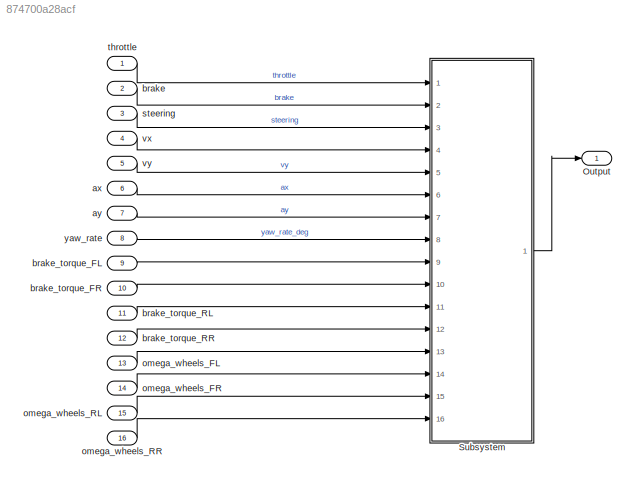
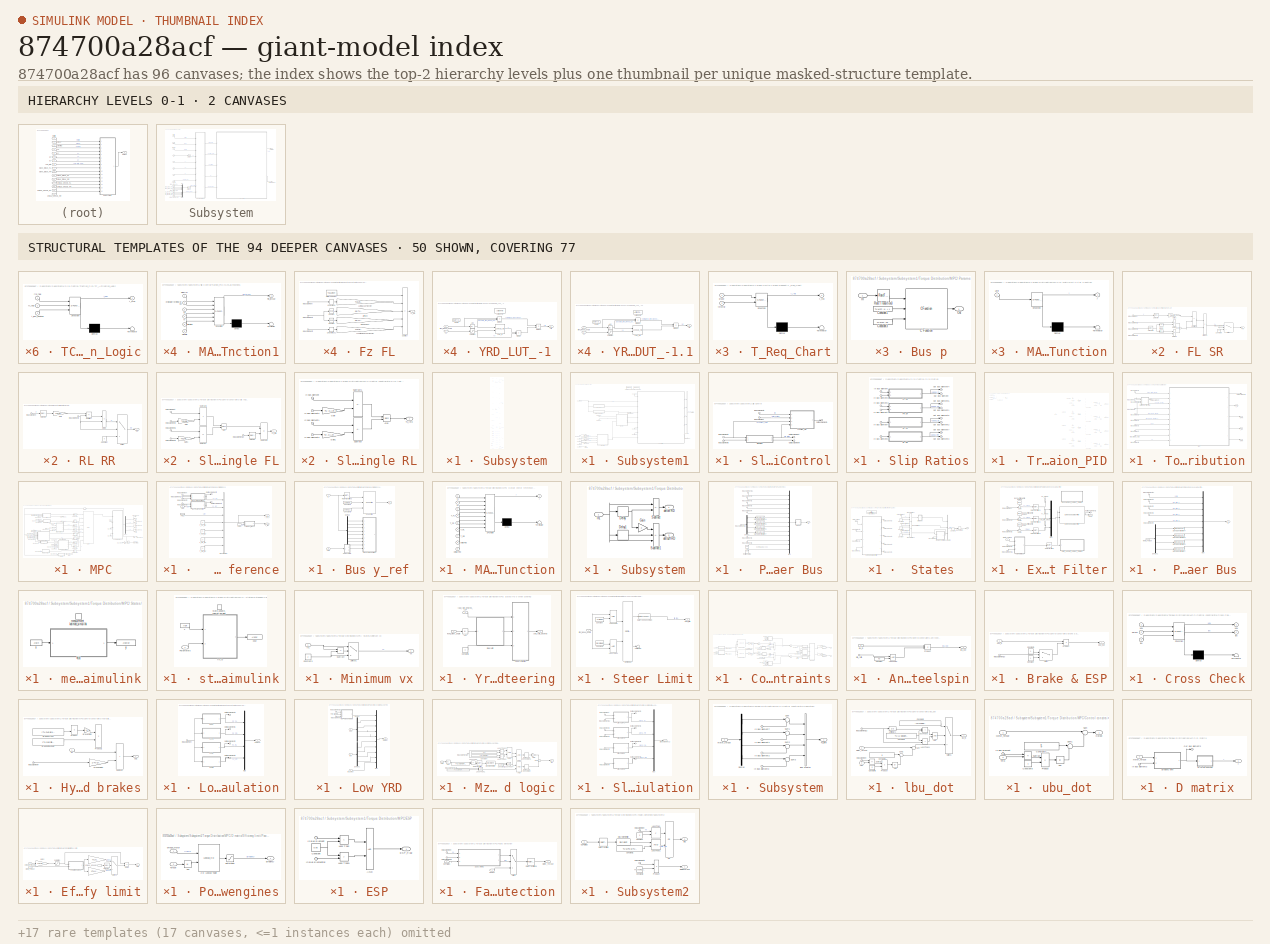
[diagram: thumbnail index - top-2 hierarchy levels (2 canvases) + 50 structural-template representatives of the remaining 94 canvases]
MODEL slx_874700a28acf
KIND model
CONFIG AbsTol = auto
CONFIG EnableMultiTasking = off
CONFIG FixedStep = auto
CONFIG MaxStep = 0.01
CONFIG MinStep = auto
CONFIG RelTol = 1e-3
CONFIG SampleTimeConstraint = Unconstrained
CONFIG SolverName = VariableStepDiscrete
CONFIG StartTime = 0.0
CONFIG StopTime = 10.0
BLOCK [Outport] Output
BLOCK [SubSystem] Subsystem
  PartitionName = Subsystem
  Ports = [16, 1]
  RequestExecContextInheritance = off
  ScheduleAs = Periodic partition
  SystemSampleTime = 0.02
  TreatAsAtomicUnit = on
BLOCK [Mux] Subsystem/Mux
  DisplayOption = bar
  Ports = [4, 1]
BLOCK [Mux] Subsystem/Mux1
  DisplayOption = bar
  Ports = [4, 1]
BLOCK [Outport] Subsystem/Out Bus Element
BLOCK [Saturate] Subsystem/Saturation
  LowerLimit = 0
  UpperLimit = inf
BLOCK [SubSystem] Subsystem/Subsystem
  Ports = [10, 5]
  RequestExecContextInheritance = off
BLOCK [BusCreator] Subsystem/Subsystem/Bus Creator
  DisplayOption = bar
  InheritFromInputs = on
  Inputs = 3
  Ports = [3, 1]
BLOCK [BusCreator] Subsystem/Subsystem/Bus Creator1
  DisplayOption = bar
  InheritFromInputs = on
  Inputs = 7
  Ports = [7, 1]
BLOCK [BusCreator] Subsystem/Subsystem/Car Messages Bus
  DisplayOption = bar
  InheritFromInputs = on
  Inputs = 1
  Ports = [1, 1]
BLOCK [Constant] Subsystem/Subsystem/Constant
  Value = zeros(4, 1)
BLOCK [Constant] Subsystem/Subsystem/Constant1
  OutDataTypeStr = uint8
BLOCK [Constant] Subsystem/Subsystem/Constant10
  Value = zeros(4, 1)
BLOCK [Constant] Subsystem/Subsystem/Constant11
  OutDataTypeStr = uint8
BLOCK [Constant] Subsystem/Subsystem/Constant2
  Value = 0
BLOCK [Constant] Subsystem/Subsystem/Constant3
  Value = 0
BLOCK [Constant] Subsystem/Subsystem/Constant4
  OutDataTypeStr = uint8
  Value = 2
BLOCK [Constant] Subsystem/Subsystem/Constant5
  Value = 540
BLOCK [Constant] Subsystem/Subsystem/Constant6
  Value = zeros(4, 1)
BLOCK [Constant] Subsystem/Subsystem/Constant7
  Value = 2
BLOCK [Constant] Subsystem/Subsystem/Constant8
  Value = -35000
BLOCK [Constant] Subsystem/Subsystem/Constant9
  Value = 80000
BLOCK [Reference] Subsystem/Subsystem/Degrees to Radians  REF=simulink_extras/Transformations/Degrees to
Radians
  Ports = [1, 1]
  SourceBlock = simulink_extras/Transformations/Degrees to\nRadians
  SourceProductBaseCode = SL
  SourceType = DegreesToRadians
BLOCK [Reference] Subsystem/Subsystem/Degrees to Radians1  REF=simulink_extras/Transformations/Degrees to
Radians
  Ports = [1, 1]
  SourceBlock = simulink_extras/Transformations/Degrees to\nRadians
  SourceProductBaseCode = SL
  SourceType = DegreesToRadians
BLOCK [BusCreator] Subsystem/Subsystem/HV Data Bus
  DisplayOption = bar
  InheritFromInputs = on
  Inputs = 8
  Ports = [8, 1]
BLOCK [BusCreator] Subsystem/Subsystem/Settings Bus
  DisplayOption = bar
  InheritFromInputs = on
  Inputs = 3
  Ports = [3, 1]
BLOCK [Inport] Subsystem/Subsystem/ax
  Port = 6
BLOCK [Inport] Subsystem/Subsystem/ay
  Port = 7
BLOCK [Inport] Subsystem/Subsystem/brake
  Port = 2
BLOCK [Inport] Subsystem/Subsystem/brake_torque
  Port = 9
BLOCK [Outport] Subsystem/Subsystem/car_messages
  Port = 5
BLOCK [Outport] Subsystem/Subsystem/car_settings
  Port = 3
BLOCK [Outport] Subsystem/Subsystem/driver_inputs
BLOCK [Outport] Subsystem/Subsystem/dynamics_data
  Port = 2
BLOCK [Outport] Subsystem/Subsystem/hv
  Port = 4
BLOCK [Inport] Subsystem/Subsystem/omega_wheels
  Port = 10
BLOCK [Inport] Subsystem/Subsystem/steering
  Port = 3
BLOCK [Inport] Subsystem/Subsystem/throttle
BLOCK [Inport] Subsystem/Subsystem/vx
  Port = 4
BLOCK [Inport] Subsystem/Subsystem/vy
  Port = 5
BLOCK [Inport] Subsystem/Subsystem/yaw_rate
  Port = 8
BLOCK [SubSystem] Subsystem/Subsystem1
  Ports = [5, 2]
  RequestExecContextInheritance = off
BLOCK [BusCreator] Subsystem/Subsystem1/Bus Creator
  Commented = on
  DisplayOption = bar
  InheritFromInputs = on
  Inputs = 4
  Ports = [4, 1]
BLOCK [DataStoreMemory] Subsystem/Subsystem1/Data Store_General_Params
  DataStoreName = General_Params
  InitialValue = TV.LV.GENERAL
  OutDataTypeStr = Bus: zGeneral_Params
  ShowAdditionalParam = off
  WriteAfterReadMsg = warning
  WriteAfterWriteMsg = warning
BLOCK [DataStoreMemory] Subsystem/Subsystem1/Data Store_Map_Params
  DataStoreName = Map_Params
  InitialValue = TV.LV.MAP
  OutDataTypeStr = Bus: zMap_Params
  ShowAdditionalParam = off
  WriteAfterReadMsg = warning
  WriteAfterWriteMsg = warning
BLOCK [Inport] Subsystem/Subsystem1/In Bus Element
  Port = 5
BLOCK [Inport] Subsystem/Subsystem1/In Bus Element1
  Port = 3
BLOCK [Inport] Subsystem/Subsystem1/In Bus Element10
  Port = 3
BLOCK [Inport] Subsystem/Subsystem1/In Bus Element11
  Port = 4
BLOCK [Inport] Subsystem/Subsystem1/In Bus Element2
BLOCK [Inport] Subsystem/Subsystem1/In Bus Element3
  Port = 2
BLOCK [Inport] Subsystem/Subsystem1/In Bus Element4
  Port = 2
BLOCK [Inport] Subsystem/Subsystem1/In Bus Element5
BLOCK [Inport] Subsystem/Subsystem1/In Bus Element6
  Port = 3
BLOCK [Inport] Subsystem/Subsystem1/In Bus Element7
  Port = 4
BLOCK [Inport] Subsystem/Subsystem1/In Bus Element8
  Port = 2
BLOCK [Outport] Subsystem/Subsystem1/Out Bus Element10
BLOCK [Outport] Subsystem/Subsystem1/Out Bus Element4
BLOCK [Outport] Subsystem/Subsystem1/Out Bus Element6
BLOCK [Outport] Subsystem/Subsystem1/Out Bus Element7
BLOCK [Outport] Subsystem/Subsystem1/Out Bus Element8
BLOCK [Outport] Subsystem/Subsystem1/Out Bus Element9
BLOCK [SubSystem] Subsystem/Subsystem1/Slip Control
  PortSchema = {"entries":[{"content":{"sides":[{"content":{"connectorIds":["In1","In2","In3"]},"type":"ConnectorPlacement.EquallySpacedRectSide","uuid":"8a9d1e07-b328-4196-9b4d-e7b80486ea0d"},{"content":{"connectorIds":["Out1","Out2"],"side":"RIGHT"},"type":"ConnectorPlacement.EquallySpacedRectSide","uuid":"54b02848-08e3-4b14-88b1-ac4e3b76af35"},{"content":{"connectorIds":["In4","Out3"],"side":"TOP"},"type":"Co...<+271ch>
  Ports = [4, 3]
  RequestExecContextInheritance = off
  ShowPortLabels = none
BLOCK [Inport] Subsystem/Subsystem1/Slip Control/In Bus Element
  Port = 3
BLOCK [Inport] Subsystem/Subsystem1/Slip Control/In Bus Element1
BLOCK [Inport] Subsystem/Subsystem1/Slip Control/In Bus Element2
  Port = 2
BLOCK [Inport] Subsystem/Subsystem1/Slip Control/In Bus Element6
  Port = 4
BLOCK [Outport] Subsystem/Subsystem1/Slip Control/Out Bus Element
  Port = 2
BLOCK [Outport] Subsystem/Subsystem1/Slip Control/Out Bus Element1
BLOCK [Outport] Subsystem/Subsystem1/Slip Control/Out Bus Element7
  Port = 3
BLOCK [SubSystem] Subsystem/Subsystem1/Slip Control/Slip Ratios
  Ports = [2, 2]
  RequestExecContextInheritance = off
BLOCK [SubSystem] Subsystem/Subsystem1/Slip Control/Slip Ratios/FL SR
  Ports = [2, 1]
  RequestExecContextInheritance = off
BLOCK [Constant] Subsystem/Subsystem1/Slip Control/Slip Ratios/FL SR/Constant
  Value = 0
BLOCK [Trigonometry] Subsystem/Subsystem1/Slip Control/Slip Ratios/FL SR/Cos1
  Operator = cos
  Ports = [1, 1]
BLOCK [Trigonometry] Subsystem/Subsystem1/Slip Control/Slip Ratios/FL SR/Cos2
  Ports = [1, 1]
BLOCK [Product] Subsystem/Subsystem1/Slip Control/Slip Ratios/FL SR/Divide4
  Inputs = */
  Ports = [2, 1]
BLOCK [Product] Subsystem/Subsystem1/Slip Control/Slip Ratios/FL SR/Divide5
  Inputs = **
  Ports = [2, 1]
BLOCK [Product] Subsystem/Subsystem1/Slip Control/Slip Ratios/FL SR/Divide6
  Inputs = **
  Ports = [2, 1]
BLOCK [Outport] Subsystem/Subsystem1/Slip Control/Slip Ratios/FL SR/FL
BLOCK [Gain] Subsystem/Subsystem1/Slip Control/Slip Ratios/FL SR/Gain3
  Gain = TV.CAR.rs
BLOCK [Inport] Subsystem/Subsystem1/Slip Control/Slip Ratios/FL SR/In Bus Element
BLOCK [Inport] Subsystem/Subsystem1/Slip Control/Slip Ratios/FL SR/In Bus Element1
BLOCK [Inport] Subsystem/Subsystem1/Slip Control/Slip Ratios/FL SR/In Bus Element2
BLOCK [Inport] Subsystem/Subsystem1/Slip Control/Slip Ratios/FL SR/In Bus Element4
BLOCK [Inport] Subsystem/Subsystem1/Slip Control/Slip Ratios/FL SR/In Bus Element6
  Port = 2
BLOCK [Selector] Subsystem/Subsystem1/Slip Control/Slip Ratios/FL SR/Selector
  IndexOptions = Index vector (dialog)
  Indices = [1]
  InputPortWidth = 4
  OutputSizes = 1
  Ports = [1, 1]
BLOCK [Selector] Subsystem/Subsystem1/Slip Control/Slip Ratios/FL SR/Selector1
  IndexOptions = Index vector (dialog)
  Indices = [1]
  InputPortWidth = 2
  OutputSizes = 1
  Ports = [1, 1]
BLOCK [Sum] Subsystem/Subsystem1/Slip Control/Slip Ratios/FL SR/Subtract3
  IconShape = rectangular
  Inputs = +-
  Ports = [2, 1]
BLOCK [Sum] Subsystem/Subsystem1/Slip Control/Slip Ratios/FL SR/Sum
  Ports = [2, 1]
BLOCK [Switch] Subsystem/Subsystem1/Slip Control/Slip Ratios/FL SR/Switch
  Criteria = u2 > Threshold
  InputSameDT = off
  SaturateOnIntegerOverflow = off
  Threshold = 0.5
BLOCK [SubSystem] Subsystem/Subsystem1/Slip Control/Slip Ratios/FR SR
  Ports = [2, 1]
  RequestExecContextInheritance = off
BLOCK [Constant] Subsystem/Subsystem1/Slip Control/Slip Ratios/FR SR/Constant
  Value = 0
BLOCK [Trigonometry] Subsystem/Subsystem1/Slip Control/Slip Ratios/FR SR/Cos1
  Operator = cos
  Ports = [1, 1]
BLOCK [Trigonometry] Subsystem/Subsystem1/Slip Control/Slip Ratios/FR SR/Cos2
  Ports = [1, 1]
BLOCK [Product] Subsystem/Subsystem1/Slip Control/Slip Ratios/FR SR/Divide4
  Inputs = */
  Ports = [2, 1]
BLOCK [Product] Subsystem/Subsystem1/Slip Control/Slip Ratios/FR SR/Divide5
  Inputs = **
  Ports = [2, 1]
BLOCK [Product] Subsystem/Subsystem1/Slip Control/Slip Ratios/FR SR/Divide6
  Inputs = **
  Ports = [2, 1]
BLOCK [Outport] Subsystem/Subsystem1/Slip Control/Slip Ratios/FR SR/FR
BLOCK [Gain] Subsystem/Subsystem1/Slip Control/Slip Ratios/FR SR/Gain3
  Gain = TV.CAR.rs
BLOCK [Inport] Subsystem/Subsystem1/Slip Control/Slip Ratios/FR SR/In Bus Element
BLOCK [Inport] Subsystem/Subsystem1/Slip Control/Slip Ratios/FR SR/In Bus Element1
BLOCK [Inport] Subsystem/Subsystem1/Slip Control/Slip Ratios/FR SR/In Bus Element2
BLOCK [Inport] Subsystem/Subsystem1/Slip Control/Slip Ratios/FR SR/In Bus Element4
BLOCK [Inport] Subsystem/Subsystem1/Slip Control/Slip Ratios/FR SR/In Bus Element6
  Port = 2
BLOCK [Selector] Subsystem/Subsystem1/Slip Control/Slip Ratios/FR SR/Selector
  IndexOptions = Index vector (dialog)
  Indices = [2]
  InputPortWidth = 4
  OutputSizes = 1
  Ports = [1, 1]
BLOCK [Selector] Subsystem/Subsystem1/Slip Control/Slip Ratios/FR SR/Selector1
  IndexOptions = Index vector (dialog)
  Indices = [2]
  InputPortWidth = 2
  OutputSizes = 1
  Ports = [1, 1]
BLOCK [Sum] Subsystem/Subsystem1/Slip Control/Slip Ratios/FR SR/Subtract3
  IconShape = rectangular
  Inputs = +-
  Ports = [2, 1]
BLOCK [Sum] Subsystem/Subsystem1/Slip Control/Slip Ratios/FR SR/Sum
  Ports = [2, 1]
BLOCK [Switch] Subsystem/Subsystem1/Slip Control/Slip Ratios/FR SR/Switch
  Criteria = u2 > Threshold
  InputSameDT = off
  SaturateOnIntegerOverflow = off
  Threshold = 0.5
BLOCK [Inport] Subsystem/Subsystem1/Slip Control/Slip Ratios/In Bus Element
BLOCK [Inport] Subsystem/Subsystem1/Slip Control/Slip Ratios/In Bus Element1
  Port = 2
BLOCK [Inport] Subsystem/Subsystem1/Slip Control/Slip Ratios/In Bus Element2
BLOCK [Inport] Subsystem/Subsystem1/Slip Control/Slip Ratios/In Bus Element4
BLOCK [Inport] Subsystem/Subsystem1/Slip Control/Slip Ratios/In Bus Element5
BLOCK [Inport] Subsystem/Subsystem1/Slip Control/Slip Ratios/In Bus Element6
  Port = 2
BLOCK [Outport] Subsystem/Subsystem1/Slip Control/Slip Ratios/Out Bus Element
BLOCK [Outport] Subsystem/Subsystem1/Slip Control/Slip Ratios/Out Bus Element1
BLOCK [Outport] Subsystem/Subsystem1/Slip Control/Slip Ratios/Out Bus Element2
BLOCK [Outport] Subsystem/Subsystem1/Slip Control/Slip Ratios/Out Bus Element3
BLOCK [Outport] Subsystem/Subsystem1/Slip Control/Slip Ratios/Out Bus Element4
  Port = 2
BLOCK [Outport] Subsystem/Subsystem1/Slip Control/Slip Ratios/Out Bus Element5
  Port = 2
BLOCK [Outport] Subsystem/Subsystem1/Slip Control/Slip Ratios/Out Bus Element6
  Port = 2
BLOCK [Outport] Subsystem/Subsystem1/Slip Control/Slip Ratios/Out Bus Element7
  Port = 2
BLOCK [SubSystem] Subsystem/Subsystem1/Slip Control/Slip Ratios/RL RR 
  Ports = [1, 1]
  RequestExecContextInheritance = off
BLOCK [Constant] Subsystem/Subsystem1/Slip Control/Slip Ratios/RL RR /Constant
  Value = 0
BLOCK [Product] Subsystem/Subsystem1/Slip Control/Slip Ratios/RL RR /Divide
  Inputs = */
  Ports = [2, 1]
BLOCK [Gain] Subsystem/Subsystem1/Slip Control/Slip Ratios/RL RR /Gain
  Gain = TV.CAR.rs
BLOCK [Inport] Subsystem/Subsystem1/Slip Control/Slip Ratios/RL RR /In Bus Element
BLOCK [Inport] Subsystem/Subsystem1/Slip Control/Slip Ratios/RL RR /In Bus Element1
BLOCK [Outport] Subsystem/Subsystem1/Slip Control/Slip Ratios/RL RR /RR
BLOCK [Selector] Subsystem/Subsystem1/Slip Control/Slip Ratios/RL RR /Selector
  IndexOptions = Index vector (dialog)
  Indices = [4]
  InputPortWidth = 4
  OutputSizes = 1
  Ports = [1, 1]
BLOCK [Sum] Subsystem/Subsystem1/Slip Control/Slip Ratios/RL RR /Subtract
  IconShape = rectangular
  Inputs = +-
  Ports = [2, 1]
BLOCK [Switch] Subsystem/Subsystem1/Slip Control/Slip Ratios/RL RR /Switch
  Criteria = u2 > Threshold
  InputSameDT = off
  SaturateOnIntegerOverflow = off
  Threshold = 0.5
BLOCK [SubSystem] Subsystem/Subsystem1/Slip Control/Slip Ratios/RL SR
  Ports = [1, 1]
  RequestExecContextInheritance = off
BLOCK [Constant] Subsystem/Subsystem1/Slip Control/Slip Ratios/RL SR/Constant
  Value = 0
BLOCK [Product] Subsystem/Subsystem1/Slip Control/Slip Ratios/RL SR/Divide
  Inputs = */
  Ports = [2, 1]
BLOCK [Gain] Subsystem/Subsystem1/Slip Control/Slip Ratios/RL SR/Gain
  Gain = TV.CAR.rs
BLOCK [Inport] Subsystem/Subsystem1/Slip Control/Slip Ratios/RL SR/In Bus Element
BLOCK [Inport] Subsystem/Subsystem1/Slip Control/Slip Ratios/RL SR/In Bus Element1
BLOCK [Outport] Subsystem/Subsystem1/Slip Control/Slip Ratios/RL SR/RL
BLOCK [Selector] Subsystem/Subsystem1/Slip Control/Slip Ratios/RL SR/Selector
  IndexOptions = Index vector (dialog)
  Indices = [3]
  InputPortWidth = 4
  OutputSizes = 1
  Ports = [1, 1]
BLOCK [Sum] Subsystem/Subsystem1/Slip Control/Slip Ratios/RL SR/Subtract
  IconShape = rectangular
  Inputs = +-
  Ports = [2, 1]
BLOCK [Switch] Subsystem/Subsystem1/Slip Control/Slip Ratios/RL SR/Switch
  Criteria = u2 > Threshold
  InputSameDT = off
  SaturateOnIntegerOverflow = off
  Threshold = 0.5
BLOCK [SubSystem] Subsystem/Subsystem1/Slip Control/Traction_PID
  Commented = on
  Ports = [4, 1]
  RequestExecContextInheritance = off
BLOCK [Inport] Subsystem/Subsystem1/Slip Control/Traction_PID/Bus Element In1
  Port = 4
BLOCK [Inport] Subsystem/Subsystem1/Slip Control/Traction_PID/Bus Element In2
  Port = 4
BLOCK [Inport] Subsystem/Subsystem1/Slip Control/Traction_PID/Bus Element In3
  Port = 4
BLOCK [Inport] Subsystem/Subsystem1/Slip Control/Traction_PID/Bus Element In4
  Port = 4
BLOCK [Constant] Subsystem/Subsystem1/Slip Control/Traction_PID/Constant
  Value = 0.1
BLOCK [Constant] Subsystem/Subsystem1/Slip Control/Traction_PID/Constant1
  Value = 10
BLOCK [Constant] Subsystem/Subsystem1/Slip Control/Traction_PID/Constant10
  Value = 20
BLOCK [Constant] Subsystem/Subsystem1/Slip Control/Traction_PID/Constant11
  Value = 10e-3
BLOCK [Constant] Subsystem/Subsystem1/Slip Control/Traction_PID/Constant12
  Value = 20
BLOCK [Constant] Subsystem/Subsystem1/Slip Control/Traction_PID/Constant13
  Value = 0
BLOCK [Constant] Subsystem/Subsystem1/Slip Control/Traction_PID/Constant14
  Value = 10e-3
BLOCK [Constant] Subsystem/Subsystem1/Slip Control/Traction_PID/Constant15
  Value = 10
BLOCK [Constant] Subsystem/Subsystem1/Slip Control/Traction_PID/Constant16
  Value = 0
BLOCK [Constant] Subsystem/Subsystem1/Slip Control/Traction_PID/Constant2
  Value = 20
BLOCK [Constant] Subsystem/Subsystem1/Slip Control/Traction_PID/Constant3
  Value = 10e-3
BLOCK [Constant] Subsystem/Subsystem1/Slip Control/Traction_PID/Constant4
  Value = 10
BLOCK [Constant] Subsystem/Subsystem1/Slip Control/Traction_PID/Constant5
  Value = 0
BLOCK [Constant] Subsystem/Subsystem1/Slip Control/Traction_PID/Constant6
  Value = 20
BLOCK [Constant] Subsystem/Subsystem1/Slip Control/Traction_PID/Constant7
  Value = 10e-3
BLOCK [Constant] Subsystem/Subsystem1/Slip Control/Traction_PID/Constant8
  Value = 10
BLOCK [Constant] Subsystem/Subsystem1/Slip Control/Traction_PID/Constant9
  Value = 0
BLOCK [DiscreteIntegrator] Subsystem/Subsystem1/Slip Control/Traction_PID/Discrete-Time Integrator
  ICPrevOutput = DiscIntNeverNeededParam
  ICPrevScaledInput = DiscIntNeverNeededParam
  InitialConditionSetting = Auto
  Ports = [1, 1]
  SampleTime = -1
BLOCK [DiscreteIntegrator] Subsystem/Subsystem1/Slip Control/Traction_PID/Discrete-Time Integrator1
  ICPrevOutput = DiscIntNeverNeededParam
  ICPrevScaledInput = DiscIntNeverNeededParam
  InitialConditionSetting = Auto
  Ports = [1, 1]
  SampleTime = -1
BLOCK [DiscreteIntegrator] Subsystem/Subsystem1/Slip Control/Traction_PID/Discrete-Time Integrator2
  ICPrevOutput = DiscIntNeverNeededParam
  ICPrevScaledInput = DiscIntNeverNeededParam
  InitialConditionSetting = Auto
  Ports = [1, 1]
  SampleTime = -1
BLOCK [DiscreteIntegrator] Subsystem/Subsystem1/Slip Control/Traction_PID/Discrete-Time Integrator3
  ICPrevOutput = DiscIntNeverNeededParam
  ICPrevScaledInput = DiscIntNeverNeededParam
  InitialConditionSetting = Auto
  Ports = [1, 1]
  SampleTime = -1
BLOCK [Inport] Subsystem/Subsystem1/Slip Control/Traction_PID/In Bus Element
  Port = 2
BLOCK [Inport] Subsystem/Subsystem1/Slip Control/Traction_PID/In Bus Element1
  Port = 3
BLOCK [Inport] Subsystem/Subsystem1/Slip Control/Traction_PID/In Bus Element2
  Port = 3
BLOCK [Inport] Subsystem/Subsystem1/Slip Control/Traction_PID/In Bus Element3
  Port = 3
BLOCK [Inport] Subsystem/Subsystem1/Slip Control/Traction_PID/In Bus Element4
  Port = 3
BLOCK [Inport] Subsystem/Subsystem1/Slip Control/Traction_PID/In Bus Element5
BLOCK [Inport] Subsystem/Subsystem1/Slip Control/Traction_PID/In Bus Element6
BLOCK [SubSystem] Subsystem/Subsystem1/Slip Control/Traction_PID/MATLAB Function1
  ErrorFcn = Stateflow.Translate.translate
  PermitHierarchicalResolution = ExplicitOnly
  Ports = [6, 1]
  RequestExecContextInheritance = off
  SFBlockType = MATLAB Function
  TreatAsAtomicUnit = on
BLOCK [Demux] Subsystem/Subsystem1/Slip Control/Traction_PID/MATLAB Function1/ Demux 
  Outputs = 1
  Ports = [1, 1]
BLOCK [S-Function] Subsystem/Subsystem1/Slip Control/Traction_PID/MATLAB Function1/ SFunction 
  EnableBusSupport = on
  FunctionName = sf_sfun
  PortCounts = [6 2]
  Ports = [6, 2]
  SFcnIsStateOwnerBlock = off
  SFunctionDeploymentMode = off
  Tag = Stateflow S-Function 1
BLOCK [Terminator] Subsystem/Subsystem1/Slip Control/Traction_PID/MATLAB Function1/ Terminator 
BLOCK [Outport] Subsystem/Subsystem1/Slip Control/Traction_PID/MATLAB Function1/PID_torque
BLOCK [Inport] Subsystem/Subsystem1/Slip Control/Traction_PID/MATLAB Function1/ki
  Port = 4
BLOCK [Inport] Subsystem/Subsystem1/Slip Control/Traction_PID/MATLAB Function1/kp
  Port = 3
BLOCK [Inport] Subsystem/Subsystem1/Slip Control/Traction_PID/MATLAB Function1/originalErrorIntegration
  Port = 2
BLOCK [Inport] Subsystem/Subsystem1/Slip Control/Traction_PID/MATLAB Function1/slipError
BLOCK [Inport] Subsystem/Subsystem1/Slip Control/Traction_PID/MATLAB Function1/slipRatio
  Port = 6
BLOCK [Inport] Subsystem/Subsystem1/Slip Control/Traction_PID/MATLAB Function1/timeStep
  Port = 5
BLOCK [SubSystem] Subsystem/Subsystem1/Slip Control/Traction_PID/MATLAB Function2
  ErrorFcn = Stateflow.Translate.translate
  PermitHierarchicalResolution = ExplicitOnly
  Ports = [6, 1]
  RequestExecContextInheritance = off
  SFBlockType = MATLAB Function
  TreatAsAtomicUnit = on
BLOCK [Demux] Subsystem/Subsystem1/Slip Control/Traction_PID/MATLAB Function2/ Demux 
  Outputs = 1
  Ports = [1, 1]
BLOCK [S-Function] Subsystem/Subsystem1/Slip Control/Traction_PID/MATLAB Function2/ SFunction 
  EnableBusSupport = on
  FunctionName = sf_sfun
  PortCounts = [6 2]
  Ports = [6, 2]
  SFcnIsStateOwnerBlock = off
  SFunctionDeploymentMode = off
  Tag = Stateflow S-Function 9
BLOCK [Terminator] Subsystem/Subsystem1/Slip Control/Traction_PID/MATLAB Function2/ Terminator 
BLOCK [Outport] Subsystem/Subsystem1/Slip Control/Traction_PID/MATLAB Function2/PID_torque
BLOCK [Inport] Subsystem/Subsystem1/Slip Control/Traction_PID/MATLAB Function2/ki
  Port = 4
BLOCK [Inport] Subsystem/Subsystem1/Slip Control/Traction_PID/MATLAB Function2/kp
  Port = 3
BLOCK [Inport] Subsystem/Subsystem1/Slip Control/Traction_PID/MATLAB Function2/originalErrorIntegration
  Port = 2
BLOCK [Inport] Subsystem/Subsystem1/Slip Control/Traction_PID/MATLAB Function2/slipError
BLOCK [Inport] Subsystem/Subsystem1/Slip Control/Traction_PID/MATLAB Function2/slipRatio
  Port = 6
BLOCK [Inport] Subsystem/Subsystem1/Slip Control/Traction_PID/MATLAB Function2/timeStep
  Port = 5
BLOCK [SubSystem] Subsystem/Subsystem1/Slip Control/Traction_PID/MATLAB Function3
  ErrorFcn = Stateflow.Translate.translate
  PermitHierarchicalResolution = ExplicitOnly
  Ports = [6, 1]
  RequestExecContextInheritance = off
  SFBlockType = MATLAB Function
  TreatAsAtomicUnit = on
BLOCK [Demux] Subsystem/Subsystem1/Slip Control/Traction_PID/MATLAB Function3/ Demux 
  Outputs = 1
  Ports = [1, 1]
BLOCK [S-Function] Subsystem/Subsystem1/Slip Control/Traction_PID/MATLAB Function3/ SFunction 
  EnableBusSupport = on
  FunctionName = sf_sfun
  PortCounts = [6 2]
  Ports = [6, 2]
  SFcnIsStateOwnerBlock = off
  SFunctionDeploymentMode = off
  Tag = Stateflow S-Function 10
BLOCK [Terminator] Subsystem/Subsystem1/Slip Control/Traction_PID/MATLAB Function3/ Terminator 
BLOCK [Outport] Subsystem/Subsystem1/Slip Control/Traction_PID/MATLAB Function3/PID_torque
BLOCK [Inport] Subsystem/Subsystem1/Slip Control/Traction_PID/MATLAB Function3/ki
  Port = 4
BLOCK [Inport] Subsystem/Subsystem1/Slip Control/Traction_PID/MATLAB Function3/kp
  Port = 3
BLOCK [Inport] Subsystem/Subsystem1/Slip Control/Traction_PID/MATLAB Function3/originalErrorIntegration
  Port = 2
BLOCK [Inport] Subsystem/Subsystem1/Slip Control/Traction_PID/MATLAB Function3/slipError
BLOCK [Inport] Subsystem/Subsystem1/Slip Control/Traction_PID/MATLAB Function3/slipRatio
  Port = 6
BLOCK [Inport] Subsystem/Subsystem1/Slip Control/Traction_PID/MATLAB Function3/timeStep
  Port = 5
BLOCK [SubSystem] Subsystem/Subsystem1/Slip Control/Traction_PID/MATLAB Function4
  ErrorFcn = Stateflow.Translate.translate
  PermitHierarchicalResolution = ExplicitOnly
  Ports = [6, 1]
  RequestExecContextInheritance = off
  SFBlockType = MATLAB Function
  TreatAsAtomicUnit = on
BLOCK [Demux] Subsystem/Subsystem1/Slip Control/Traction_PID/MATLAB Function4/ Demux 
  Outputs = 1
  Ports = [1, 1]
BLOCK [S-Function] Subsystem/Subsystem1/Slip Control/Traction_PID/MATLAB Function4/ SFunction 
  EnableBusSupport = on
  FunctionName = sf_sfun
  PortCounts = [6 2]
  Ports = [6, 2]
  SFcnIsStateOwnerBlock = off
  SFunctionDeploymentMode = off
  Tag = Stateflow S-Function 11
BLOCK [Terminator] Subsystem/Subsystem1/Slip Control/Traction_PID/MATLAB Function4/ Terminator 
BLOCK [Outport] Subsystem/Subsystem1/Slip Control/Traction_PID/MATLAB Function4/PID_torque
BLOCK [Inport] Subsystem/Subsystem1/Slip Control/Traction_PID/MATLAB Function4/ki
  Port = 4
BLOCK [Inport] Subsystem/Subsystem1/Slip Control/Traction_PID/MATLAB Function4/kp
  Port = 3
BLOCK [Inport] Subsystem/Subsystem1/Slip Control/Traction_PID/MATLAB Function4/originalErrorIntegration
  Port = 2
BLOCK [Inport] Subsystem/Subsystem1/Slip Control/Traction_PID/MATLAB Function4/slipError
BLOCK [Inport] Subsystem/Subsystem1/Slip Control/Traction_PID/MATLAB Function4/slipRatio
  Port = 6
BLOCK [Inport] Subsystem/Subsystem1/Slip Control/Traction_PID/MATLAB Function4/timeStep
  Port = 5
BLOCK [Sum] Subsystem/Subsystem1/Slip Control/Traction_PID/Minus
  IconShape = rectangular
  Inputs = +-
  Ports = [2, 1]
BLOCK [Sum] Subsystem/Subsystem1/Slip Control/Traction_PID/Minus1
  IconShape = rectangular
  Inputs = +-
  Ports = [2, 1]
BLOCK [Sum] Subsystem/Subsystem1/Slip Control/Traction_PID/Minus2
  IconShape = rectangular
  Inputs = +-
  Ports = [2, 1]
BLOCK [Sum] Subsystem/Subsystem1/Slip Control/Traction_PID/Minus3
  IconShape = rectangular
  Inputs = +-
  Ports = [2, 1]
BLOCK [Outport] Subsystem/Subsystem1/Slip Control/Traction_PID/Out Bus Element1
BLOCK [Outport] Subsystem/Subsystem1/Slip Control/Traction_PID/Out Bus Element2
BLOCK [Outport] Subsystem/Subsystem1/Slip Control/Traction_PID/Out Bus Element3
BLOCK [Outport] Subsystem/Subsystem1/Slip Control/Traction_PID/Out Bus Element4
BLOCK [Switch] Subsystem/Subsystem1/Slip Control/Traction_PID/Switch
  Criteria = u2 > Threshold
  InputSameDT = off
  SaturateOnIntegerOverflow = off
  Threshold = 3
BLOCK [Switch] Subsystem/Subsystem1/Slip Control/Traction_PID/Switch1
  Criteria = u2 > Threshold
  InputSameDT = off
  SaturateOnIntegerOverflow = off
  Threshold = 3
BLOCK [Switch] Subsystem/Subsystem1/Slip Control/Traction_PID/Switch2
  Criteria = u2 > Threshold
  InputSameDT = off
  SaturateOnIntegerOverflow = off
  Threshold = 3
BLOCK [Switch] Subsystem/Subsystem1/Slip Control/Traction_PID/Switch3
  Criteria = u2 > Threshold
  InputSameDT = off
  SaturateOnIntegerOverflow = off
  Threshold = 3
BLOCK [SubSystem] Subsystem/Subsystem1/Slip Control/Traction_PID/TC_Activation_Logic
  ErrorFcn = Stateflow.Translate.translate
  PermitHierarchicalResolution = ExplicitOnly
  Ports = [3, 1]
  RequestExecContextInheritance = off
  SFBlockType = Chart
  TreatAsAtomicUnit = on
BLOCK [Demux] Subsystem/Subsystem1/Slip Control/Traction_PID/TC_Activation_Logic/ Demux 
  Outputs = 1
  Ports = [1, 1]
BLOCK [S-Function] Subsystem/Subsystem1/Slip Control/Traction_PID/TC_Activation_Logic/ SFunction 
  EnableBusSupport = on
  FunctionName = sf_sfun
  PortCounts = [3 2]
  Ports = [3, 2]
  SFcnIsStateOwnerBlock = off
  SFunctionDeploymentMode = off
  Tag = Stateflow S-Function 6
BLOCK [Terminator] Subsystem/Subsystem1/Slip Control/Traction_PID/TC_Activation_Logic/ Terminator 
BLOCK [Inport] Subsystem/Subsystem1/Slip Control/Traction_PID/TC_Activation_Logic/rtd_flag
BLOCK [Inport] Subsystem/Subsystem1/Slip Control/Traction_PID/TC_Activation_Logic/t_limit_positive
  Port = 3
BLOCK [Outport] Subsystem/Subsystem1/Slip Control/Traction_PID/TC_Activation_Logic/t_max
BLOCK [Inport] Subsystem/Subsystem1/Slip Control/Traction_PID/TC_Activation_Logic/tc_flag
  Port = 2
BLOCK [Terminator] Subsystem/Subsystem1/Slip Control/Traction_PID/Terminator
BLOCK [Terminator] Subsystem/Subsystem1/Terminator
  Commented = on
BLOCK [Outport] Subsystem/Subsystem1/Torque
  Port = 2
BLOCK [SubSystem] Subsystem/Subsystem1/Torque Distribution
  Ports = [9, 5]
  RequestExecContextInheritance = off
  ShowPortLabels = FromPortBlockName
BLOCK [Inport] Subsystem/Subsystem1/Torque Distribution/In Bus Element
BLOCK [Inport] Subsystem/Subsystem1/Torque Distribution/In Bus Element1
  Port = 2
BLOCK [Inport] Subsystem/Subsystem1/Torque Distribution/In Bus Element2
  Port = 4
BLOCK [Inport] Subsystem/Subsystem1/Torque Distribution/In Bus Element3
  Port = 3
BLOCK [Inport] Subsystem/Subsystem1/Torque Distribution/In Bus Element4
  Port = 9
BLOCK [Inport] Subsystem/Subsystem1/Torque Distribution/In Bus Element5
  Port = 6
BLOCK [Inport] Subsystem/Subsystem1/Torque Distribution/In Bus Element6
  Port = 4
BLOCK [Inport] Subsystem/Subsystem1/Torque Distribution/In Bus Element7
  Port = 5
BLOCK [Inport] Subsystem/Subsystem1/Torque Distribution/In Bus Element8
  Port = 8
BLOCK [Inport] Subsystem/Subsystem1/Torque Distribution/In Bus torque_map
  Port = 7
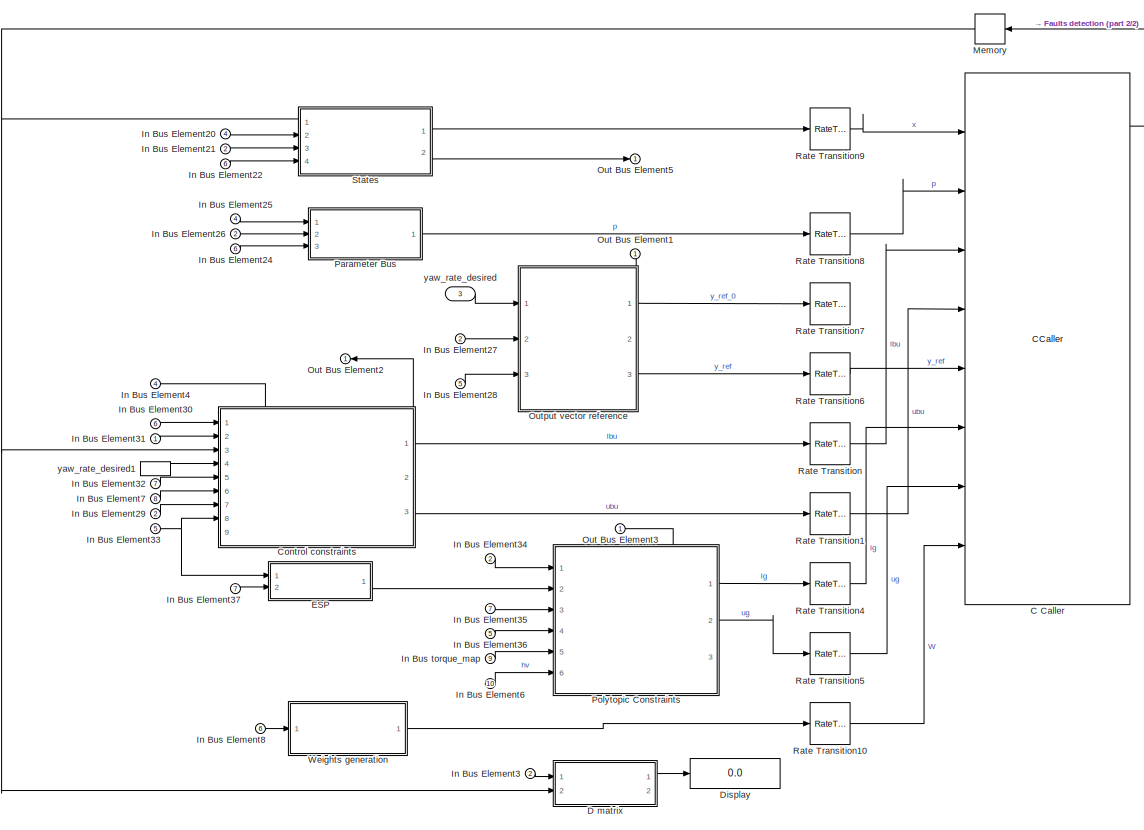
[diagram: Subsystem/Subsystem1/Torque Distribution/MPC - part 1/2, left side, full height]
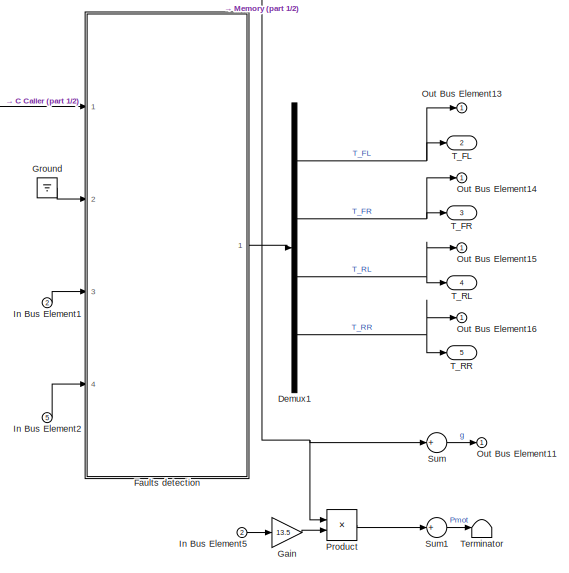
[diagram: Subsystem/Subsystem1/Torque Distribution/MPC - part 2/2, middle right region]
BLOCK [SubSystem] Subsystem/Subsystem1/Torque Distribution/MPC
  Ports = [10, 5]
  RequestExecContextInheritance = off
BLOCK [SubSystem] Subsystem/Subsystem1/Torque Distribution/MPC/     Output vector reference
  PortSchema = {"entries":[{"content":{"sides":[{"content":{"connectorIds":["In1","In2","In3"]},"type":"ConnectorPlacement.EquallySpacedRectSide","uuid":"818c90b4-a927-40a5-b4e4-e64469099490"},{"content":{"connectorIds":["Out1","Out2"],"side":"RIGHT"},"type":"ConnectorPlacement.EquallySpacedRectSide","uuid":"17c30fe6-e2a1-4832-99f1-cdba49b58b0d"},{"content":{"connectorIds":["Out3"],"side":"TOP"},"type":"Connecto...<+265ch>
  Ports = [3, 3]
  RequestExecContextInheritance = off
BLOCK [BusCreator] Subsystem/Subsystem1/Torque Distribution/MPC/     Output vector reference/Bus Creator
  DisplayOption = bar
  InheritFromInputs = on
  Inputs = 7
  Ports = [7, 1]
BLOCK [SubSystem] Subsystem/Subsystem1/Torque Distribution/MPC/     Output vector reference/Bus y_ref
  Ports = [2, 1]
  RequestExecContextInheritance = off
BLOCK [CFunction] Subsystem/Subsystem1/Torque Distribution/MPC/     Output vector reference/Bus y_ref/C Function
  OutputCode = int i,j;\nfor (i = 0; i < N; i++) {\n for (j = 0; j < ny; j++) {\n  out_x[i*ny+j] = in_x[j];\n }\n}
  Ports = [3, 1]
BLOCK [Constant] Subsystem/Subsystem1/Torque Distribution/MPC/     Output vector reference/Bus y_ref/Constant1
  OutDataTypeStr = uint8
  SampleTime = TV.MPC.T/TV.MPC.N
  Value = TV.MPC.N
BLOCK [Constant] Subsystem/Subsystem1/Torque Distribution/MPC/     Output vector reference/Bus y_ref/Constant3
  OutDataTypeStr = uint8
  SampleTime = TV.MPC.T/TV.MPC.N
  Value = TV.MPC.ny
BLOCK [Demux] Subsystem/Subsystem1/Torque Distribution/MPC/     Output vector reference/Bus y_ref/Demux
  Commented = on
  Outputs = 7
  Ports = [1, 7]
BLOCK [SubSystem] Subsystem/Subsystem1/Torque Distribution/MPC/     Output vector reference/Bus y_ref/MATLAB Function
  Commented = on
  ErrorFcn = Stateflow.Translate.translate
  PermitHierarchicalResolution = ExplicitOnly
  Ports = [9, 1]
  RequestExecContextInheritance = off
  SFBlockType = MATLAB Function
  TreatAsAtomicUnit = on
BLOCK [Demux] Subsystem/Subsystem1/Torque Distribution/MPC/     Output vector reference/Bus y_ref/MATLAB Function/ Demux 
  Outputs = 1
  Ports = [1, 1]
BLOCK [S-Function] Subsystem/Subsystem1/Torque Distribution/MPC/     Output vector reference/Bus y_ref/MATLAB Function/ SFunction 
  EnableBusSupport = on
  FunctionName = sf_sfun
  PortCounts = [9 2]
  Ports = [9, 2]
  SFcnIsStateOwnerBlock = off
  SFunctionDeploymentMode = off
  Tag = Stateflow S-Function 12
BLOCK [Terminator] Subsystem/Subsystem1/Torque Distribution/MPC/     Output vector reference/Bus y_ref/MATLAB Function/ Terminator 
BLOCK [Inport] Subsystem/Subsystem1/Torque Distribution/MPC/     Output vector reference/Bus y_ref/MATLAB Function/T_FL
  Port = 4
BLOCK [Inport] Subsystem/Subsystem1/Torque Distribution/MPC/     Output vector reference/Bus y_ref/MATLAB Function/T_FR
  Port = 5
BLOCK [Inport] Subsystem/Subsystem1/Torque Distribution/MPC/     Output vector reference/Bus y_ref/MATLAB Function/T_RL
  Port = 6
BLOCK [Inport] Subsystem/Subsystem1/Torque Distribution/MPC/     Output vector reference/Bus y_ref/MATLAB Function/T_RR
  Port = 7
BLOCK [Inport] Subsystem/Subsystem1/Torque Distribution/MPC/     Output vector reference/Bus y_ref/MATLAB Function/delta2YRD
  Port = 9
BLOCK [Inport] Subsystem/Subsystem1/Torque Distribution/MPC/     Output vector reference/Bus y_ref/MATLAB Function/deltaYRD
  Port = 8
BLOCK [Inport] Subsystem/Subsystem1/Torque Distribution/MPC/     Output vector reference/Bus y_ref/MATLAB Function/r
  Port = 3
BLOCK [Inport] Subsystem/Subsystem1/Torque Distribution/MPC/     Output vector reference/Bus y_ref/MATLAB Function/vx
BLOCK [Inport] Subsystem/Subsystem1/Torque Distribution/MPC/     Output vector reference/Bus y_ref/MATLAB Function/vy
  Port = 2
BLOCK [Outport] Subsystem/Subsystem1/Torque Distribution/MPC/     Output vector reference/Bus y_ref/MATLAB Function/y
BLOCK [RateTransition] Subsystem/Subsystem1/Torque Distribution/MPC/     Output vector reference/Bus y_ref/Rate Transition3
  OutPortSampleTime = TV.MPC.T/TV.MPC.N
BLOCK [SubSystem] Subsystem/Subsystem1/Torque Distribution/MPC/     Output vector reference/Bus y_ref/Subsystem
  Commented = on
  Ports = [1, 2]
  RequestExecContextInheritance = off
BLOCK [Delay] Subsystem/Subsystem1/Torque Distribution/MPC/     Output vector reference/Bus y_ref/Subsystem/Delay
  DelayLength = 1
  InputPortMap = u0
  Ports = [1, 1]
BLOCK [Delay] Subsystem/Subsystem1/Torque Distribution/MPC/     Output vector reference/Bus y_ref/Subsystem/Delay1
  InputPortMap = u0
  Ports = [1, 1]
BLOCK [Gain] Subsystem/Subsystem1/Torque Distribution/MPC/     Output vector reference/Bus y_ref/Subsystem/Gain
  Gain = 2
BLOCK [Inport] Subsystem/Subsystem1/Torque Distribution/MPC/     Output vector reference/Bus y_ref/Subsystem/In1
BLOCK [Sum] Subsystem/Subsystem1/Torque Distribution/MPC/     Output vector reference/Bus y_ref/Subsystem/Subtract
  IconShape = rectangular
  Inputs = +-
  Ports = [2, 1]
BLOCK [Sum] Subsystem/Subsystem1/Torque Distribution/MPC/     Output vector reference/Bus y_ref/Subsystem/Subtract1
  IconShape = rectangular
  Inputs = -++
  Ports = [3, 1]
BLOCK [Outport] Subsystem/Subsystem1/Torque Distribution/MPC/     Output vector reference/Bus y_ref/Subsystem/delta2YRD
  Port = 2
BLOCK [Outport] Subsystem/Subsystem1/Torque Distribution/MPC/     Output vector reference/Bus y_ref/Subsystem/deltaYRD
BLOCK [Inport] Subsystem/Subsystem1/Torque Distribution/MPC/     Output vector reference/Bus y_ref/YRD
  Port = 2
BLOCK [Inport] Subsystem/Subsystem1/Torque Distribution/MPC/     Output vector reference/Bus y_ref/u
BLOCK [Outport] Subsystem/Subsystem1/Torque Distribution/MPC/     Output vector reference/Bus y_ref/y
BLOCK [Inport] Subsystem/Subsystem1/Torque Distribution/MPC/     Output vector reference/In Bus Element
  Port = 2
BLOCK [Inport] Subsystem/Subsystem1/Torque Distribution/MPC/     Output vector reference/In Bus Element1
  Port = 2
BLOCK [Inport] Subsystem/Subsystem1/Torque Distribution/MPC/     Output vector reference/In Bus Element2
  Port = 3
BLOCK [Inport] Subsystem/Subsystem1/Torque Distribution/MPC/     Output vector reference/In Bus Element3
  Port = 2
BLOCK [SubSystem] Subsystem/Subsystem1/Torque Distribution/MPC/     Output vector reference/MATLAB Function
  ErrorFcn = Stateflow.Translate.translate
  PermitHierarchicalResolution = ExplicitOnly
  Ports = [2, 1]
  RequestExecContextInheritance = off
  SFBlockType = MATLAB Function
  TreatAsAtomicUnit = on
BLOCK [Demux] Subsystem/Subsystem1/Torque Distribution/MPC/     Output vector reference/MATLAB Function/ Demux 
  Outputs = 1
  Ports = [1, 1]
BLOCK [S-Function] Subsystem/Subsystem1/Torque Distribution/MPC/     Output vector reference/MATLAB Function/ SFunction 
  EnableBusSupport = on
  FunctionName = sf_sfun
  PortCounts = [2 2]
  Ports = [2, 2]
  SFcnIsStateOwnerBlock = off
  SFunctionDeploymentMode = off
  Tag = Stateflow S-Function 13
BLOCK [Terminator] Subsystem/Subsystem1/Torque Distribution/MPC/     Output vector reference/MATLAB Function/ Terminator 
BLOCK [Inport] Subsystem/Subsystem1/Torque Distribution/MPC/     Output vector reference/MATLAB Function/YRD
  Port = 2
BLOCK [Inport] Subsystem/Subsystem1/Torque Distribution/MPC/     Output vector reference/MATLAB Function/vx
BLOCK [Outport] Subsystem/Subsystem1/Torque Distribution/MPC/     Output vector reference/MATLAB Function/vy_ref
BLOCK [SubSystem] Subsystem/Subsystem1/Torque Distribution/MPC/     Output vector reference/MATLAB Function1
  ErrorFcn = Stateflow.Translate.translate
  PermitHierarchicalResolution = ExplicitOnly
  Ports = [3, 1]
  RequestExecContextInheritance = off
  SFBlockType = MATLAB Function
  TreatAsAtomicUnit = on
BLOCK [Demux] Subsystem/Subsystem1/Torque Distribution/MPC/     Output vector reference/MATLAB Function1/ Demux 
  Outputs = 1
  Ports = [1, 1]
BLOCK [S-Function] Subsystem/Subsystem1/Torque Distribution/MPC/     Output vector reference/MATLAB Function1/ SFunction 
  EnableBusSupport = on
  FunctionName = sf_sfun
  PortCounts = [3 2]
  Ports = [3, 2]
  SFcnIsStateOwnerBlock = off
  SFunctionDeploymentMode = off
  Tag = Stateflow S-Function 14
BLOCK [Terminator] Subsystem/Subsystem1/Torque Distribution/MPC/     Output vector reference/MATLAB Function1/ Terminator 
BLOCK [Inport] Subsystem/Subsystem1/Torque Distribution/MPC/     Output vector reference/MATLAB Function1/acc
  Port = 3
BLOCK [Inport] Subsystem/Subsystem1/Torque Distribution/MPC/     Output vector reference/MATLAB Function1/vx
BLOCK [Outport] Subsystem/Subsystem1/Torque Distribution/MPC/     Output vector reference/MATLAB Function1/vx_ref
BLOCK [Inport] Subsystem/Subsystem1/Torque Distribution/MPC/     Output vector reference/MATLAB Function1/vy
  Port = 2
BLOCK [Outport] Subsystem/Subsystem1/Torque Distribution/MPC/     Output vector reference/Out Bus Element1
  Port = 3
BLOCK [Outport] Subsystem/Subsystem1/Torque Distribution/MPC/     Output vector reference/Out Bus Element5
  Port = 3
BLOCK [Constant] Subsystem/Subsystem1/Torque Distribution/MPC/     Output vector reference/T_FL_ref
  Value = 0
BLOCK [Constant] Subsystem/Subsystem1/Torque Distribution/MPC/     Output vector reference/T_FR_ref
  Value = 0
BLOCK [Constant] Subsystem/Subsystem1/Torque Distribution/MPC/     Output vector reference/T_RL_ref
  Value = 0
BLOCK [Constant] Subsystem/Subsystem1/Torque Distribution/MPC/     Output vector reference/T_RR_ref
  Value = 0
BLOCK [Inport] Subsystem/Subsystem1/Torque Distribution/MPC/     Output vector reference/YRD
  NameLocation = left
BLOCK [InportShadow] Subsystem/Subsystem1/Torque Distribution/MPC/     Output vector reference/YRD1
  NameLocation = left
BLOCK [InportShadow] Subsystem/Subsystem1/Torque Distribution/MPC/     Output vector reference/YRD2
  NameLocation = left
BLOCK [Outport] Subsystem/Subsystem1/Torque Distribution/MPC/     Output vector reference/y_ref
  Port = 2
BLOCK [Outport] Subsystem/Subsystem1/Torque Distribution/MPC/     Output vector reference/y_ref_0
BLOCK [SubSystem] Subsystem/Subsystem1/Torque Distribution/MPC/ Parameter Bus 
  Ports = [3, 1]
  RequestExecContextInheritance = off
BLOCK [SubSystem] Subsystem/Subsystem1/Torque Distribution/MPC/ Parameter Bus /Bus p
  Ports = [1, 1]
  RequestExecContextInheritance = off
BLOCK [CFunction] Subsystem/Subsystem1/Torque Distribution/MPC/ Parameter Bus /Bus p/C Function
  OutputCode = int i,j;\nfor (i = 0; i < N; i++) {\n for (j = 0; j < np; j++) {\n  out_x[i*np+j] = in_x[j];\n }\n}
  Ports = [3, 1]
BLOCK [Constant] Subsystem/Subsystem1/Torque Distribution/MPC/ Parameter Bus /Bus p/Constant1
  OutDataTypeStr = uint8
  SampleTime = TV.MPC.T/TV.MPC.N
  Value = TV.MPC.N + 1
BLOCK [Constant] Subsystem/Subsystem1/Torque Distribution/MPC/ Parameter Bus /Bus p/Constant3
  OutDataTypeStr = uint8
  SampleTime = TV.MPC.T/TV.MPC.N
  Value = TV.MPC.np
BLOCK [Inport] Subsystem/Subsystem1/Torque Distribution/MPC/ Parameter Bus /Bus p/In
BLOCK [Outport] Subsystem/Subsystem1/Torque Distribution/MPC/ Parameter Bus /Bus p/Out
BLOCK [RateTransition] Subsystem/Subsystem1/Torque Distribution/MPC/ Parameter Bus /Bus p/Rate Transition3
  OutPortSampleTime = TV.MPC.T/TV.MPC.N
BLOCK [Demux] Subsystem/Subsystem1/Torque Distribution/MPC/ Parameter Bus /Demux
  Ports = [1, 4]
BLOCK [Inport] Subsystem/Subsystem1/Torque Distribution/MPC/ Parameter Bus /In Bus Element1
BLOCK [Inport] Subsystem/Subsystem1/Torque Distribution/MPC/ Parameter Bus /In Bus Element11
  Port = 3
BLOCK [Inport] Subsystem/Subsystem1/Torque Distribution/MPC/ Parameter Bus /In Bus Element12
  Port = 2
BLOCK [Inport] Subsystem/Subsystem1/Torque Distribution/MPC/ Parameter Bus /In Bus Element2
BLOCK [Inport] Subsystem/Subsystem1/Torque Distribution/MPC/ Parameter Bus /In Bus Element3
BLOCK [Inport] Subsystem/Subsystem1/Torque Distribution/MPC/ Parameter Bus /In Bus Element4
BLOCK [Inport] Subsystem/Subsystem1/Torque Distribution/MPC/ Parameter Bus /In Bus Element5
  Port = 2
BLOCK [Inport] Subsystem/Subsystem1/Torque Distribution/MPC/ Parameter Bus /In Bus Element6
  Port = 2
BLOCK [Constant] Subsystem/Subsystem1/Torque Distribution/MPC/ Parameter Bus /Inertia Scaling
  NameLocation = left
BLOCK [Constant] Subsystem/Subsystem1/Torque Distribution/MPC/ Parameter Bus /LMU
  NameLocation = left
  Value = 0.75
BLOCK [Mux] Subsystem/Subsystem1/Torque Distribution/MPC/ Parameter Bus /Mux
  DisplayOption = bar
  Inputs = TV.MPC.np
  Ports = [13, 1]
BLOCK [SignalSpecification] Subsystem/Subsystem1/Torque Distribution/MPC/ Parameter Bus /Signal Specification4
  Dimensions = 1
BLOCK [SignalSpecification] Subsystem/Subsystem1/Torque Distribution/MPC/ Parameter Bus /Signal Specification5
  Dimensions = 1
BLOCK [SignalSpecification] Subsystem/Subsystem1/Torque Distribution/MPC/ Parameter Bus /Signal Specification6
  Dimensions = 1
BLOCK [SignalSpecification] Subsystem/Subsystem1/Torque Distribution/MPC/ Parameter Bus /Signal Specification7
  Dimensions = 1
BLOCK [Outport] Subsystem/Subsystem1/Torque Distribution/MPC/ Parameter Bus /p
BLOCK [SubSystem] Subsystem/Subsystem1/Torque Distribution/MPC/ States
  Ports = [4, 2]
  RequestExecContextInheritance = off
BLOCK [BusCreator] Subsystem/Subsystem1/Torque Distribution/MPC/ States/Bus Creator1
  DisplayOption = bar
  InheritFromInputs = on
  Inputs = 3
  Ports = [3, 1]
BLOCK [Constant] Subsystem/Subsystem1/Torque Distribution/MPC/ States/Constant
  Value = 0
BLOCK [Constant] Subsystem/Subsystem1/Torque Distribution/MPC/ States/Constant1
  Value = 0
BLOCK [Constant] Subsystem/Subsystem1/Torque Distribution/MPC/ States/Constant2
  Value = 0
BLOCK [Constant] Subsystem/Subsystem1/Torque Distribution/MPC/ States/Constant3
  Value = 0
BLOCK [SubSystem] Subsystem/Subsystem1/Torque Distribution/MPC/ States/Extended Kalman Filter
  Commented = on
  Ports = [4, 5]
  RequestExecContextInheritance = off
BLOCK [SubSystem] Subsystem/Subsystem1/Torque Distribution/MPC/ States/Extended Kalman Filter/ Parameter Bus 
  Ports = [3, 1]
  RequestExecContextInheritance = off
BLOCK [Demux] Subsystem/Subsystem1/Torque Distribution/MPC/ States/Extended Kalman Filter/ Parameter Bus /Demux1
  Ports = [1, 4]
BLOCK [Inport] Subsystem/Subsystem1/Torque Distribution/MPC/ States/Extended Kalman Filter/ Parameter Bus /In Bus Element1
  Port = 2
BLOCK [Inport] Subsystem/Subsystem1/Torque Distribution/MPC/ States/Extended Kalman Filter/ Parameter Bus /In Bus Element11
  Port = 3
BLOCK [Inport] Subsystem/Subsystem1/Torque Distribution/MPC/ States/Extended Kalman Filter/ Parameter Bus /In Bus Element2
  Port = 2
BLOCK [Inport] Subsystem/Subsystem1/Torque Distribution/MPC/ States/Extended Kalman Filter/ Parameter Bus /In Bus Element3
  Port = 2
BLOCK [Inport] Subsystem/Subsystem1/Torque Distribution/MPC/ States/Extended Kalman Filter/ Parameter Bus /In Bus Element4
  Port = 2
BLOCK [Inport] Subsystem/Subsystem1/Torque Distribution/MPC/ States/Extended Kalman Filter/ Parameter Bus /Motor_Torque
BLOCK [Mux] Subsystem/Subsystem1/Torque Distribution/MPC/ States/Extended Kalman Filter/ Parameter Bus /Mux
  DisplayOption = bar
  Inputs = 9
  Ports = [9, 1]
BLOCK [SignalSpecification] Subsystem/Subsystem1/Torque Distribution/MPC/ States/Extended Kalman Filter/ Parameter Bus /Signal Specification4
  Dimensions = 1
BLOCK [SignalSpecification] Subsystem/Subsystem1/Torque Distribution/MPC/ States/Extended Kalman Filter/ Parameter Bus /Signal Specification5
  Dimensions = 1
BLOCK [SignalSpecification] Subsystem/Subsystem1/Torque Distribution/MPC/ States/Extended Kalman Filter/ Parameter Bus /Signal Specification6
  Dimensions = 1
BLOCK [SignalSpecification] Subsystem/Subsystem1/Torque Distribution/MPC/ States/Extended Kalman Filter/ Parameter Bus /Signal Specification7
  Dimensions = 1
BLOCK [Outport] Subsystem/Subsystem1/Torque Distribution/MPC/ States/Extended Kalman Filter/ Parameter Bus /p
BLOCK [Reference] Subsystem/Subsystem1/Torque Distribution/MPC/ States/Extended Kalman Filter/Band-Limited White Noise  REF=simulink/Sources/Band-Limited
White Noise
  NameLocation = left
  Ports = [0, 1]
  SourceBlock = simulink/Sources/Band-Limited\nWhite Noise
  SourceProductBaseCode = SL
  SourceType = Band-Limited White Noise.
BLOCK [Reference] Subsystem/Subsystem1/Torque Distribution/MPC/ States/Extended Kalman Filter/Band-Limited White Noise1  REF=simulink/Sources/Band-Limited
White Noise
  NameLocation = left
  Ports = [0, 1]
  SourceBlock = simulink/Sources/Band-Limited\nWhite Noise
  SourceProductBaseCode = SL
  SourceType = Band-Limited White Noise.
BLOCK [Reference] Subsystem/Subsystem1/Torque Distribution/MPC/ States/Extended Kalman Filter/Band-Limited White Noise2  REF=simulink/Sources/Band-Limited
White Noise
  NameLocation = left
  Ports = [0, 1]
  SourceBlock = simulink/Sources/Band-Limited\nWhite Noise
  SourceProductBaseCode = SL
  SourceType = Band-Limited White Noise.
BLOCK [Reference] Subsystem/Subsystem1/Torque Distribution/MPC/ States/Extended Kalman Filter/Extended Kalman Filter  REF=sharedTrackingLibrary/Extended Kalman Filter
  Ports = [2, 1]
  SourceBlock = sharedTrackingLibrary/Extended Kalman Filter
  SourceProductBaseCode = AE,PW,CT,DR,TF,ID,LP,NV,AR,RO,RR,UV,VE
  SourceType = Extended Kalman Filter
BLOCK [Inport] Subsystem/Subsystem1/Torque Distribution/MPC/ States/Extended Kalman Filter/In Bus Element
  Port = 3
BLOCK [Inport] Subsystem/Subsystem1/Torque Distribution/MPC/ States/Extended Kalman Filter/In Bus Element1
  Port = 3
BLOCK [Inport] Subsystem/Subsystem1/Torque Distribution/MPC/ States/Extended Kalman Filter/In Bus Element11
  Port = 4
BLOCK [Inport] Subsystem/Subsystem1/Torque Distribution/MPC/ States/Extended Kalman Filter/In Bus Element2
  Port = 3
BLOCK [Inport] Subsystem/Subsystem1/Torque Distribution/MPC/ States/Extended Kalman Filter/In Bus Element4
  Port = 2
BLOCK [Inport] Subsystem/Subsystem1/Torque Distribution/MPC/ States/Extended Kalman Filter/Motor_Torque
  NameLocation = left
BLOCK [Mux] Subsystem/Subsystem1/Torque Distribution/MPC/ States/Extended Kalman Filter/Mux
  DisplayOption = bar
  Inputs = 3
  Ports = [3, 1]
BLOCK [Outport] Subsystem/Subsystem1/Torque Distribution/MPC/ States/Extended Kalman Filter/Out Bus Element1
  Port = 5
BLOCK [RateTransition] Subsystem/Subsystem1/Torque Distribution/MPC/ States/Extended Kalman Filter/Rate Transition
  OutPortSampleTime = TV.MPC.T/TV.MPC.N
BLOCK [RateTransition] Subsystem/Subsystem1/Torque Distribution/MPC/ States/Extended Kalman Filter/Rate Transition1
  OutPortSampleTime = TV.MPC.T/TV.MPC.N
BLOCK [RateTransition] Subsystem/Subsystem1/Torque Distribution/MPC/ States/Extended Kalman Filter/Rate Transition2
  OutPortSampleTime = TV.MPC.T/TV.MPC.N
BLOCK [RateTransition] Subsystem/Subsystem1/Torque Distribution/MPC/ States/Extended Kalman Filter/Rate Transition3
  OutPortSampleTime = TV.MPC.T/TV.MPC.N
BLOCK [Sum] Subsystem/Subsystem1/Torque Distribution/MPC/ States/Extended Kalman Filter/Sum
  Inputs = ++|
  Ports = [2, 1]
BLOCK [Sum] Subsystem/Subsystem1/Torque Distribution/MPC/ States/Extended Kalman Filter/Sum1
  Inputs = ++|
  Ports = [2, 1]
BLOCK [Sum] Subsystem/Subsystem1/Torque Distribution/MPC/ States/Extended Kalman Filter/Sum2
  Inputs = ++|
  Ports = [2, 1]
BLOCK [SubSystem] Subsystem/Subsystem1/Torque Distribution/MPC/ States/Extended Kalman Filter/measurement_kalman_simulink
  Commented = on
  Ports = [0, 0, 0, 1]
  RequestExecContextInheritance = off
  TreatAsAtomicUnit = on
BLOCK [SubSystem] Subsystem/Subsystem1/Torque Distribution/MPC/ States/Extended Kalman Filter/measurement_kalman_simulink/h(x)
  ErrorFcn = Stateflow.Translate.translate
  PermitHierarchicalResolution = ExplicitOnly
  Ports = [1, 1]
  RequestExecContextInheritance = off
  SFBlockType = MATLAB Function
  TreatAsAtomicUnit = on
BLOCK [Demux] Subsystem/Subsystem1/Torque Distribution/MPC/ States/Extended Kalman Filter/measurement_kalman_simulink/h(x)/ Demux 
  Outputs = 1
  Ports = [1, 1]
BLOCK [S-Function] Subsystem/Subsystem1/Torque Distribution/MPC/ States/Extended Kalman Filter/measurement_kalman_simulink/h(x)/ SFunction 
  EnableBusSupport = on
  FunctionName = sf_sfun
  PortCounts = [1 2]
  Ports = [1, 2]
  SFcnIsStateOwnerBlock = off
  SFunctionDeploymentMode = off
  Tag = Stateflow S-Function 5
BLOCK [Terminator] Subsystem/Subsystem1/Torque Distribution/MPC/ States/Extended Kalman Filter/measurement_kalman_simulink/h(x)/ Terminator 
BLOCK [Inport] Subsystem/Subsystem1/Torque Distribution/MPC/ States/Extended Kalman Filter/measurement_kalman_simulink/h(x)/x
BLOCK [Outport] Subsystem/Subsystem1/Torque Distribution/MPC/ States/Extended Kalman Filter/measurement_kalman_simulink/h(x)/y
BLOCK [TriggerPort] Subsystem/Subsystem1/Torque Distribution/MPC/ States/Extended Kalman Filter/measurement_kalman_simulink/measurement_kalman_simulink
  FunctionName = measurement_kalman_simulink
  IsSimulinkFunction = on
  Ports = []
  StatesWhenEnabling = held
  TriggerType = function-call
  VariantControl = (inherit)
BLOCK [ArgIn] Subsystem/Subsystem1/Torque Distribution/MPC/ States/Extended Kalman Filter/measurement_kalman_simulink/x
  ArgumentName = x
  DisableCoverage = on
  OutDataTypeStr = single
  PortDimensions = 4
BLOCK [ArgOut] Subsystem/Subsystem1/Torque Distribution/MPC/ States/Extended Kalman Filter/measurement_kalman_simulink/y
  ArgumentName = y
  DisableCoverage = on
  OutDataTypeStr = single
BLOCK [SubSystem] Subsystem/Subsystem1/Torque Distribution/MPC/ States/Extended Kalman Filter/state_update_kalman_simulink
  Commented = on
  Ports = [1, 0, 0, 1]
  RequestExecContextInheritance = off
  TreatAsAtomicUnit = on
BLOCK [Inport] Subsystem/Subsystem1/Torque Distribution/MPC/ States/Extended Kalman Filter/state_update_kalman_simulink/Parameters
BLOCK [SubSystem] Subsystem/Subsystem1/Torque Distribution/MPC/ States/Extended Kalman Filter/state_update_kalman_simulink/f(x,u)
  ErrorFcn = Stateflow.Translate.translate
  PermitHierarchicalResolution = ExplicitOnly
  Ports = [2, 1]
  RequestExecContextInheritance = off
  SFBlockType = MATLAB Function
  TreatAsAtomicUnit = on
BLOCK [Demux] Subsystem/Subsystem1/Torque Distribution/MPC/ States/Extended Kalman Filter/state_update_kalman_simulink/f(x,u)/ Demux 
  Outputs = 1
  Ports = [1, 1]
BLOCK [S-Function] Subsystem/Subsystem1/Torque Distribution/MPC/ States/Extended Kalman Filter/state_update_kalman_simulink/f(x,u)/ SFunction 
  EnableBusSupport = on
  FunctionName = sf_sfun
  PortCounts = [2 2]
  Ports = [2, 2]
  SFcnIsStateOwnerBlock = off
  SFunctionDeploymentMode = off
  Tag = Stateflow S-Function 2
BLOCK [Terminator] Subsystem/Subsystem1/Torque Distribution/MPC/ States/Extended Kalman Filter/state_update_kalman_simulink/f(x,u)/ Terminator 
BLOCK [Inport] Subsystem/Subsystem1/Torque Distribution/MPC/ States/Extended Kalman Filter/state_update_kalman_simulink/f(x,u)/u
  Port = 2
BLOCK [Inport] Subsystem/Subsystem1/Torque Distribution/MPC/ States/Extended Kalman Filter/state_update_kalman_simulink/f(x,u)/x
BLOCK [Outport] Subsystem/Subsystem1/Torque Distribution/MPC/ States/Extended Kalman Filter/state_update_kalman_simulink/f(x,u)/xout
BLOCK [TriggerPort] Subsystem/Subsystem1/Torque Distribution/MPC/ States/Extended Kalman Filter/state_update_kalman_simulink/state_update_kalman_simulink
  FunctionName = state_update_kalman_simulink
  IsSimulinkFunction = on
  Ports = []
  StatesWhenEnabling = held
  TriggerType = function-call
  VariantControl = (inherit)
BLOCK [ArgIn] Subsystem/Subsystem1/Torque Distribution/MPC/ States/Extended Kalman Filter/state_update_kalman_simulink/x
  ArgumentName = x
  DisableCoverage = on
  OutDataTypeStr = single
  PortDimensions = 4
BLOCK [ArgOut] Subsystem/Subsystem1/Torque Distribution/MPC/ States/Extended Kalman Filter/state_update_kalman_simulink/xout
  ArgumentName = xout
  DisableCoverage = on
  OutDataTypeStr = single
  PortDimensions = 4
BLOCK [Outport] Subsystem/Subsystem1/Torque Distribution/MPC/ States/Extended Kalman Filter/vx_meas
  NameLocation = left
BLOCK [Outport] Subsystem/Subsystem1/Torque Distribution/MPC/ States/Extended Kalman Filter/vy_meas
  NameLocation = left
  Port = 2
BLOCK [Outport] Subsystem/Subsystem1/Torque Distribution/MPC/ States/Extended Kalman Filter/xhat
  Port = 4
BLOCK [Outport] Subsystem/Subsystem1/Torque Distribution/MPC/ States/Extended Kalman Filter/yaw_rate_meas
  NameLocation = left
  Port = 3
BLOCK [Inport] Subsystem/Subsystem1/Torque Distribution/MPC/ States/In Bus Element
  Port = 3
BLOCK [Inport] Subsystem/Subsystem1/Torque Distribution/MPC/ States/In Bus Element1
  Port = 3
BLOCK [Inport] Subsystem/Subsystem1/Torque Distribution/MPC/ States/In Bus Element11
  Port = 4
BLOCK [Inport] Subsystem/Subsystem1/Torque Distribution/MPC/ States/In Bus Element2
  Port = 3
BLOCK [Inport] Subsystem/Subsystem1/Torque Distribution/MPC/ States/In Bus Element3
  Port = 3
BLOCK [Inport] Subsystem/Subsystem1/Torque Distribution/MPC/ States/In Bus Element4
  Port = 2
BLOCK [Inport] Subsystem/Subsystem1/Torque Distribution/MPC/ States/In Bus Element5
  Port = 4
BLOCK [ManualSwitch] Subsystem/Subsystem1/Torque Distribution/MPC/ States/Manual Switch
BLOCK [ManualSwitch] Subsystem/Subsystem1/Torque Distribution/MPC/ States/Manual Switch1
BLOCK [ManualSwitch] Subsystem/Subsystem1/Torque Distribution/MPC/ States/Manual Switch2
BLOCK [ManualSwitch] Subsystem/Subsystem1/Torque Distribution/MPC/ States/Manual Switch3
BLOCK [SubSystem] Subsystem/Subsystem1/Torque Distribution/MPC/ States/Minimum vx
  Ports = [1, 1]
  RequestExecContextInheritance = off
BLOCK [Constant] Subsystem/Subsystem1/Torque Distribution/MPC/ States/Minimum vx/Constant3
  NameLocation = left
  Value = 2
BLOCK [Inport] Subsystem/Subsystem1/Torque Distribution/MPC/ States/Minimum vx/In1
BLOCK [Sum] Subsystem/Subsystem1/Torque Distribution/MPC/ States/Minimum vx/Subtract
  IconShape = rectangular
  Inputs = +-
  Ports = [2, 1]
BLOCK [Switch] Subsystem/Subsystem1/Torque Distribution/MPC/ States/Minimum vx/Switch1
  Criteria = u2 > Threshold
  InputSameDT = off
  SaturateOnIntegerOverflow = off
BLOCK [Outport] Subsystem/Subsystem1/Torque Distribution/MPC/ States/Minimum vx/vx
BLOCK [Inport] Subsystem/Subsystem1/Torque Distribution/MPC/ States/Motor_Torque
  NameLocation = left
BLOCK [Outport] Subsystem/Subsystem1/Torque Distribution/MPC/ States/Out Bus Element1
  Port = 2
BLOCK [Outport] Subsystem/Subsystem1/Torque Distribution/MPC/ States/Out Bus Element2
  Port = 2
BLOCK [Outport] Subsystem/Subsystem1/Torque Distribution/MPC/ States/Out Bus Element3
  Port = 2
BLOCK [Outport] Subsystem/Subsystem1/Torque Distribution/MPC/ States/Out Bus Element4
  Port = 2
BLOCK [Outport] Subsystem/Subsystem1/Torque Distribution/MPC/ States/Out Bus Element5
  Port = 2
BLOCK [TransferFcn] Subsystem/Subsystem1/Torque Distribution/MPC/ States/Transfer Fcn
  Commented = on
  Denominator = [1/(2*pi*5) 1]
BLOCK [SubSystem] Subsystem/Subsystem1/Torque Distribution/MPC/ States/Yrd 0 When Steering
  Commented = on
  Ports = [2, 1]
  RequestExecContextInheritance = off
BLOCK [Abs] Subsystem/Subsystem1/Torque Distribution/MPC/ States/Yrd 0 When Steering/Abs
  SaturateOnIntegerOverflow = off
BLOCK [Constant] Subsystem/Subsystem1/Torque Distribution/MPC/ States/Yrd 0 When Steering/Constant5
  Value = 0
BLOCK [SubSystem] Subsystem/Subsystem1/Torque Distribution/MPC/ States/Yrd 0 When Steering/Linear Activation
  ErrorFcn = Stateflow.Translate.translate
  PermitHierarchicalResolution = ExplicitOnly
  Ports = [3, 1]
  RequestExecContextInheritance = off
  SFBlockType = MATLAB Function
  TreatAsAtomicUnit = on
BLOCK [Demux] Subsystem/Subsystem1/Torque Distribution/MPC/ States/Yrd 0 When Steering/Linear Activation/ Demux 
  Outputs = 1
  Ports = [1, 1]
BLOCK [S-Function] Subsystem/Subsystem1/Torque Distribution/MPC/ States/Yrd 0 When Steering/Linear Activation/ SFunction 
  EnableBusSupport = on
  FunctionName = sf_sfun
  PortCounts = [3 2]
  Ports = [3, 2]
  SFcnIsStateOwnerBlock = off
  SFunctionDeploymentMode = off
  Tag = Stateflow S-Function 3
BLOCK [Terminator] Subsystem/Subsystem1/Torque Distribution/MPC/ States/Yrd 0 When Steering/Linear Activation/ Terminator 
BLOCK [Inport] Subsystem/Subsystem1/Torque Distribution/MPC/ States/Yrd 0 When Steering/Linear Activation/epsilon
  Port = 2
BLOCK [Inport] Subsystem/Subsystem1/Torque Distribution/MPC/ States/Yrd 0 When Steering/Linear Activation/in_1
BLOCK [Inport] Subsystem/Subsystem1/Torque Distribution/MPC/ States/Yrd 0 When Steering/Linear Activation/in_2
  Port = 3
BLOCK [Outport] Subsystem/Subsystem1/Torque Distribution/MPC/ States/Yrd 0 When Steering/Linear Activation/out
BLOCK [SubSystem] Subsystem/Subsystem1/Torque Distribution/MPC/ States/Yrd 0 When Steering/Steer Limit
  Ports = [1, 1]
  RequestExecContextInheritance = off
BLOCK [Constant] Subsystem/Subsystem1/Torque Distribution/MPC/ States/Yrd 0 When Steering/Steer Limit/Constant
  Value = 1*pi/180
BLOCK [Constant] Subsystem/Subsystem1/Torque Distribution/MPC/ States/Yrd 0 When Steering/Steer Limit/Constant1
  Value = 0.5*pi/180
BLOCK [DataTypeConversion] Subsystem/Subsystem1/Torque Distribution/MPC/ States/Yrd 0 When Steering/Steer Limit/Data Type Conversion
  OutDataTypeStr = double
  RndMeth = Floor
  SaturateOnIntegerOverflow = off
BLOCK [RelationalOperator] Subsystem/Subsystem1/Torque Distribution/MPC/ States/Yrd 0 When Steering/Steer Limit/Less Than
  InputSameDT = off
  OutDataTypeStr = boolean
  Ports = [2, 1]
  RndMeth = Simplest
BLOCK [RelationalOperator] Subsystem/Subsystem1/Torque Distribution/MPC/ States/Yrd 0 When Steering/Steer Limit/Less Than1
  InputSameDT = off
  OutDataTypeStr = boolean
  Ports = [2, 1]
  RndMeth = Simplest
BLOCK [Reference] Subsystem/Subsystem1/Torque Distribution/MPC/ States/Yrd 0 When Steering/Steer Limit/S-R Flip-Flop  REF=simulink_extras/Flip Flops/S-R
Flip-Flop
  Ports = [2, 2]
  SourceBlock = simulink_extras/Flip Flops/S-R\nFlip-Flop
  SourceProductBaseCode = SL
  SourceType = SRFlipFlop
BLOCK [Terminator] Subsystem/Subsystem1/Torque Distribution/MPC/ States/Yrd 0 When Steering/Steer Limit/Terminator
BLOCK [Inport] Subsystem/Subsystem1/Torque Distribution/MPC/ States/Yrd 0 When Steering/Steer Limit/front_wheel_angle
  NameLocation = left
BLOCK [Outport] Subsystem/Subsystem1/Torque Distribution/MPC/ States/Yrd 0 When Steering/Steer Limit/steer_limit
BLOCK [Inport] Subsystem/Subsystem1/Torque Distribution/MPC/ States/Yrd 0 When Steering/front_steer_angle
  Port = 2
BLOCK [Outport] Subsystem/Subsystem1/Torque Distribution/MPC/ States/Yrd 0 When Steering/yaw_rate_desired
BLOCK [Inport] Subsystem/Subsystem1/Torque Distribution/MPC/ States/Yrd 0 When Steering/yaw_rate_desired_LUT
BLOCK [Outport] Subsystem/Subsystem1/Torque Distribution/MPC/ States/x
BLOCK [CCaller] Subsystem/Subsystem1/Torque Distribution/MPC/C Caller
  FunctionName = Acados_Caller_wrapper
  PortSpecificationStruct = %)30     .    ^ \   8    (     @         %    "     D    !     0         %  0 "0    $    _    07)G3F%M90  4&]R=$YA;64 4V-O<&4     26YD97@     5'EP90      4VEZ90      27-';&]B86P   X    P    !@    @    $          4    (     0    ,    !         !   P!O=70 #@   #     &    "     0         !0    @    !     P    $         $  # &]U=  .    .     8    (    !          %    "     $    &     0         0    !@...<+5064ch>
  Ports = [8, 9]
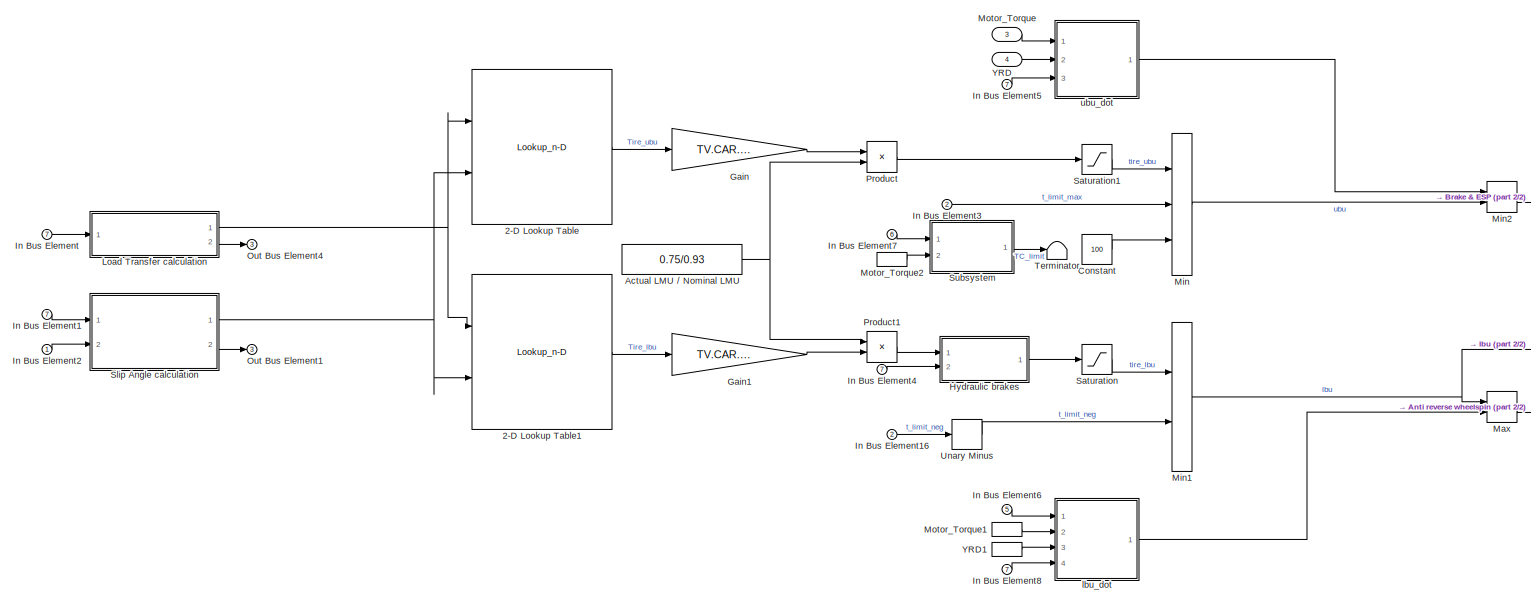
[diagram: Subsystem/Subsystem1/Torque Distribution/MPC/Control constraints - part 1/2, center side, full height]
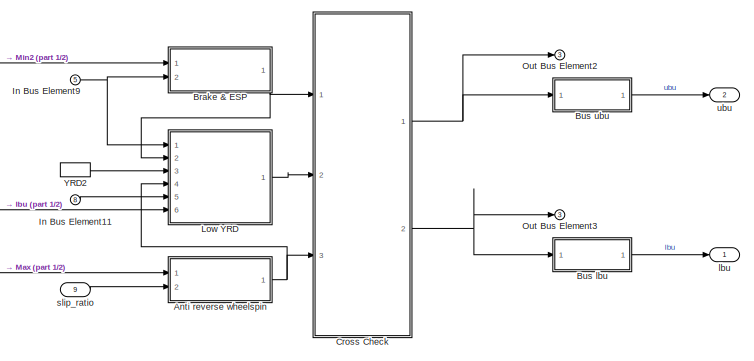
[diagram: Subsystem/Subsystem1/Torque Distribution/MPC/Control constraints - part 2/2, middle right region]
BLOCK [SubSystem] Subsystem/Subsystem1/Torque Distribution/MPC/Control constraints
  PortSchema = {"entries":[{"content":{"sides":[{"content":{"connectorIds":["In1","In2","In3","In4","In5","In6","In7","In8"]},"type":"ConnectorPlacement.EquallySpacedRectSide","uuid":"8593e4db-af87-4ecb-ab59-e8c996123787"},{"content":{"connectorIds":["Out1","Out2"],"side":"RIGHT"},"type":"ConnectorPlacement.EquallySpacedRectSide","uuid":"23cd0be0-bb8d-413f-9d07-6b27363d3732"},{"content":{"connectorIds":["In9","O...<+301ch>
  Ports = [9, 3]
  RequestExecContextInheritance = off
BLOCK [Lookup_n-D] Subsystem/Subsystem1/Torque Distribution/MPC/Control constraints/2-D Lookup Table
  BreakpointsForDimension1 = TV.LUT.MPC_Lut.control_bound_0_10.Fz
  BreakpointsForDimension2 = TV.LUT.MPC_Lut.control_bound_0_10.alpha
  InputPortMap = u0,u1
  InternalRulePriority = Speed
  Ports = [2, 1]
  RndMeth = Simplest
  Table = TV.LUT.MPC_Lut.control_bound_0_10.Fx_target_positive
BLOCK [Lookup_n-D] Subsystem/Subsystem1/Torque Distribution/MPC/Control constraints/2-D Lookup Table1
  BreakpointsForDimension1 = TV.LUT.MPC_Lut.control_bound_0_10.Fz
  BreakpointsForDimension2 = TV.LUT.MPC_Lut.control_bound_0_10.alpha
  InputPortMap = u0,u1
  InternalRulePriority = Speed
  Ports = [2, 1]
  RndMeth = Simplest
  Table = TV.LUT.MPC_Lut.control_bound_0_10.Fx_target_negative
BLOCK [Constant] Subsystem/Subsystem1/Torque Distribution/MPC/Control constraints/Actual LMU // Nominal LMU
  Value = 0.75/0.93
BLOCK [SubSystem] Subsystem/Subsystem1/Torque Distribution/MPC/Control constraints/Anti reverse wheelspin
  Ports = [2, 1]
  RequestExecContextInheritance = off
BLOCK [Constant] Subsystem/Subsystem1/Torque Distribution/MPC/Control constraints/Anti reverse wheelspin/Constant
  Value = -0.5
BLOCK [RelationalOperator] Subsystem/Subsystem1/Torque Distribution/MPC/Control constraints/Anti reverse wheelspin/Less Than
  InputSameDT = off
  OutDataTypeStr = boolean
  Ports = [2, 1]
  RndMeth = Simplest
BLOCK [Product] Subsystem/Subsystem1/Torque Distribution/MPC/Control constraints/Anti reverse wheelspin/Product
  Ports = [2, 1]
BLOCK [Inport] Subsystem/Subsystem1/Torque Distribution/MPC/Control constraints/Anti reverse wheelspin/lbu_in
BLOCK [Outport] Subsystem/Subsystem1/Torque Distribution/MPC/Control constraints/Anti reverse wheelspin/lbu_out
BLOCK [Inport] Subsystem/Subsystem1/Torque Distribution/MPC/Control constraints/Anti reverse wheelspin/slip_ratio
  Port = 2
BLOCK [SubSystem] Subsystem/Subsystem1/Torque Distribution/MPC/Control constraints/Brake & ESP
  Ports = [2, 1]
  RequestExecContextInheritance = off
BLOCK [Constant] Subsystem/Subsystem1/Torque Distribution/MPC/Control constraints/Brake & ESP/Constant
BLOCK [Constant] Subsystem/Subsystem1/Torque Distribution/MPC/Control constraints/Brake & ESP/Constant1
  Value = 0
BLOCK [Inport] Subsystem/Subsystem1/Torque Distribution/MPC/Control constraints/Brake & ESP/In Bus Element13
  Port = 2
BLOCK [Product] Subsystem/Subsystem1/Torque Distribution/MPC/Control constraints/Brake & ESP/Product
  Ports = [2, 1]
BLOCK [Switch] Subsystem/Subsystem1/Torque Distribution/MPC/Control constraints/Brake & ESP/Switch
  Criteria = u2 > Threshold
  InputSameDT = off
  SaturateOnIntegerOverflow = off
  Threshold = 0.95
BLOCK [Inport] Subsystem/Subsystem1/Torque Distribution/MPC/Control constraints/Brake & ESP/ubu_in
BLOCK [Outport] Subsystem/Subsystem1/Torque Distribution/MPC/Control constraints/Brake & ESP/ubu_out
BLOCK [SubSystem] Subsystem/Subsystem1/Torque Distribution/MPC/Control constraints/Bus lbu
  Ports = [1, 1]
  RequestExecContextInheritance = off
BLOCK [CFunction] Subsystem/Subsystem1/Torque Distribution/MPC/Control constraints/Bus lbu/C Function
  OutputCode = int i,j;\nfor (i = 0; i < N; i++) {\n for (j = 0; j < nu; j++) {\n  out_x[i*nu+j] = in_x[j];\n }\n}
  Ports = [3, 1]
BLOCK [Constant] Subsystem/Subsystem1/Torque Distribution/MPC/Control constraints/Bus lbu/Constant1
  OutDataTypeStr = uint8
  SampleTime = TV.MPC.T/TV.MPC.N
  Value = TV.MPC.N
BLOCK [Constant] Subsystem/Subsystem1/Torque Distribution/MPC/Control constraints/Bus lbu/Constant3
  OutDataTypeStr = uint8
  SampleTime = TV.MPC.T/TV.MPC.N
  Value = TV.MPC.nu
BLOCK [Outport] Subsystem/Subsystem1/Torque Distribution/MPC/Control constraints/Bus lbu/Out
BLOCK [RateTransition] Subsystem/Subsystem1/Torque Distribution/MPC/Control constraints/Bus lbu/Rate Transition3
  OutPortSampleTime = TV.MPC.T/TV.MPC.N
BLOCK [Inport] Subsystem/Subsystem1/Torque Distribution/MPC/Control constraints/Bus lbu/lbu
BLOCK [SubSystem] Subsystem/Subsystem1/Torque Distribution/MPC/Control constraints/Bus ubu
  Ports = [1, 1]
  RequestExecContextInheritance = off
BLOCK [CFunction] Subsystem/Subsystem1/Torque Distribution/MPC/Control constraints/Bus ubu/C Function
  OutputCode = int i,j;\nfor (i = 0; i < N; i++) {\n for (j = 0; j < nu; j++) {\n  out_x[i*nu+j] = in_x[j];\n }\n}
  Ports = [3, 1]
BLOCK [Constant] Subsystem/Subsystem1/Torque Distribution/MPC/Control constraints/Bus ubu/Constant1
  OutDataTypeStr = uint8
  SampleTime = TV.MPC.T/TV.MPC.N
  Value = TV.MPC.N
BLOCK [Constant] Subsystem/Subsystem1/Torque Distribution/MPC/Control constraints/Bus ubu/Constant3
  OutDataTypeStr = uint8
  SampleTime = TV.MPC.T/TV.MPC.N
  Value = TV.MPC.nu
BLOCK [Outport] Subsystem/Subsystem1/Torque Distribution/MPC/Control constraints/Bus ubu/Out
BLOCK [RateTransition] Subsystem/Subsystem1/Torque Distribution/MPC/Control constraints/Bus ubu/Rate Transition3
  OutPortSampleTime = TV.MPC.T/TV.MPC.N
BLOCK [Inport] Subsystem/Subsystem1/Torque Distribution/MPC/Control constraints/Bus ubu/ubu
BLOCK [Constant] Subsystem/Subsystem1/Torque Distribution/MPC/Control constraints/Constant
  Value = 100
BLOCK [SubSystem] Subsystem/Subsystem1/Torque Distribution/MPC/Control constraints/Cross Check
  ErrorFcn = Stateflow.Translate.translate
  PermitHierarchicalResolution = ExplicitOnly
  Ports = [3, 2]
  RequestExecContextInheritance = off
  SFBlockType = MATLAB Function
  TreatAsAtomicUnit = on
BLOCK [Demux] Subsystem/Subsystem1/Torque Distribution/MPC/Control constraints/Cross Check/ Demux 
  Outputs = 1
  Ports = [1, 1]
BLOCK [S-Function] Subsystem/Subsystem1/Torque Distribution/MPC/Control constraints/Cross Check/ SFunction 
  EnableBusSupport = on
  FunctionName = sf_sfun
  PortCounts = [3 3]
  Ports = [3, 3]
  SFcnIsStateOwnerBlock = off
  SFunctionDeploymentMode = off
  Tag = Stateflow S-Function 15
BLOCK [Terminator] Subsystem/Subsystem1/Torque Distribution/MPC/Control constraints/Cross Check/ Terminator 
BLOCK [Outport] Subsystem/Subsystem1/Torque Distribution/MPC/Control constraints/Cross Check/lbu
  Port = 2
BLOCK [Inport] Subsystem/Subsystem1/Torque Distribution/MPC/Control constraints/Cross Check/lbu 
  Port = 3
BLOCK [Inport] Subsystem/Subsystem1/Torque Distribution/MPC/Control constraints/Cross Check/param
  Port = 2
BLOCK [Outport] Subsystem/Subsystem1/Torque Distribution/MPC/Control constraints/Cross Check/ubu
BLOCK [Inport] Subsystem/Subsystem1/Torque Distribution/MPC/Control constraints/Cross Check/ubu 
BLOCK [Gain] Subsystem/Subsystem1/Torque Distribution/MPC/Control constraints/Gain
  Gain = TV.CAR.rs/TV.CAR.Tau
BLOCK [Gain] Subsystem/Subsystem1/Torque Distribution/MPC/Control constraints/Gain1
  Gain = TV.CAR.rs/TV.CAR.Tau
BLOCK [SubSystem] Subsystem/Subsystem1/Torque Distribution/MPC/Control constraints/Hydraulic brakes
  Ports = [2, 1]
  RequestExecContextInheritance = off
BLOCK [Gain] Subsystem/Subsystem1/Torque Distribution/MPC/Control constraints/Hydraulic brakes/Brake friction
  Commented = on
  Gain = 0.8
BLOCK [Constant] Subsystem/Subsystem1/Torque Distribution/MPC/Control constraints/Hydraulic brakes/Braking Areas
  Commented = on
  Value = [TV.CAR.BrkArea_front;TV.CAR.BrkArea_front;TV.CAR.BrkArea_rear;TV.CAR.BrkArea_rear]
BLOCK [Constant] Subsystem/Subsystem1/Torque Distribution/MPC/Control constraints/Hydraulic brakes/Braking Disk Radii
  Commented = on
  Value = [TV.CAR.DiskDiameter_front;TV.CAR.DiskDiameter_front;TV.CAR.DiskDiameter_rear;TV.CAR.DiskDiameter_rear]/2
BLOCK [Inport] Subsystem/Subsystem1/Torque Distribution/MPC/Control constraints/Hydraulic brakes/In Bus Element7
  Port = 2
BLOCK [Inport] Subsystem/Subsystem1/Torque Distribution/MPC/Control constraints/Hydraulic brakes/In1
BLOCK [Outport] Subsystem/Subsystem1/Torque Distribution/MPC/Control constraints/Hydraulic brakes/Out1
BLOCK [Product] Subsystem/Subsystem1/Torque Distribution/MPC/Control constraints/Hydraulic brakes/Product
  Commented = on
  Ports = [2, 1]
BLOCK [Product] Subsystem/Subsystem1/Torque Distribution/MPC/Control constraints/Hydraulic brakes/Product1
  Commented = on
  NameLocation = left
  Ports = [2, 1]
BLOCK [Sum] Subsystem/Subsystem1/Torque Distribution/MPC/Control constraints/Hydraulic brakes/Subtract
  IconShape = rectangular
  Ports = [2, 1]
BLOCK [Gain] Subsystem/Subsystem1/Torque Distribution/MPC/Control constraints/Hydraulic brakes/Wheel2Motor
  Gain = 1/TV.CAR.Tau
  NameLocation = top
BLOCK [Inport] Subsystem/Subsystem1/Torque Distribution/MPC/Control constraints/In Bus Element
  Port = 7
BLOCK [Inport] Subsystem/Subsystem1/Torque Distribution/MPC/Control constraints/In Bus Element1
  Port = 7
BLOCK [Inport] Subsystem/Subsystem1/Torque Distribution/MPC/Control constraints/In Bus Element11
  Port = 8
BLOCK [Inport] Subsystem/Subsystem1/Torque Distribution/MPC/Control constraints/In Bus Element16
  Port = 2
BLOCK [Inport] Subsystem/Subsystem1/Torque Distribution/MPC/Control constraints/In Bus Element2
BLOCK [Inport] Subsystem/Subsystem1/Torque Distribution/MPC/Control constraints/In Bus Element3
  Port = 2
BLOCK [Inport] Subsystem/Subsystem1/Torque Distribution/MPC/Control constraints/In Bus Element4
  Port = 7
BLOCK [Inport] Subsystem/Subsystem1/Torque Distribution/MPC/Control constraints/In Bus Element5
  Port = 7
BLOCK [Inport] Subsystem/Subsystem1/Torque Distribution/MPC/Control constraints/In Bus Element6
  Port = 5
BLOCK [Inport] Subsystem/Subsystem1/Torque Distribution/MPC/Control constraints/In Bus Element7
  Port = 6
BLOCK [Inport] Subsystem/Subsystem1/Torque Distribution/MPC/Control constraints/In Bus Element8
  Port = 7
BLOCK [Inport] Subsystem/Subsystem1/Torque Distribution/MPC/Control constraints/In Bus Element9
  Port = 5
BLOCK [SubSystem] Subsystem/Subsystem1/Torque Distribution/MPC/Control constraints/Load Transfer calculation
  Ports = [1, 2]
  RequestExecContextInheritance = off
BLOCK [SubSystem] Subsystem/Subsystem1/Torque Distribution/MPC/Control constraints/Load Transfer calculation/Fz FL
  Ports = [1, 1]
  RequestExecContextInheritance = off
BLOCK [Gain] Subsystem/Subsystem1/Torque Distribution/MPC/Control constraints/Load Transfer calculation/Fz FL/Drag moment
  Gain = 0.5*TV.CAR.rho*TV.CAR.CdA*TV.CAR.hcop/TV.CAR.wb*0.5
BLOCK [Inport] Subsystem/Subsystem1/Torque Distribution/MPC/Control constraints/Load Transfer calculation/Fz FL/In Bus Element
BLOCK [Inport] Subsystem/Subsystem1/Torque Distribution/MPC/Control constraints/Load Transfer calculation/Fz FL/In Bus Element1
BLOCK [Inport] Subsystem/Subsystem1/Torque Distribution/MPC/Control constraints/Load Transfer calculation/Fz FL/In Bus Element2
BLOCK [Gain] Subsystem/Subsystem1/Torque Distribution/MPC/Control constraints/Load Transfer calculation/Fz FL/Lateral Load Transfer
  Gain = TV.CAR.m/TV.CAR.tf*TV.CAR.hcog*0.5*0.5
BLOCK [Gain] Subsystem/Subsystem1/Torque Distribution/MPC/Control constraints/Load Transfer calculation/Fz FL/Lift Force
  Gain = 0.5*TV.CAR.rho*TV.CAR.ClA*(1-TV.CAR.xcop/TV.CAR.wb)*0.5
BLOCK [Gain] Subsystem/Subsystem1/Torque Distribution/MPC/Control constraints/Load Transfer calculation/Fz FL/Longitudinal Load Transfer
  Gain = TV.CAR.m/TV.CAR.wb*TV.CAR.hcog*0.5
BLOCK [Math] Subsystem/Subsystem1/Torque Distribution/MPC/Control constraints/Load Transfer calculation/Fz FL/Square1
  Operator = square
  Ports = [1, 1]
BLOCK [Math] Subsystem/Subsystem1/Torque Distribution/MPC/Control constraints/Load Transfer calculation/Fz FL/Square2
  Operator = square
  Ports = [1, 1]
BLOCK [Constant] Subsystem/Subsystem1/Torque Distribution/MPC/Control constraints/Load Transfer calculation/Fz FL/Static Load Front
  Value = TV.CAR.Fzf
BLOCK [Sum] Subsystem/Subsystem1/Torque Distribution/MPC/Control constraints/Load Transfer calculation/Fz FL/Subtract
  IconShape = rectangular
  Inputs = +++-+
  Ports = [5, 1]
BLOCK [Outport] Subsystem/Subsystem1/Torque Distribution/MPC/Control constraints/Load Transfer calculation/Fz FL/TV_Info
BLOCK [UnaryMinus] Subsystem/Subsystem1/Torque Distribution/MPC/Control constraints/Load Transfer calculation/Fz FL/Unary Minus
BLOCK [UnaryMinus] Subsystem/Subsystem1/Torque Distribution/MPC/Control constraints/Load Transfer calculation/Fz FL/Unary Minus1
BLOCK [SubSystem] Subsystem/Subsystem1/Torque Distribution/MPC/Control constraints/Load Transfer calculation/Fz FR
  Ports = [1, 1]
  RequestExecContextInheritance = off
BLOCK [Gain] Subsystem/Subsystem1/Torque Distribution/MPC/Control constraints/Load Transfer calculation/Fz FR/Drag moment
  Gain = 0.5*TV.CAR.rho*TV.CAR.CdA*TV.CAR.hcop/TV.CAR.wb*0.5
BLOCK [Inport] Subsystem/Subsystem1/Torque Distribution/MPC/Control constraints/Load Transfer calculation/Fz FR/In Bus Element
BLOCK [Inport] Subsystem/Subsystem1/Torque Distribution/MPC/Control constraints/Load Transfer calculation/Fz FR/In Bus Element1
BLOCK [Inport] Subsystem/Subsystem1/Torque Distribution/MPC/Control constraints/Load Transfer calculation/Fz FR/In Bus Element2
BLOCK [Gain] Subsystem/Subsystem1/Torque Distribution/MPC/Control constraints/Load Transfer calculation/Fz FR/Lateral Load Transfer
  Gain = TV.CAR.m/TV.CAR.tf*TV.CAR.hcog*0.5*0.5
BLOCK [Gain] Subsystem/Subsystem1/Torque Distribution/MPC/Control constraints/Load Transfer calculation/Fz FR/Lift Force
  Gain = 0.5*TV.CAR.rho*TV.CAR.ClA*(1 - TV.CAR.xcop/TV.CAR.wb)*0.5
BLOCK [Gain] Subsystem/Subsystem1/Torque Distribution/MPC/Control constraints/Load Transfer calculation/Fz FR/Longitudinal Load Transfer
  Gain = TV.CAR.m/TV.CAR.wb*TV.CAR.hcog*0.5
BLOCK [Math] Subsystem/Subsystem1/Torque Distribution/MPC/Control constraints/Load Transfer calculation/Fz FR/Square1
  Operator = square
  Ports = [1, 1]
BLOCK [Math] Subsystem/Subsystem1/Torque Distribution/MPC/Control constraints/Load Transfer calculation/Fz FR/Square2
  Operator = square
  Ports = [1, 1]
BLOCK [Constant] Subsystem/Subsystem1/Torque Distribution/MPC/Control constraints/Load Transfer calculation/Fz FR/Static Load Front
  Value = TV.CAR.Fzf
BLOCK [Sum] Subsystem/Subsystem1/Torque Distribution/MPC/Control constraints/Load Transfer calculation/Fz FR/Subtract
  IconShape = rectangular
  Inputs = +-+-+
  Ports = [5, 1]
BLOCK [Outport] Subsystem/Subsystem1/Torque Distribution/MPC/Control constraints/Load Transfer calculation/Fz FR/TV_Info
BLOCK [UnaryMinus] Subsystem/Subsystem1/Torque Distribution/MPC/Control constraints/Load Transfer calculation/Fz FR/Unary Minus
BLOCK [UnaryMinus] Subsystem/Subsystem1/Torque Distribution/MPC/Control constraints/Load Transfer calculation/Fz FR/Unary Minus1
BLOCK [SubSystem] Subsystem/Subsystem1/Torque Distribution/MPC/Control constraints/Load Transfer calculation/Fz RL
  Ports = [1, 1]
  RequestExecContextInheritance = off
BLOCK [Gain] Subsystem/Subsystem1/Torque Distribution/MPC/Control constraints/Load Transfer calculation/Fz RL/Drag moment
  Gain = 0.5*TV.CAR.rho*TV.CAR.CdA*TV.CAR.hcop/TV.CAR.wb*0.5
BLOCK [Inport] Subsystem/Subsystem1/Torque Distribution/MPC/Control constraints/Load Transfer calculation/Fz RL/In Bus Element
BLOCK [Inport] Subsystem/Subsystem1/Torque Distribution/MPC/Control constraints/Load Transfer calculation/Fz RL/In Bus Element1
BLOCK [Inport] Subsystem/Subsystem1/Torque Distribution/MPC/Control constraints/Load Transfer calculation/Fz RL/In Bus Element2
BLOCK [Gain] Subsystem/Subsystem1/Torque Distribution/MPC/Control constraints/Load Transfer calculation/Fz RL/Lateral Load Transfer
  Gain = TV.CAR.m/TV.CAR.tr*TV.CAR.hcog*0.5*0.5
BLOCK [Gain] Subsystem/Subsystem1/Torque Distribution/MPC/Control constraints/Load Transfer calculation/Fz RL/Lift Force
  Gain = 0.5*TV.CAR.rho*TV.CAR.ClA*(TV.CAR.xcop/TV.CAR.wb)*0.5
BLOCK [Gain] Subsystem/Subsystem1/Torque Distribution/MPC/Control constraints/Load Transfer calculation/Fz RL/Longitudinal Load Transfer
  Gain = TV.CAR.m/TV.CAR.wb*TV.CAR.hcog*0.5
BLOCK [Math] Subsystem/Subsystem1/Torque Distribution/MPC/Control constraints/Load Transfer calculation/Fz RL/Square1
  Operator = square
  Ports = [1, 1]
BLOCK [Math] Subsystem/Subsystem1/Torque Distribution/MPC/Control constraints/Load Transfer calculation/Fz RL/Square2
  Operator = square
  Ports = [1, 1]
BLOCK [Constant] Subsystem/Subsystem1/Torque Distribution/MPC/Control constraints/Load Transfer calculation/Fz RL/Static Load Front
  Value = TV.CAR.Fzr
BLOCK [Sum] Subsystem/Subsystem1/Torque Distribution/MPC/Control constraints/Load Transfer calculation/Fz RL/Subtract
  IconShape = rectangular
  Inputs = ++++-
  Ports = [5, 1]
BLOCK [Outport] Subsystem/Subsystem1/Torque Distribution/MPC/Control constraints/Load Transfer calculation/Fz RL/TV_Info
BLOCK [UnaryMinus] Subsystem/Subsystem1/Torque Distribution/MPC/Control constraints/Load Transfer calculation/Fz RL/Unary Minus
BLOCK [UnaryMinus] Subsystem/Subsystem1/Torque Distribution/MPC/Control constraints/Load Transfer calculation/Fz RL/Unary Minus1
BLOCK [SubSystem] Subsystem/Subsystem1/Torque Distribution/MPC/Control constraints/Load Transfer calculation/Fz RR
  Ports = [1, 1]
  RequestExecContextInheritance = off
BLOCK [Gain] Subsystem/Subsystem1/Torque Distribution/MPC/Control constraints/Load Transfer calculation/Fz RR/Drag moment
  Gain = 0.5*TV.CAR.rho*TV.CAR.CdA*TV.CAR.hcop/TV.CAR.wb*0.5
BLOCK [Inport] Subsystem/Subsystem1/Torque Distribution/MPC/Control constraints/Load Transfer calculation/Fz RR/In Bus Element
BLOCK [Inport] Subsystem/Subsystem1/Torque Distribution/MPC/Control constraints/Load Transfer calculation/Fz RR/In Bus Element1
BLOCK [Inport] Subsystem/Subsystem1/Torque Distribution/MPC/Control constraints/Load Transfer calculation/Fz RR/In Bus Element2
BLOCK [Gain] Subsystem/Subsystem1/Torque Distribution/MPC/Control constraints/Load Transfer calculation/Fz RR/Lateral Load Transfer
  Gain = TV.CAR.m/TV.CAR.tr*TV.CAR.hcog*0.5*0.5
BLOCK [Gain] Subsystem/Subsystem1/Torque Distribution/MPC/Control constraints/Load Transfer calculation/Fz RR/Lift Force
  Gain = 0.5*TV.CAR.rho*TV.CAR.ClA*(TV.CAR.xcop/TV.CAR.wb)*0.5
BLOCK [Gain] Subsystem/Subsystem1/Torque Distribution/MPC/Control constraints/Load Transfer calculation/Fz RR/Longitudinal Load Transfer
  Gain = TV.CAR.m/TV.CAR.wb*TV.CAR.hcog*0.5
BLOCK [Math] Subsystem/Subsystem1/Torque Distribution/MPC/Control constraints/Load Transfer calculation/Fz RR/Square1
  Operator = square
  Ports = [1, 1]
BLOCK [Math] Subsystem/Subsystem1/Torque Distribution/MPC/Control constraints/Load Transfer calculation/Fz RR/Square2
  Operator = square
  Ports = [1, 1]
BLOCK [Constant] Subsystem/Subsystem1/Torque Distribution/MPC/Control constraints/Load Transfer calculation/Fz RR/Static Load Front
  Value = TV.CAR.Fzr
BLOCK [Sum] Subsystem/Subsystem1/Torque Distribution/MPC/Control constraints/Load Transfer calculation/Fz RR/Subtract
  IconShape = rectangular
  Inputs = +-++-
  Ports = [5, 1]
BLOCK [Outport] Subsystem/Subsystem1/Torque Distribution/MPC/Control constraints/Load Transfer calculation/Fz RR/TV_Info
BLOCK [UnaryMinus] Subsystem/Subsystem1/Torque Distribution/MPC/Control constraints/Load Transfer calculation/Fz RR/Unary Minus
BLOCK [UnaryMinus] Subsystem/Subsystem1/Torque Distribution/MPC/Control constraints/Load Transfer calculation/Fz RR/Unary Minus1
BLOCK [Outport] Subsystem/Subsystem1/Torque Distribution/MPC/Control constraints/Load Transfer calculation/Fz [4x1]
BLOCK [Inport] Subsystem/Subsystem1/Torque Distribution/MPC/Control constraints/Load Transfer calculation/In Bus Element
BLOCK [Mux] Subsystem/Subsystem1/Torque Distribution/MPC/Control constraints/Load Transfer calculation/Mux
  DisplayOption = bar
  Ports = [4, 1]
BLOCK [Outport] Subsystem/Subsystem1/Torque Distribution/MPC/Control constraints/Load Transfer calculation/Out Bus Element1
  Port = 2
BLOCK [Outport] Subsystem/Subsystem1/Torque Distribution/MPC/Control constraints/Load Transfer calculation/Out Bus Element2
  Port = 2
BLOCK [Outport] Subsystem/Subsystem1/Torque Distribution/MPC/Control constraints/Load Transfer calculation/Out Bus Element3
  Port = 2
BLOCK [Outport] Subsystem/Subsystem1/Torque Distribution/MPC/Control constraints/Load Transfer calculation/Out Bus Element4
  Port = 2
BLOCK [SubSystem] Subsystem/Subsystem1/Torque Distribution/MPC/Control constraints/Low YRD
  Ports = [6, 1]
  RequestExecContextInheritance = off
BLOCK [Demux] Subsystem/Subsystem1/Torque Distribution/MPC/Control constraints/Low YRD/Demux
  Ports = [1, 4]
BLOCK [Demux] Subsystem/Subsystem1/Torque Distribution/MPC/Control constraints/Low YRD/Demux1
  Ports = [1, 4]
BLOCK [Inport] Subsystem/Subsystem1/Torque Distribution/MPC/Control constraints/Low YRD/In Bus Element1
  Port = 5
BLOCK [Inport] Subsystem/Subsystem1/Torque Distribution/MPC/Control constraints/Low YRD/In Bus Element13
BLOCK [Mux] Subsystem/Subsystem1/Torque Distribution/MPC/Control constraints/Low YRD/Mux
  DisplayOption = bar
  Inputs = 10
  Ports = [10, 1]
BLOCK [SubSystem] Subsystem/Subsystem1/Torque Distribution/MPC/Control constraints/Low YRD/Mz = 0 Bound logic
  Ports = [3, 1]
  RequestExecContextInheritance = off
BLOCK [Constant] Subsystem/Subsystem1/Torque Distribution/MPC/Control constraints/Low YRD/Mz = 0 Bound logic/ 
  Value = 0.95
BLOCK [Constant] Subsystem/Subsystem1/Torque Distribution/MPC/Control constraints/Low YRD/Mz = 0 Bound logic/  
  Value = TV.LV.GENERAL.ThrottleThresh
BLOCK [Constant] Subsystem/Subsystem1/Torque Distribution/MPC/Control constraints/Low YRD/Mz = 0 Bound logic/             
  Value = TV.LV.GENERAL.YRDTresh
BLOCK [Logic] Subsystem/Subsystem1/Torque Distribution/MPC/Control constraints/Low YRD/Mz = 0 Bound logic/AND
  AllPortsSameDT = off
  IconShape = distinctive
  OutDataTypeStr = boolean
  Ports = [2, 1]
BLOCK [Logic] Subsystem/Subsystem1/Torque Distribution/MPC/Control constraints/Low YRD/Mz = 0 Bound logic/AND1
  AllPortsSameDT = off
  IconShape = distinctive
  OutDataTypeStr = boolean
  Ports = [2, 1]
BLOCK [Logic] Subsystem/Subsystem1/Torque Distribution/MPC/Control constraints/Low YRD/Mz = 0 Bound logic/AND2
  AllPortsSameDT = off
  IconShape = distinctive
  OutDataTypeStr = boolean
  Ports = [2, 1]
BLOCK [Abs] Subsystem/Subsystem1/Torque Distribution/MPC/Control constraints/Low YRD/Mz = 0 Bound logic/Abs
  SaturateOnIntegerOverflow = off
BLOCK [Constant] Subsystem/Subsystem1/Torque Distribution/MPC/Control constraints/Low YRD/Mz = 0 Bound logic/Constant
  Value = TV.LV.GENERAL.BrakeThresh
BLOCK [Constant] Subsystem/Subsystem1/Torque Distribution/MPC/Control constraints/Low YRD/Mz = 0 Bound logic/Constant1
  Value = 10
BLOCK [DataTypeConversion] Subsystem/Subsystem1/Torque Distribution/MPC/Control constraints/Low YRD/Mz = 0 Bound logic/Data Type Conversion
  OutDataTypeStr = double
  RndMeth = Floor
  SaturateOnIntegerOverflow = off
BLOCK [DataTypeConversion] Subsystem/Subsystem1/Torque Distribution/MPC/Control constraints/Low YRD/Mz = 0 Bound logic/Data Type Conversion1
  OutDataTypeStr = double
  RndMeth = Floor
  SaturateOnIntegerOverflow = off
BLOCK [DiscreteFir] Subsystem/Subsystem1/Torque Distribution/MPC/Control constraints/Low YRD/Mz = 0 Bound logic/Discrete FIR Filter
  Coefficients = ones(1,TV.MPC.N/TV.MPC.T*0.2)
  InputPortMap = u0
  OutputPortMap = o0
  Ports = [1, 1]
BLOCK [Gain] Subsystem/Subsystem1/Torque Distribution/MPC/Control constraints/Low YRD/Mz = 0 Bound logic/Gain
  Gain = 2
BLOCK [Inport] Subsystem/Subsystem1/Torque Distribution/MPC/Control constraints/Low YRD/Mz = 0 Bound logic/In Bus Element1
  Port = 3
BLOCK [Inport] Subsystem/Subsystem1/Torque Distribution/MPC/Control constraints/Low YRD/Mz = 0 Bound logic/In Bus Element13
BLOCK [RelationalOperator] Subsystem/Subsystem1/Torque Distribution/MPC/Control constraints/Low YRD/Mz = 0 Bound logic/Less Than
  InputSameDT = off
  Operator = <=
  OutDataTypeStr = fixdt(1,16)
  Ports = [2, 1]
  RndMeth = Simplest
BLOCK [RelationalOperator] Subsystem/Subsystem1/Torque Distribution/MPC/Control constraints/Low YRD/Mz = 0 Bound logic/Less Than1
  InputSameDT = off
  OutDataTypeStr = boolean
  Ports = [2, 1]
  RndMeth = Simplest
BLOCK [RelationalOperator] Subsystem/Subsystem1/Torque Distribution/MPC/Control constraints/Low YRD/Mz = 0 Bound logic/Less Than2
  InputSameDT = off
  Operator = <
  OutDataTypeStr = boolean
  Ports = [2, 1]
  RndMeth = Simplest
BLOCK [RelationalOperator] Subsystem/Subsystem1/Torque Distribution/MPC/Control constraints/Low YRD/Mz = 0 Bound logic/Less Than3
  InputSameDT = off
  Operator = <
  OutDataTypeStr = boolean
  Ports = [2, 1]
  RndMeth = Simplest
BLOCK [RelationalOperator] Subsystem/Subsystem1/Torque Distribution/MPC/Control constraints/Low YRD/Mz = 0 Bound logic/Less Than4
  InputSameDT = off
  OutDataTypeStr = boolean
  Ports = [2, 1]
  RndMeth = Simplest
BLOCK [RateTransition] Subsystem/Subsystem1/Torque Distribution/MPC/Control constraints/Low YRD/Mz = 0 Bound logic/Rate Transition
  OutPortSampleTime = TV.MPC.T/TV.MPC.N
BLOCK [Sum] Subsystem/Subsystem1/Torque Distribution/MPC/Control constraints/Low YRD/Mz = 0 Bound logic/Sum
  Ports = [2, 1]
BLOCK [Inport] Subsystem/Subsystem1/Torque Distribution/MPC/Control constraints/Low YRD/Mz = 0 Bound logic/YRD
  NameLocation = left
  Port = 2
BLOCK [Outport] Subsystem/Subsystem1/Torque Distribution/MPC/Control constraints/Low YRD/Mz = 0 Bound logic/flag
BLOCK [Outport] Subsystem/Subsystem1/Torque Distribution/MPC/Control constraints/Low YRD/Output
BLOCK [Inport] Subsystem/Subsystem1/Torque Distribution/MPC/Control constraints/Low YRD/YRD
  NameLocation = left
  Port = 3
BLOCK [Inport] Subsystem/Subsystem1/Torque Distribution/MPC/Control constraints/Low YRD/lbu
  Port = 4
BLOCK [Inport] Subsystem/Subsystem1/Torque Distribution/MPC/Control constraints/Low YRD/lbu_max
  Port = 6
BLOCK [Inport] Subsystem/Subsystem1/Torque Distribution/MPC/Control constraints/Low YRD/ubu
  Port = 2
BLOCK [MinMax] Subsystem/Subsystem1/Torque Distribution/MPC/Control constraints/Max
  Function = max
  Inputs = 2
  Ports = [2, 1]
BLOCK [MinMax] Subsystem/Subsystem1/Torque Distribution/MPC/Control constraints/Min
  Inputs = 3
  Ports = [3, 1]
BLOCK [MinMax] Subsystem/Subsystem1/Torque Distribution/MPC/Control constraints/Min1
  Function = max
  Inputs = 2
  Ports = [2, 1]
BLOCK [MinMax] Subsystem/Subsystem1/Torque Distribution/MPC/Control constraints/Min2
  Inputs = 2
  Ports = [2, 1]
BLOCK [Inport] Subsystem/Subsystem1/Torque Distribution/MPC/Control constraints/Motor_Torque
  NameLocation = left
  Port = 3
BLOCK [InportShadow] Subsystem/Subsystem1/Torque Distribution/MPC/Control constraints/Motor_Torque1
  NameLocation = left
  Port = 3
BLOCK [InportShadow] Subsystem/Subsystem1/Torque Distribution/MPC/Control constraints/Motor_Torque2
  NameLocation = left
  Port = 3
BLOCK [Outport] Subsystem/Subsystem1/Torque Distribution/MPC/Control constraints/Out Bus Element1
  Port = 3
BLOCK [Outport] Subsystem/Subsystem1/Torque Distribution/MPC/Control constraints/Out Bus Element2
  Port = 3
BLOCK [Outport] Subsystem/Subsystem1/Torque Distribution/MPC/Control constraints/Out Bus Element3
  Port = 3
BLOCK [Outport] Subsystem/Subsystem1/Torque Distribution/MPC/Control constraints/Out Bus Element4
  Port = 3
BLOCK [Product] Subsystem/Subsystem1/Torque Distribution/MPC/Control constraints/Product
  Ports = [2, 1]
BLOCK [Product] Subsystem/Subsystem1/Torque Distribution/MPC/Control constraints/Product1
  Ports = [2, 1]
BLOCK [Saturate] Subsystem/Subsystem1/Torque Distribution/MPC/Control constraints/Saturation
  LowerLimit = -inf
  UpperLimit = 0
BLOCK [Saturate] Subsystem/Subsystem1/Torque Distribution/MPC/Control constraints/Saturation1
  LowerLimit = 0
  UpperLimit = +inf
BLOCK [SubSystem] Subsystem/Subsystem1/Torque Distribution/MPC/Control constraints/Slip Angle calculation
  Ports = [2, 2]
  RequestExecContextInheritance = off
BLOCK [Inport] Subsystem/Subsystem1/Torque Distribution/MPC/Control constraints/Slip Angle calculation/In Bus Element
BLOCK [Inport] Subsystem/Subsystem1/Torque Distribution/MPC/Control constraints/Slip Angle calculation/In Bus Element1
  Port = 2
BLOCK [Inport] Subsystem/Subsystem1/Torque Distribution/MPC/Control constraints/Slip Angle calculation/In Bus Element12
  Port = 2
BLOCK [Inport] Subsystem/Subsystem1/Torque Distribution/MPC/Control constraints/Slip Angle calculation/In Bus Element2
BLOCK [Inport] Subsystem/Subsystem1/Torque Distribution/MPC/Control constraints/Slip Angle calculation/In Bus Element3
BLOCK [Inport] Subsystem/Subsystem1/Torque Distribution/MPC/Control constraints/Slip Angle calculation/In Bus Element4
BLOCK [Mux] Subsystem/Subsystem1/Torque Distribution/MPC/Control constraints/Slip Angle calculation/Mux
  DisplayOption = bar
  Ports = [4, 1]
BLOCK [Outport] Subsystem/Subsystem1/Torque Distribution/MPC/Control constraints/Slip Angle calculation/Out Bus Element1
  Port = 2
BLOCK [Outport] Subsystem/Subsystem1/Torque Distribution/MPC/Control constraints/Slip Angle calculation/Out Bus Element2
  Port = 2
BLOCK [Outport] Subsystem/Subsystem1/Torque Distribution/MPC/Control constraints/Slip Angle calculation/Out Bus Element3
  Port = 2
BLOCK [Outport] Subsystem/Subsystem1/Torque Distribution/MPC/Control constraints/Slip Angle calculation/Out Bus Element4
  Port = 2
BLOCK [SubSystem] Subsystem/Subsystem1/Torque Distribution/MPC/Control constraints/Slip Angle calculation/Slip Angle FL
  Ports = [2, 1]
  RequestExecContextInheritance = off
BLOCK [Trigonometry] Subsystem/Subsystem1/Torque Distribution/MPC/Control constraints/Slip Angle calculation/Slip Angle FL/Atan
  Operator = atan2
  Ports = [2, 1]
BLOCK [Gain] Subsystem/Subsystem1/Torque Distribution/MPC/Control constraints/Slip Angle calculation/Slip Angle FL/Gain
  Gain = TV.CAR.a
BLOCK [Gain] Subsystem/Subsystem1/Torque Distribution/MPC/Control constraints/Slip Angle calculation/Slip Angle FL/Gain1
  Gain = TV.CAR.tf/2
BLOCK [Inport] Subsystem/Subsystem1/Torque Distribution/MPC/Control constraints/Slip Angle calculation/Slip Angle FL/In Bus Element
BLOCK [Inport] Subsystem/Subsystem1/Torque Distribution/MPC/Control constraints/Slip Angle calculation/Slip Angle FL/In Bus Element1
BLOCK [Inport] Subsystem/Subsystem1/Torque Distribution/MPC/Control constraints/Slip Angle calculation/Slip Angle FL/In Bus Element12
  Port = 2
BLOCK [Inport] Subsystem/Subsystem1/Torque Distribution/MPC/Control constraints/Slip Angle calculation/Slip Angle FL/In Bus Element2
BLOCK [Inport] Subsystem/Subsystem1/Torque Distribution/MPC/Control constraints/Slip Angle calculation/Slip Angle FL/In Bus Element3
BLOCK [Selector] Subsystem/Subsystem1/Torque Distribution/MPC/Control constraints/Slip Angle calculation/Slip Angle FL/Selector
  IndexOptions = Index vector (dialog)
  Indices = [1]
  InputPortWidth = 2
  OutputSizes = 1
  Ports = [1, 1]
BLOCK [Sum] Subsystem/Subsystem1/Torque Distribution/MPC/Control constraints/Slip Angle calculation/Slip Angle FL/Subtract
  IconShape = rectangular
  Inputs = +-
  Ports = [2, 1]
BLOCK [Sum] Subsystem/Subsystem1/Torque Distribution/MPC/Control constraints/Slip Angle calculation/Slip Angle FL/Subtract1
  IconShape = rectangular
  Ports = [2, 1]
BLOCK [Sum] Subsystem/Subsystem1/Torque Distribution/MPC/Control constraints/Slip Angle calculation/Slip Angle FL/Subtract2
  IconShape = rectangular
  Inputs = +-
  Ports = [2, 1]
BLOCK [Outport] Subsystem/Subsystem1/Torque Distribution/MPC/Control constraints/Slip Angle calculation/Slip Angle FL/TV_Info
BLOCK [SubSystem] Subsystem/Subsystem1/Torque Distribution/MPC/Control constraints/Slip Angle calculation/Slip Angle FR
  Ports = [2, 1]
  RequestExecContextInheritance = off
BLOCK [Trigonometry] Subsystem/Subsystem1/Torque Distribution/MPC/Control constraints/Slip Angle calculation/Slip Angle FR/Atan
  Operator = atan2
  Ports = [2, 1]
BLOCK [Gain] Subsystem/Subsystem1/Torque Distribution/MPC/Control constraints/Slip Angle calculation/Slip Angle FR/Gain
  Gain = TV.CAR.a
BLOCK [Gain] Subsystem/Subsystem1/Torque Distribution/MPC/Control constraints/Slip Angle calculation/Slip Angle FR/Gain1
  Gain = TV.CAR.tf/2
BLOCK [Inport] Subsystem/Subsystem1/Torque Distribution/MPC/Control constraints/Slip Angle calculation/Slip Angle FR/In Bus Element
BLOCK [Inport] Subsystem/Subsystem1/Torque Distribution/MPC/Control constraints/Slip Angle calculation/Slip Angle FR/In Bus Element1
BLOCK [Inport] Subsystem/Subsystem1/Torque Distribution/MPC/Control constraints/Slip Angle calculation/Slip Angle FR/In Bus Element12
  Port = 2
BLOCK [Inport] Subsystem/Subsystem1/Torque Distribution/MPC/Control constraints/Slip Angle calculation/Slip Angle FR/In Bus Element2
BLOCK [Inport] Subsystem/Subsystem1/Torque Distribution/MPC/Control constraints/Slip Angle calculation/Slip Angle FR/In Bus Element3
BLOCK [Selector] Subsystem/Subsystem1/Torque Distribution/MPC/Control constraints/Slip Angle calculation/Slip Angle FR/Selector
  IndexOptions = Index vector (dialog)
  Indices = [2]
  InputPortWidth = 2
  OutputSizes = 1
  Ports = [1, 1]
BLOCK [Sum] Subsystem/Subsystem1/Torque Distribution/MPC/Control constraints/Slip Angle calculation/Slip Angle FR/Subtract
  IconShape = rectangular
  Ports = [2, 1]
BLOCK [Sum] Subsystem/Subsystem1/Torque Distribution/MPC/Control constraints/Slip Angle calculation/Slip Angle FR/Subtract1
  IconShape = rectangular
  Ports = [2, 1]
BLOCK [Sum] Subsystem/Subsystem1/Torque Distribution/MPC/Control constraints/Slip Angle calculation/Slip Angle FR/Subtract2
  IconShape = rectangular
  Inputs = +-
  Ports = [2, 1]
BLOCK [Outport] Subsystem/Subsystem1/Torque Distribution/MPC/Control constraints/Slip Angle calculation/Slip Angle FR/TV_Info
BLOCK [SubSystem] Subsystem/Subsystem1/Torque Distribution/MPC/Control constraints/Slip Angle calculation/Slip Angle RL
  Ports = [1, 1]
  RequestExecContextInheritance = off
BLOCK [Trigonometry] Subsystem/Subsystem1/Torque Distribution/MPC/Control constraints/Slip Angle calculation/Slip Angle RL/Atan
  Operator = atan2
  Ports = [2, 1]
BLOCK [Gain] Subsystem/Subsystem1/Torque Distribution/MPC/Control constraints/Slip Angle calculation/Slip Angle RL/Gain
  Gain = TV.CAR.b
BLOCK [Gain] Subsystem/Subsystem1/Torque Distribution/MPC/Control constraints/Slip Angle calculation/Slip Angle RL/Gain1
  Gain = TV.CAR.tr/2
BLOCK [Inport] Subsystem/Subsystem1/Torque Distribution/MPC/Control constraints/Slip Angle calculation/Slip Angle RL/In Bus Element
BLOCK [Inport] Subsystem/Subsystem1/Torque Distribution/MPC/Control constraints/Slip Angle calculation/Slip Angle RL/In Bus Element1
BLOCK [Inport] Subsystem/Subsystem1/Torque Distribution/MPC/Control constraints/Slip Angle calculation/Slip Angle RL/In Bus Element2
BLOCK [Inport] Subsystem/Subsystem1/Torque Distribution/MPC/Control constraints/Slip Angle calculation/Slip Angle RL/In Bus Element3
BLOCK [Sum] Subsystem/Subsystem1/Torque Distribution/MPC/Control constraints/Slip Angle calculation/Slip Angle RL/Subtract
  IconShape = rectangular
  Inputs = +-
  Ports = [2, 1]
BLOCK [Sum] Subsystem/Subsystem1/Torque Distribution/MPC/Control constraints/Slip Angle calculation/Slip Angle RL/Subtract1
  IconShape = rectangular
  Inputs = +-
  Ports = [2, 1]
BLOCK [Outport] Subsystem/Subsystem1/Torque Distribution/MPC/Control constraints/Slip Angle calculation/Slip Angle RL/TV_Info
BLOCK [SubSystem] Subsystem/Subsystem1/Torque Distribution/MPC/Control constraints/Slip Angle calculation/Slip Angle RR
  Ports = [1, 1]
  RequestExecContextInheritance = off
BLOCK [Trigonometry] Subsystem/Subsystem1/Torque Distribution/MPC/Control constraints/Slip Angle calculation/Slip Angle RR/Atan
  Operator = atan2
  Ports = [2, 1]
BLOCK [Gain] Subsystem/Subsystem1/Torque Distribution/MPC/Control constraints/Slip Angle calculation/Slip Angle RR/Gain
  Gain = TV.CAR.b
BLOCK [Gain] Subsystem/Subsystem1/Torque Distribution/MPC/Control constraints/Slip Angle calculation/Slip Angle RR/Gain1
  Gain = TV.CAR.tr/2
BLOCK [Inport] Subsystem/Subsystem1/Torque Distribution/MPC/Control constraints/Slip Angle calculation/Slip Angle RR/In Bus Element
BLOCK [Inport] Subsystem/Subsystem1/Torque Distribution/MPC/Control constraints/Slip Angle calculation/Slip Angle RR/In Bus Element1
BLOCK [Inport] Subsystem/Subsystem1/Torque Distribution/MPC/Control constraints/Slip Angle calculation/Slip Angle RR/In Bus Element2
BLOCK [Inport] Subsystem/Subsystem1/Torque Distribution/MPC/Control constraints/Slip Angle calculation/Slip Angle RR/In Bus Element4
BLOCK [Sum] Subsystem/Subsystem1/Torque Distribution/MPC/Control constraints/Slip Angle calculation/Slip Angle RR/Subtract
  IconShape = rectangular
  Ports = [2, 1]
BLOCK [Sum] Subsystem/Subsystem1/Torque Distribution/MPC/Control constraints/Slip Angle calculation/Slip Angle RR/Subtract1
  IconShape = rectangular
  Inputs = +-
  Ports = [2, 1]
BLOCK [Outport] Subsystem/Subsystem1/Torque Distribution/MPC/Control constraints/Slip Angle calculation/Slip Angle RR/TV_Info
BLOCK [Outport] Subsystem/Subsystem1/Torque Distribution/MPC/Control constraints/Slip Angle calculation/Slip angles [4x1]
BLOCK [SubSystem] Subsystem/Subsystem1/Torque Distribution/MPC/Control constraints/Subsystem
  Commented = on
  Ports = [2, 1]
  RequestExecContextInheritance = off
BLOCK [BusCreator] Subsystem/Subsystem1/Torque Distribution/MPC/Control constraints/Subsystem/Bus Creator
  DisplayOption = bar
  InheritFromInputs = on
  Inputs = 4
  Ports = [4, 1]
BLOCK [Demux] Subsystem/Subsystem1/Torque Distribution/MPC/Control constraints/Subsystem/Demux
  Ports = [1, 4]
BLOCK [Inport] Subsystem/Subsystem1/Torque Distribution/MPC/Control constraints/Subsystem/In Bus Element1
BLOCK [Inport] Subsystem/Subsystem1/Torque Distribution/MPC/Control constraints/Subsystem/In Bus Element2
BLOCK [Inport] Subsystem/Subsystem1/Torque Distribution/MPC/Control constraints/Subsystem/In Bus Element3
BLOCK [Inport] Subsystem/Subsystem1/Torque Distribution/MPC/Control constraints/Subsystem/In Bus Element7
BLOCK [Sum] Subsystem/Subsystem1/Torque Distribution/MPC/Control constraints/Subsystem/Sum
  Inputs = |++
  Ports = [2, 1]
BLOCK [Sum] Subsystem/Subsystem1/Torque Distribution/MPC/Control constraints/Subsystem/Sum1
  Inputs = |++
  Ports = [2, 1]
BLOCK [Sum] Subsystem/Subsystem1/Torque Distribution/MPC/Control constraints/Subsystem/Sum2
  Inputs = |++
  Ports = [2, 1]
BLOCK [Sum] Subsystem/Subsystem1/Torque Distribution/MPC/Control constraints/Subsystem/Sum3
  Inputs = |++
  Ports = [2, 1]
BLOCK [Outport] Subsystem/Subsystem1/Torque Distribution/MPC/Control constraints/Subsystem/TC_limit
BLOCK [Inport] Subsystem/Subsystem1/Torque Distribution/MPC/Control constraints/Subsystem/motor_torque
  Port = 2
BLOCK [Terminator] Subsystem/Subsystem1/Torque Distribution/MPC/Control constraints/Terminator
BLOCK [UnaryMinus] Subsystem/Subsystem1/Torque Distribution/MPC/Control constraints/Unary Minus
BLOCK [Inport] Subsystem/Subsystem1/Torque Distribution/MPC/Control constraints/YRD
  NameLocation = left
  Port = 4
BLOCK [InportShadow] Subsystem/Subsystem1/Torque Distribution/MPC/Control constraints/YRD1
  NameLocation = left
  Port = 4
BLOCK [InportShadow] Subsystem/Subsystem1/Torque Distribution/MPC/Control constraints/YRD2
  NameLocation = left
  Port = 4
BLOCK [Outport] Subsystem/Subsystem1/Torque Distribution/MPC/Control constraints/lbu
BLOCK [SubSystem] Subsystem/Subsystem1/Torque Distribution/MPC/Control constraints/lbu_dot
  Ports = [4, 1]
  RequestExecContextInheritance = off
BLOCK [Logic] Subsystem/Subsystem1/Torque Distribution/MPC/Control constraints/lbu_dot/AND
  AllPortsSameDT = off
  IconShape = distinctive
  OutDataTypeStr = boolean
  Ports = [2, 1]
BLOCK [Abs] Subsystem/Subsystem1/Torque Distribution/MPC/Control constraints/lbu_dot/Abs
  SaturateOnIntegerOverflow = off
BLOCK [Constant] Subsystem/Subsystem1/Torque Distribution/MPC/Control constraints/lbu_dot/Constant5
  Value = 5
BLOCK [Constant] Subsystem/Subsystem1/Torque Distribution/MPC/Control constraints/lbu_dot/Constant6
  Value = -TV.LV.TORQUE.T_peak_motor
BLOCK [Constant] Subsystem/Subsystem1/Torque Distribution/MPC/Control constraints/lbu_dot/Constant8
  Value = 5
BLOCK [Constant] Subsystem/Subsystem1/Torque Distribution/MPC/Control constraints/lbu_dot/Constant9
  Value = TV.LV.GENERAL.BrakeThresh
BLOCK [Inport] Subsystem/Subsystem1/Torque Distribution/MPC/Control constraints/lbu_dot/In Bus Element
  Port = 4
BLOCK [Inport] Subsystem/Subsystem1/Torque Distribution/MPC/Control constraints/lbu_dot/In Bus Element13
BLOCK [RelationalOperator] Subsystem/Subsystem1/Torque Distribution/MPC/Control constraints/lbu_dot/Less Than3
  InputSameDT = off
  Operator = <
  OutDataTypeStr = boolean
  Ports = [2, 1]
  RndMeth = Simplest
BLOCK [RelationalOperator] Subsystem/Subsystem1/Torque Distribution/MPC/Control constraints/lbu_dot/Less Than4
  InputSameDT = off
  Operator = <
  OutDataTypeStr = boolean
  Ports = [2, 1]
  RndMeth = Simplest
BLOCK [Inport] Subsystem/Subsystem1/Torque Distribution/MPC/Control constraints/lbu_dot/Motor_Torque
  Port = 2
BLOCK [Product] Subsystem/Subsystem1/Torque Distribution/MPC/Control constraints/lbu_dot/Product
  Ports = [2, 1]
BLOCK [Sum] Subsystem/Subsystem1/Torque Distribution/MPC/Control constraints/lbu_dot/Subtract
  IconShape = rectangular
  Inputs = +-
  Ports = [2, 1]
BLOCK [Sum] Subsystem/Subsystem1/Torque Distribution/MPC/Control constraints/lbu_dot/Sum
  Inputs = |+-
  Ports = [2, 1]
BLOCK [Sum] Subsystem/Subsystem1/Torque Distribution/MPC/Control constraints/lbu_dot/Sum1
  Inputs = |++
  Ports = [2, 1]
BLOCK [Switch] Subsystem/Subsystem1/Torque Distribution/MPC/Control constraints/lbu_dot/Switch1
  Criteria = u2 > Threshold
  InputSameDT = off
  SaturateOnIntegerOverflow = off
BLOCK [UnitDelay] Subsystem/Subsystem1/Torque Distribution/MPC/Control constraints/lbu_dot/Unit Delay1
  HasFrameUpgradeWarning = on
  SampleTime = -1
BLOCK [Inport] Subsystem/Subsystem1/Torque Distribution/MPC/Control constraints/lbu_dot/YRD
  Port = 3
BLOCK [Outport] Subsystem/Subsystem1/Torque Distribution/MPC/Control constraints/lbu_dot/lbu_in
BLOCK [Inport] Subsystem/Subsystem1/Torque Distribution/MPC/Control constraints/slip_ratio
  Port = 9
BLOCK [Outport] Subsystem/Subsystem1/Torque Distribution/MPC/Control constraints/ubu
  Port = 2
BLOCK [SubSystem] Subsystem/Subsystem1/Torque Distribution/MPC/Control constraints/ubu_dot
  NameLocation = top
  Ports = [3, 1]
  RequestExecContextInheritance = off
BLOCK [Abs] Subsystem/Subsystem1/Torque Distribution/MPC/Control constraints/ubu_dot/Abs
  SaturateOnIntegerOverflow = off
BLOCK [Constant] Subsystem/Subsystem1/Torque Distribution/MPC/Control constraints/ubu_dot/Constant6
BLOCK [Constant] Subsystem/Subsystem1/Torque Distribution/MPC/Control constraints/ubu_dot/Constant7
  Value = 5
BLOCK [Inport] Subsystem/Subsystem1/Torque Distribution/MPC/Control constraints/ubu_dot/In Bus Element
  Port = 3
BLOCK [Inport] Subsystem/Subsystem1/Torque Distribution/MPC/Control constraints/ubu_dot/Motor_Torque
BLOCK [Outport] Subsystem/Subsystem1/Torque Distribution/MPC/Control constraints/ubu_dot/Output
BLOCK [Product] Subsystem/Subsystem1/Torque Distribution/MPC/Control constraints/ubu_dot/Product
  Ports = [2, 1]
BLOCK [Sum] Subsystem/Subsystem1/Torque Distribution/MPC/Control constraints/ubu_dot/Subtract
  IconShape = rectangular
  Inputs = +-
  Ports = [2, 1]
BLOCK [Sum] Subsystem/Subsystem1/Torque Distribution/MPC/Control constraints/ubu_dot/Sum
  Inputs = |++
  Ports = [2, 1]
BLOCK [Sum] Subsystem/Subsystem1/Torque Distribution/MPC/Control constraints/ubu_dot/Sum1
  Inputs = |++
  Ports = [2, 1]
BLOCK [Inport] Subsystem/Subsystem1/Torque Distribution/MPC/Control constraints/ubu_dot/YRD
  Port = 2
BLOCK [SubSystem] Subsystem/Subsystem1/Torque Distribution/MPC/D matrix
  Ports = [2, 2]
  RequestExecContextInheritance = off
BLOCK [SubSystem] Subsystem/Subsystem1/Torque Distribution/MPC/D matrix/Efficiency limit
  Ports = [2, 1]
  RequestExecContextInheritance = off
BLOCK [Gain] Subsystem/Subsystem1/Torque Distribution/MPC/D matrix/Efficiency limit/     
  Gain = TV.LV.inv_efficiency
BLOCK [Gain] Subsystem/Subsystem1/Torque Distribution/MPC/D matrix/Efficiency limit/      
  Gain = 1/TV.LV.inv_efficiency
BLOCK [Product] Subsystem/Subsystem1/Torque Distribution/MPC/D matrix/Efficiency limit/Divide
  Inputs = */
  Ports = [2, 1]
BLOCK [Gain] Subsystem/Subsystem1/Torque Distribution/MPC/D matrix/Efficiency limit/Gain2
  Gain = TV.CAR.Tau
BLOCK [Outport] Subsystem/Subsystem1/Torque Distribution/MPC/D matrix/Efficiency limit/Limit
BLOCK [Inport] Subsystem/Subsystem1/Torque Distribution/MPC/D matrix/Efficiency limit/Motor_Torque
  NameLocation = left
  OutDataTypeStr = double
  PortDimensions = 4
  SignalType = real
  VarSizeSig = No
BLOCK [SubSystem] Subsystem/Subsystem1/Torque Distribution/MPC/D matrix/Efficiency limit/Power to engines
  Ports = [2, 1]
  RequestExecContextInheritance = off
BLOCK [Lookup_n-D] Subsystem/Subsystem1/Torque Distribution/MPC/D matrix/Efficiency limit/Power to engines/2-D Lookup Table
  BreakpointsForDimension1 = TV.LV.efficiency_LUT.Omega
  BreakpointsForDimension2 = TV.LV.efficiency_LUT.Torque
  InputPortMap = u0,u1
  InternalRulePriority = Speed
  Ports = [2, 1]
  RndMeth = Simplest
  Table = TV.LV.efficiency_LUT.Eta
BLOCK [Abs] Subsystem/Subsystem1/Torque Distribution/MPC/D matrix/Efficiency limit/Power to engines/Abs
  SaturateOnIntegerOverflow = off
BLOCK [Outport] Subsystem/Subsystem1/Torque Distribution/MPC/D matrix/Efficiency limit/Power to engines/Efficiency
BLOCK [Saturate] Subsystem/Subsystem1/Torque Distribution/MPC/D matrix/Efficiency limit/Power to engines/Saturation
  LowerLimit = 0.5
  UpperLimit = 1
BLOCK [Inport] Subsystem/Subsystem1/Torque Distribution/MPC/D matrix/Efficiency limit/Power to engines/Torque
  Port = 2
BLOCK [Inport] Subsystem/Subsystem1/Torque Distribution/MPC/D matrix/Efficiency limit/Power to engines/omega_motor
BLOCK [Saturate] Subsystem/Subsystem1/Torque Distribution/MPC/D matrix/Efficiency limit/Saturation
  LowerLimit = 100*pi/30
  UpperLimit = 19900*pi/30
BLOCK [Selector] Subsystem/Subsystem1/Torque Distribution/MPC/D matrix/Efficiency limit/Selector
  IndexOptions = Index vector (dialog)
  Indices = [1]
  InputPortWidth = 4
  OutputSizes = 1
  Ports = [1, 1]
BLOCK [Switch] Subsystem/Subsystem1/Torque Distribution/MPC/D matrix/Efficiency limit/Switch3
  Criteria = u2 > Threshold
  InputSameDT = off
  SaturateOnIntegerOverflow = off
BLOCK [Inport] Subsystem/Subsystem1/Torque Distribution/MPC/D matrix/Efficiency limit/omega_wheels
  NameLocation = left
  OutDataTypeStr = double
  Port = 2
  PortDimensions = 4
  SignalType = real
  VarSizeSig = No
BLOCK [InportShadow] Subsystem/Subsystem1/Torque Distribution/MPC/D matrix/Efficiency limit/omega_wheels1
  NameLocation = left
  OutDataTypeStr = double
  Port = 2
  PortDimensions = 4
  SignalType = real
  VarSizeSig = No
BLOCK [Inport] Subsystem/Subsystem1/Torque Distribution/MPC/D matrix/In Bus Element3
BLOCK [SubSystem] Subsystem/Subsystem1/Torque Distribution/MPC/D matrix/MATLAB Function
  ErrorFcn = Stateflow.Translate.translate
  PermitHierarchicalResolution = ExplicitOnly
  Ports = [1, 1]
  RequestExecContextInheritance = off
  SFBlockType = MATLAB Function
  TreatAsAtomicUnit = on
BLOCK [Demux] Subsystem/Subsystem1/Torque Distribution/MPC/D matrix/MATLAB Function/ Demux 
  Outputs = 1
  Ports = [1, 1]
BLOCK [S-Function] Subsystem/Subsystem1/Torque Distribution/MPC/D matrix/MATLAB Function/ SFunction 
  EnableBusSupport = on
  FunctionName = sf_sfun
  PortCounts = [1 2]
  Ports = [1, 2]
  SFcnIsStateOwnerBlock = off
  SFunctionDeploymentMode = off
  Tag = Stateflow S-Function 16
BLOCK [Terminator] Subsystem/Subsystem1/Torque Distribution/MPC/D matrix/MATLAB Function/ Terminator 
BLOCK [Inport] Subsystem/Subsystem1/Torque Distribution/MPC/D matrix/MATLAB Function/Limit
BLOCK [Outport] Subsystem/Subsystem1/Torque Distribution/MPC/D matrix/MATLAB Function/y
BLOCK [Inport] Subsystem/Subsystem1/Torque Distribution/MPC/D matrix/Motor_Torque
  NameLocation = left
  Port = 2
BLOCK [Outport] Subsystem/Subsystem1/Torque Distribution/MPC/D matrix/Out Bus Element3
  Port = 2
BLOCK [Outport] Subsystem/Subsystem1/Torque Distribution/MPC/D matrix/y
BLOCK [Demux] Subsystem/Subsystem1/Torque Distribution/MPC/Demux1
  Ports = [1, 4]
BLOCK [Display] Subsystem/Subsystem1/Torque Distribution/MPC/Display
  Decimation = 1
  Ports = [1]
BLOCK [SubSystem] Subsystem/Subsystem1/Torque Distribution/MPC/ESP
  Ports = [2, 1]
  RequestExecContextInheritance = off
BLOCK [Logic] Subsystem/Subsystem1/Torque Distribution/MPC/ESP/AND
  AllPortsSameDT = off
  IconShape = distinctive
  OutDataTypeStr = boolean
  Ports = [2, 1]
BLOCK [Constant] Subsystem/Subsystem1/Torque Distribution/MPC/ESP/Constant
  Value = 0.05
BLOCK [Outport] Subsystem/Subsystem1/Torque Distribution/MPC/ESP/ESP_Flag
BLOCK [Inport] Subsystem/Subsystem1/Torque Distribution/MPC/ESP/In Bus Element
BLOCK [Inport] Subsystem/Subsystem1/Torque Distribution/MPC/ESP/In Bus Element32
  Port = 2
BLOCK [RelationalOperator] Subsystem/Subsystem1/Torque Distribution/MPC/ESP/Less Than
  InputSameDT = off
  Operator = <
  OutDataTypeStr = boolean
  Ports = [2, 1]
  RndMeth = Simplest
BLOCK [RelationalOperator] Subsystem/Subsystem1/Torque Distribution/MPC/ESP/Less Than1
  InputSameDT = off
  Operator = >
  OutDataTypeStr = boolean
  Ports = [2, 1]
  RndMeth = Simplest
BLOCK [SubSystem] Subsystem/Subsystem1/Torque Distribution/MPC/Faults detection
  Ports = [4, 1]
  RequestExecContextInheritance = off
BLOCK [Inport] Subsystem/Subsystem1/Torque Distribution/MPC/Faults detection/Control
BLOCK [Inport] Subsystem/Subsystem1/Torque Distribution/MPC/Faults detection/In Bus Element
  Port = 3
BLOCK [Inport] Subsystem/Subsystem1/Torque Distribution/MPC/Faults detection/In Bus Element1
  Port = 4
BLOCK [Outport] Subsystem/Subsystem1/Torque Distribution/MPC/Faults detection/Motor_Torque
BLOCK [Inport] Subsystem/Subsystem1/Torque Distribution/MPC/Faults detection/OCP Status
  Port = 2
BLOCK [RateTransition] Subsystem/Subsystem1/Torque Distribution/MPC/Faults detection/Rate Transition9
  OutPortSampleTime = TV.MPC.T/TV.MPC.N
BLOCK [SubSystem] Subsystem/Subsystem1/Torque Distribution/MPC/Faults detection/Subsystem2
  Ports = [3, 2]
  RequestExecContextInheritance = off
BLOCK [Constant] Subsystem/Subsystem1/Torque Distribution/MPC/Faults detection/Subsystem2/Constant
  Value = 3
BLOCK [Constant] Subsystem/Subsystem1/Torque Distribution/MPC/Faults detection/Subsystem2/Constant1
  Value = TV.MPC.N/TV.MPC.T*0.1-1
BLOCK [Constant] Subsystem/Subsystem1/Torque Distribution/MPC/Faults detection/Subsystem2/Constant2
  NameLocation = left
  Value = TV.LV.TORQUE.T_peak_motor*[0.3;0.3;1;1]
BLOCK [DiscreteFir] Subsystem/Subsystem1/Torque Distribution/MPC/Faults detection/Subsystem2/Discrete FIR Filter
  Coefficients = ones(1,TV.MPC.N/TV.MPC.T*0.1)
  InputPortMap = u0
  OutputPortMap = o0
  Ports = [1, 1]
BLOCK [Inport] Subsystem/Subsystem1/Torque Distribution/MPC/Faults detection/Subsystem2/In Bus Element
BLOCK [Inport] Subsystem/Subsystem1/Torque Distribution/MPC/Faults detection/Subsystem2/In Bus Element1
  Port = 2
BLOCK [RelationalOperator] Subsystem/Subsystem1/Torque Distribution/MPC/Faults detection/Subsystem2/Less Than
  InputSameDT = off
  Operator = <
  OutDataTypeStr = boolean
  Ports = [2, 1]
  RndMeth = Simplest
BLOCK [RelationalOperator] Subsystem/Subsystem1/Torque Distribution/MPC/Faults detection/Subsystem2/Less Than1
  InputSameDT = off
  OutDataTypeStr = boolean
  Ports = [2, 1]
  RndMeth = Simplest
BLOCK [Inport] Subsystem/Subsystem1/Torque Distribution/MPC/Faults detection/Subsystem2/OCP Status
  NameLocation = left
  Port = 3
BLOCK [Logic] Subsystem/Subsystem1/Torque Distribution/MPC/Faults detection/Subsystem2/OR
  AllPortsSameDT = off
  IconShape = distinctive
  Operator = OR
  OutDataTypeStr = boolean
  Ports = [2, 1]
BLOCK [Product] Subsystem/Subsystem1/Torque Distribution/MPC/Faults detection/Subsystem2/Product
  Ports = [2, 1]
BLOCK [RateTransition] Subsystem/Subsystem1/Torque Distribution/MPC/Faults detection/Subsystem2/Rate Transition
  OutPortSampleTime = TV.MPC.T/TV.MPC.N
BLOCK [Outport] Subsystem/Subsystem1/Torque Distribution/MPC/Faults detection/Subsystem2/Simple Torque
BLOCK [Outport] Subsystem/Subsystem1/Torque Distribution/MPC/Faults detection/Subsystem2/flag
  Port = 2
BLOCK [Switch] Subsystem/Subsystem1/Torque Distribution/MPC/Faults detection/Switch
  Criteria = u2 > Threshold
  InputSameDT = off
  SaturateOnIntegerOverflow = off
BLOCK [Gain] Subsystem/Subsystem1/Torque Distribution/MPC/Gain
  Gain = 13.5
BLOCK [Ground] Subsystem/Subsystem1/Torque Distribution/MPC/Ground
BLOCK [Inport] Subsystem/Subsystem1/Torque Distribution/MPC/In Bus Element1
  Port = 2
BLOCK [Inport] Subsystem/Subsystem1/Torque Distribution/MPC/In Bus Element2
  Port = 5
BLOCK [Inport] Subsystem/Subsystem1/Torque Distribution/MPC/In Bus Element20
  Port = 4
BLOCK [Inport] Subsystem/Subsystem1/Torque Distribution/MPC/In Bus Element21
  Port = 2
BLOCK [Inport] Subsystem/Subsystem1/Torque Distribution/MPC/In Bus Element22
  Port = 6
BLOCK [Inport] Subsystem/Subsystem1/Torque Distribution/MPC/In Bus Element24
  Port = 6
BLOCK [Inport] Subsystem/Subsystem1/Torque Distribution/MPC/In Bus Element25
  Port = 4
BLOCK [Inport] Subsystem/Subsystem1/Torque Distribution/MPC/In Bus Element26
  Port = 2
BLOCK [Inport] Subsystem/Subsystem1/Torque Distribution/MPC/In Bus Element27
  Port = 2
BLOCK [Inport] Subsystem/Subsystem1/Torque Distribution/MPC/In Bus Element28
  Port = 5
BLOCK [Inport] Subsystem/Subsystem1/Torque Distribution/MPC/In Bus Element29
  Port = 2
BLOCK [Inport] Subsystem/Subsystem1/Torque Distribution/MPC/In Bus Element3
  Port = 2
BLOCK [Inport] Subsystem/Subsystem1/Torque Distribution/MPC/In Bus Element30
  Port = 6
BLOCK [Inport] Subsystem/Subsystem1/Torque Distribution/MPC/In Bus Element31
BLOCK [Inport] Subsystem/Subsystem1/Torque Distribution/MPC/In Bus Element32
  Port = 7
BLOCK [Inport] Subsystem/Subsystem1/Torque Distribution/MPC/In Bus Element33
  Port = 5
BLOCK [Inport] Subsystem/Subsystem1/Torque Distribution/MPC/In Bus Element34
  Port = 2
BLOCK [Inport] Subsystem/Subsystem1/Torque Distribution/MPC/In Bus Element35
  Port = 7
BLOCK [Inport] Subsystem/Subsystem1/Torque Distribution/MPC/In Bus Element36
  Port = 5
BLOCK [Inport] Subsystem/Subsystem1/Torque Distribution/MPC/In Bus Element37
  Port = 7
BLOCK [Inport] Subsystem/Subsystem1/Torque Distribution/MPC/In Bus Element4
  Port = 4
BLOCK [Inport] Subsystem/Subsystem1/Torque Distribution/MPC/In Bus Element5
  Port = 2
BLOCK [Inport] Subsystem/Subsystem1/Torque Distribution/MPC/In Bus Element6
  Port = 10
BLOCK [Inport] Subsystem/Subsystem1/Torque Distribution/MPC/In Bus Element7
  Port = 8
BLOCK [Inport] Subsystem/Subsystem1/Torque Distribution/MPC/In Bus Element8
  Port = 6
BLOCK [Inport] Subsystem/Subsystem1/Torque Distribution/MPC/In Bus torque_map
  Port = 9
BLOCK [Memory] Subsystem/Subsystem1/Torque Distribution/MPC/Memory
  InheritSampleTime = on
  NameLocation = top
BLOCK [Outport] Subsystem/Subsystem1/Torque Distribution/MPC/Out Bus Element1
BLOCK [Outport] Subsystem/Subsystem1/Torque Distribution/MPC/Out Bus Element11
BLOCK [Outport] Subsystem/Subsystem1/Torque Distribution/MPC/Out Bus Element13
BLOCK [Outport] Subsystem/Subsystem1/Torque Distribution/MPC/Out Bus Element14
BLOCK [Outport] Subsystem/Subsystem1/Torque Distribution/MPC/Out Bus Element15
BLOCK [Outport] Subsystem/Subsystem1/Torque Distribution/MPC/Out Bus Element16
BLOCK [Outport] Subsystem/Subsystem1/Torque Distribution/MPC/Out Bus Element2
  NameLocation = top
BLOCK [Outport] Subsystem/Subsystem1/Torque Distribution/MPC/Out Bus Element3
BLOCK [Outport] Subsystem/Subsystem1/Torque Distribution/MPC/Out Bus Element5
BLOCK [SubSystem] Subsystem/Subsystem1/Torque Distribution/MPC/Polytopic Constraints
  PortSchema = {"entries":[{"content":{"sides":[{"content":{"connectorIds":["In1","In2","In3","In4","In5","In6"]},"type":"ConnectorPlacement.EquallySpacedRectSide","uuid":"22d0c767-8026-4e61-917e-ed6448896f86"},{"content":{"connectorIds":["Out1","Out2"],"side":"RIGHT"},"type":"ConnectorPlacement.EquallySpacedRectSide","uuid":"f964ddd6-6be1-423f-8a9f-d3a95ecfc059"},{"content":{"connectorIds":["Out3"],"side":"TOP"...<+283ch>
  Ports = [6, 3]
  RequestExecContextInheritance = off
BLOCK [Logic] Subsystem/Subsystem1/Torque Distribution/MPC/Polytopic Constraints/ 
  AllPortsSameDT = off
  IconShape = distinctive
  NameLocation = top
  Operator = XOR
  OutDataTypeStr = boolean
  Ports = [2, 1]
BLOCK [SubSystem] Subsystem/Subsystem1/Torque Distribution/MPC/Polytopic Constraints/Accelerator mapping 
  NameLocation = top
  Ports = [1, 2]
  RequestExecContextInheritance = off
BLOCK [Constant] Subsystem/Subsystem1/Torque Distribution/MPC/Polytopic Constraints/Accelerator mapping /Constant
BLOCK [Product] Subsystem/Subsystem1/Torque Distribution/MPC/Polytopic Constraints/Accelerator mapping /Divide
  Inputs = */
  Ports = [2, 1]
BLOCK [Product] Subsystem/Subsystem1/Torque Distribution/MPC/Polytopic Constraints/Accelerator mapping /Divide1
  Inputs = /*
  Ports = [2, 1]
BLOCK [Constant] Subsystem/Subsystem1/Torque Distribution/MPC/Polytopic Constraints/Accelerator mapping /Exponent < 0
  Value = -1.5
BLOCK [Outport] Subsystem/Subsystem1/Torque Distribution/MPC/Polytopic Constraints/Accelerator mapping /Out Bus Element1
  Port = 2
BLOCK [Math] Subsystem/Subsystem1/Torque Distribution/MPC/Polytopic Constraints/Accelerator mapping /Power
  Operator = pow
  Ports = [2, 1]
BLOCK [Sum] Subsystem/Subsystem1/Torque Distribution/MPC/Polytopic Constraints/Accelerator mapping /Subtract
  IconShape = rectangular
  Inputs = -+
  Ports = [2, 1]
BLOCK [Sum] Subsystem/Subsystem1/Torque Distribution/MPC/Polytopic Constraints/Accelerator mapping /Sum
  Inputs = |++
  Ports = [2, 1]
BLOCK [Inport] Subsystem/Subsystem1/Torque Distribution/MPC/Polytopic Constraints/Accelerator mapping /acc
BLOCK [Outport] Subsystem/Subsystem1/Torque Distribution/MPC/Polytopic Constraints/Accelerator mapping /mapped acc
BLOCK [Constant] Subsystem/Subsystem1/Torque Distribution/MPC/Polytopic Constraints/Constant
  Value = -0.15*TV.LV.TORQUE.T_nominal_motor*4*0
BLOCK [Constant] Subsystem/Subsystem1/Torque Distribution/MPC/Polytopic Constraints/Constant1
  Value = TV.LV.GENERAL.BrakeThresh
BLOCK [Constant] Subsystem/Subsystem1/Torque Distribution/MPC/Polytopic Constraints/Constant10
  Value = TV.LV.TORQUE.T_nominal_motor
BLOCK [Constant] Subsystem/Subsystem1/Torque Distribution/MPC/Polytopic Constraints/Constant2
  Value = TV.LV.GENERAL.ThrottleThresh
BLOCK [Constant] Subsystem/Subsystem1/Torque Distribution/MPC/Polytopic Constraints/Constant3
  Value = 0
BLOCK [Constant] Subsystem/Subsystem1/Torque Distribution/MPC/Polytopic Constraints/Constant4
  Value = 0
BLOCK [Constant] Subsystem/Subsystem1/Torque Distribution/MPC/Polytopic Constraints/Constant9
  Value = TV.LV.TORQUE.T_peak_motor
BLOCK [Product] Subsystem/Subsystem1/Torque Distribution/MPC/Polytopic Constraints/Divide
  Inputs = /*
  Ports = [2, 1]
BLOCK [Product] Subsystem/Subsystem1/Torque Distribution/MPC/Polytopic Constraints/Divide1
  Inputs = /*
  Ports = [2, 1]
BLOCK [Inport] Subsystem/Subsystem1/Torque Distribution/MPC/Polytopic Constraints/ESP Flag
  Port = 2
BLOCK [Gain] Subsystem/Subsystem1/Torque Distribution/MPC/Polytopic Constraints/Gain
  Gain = TV.CAR.Tau/TV.CAR.rs
BLOCK [Gain] Subsystem/Subsystem1/Torque Distribution/MPC/Polytopic Constraints/Gain1
  Gain = 4
BLOCK [Gain] Subsystem/Subsystem1/Torque Distribution/MPC/Polytopic Constraints/Gain2
  Gain = 0.95
BLOCK [Gain] Subsystem/Subsystem1/Torque Distribution/MPC/Polytopic Constraints/Gain3
  Gain = 1.05
BLOCK [Gain] Subsystem/Subsystem1/Torque Distribution/MPC/Polytopic Constraints/Gain5
  Gain = TV.CAR.Tau/TV.CAR.rs
BLOCK [Inport] Subsystem/Subsystem1/Torque Distribution/MPC/Polytopic Constraints/In Bus Element
BLOCK [Inport] Subsystem/Subsystem1/Torque Distribution/MPC/Polytopic Constraints/In Bus Element1
BLOCK [Inport] Subsystem/Subsystem1/Torque Distribution/MPC/Polytopic Constraints/In Bus Element2
  Port = 4
BLOCK [Inport] Subsystem/Subsystem1/Torque Distribution/MPC/Polytopic Constraints/In Bus Element3
  Port = 6
BLOCK [Inport] Subsystem/Subsystem1/Torque Distribution/MPC/Polytopic Constraints/In Bus Element35
  Port = 3
BLOCK [Inport] Subsystem/Subsystem1/Torque Distribution/MPC/Polytopic Constraints/In Bus Element7
  Port = 6
BLOCK [Inport] Subsystem/Subsystem1/Torque Distribution/MPC/Polytopic Constraints/In Bus torque_map
  Port = 5
BLOCK [RelationalOperator] Subsystem/Subsystem1/Torque Distribution/MPC/Polytopic Constraints/Less Than
  InputSameDT = off
  OutDataTypeStr = boolean
  Ports = [2, 1]
  RndMeth = Simplest
BLOCK [RelationalOperator] Subsystem/Subsystem1/Torque Distribution/MPC/Polytopic Constraints/Less Than1
  InputSameDT = off
  OutDataTypeStr = boolean
  Ports = [2, 1]
  RndMeth = Simplest
BLOCK [MinMax] Subsystem/Subsystem1/Torque Distribution/MPC/Polytopic Constraints/Max
  Function = max
  Inputs = 2
  Ports = [2, 1]
BLOCK [MinMax] Subsystem/Subsystem1/Torque Distribution/MPC/Polytopic Constraints/Max1
  Inputs = 2
  Ports = [2, 1]
BLOCK [MultiPortSwitch] Subsystem/Subsystem1/Torque Distribution/MPC/Polytopic Constraints/Multiport Switch1
  DataPortIndices = {TV.LV.TORQUE.T_peak_setting,TV.LV.TORQUE.T_nominal_setting}
  DataPortOrder = Specify indices
  InputSameDT = off
  Inputs = {TV.LV.TORQUE.T_peak_setting,TV.LV.TORQUE.T_nominal_setting}
  Ports = [3, 1]
  SaturateOnIntegerOverflow = off
BLOCK [Mux] Subsystem/Subsystem1/Torque Distribution/MPC/Polytopic Constraints/Mux
  DisplayOption = bar
  Ports = [4, 1]
BLOCK [Mux] Subsystem/Subsystem1/Torque Distribution/MPC/Polytopic Constraints/Mux1
  DisplayOption = bar
  Ports = [4, 1]
BLOCK [Outport] Subsystem/Subsystem1/Torque Distribution/MPC/Polytopic Constraints/Out Bus Element1
  Port = 3
BLOCK [Outport] Subsystem/Subsystem1/Torque Distribution/MPC/Polytopic Constraints/Out Bus Element2
  Port = 3
BLOCK [Outport] Subsystem/Subsystem1/Torque Distribution/MPC/Polytopic Constraints/Out Bus Element3
  Port = 3
BLOCK [Gain] Subsystem/Subsystem1/Torque Distribution/MPC/Polytopic Constraints/Powertrain Efficiency Regen
  Gain = 0.8
BLOCK [Gain] Subsystem/Subsystem1/Torque Distribution/MPC/Polytopic Constraints/Powertrain Efficiency Tractive
  Gain = 0.8
BLOCK [Product] Subsystem/Subsystem1/Torque Distribution/MPC/Polytopic Constraints/Product
  Ports = [2, 1]
BLOCK [Product] Subsystem/Subsystem1/Torque Distribution/MPC/Polytopic Constraints/Product1
  Ports = [2, 1]
BLOCK [Saturate] Subsystem/Subsystem1/Torque Distribution/MPC/Polytopic Constraints/Saturation
  LowerLimit = -4*TV.LV.TORQUE.T_peak_motor
  UpperLimit = 0
BLOCK [Saturate] Subsystem/Subsystem1/Torque Distribution/MPC/Polytopic Constraints/Saturation1
  LowerLimit = 0
  UpperLimit = 4*TV.LV.TORQUE.T_peak_motor
BLOCK [Sum] Subsystem/Subsystem1/Torque Distribution/MPC/Polytopic Constraints/Subtract1
  IconShape = rectangular
  Inputs = +-
  Ports = [2, 1]
BLOCK [Switch] Subsystem/Subsystem1/Torque Distribution/MPC/Polytopic Constraints/Switch2
  Criteria = u2 > Threshold
  InputSameDT = off
  SaturateOnIntegerOverflow = off
BLOCK [Outport] Subsystem/Subsystem1/Torque Distribution/MPC/Polytopic Constraints/lg
BLOCK [Outport] Subsystem/Subsystem1/Torque Distribution/MPC/Polytopic Constraints/ug
  Port = 2
BLOCK [Product] Subsystem/Subsystem1/Torque Distribution/MPC/Product
  Ports = [2, 1]
BLOCK [RateTransition] Subsystem/Subsystem1/Torque Distribution/MPC/Rate Transition
  OutPortSampleTime = TV.MPC.T/TV.MPC.N
BLOCK [RateTransition] Subsystem/Subsystem1/Torque Distribution/MPC/Rate Transition1
  OutPortSampleTime = TV.MPC.T/TV.MPC.N
BLOCK [RateTransition] Subsystem/Subsystem1/Torque Distribution/MPC/Rate Transition10
  OutPortSampleTime = TV.MPC.T/TV.MPC.N
BLOCK [RateTransition] Subsystem/Subsystem1/Torque Distribution/MPC/Rate Transition4
  OutPortSampleTime = TV.MPC.T/TV.MPC.N
BLOCK [RateTransition] Subsystem/Subsystem1/Torque Distribution/MPC/Rate Transition5
  OutPortSampleTime = TV.MPC.T/TV.MPC.N
BLOCK [RateTransition] Subsystem/Subsystem1/Torque Distribution/MPC/Rate Transition6
  OutPortSampleTime = TV.MPC.T/TV.MPC.N
BLOCK [RateTransition] Subsystem/Subsystem1/Torque Distribution/MPC/Rate Transition7
  OutPortSampleTime = TV.MPC.T/TV.MPC.N
BLOCK [RateTransition] Subsystem/Subsystem1/Torque Distribution/MPC/Rate Transition8
  OutPortSampleTime = TV.MPC.T/TV.MPC.N
BLOCK [RateTransition] Subsystem/Subsystem1/Torque Distribution/MPC/Rate Transition9
  OutPortSampleTime = TV.MPC.T/TV.MPC.N
BLOCK [Sum] Subsystem/Subsystem1/Torque Distribution/MPC/Sum
  Inputs = +
  Ports = [1, 1]
BLOCK [Sum] Subsystem/Subsystem1/Torque Distribution/MPC/Sum1
  Inputs = +
  Ports = [1, 1]
BLOCK [Outport] Subsystem/Subsystem1/Torque Distribution/MPC/T_FL
  Port = 2
BLOCK [Outport] Subsystem/Subsystem1/Torque Distribution/MPC/T_FR
  Port = 3
BLOCK [Outport] Subsystem/Subsystem1/Torque Distribution/MPC/T_RL
  Port = 4
BLOCK [Outport] Subsystem/Subsystem1/Torque Distribution/MPC/T_RR
  Port = 5
BLOCK [Terminator] Subsystem/Subsystem1/Torque Distribution/MPC/Terminator
BLOCK [SubSystem] Subsystem/Subsystem1/Torque Distribution/MPC/Weights generation
  Ports = [1, 1]
  RequestExecContextInheritance = off
BLOCK [Abs] Subsystem/Subsystem1/Torque Distribution/MPC/Weights generation/Abs
  SaturateOnIntegerOverflow = off
BLOCK [Constant] Subsystem/Subsystem1/Torque Distribution/MPC/Weights generation/Constant2
  Value = 1e-2
BLOCK [Gain] Subsystem/Subsystem1/Torque Distribution/MPC/Weights generation/Gain
  Gain = 1/(pi/180)
BLOCK [Inport] Subsystem/Subsystem1/Torque Distribution/MPC/Weights generation/In Bus Element30
BLOCK [SubSystem] Subsystem/Subsystem1/Torque Distribution/MPC/Weights generation/Linear Activation
  ErrorFcn = Stateflow.Translate.translate
  PermitHierarchicalResolution = ExplicitOnly
  Ports = [3, 1]
  RequestExecContextInheritance = off
  SFBlockType = MATLAB Function
  TreatAsAtomicUnit = on
BLOCK [Demux] Subsystem/Subsystem1/Torque Distribution/MPC/Weights generation/Linear Activation/ Demux 
  Outputs = 1
  Ports = [1, 1]
BLOCK [S-Function] Subsystem/Subsystem1/Torque Distribution/MPC/Weights generation/Linear Activation/ SFunction 
  EnableBusSupport = on
  FunctionName = sf_sfun
  PortCounts = [3 2]
  Ports = [3, 2]
  SFcnIsStateOwnerBlock = off
  SFunctionDeploymentMode = off
  Tag = Stateflow S-Function 7
BLOCK [Terminator] Subsystem/Subsystem1/Torque Distribution/MPC/Weights generation/Linear Activation/ Terminator 
BLOCK [Inport] Subsystem/Subsystem1/Torque Distribution/MPC/Weights generation/Linear Activation/epsilon
  Port = 2
BLOCK [Inport] Subsystem/Subsystem1/Torque Distribution/MPC/Weights generation/Linear Activation/in_1
BLOCK [Inport] Subsystem/Subsystem1/Torque Distribution/MPC/Weights generation/Linear Activation/in_2
  Port = 3
BLOCK [Outport] Subsystem/Subsystem1/Torque Distribution/MPC/Weights generation/Linear Activation/out
BLOCK [SubSystem] Subsystem/Subsystem1/Torque Distribution/MPC/Weights generation/MATLAB Function
  ErrorFcn = Stateflow.Translate.translate
  PermitHierarchicalResolution = ExplicitOnly
  Ports = [1, 1]
  RequestExecContextInheritance = off
  SFBlockType = MATLAB Function
  TreatAsAtomicUnit = on
BLOCK [Demux] Subsystem/Subsystem1/Torque Distribution/MPC/Weights generation/MATLAB Function/ Demux 
  Outputs = 1
  Ports = [1, 1]
BLOCK [S-Function] Subsystem/Subsystem1/Torque Distribution/MPC/Weights generation/MATLAB Function/ SFunction 
  EnableBusSupport = on
  FunctionName = sf_sfun
  PortCounts = [1 2]
  Ports = [1, 2]
  SFcnIsStateOwnerBlock = off
  SFunctionDeploymentMode = off
  Tag = Stateflow S-Function 17
BLOCK [Terminator] Subsystem/Subsystem1/Torque Distribution/MPC/Weights generation/MATLAB Function/ Terminator 
BLOCK [Inport] Subsystem/Subsystem1/Torque Distribution/MPC/Weights generation/MATLAB Function/u
BLOCK [Outport] Subsystem/Subsystem1/Torque Distribution/MPC/Weights generation/MATLAB Function/y
BLOCK [Mux] Subsystem/Subsystem1/Torque Distribution/MPC/Weights generation/Mux
  DisplayOption = bar
  Inputs = TV.MPC.ny
  Ports = [7, 1]
BLOCK [Saturate] Subsystem/Subsystem1/Torque Distribution/MPC/Weights generation/Saturation
  LowerLimit = 0
  UpperLimit = 1
BLOCK [Constant] Subsystem/Subsystem1/Torque Distribution/MPC/Weights generation/r
  Value = 1e-4
BLOCK [Constant] Subsystem/Subsystem1/Torque Distribution/MPC/Weights generation/r1
  Value = 0
BLOCK [Constant] Subsystem/Subsystem1/Torque Distribution/MPC/Weights generation/vx
  Value = 0
BLOCK [Constant] Subsystem/Subsystem1/Torque Distribution/MPC/Weights generation/vy
  Value = 0
BLOCK [Outport] Subsystem/Subsystem1/Torque Distribution/MPC/Weights generation/y
BLOCK [Inport] Subsystem/Subsystem1/Torque Distribution/MPC/yaw_rate_desired
  NameLocation = left
  Port = 3
BLOCK [InportShadow] Subsystem/Subsystem1/Torque Distribution/MPC/yaw_rate_desired1
  NameLocation = left
  Port = 3
BLOCK [Outport] Subsystem/Subsystem1/Torque Distribution/Out Bus Element
  Port = 5
BLOCK [Outport] Subsystem/Subsystem1/Torque Distribution/Out Bus Element1
  Port = 5
BLOCK [SubSystem] Subsystem/Subsystem1/Torque Distribution/Reference Tracking
  Ports = [3, 2]
  RequestExecContextInheritance = off
BLOCK [Inport] Subsystem/Subsystem1/Torque Distribution/Reference Tracking/Bus Element In
  Port = 3
BLOCK [DataTypeConversion] Subsystem/Subsystem1/Torque Distribution/Reference Tracking/Cast To Double
  OutDataTypeStr = double
  RndMeth = Floor
  SaturateOnIntegerOverflow = off
BLOCK [DataTypeConversion] Subsystem/Subsystem1/Torque Distribution/Reference Tracking/Cast To Double1
  OutDataTypeStr = double
  RndMeth = Floor
  SaturateOnIntegerOverflow = off
BLOCK [DataTypeConversion] Subsystem/Subsystem1/Torque Distribution/Reference Tracking/Cast To Double2
  OutDataTypeStr = double
  RndMeth = Floor
  SaturateOnIntegerOverflow = off
BLOCK [DataTypeConversion] Subsystem/Subsystem1/Torque Distribution/Reference Tracking/Cast To Double3
  OutDataTypeStr = double
  RndMeth = Floor
  SaturateOnIntegerOverflow = off
BLOCK [DataTypeConversion] Subsystem/Subsystem1/Torque Distribution/Reference Tracking/Cast To Double4
  OutDataTypeStr = double
  RndMeth = Floor
  SaturateOnIntegerOverflow = off
BLOCK [DataTypeConversion] Subsystem/Subsystem1/Torque Distribution/Reference Tracking/Cast To Double5
  OutDataTypeStr = double
  RndMeth = Floor
  SaturateOnIntegerOverflow = off
BLOCK [DataTypeConversion] Subsystem/Subsystem1/Torque Distribution/Reference Tracking/Cast To Double6
  OutDataTypeStr = double
  RndMeth = Floor
  SaturateOnIntegerOverflow = off
BLOCK [DataTypeConversion] Subsystem/Subsystem1/Torque Distribution/Reference Tracking/Cast To Double7
  OutDataTypeStr = double
  RndMeth = Floor
  SaturateOnIntegerOverflow = off
BLOCK [Constant] Subsystem/Subsystem1/Torque Distribution/Reference Tracking/Constant
  Value = 2
BLOCK [Constant] Subsystem/Subsystem1/Torque Distribution/Reference Tracking/Constant1
  Value = 2
BLOCK [DataStoreRead] Subsystem/Subsystem1/Torque Distribution/Reference Tracking/Data Store Map_Params
  Commented = on
  DataStoreElements = Map_Params.YrdSelection
  DataStoreName = Map_Params
  IndexOptions = Index vector (dialog)
  Indices = 1
  OutputSizes = 1
  Ports = [0, 1]
BLOCK [If] Subsystem/Subsystem1/Torque Distribution/Reference Tracking/If
  ElseIfExpressions = u1 ==2,u1 ==3,u1 ==4
  IfExpression = u1 == 1
  Ports = [1, 4]
  ShowElse = off
BLOCK [If] Subsystem/Subsystem1/Torque Distribution/Reference Tracking/If1
  ElseIfExpressions = u1 ==2,u1 ==3,u1 ==4
  IfExpression = u1 == 1
  Ports = [1, 4]
  ShowElse = off
BLOCK [Inport] Subsystem/Subsystem1/Torque Distribution/Reference Tracking/In Bus Element1
BLOCK [Inport] Subsystem/Subsystem1/Torque Distribution/Reference Tracking/In Bus Element10
  Port = 2
BLOCK [Inport] Subsystem/Subsystem1/Torque Distribution/Reference Tracking/In Bus Element11
BLOCK [Inport] Subsystem/Subsystem1/Torque Distribution/Reference Tracking/In Bus Element12
BLOCK [Inport] Subsystem/Subsystem1/Torque Distribution/Reference Tracking/In Bus Element13
BLOCK [Inport] Subsystem/Subsystem1/Torque Distribution/Reference Tracking/In Bus Element14
BLOCK [Inport] Subsystem/Subsystem1/Torque Distribution/Reference Tracking/In Bus Element15
  Port = 2
BLOCK [Inport] Subsystem/Subsystem1/Torque Distribution/Reference Tracking/In Bus Element16
  Port = 2
BLOCK [Inport] Subsystem/Subsystem1/Torque Distribution/Reference Tracking/In Bus Element17
  Port = 2
BLOCK [Inport] Subsystem/Subsystem1/Torque Distribution/Reference Tracking/In Bus Element18
  Port = 2
BLOCK [Inport] Subsystem/Subsystem1/Torque Distribution/Reference Tracking/In Bus Element2
  Port = 2
BLOCK [Inport] Subsystem/Subsystem1/Torque Distribution/Reference Tracking/In Bus Element3
BLOCK [Inport] Subsystem/Subsystem1/Torque Distribution/Reference Tracking/In Bus Element4
  Port = 2
BLOCK [Inport] Subsystem/Subsystem1/Torque Distribution/Reference Tracking/In Bus Element5
BLOCK [Inport] Subsystem/Subsystem1/Torque Distribution/Reference Tracking/In Bus Element6
  Port = 2
BLOCK [Inport] Subsystem/Subsystem1/Torque Distribution/Reference Tracking/In Bus Element7
BLOCK [Inport] Subsystem/Subsystem1/Torque Distribution/Reference Tracking/In Bus Element8
BLOCK [Inport] Subsystem/Subsystem1/Torque Distribution/Reference Tracking/In Bus Element9
  Port = 2
BLOCK [SubSystem] Subsystem/Subsystem1/Torque Distribution/Reference Tracking/MATLAB Function
  ErrorFcn = Stateflow.Translate.translate
  PermitHierarchicalResolution = ExplicitOnly
  Ports = [3, 1]
  RequestExecContextInheritance = off
  SFBlockType = MATLAB Function
  TreatAsAtomicUnit = on
BLOCK [Demux] Subsystem/Subsystem1/Torque Distribution/Reference Tracking/MATLAB Function/ Demux 
  Outputs = 1
  Ports = [1, 1]
BLOCK [S-Function] Subsystem/Subsystem1/Torque Distribution/Reference Tracking/MATLAB Function/ SFunction 
  EnableBusSupport = on
  FunctionName = sf_sfun
  PortCounts = [3 2]
  Ports = [3, 2]
  SFcnIsStateOwnerBlock = off
  SFunctionDeploymentMode = off
  Tag = Stateflow S-Function 18
BLOCK [Terminator] Subsystem/Subsystem1/Torque Distribution/Reference Tracking/MATLAB Function/ Terminator 
BLOCK [Inport] Subsystem/Subsystem1/Torque Distribution/Reference Tracking/MATLAB Function/LUT_brk
BLOCK [Inport] Subsystem/Subsystem1/Torque Distribution/Reference Tracking/MATLAB Function/LUT_thr
  Port = 3
BLOCK [Outport] Subsystem/Subsystem1/Torque Distribution/Reference Tracking/MATLAB Function/YRD
BLOCK [Inport] Subsystem/Subsystem1/Torque Distribution/Reference Tracking/MATLAB Function/brk
  Port = 2
BLOCK [Merge] Subsystem/Subsystem1/Torque Distribution/Reference Tracking/Merge_LUT_results
  Inputs = 4
  Ports = [4, 1]
BLOCK [Merge] Subsystem/Subsystem1/Torque Distribution/Reference Tracking/Merge_LUT_results1
  Inputs = 4
  Ports = [4, 1]
BLOCK [Outport] Subsystem/Subsystem1/Torque Distribution/Reference Tracking/Out Bus Element
BLOCK [SubSystem] Subsystem/Subsystem1/Torque Distribution/Reference Tracking/YRD_LUT_-1
  Ports = [2, 1, 0, 0, 0, 0, 0, 1]
  RequestExecContextInheritance = off
  TreatAsAtomicUnit = on
BLOCK [SubSystem] Subsystem/Subsystem1/Torque Distribution/Reference Tracking/YRD_LUT_-1.1
  Ports = [2, 1, 0, 0, 0, 0, 0, 1]
  RequestExecContextInheritance = off
  TreatAsAtomicUnit = on
BLOCK [Abs] Subsystem/Subsystem1/Torque Distribution/Reference Tracking/YRD_LUT_-1.1/Abs
  SaturateOnIntegerOverflow = off
BLOCK [ActionPort] Subsystem/Subsystem1/Torque Distribution/Reference Tracking/YRD_LUT_-1.1/Action Port
  ActionPortLabel = elseif(u1 ==3)
BLOCK [DataTypeConversion] Subsystem/Subsystem1/Torque Distribution/Reference Tracking/YRD_LUT_-1.1/Cast3
  Commented = on
  OutDataTypeStr = single
  RndMeth = Floor
  SaturateOnIntegerOverflow = off
BLOCK [Product] Subsystem/Subsystem1/Torque Distribution/Reference Tracking/YRD_LUT_-1.1/Divide1
  Inputs = */
  Ports = [2, 1]
BLOCK [Product] Subsystem/Subsystem1/Torque Distribution/Reference Tracking/YRD_LUT_-1.1/Divide2
  Inputs = **
  Ports = [2, 1]
BLOCK [Lookup_n-D] Subsystem/Subsystem1/Torque Distribution/Reference Tracking/YRD_LUT_-1.1/LUT_-1.5
  BreakpointsForDimension1 = TV.LUT.Yrd_LUT.LUT_vectors.delta_vector
  BreakpointsForDimension2 = TV.LUT.Yrd_LUT.LUT_vectors.v_vector
  InputPortMap = u0,u1
  InternalRulePriority = Speed
  Ports = [2, 1]
  RndMeth = Simplest
  Table = single(TV.LUT.Yrd_LUT.LUT_neg1_5.r)
BLOCK [Saturate] Subsystem/Subsystem1/Torque Distribution/Reference Tracking/YRD_LUT_-1.1/Saturation
  LowerLimit = 3
  UpperLimit = inf
BLOCK [Inport] Subsystem/Subsystem1/Torque Distribution/Reference Tracking/YRD_LUT_-1.1/front_wheel_angle
BLOCK [Inport] Subsystem/Subsystem1/Torque Distribution/Reference Tracking/YRD_LUT_-1.1/vx
  Port = 2
BLOCK [Outport] Subsystem/Subsystem1/Torque Distribution/Reference Tracking/YRD_LUT_-1.1/yrd
BLOCK [SubSystem] Subsystem/Subsystem1/Torque Distribution/Reference Tracking/YRD_LUT_-1.5
  Ports = [2, 1, 0, 0, 0, 0, 0, 1]
  RequestExecContextInheritance = off
  TreatAsAtomicUnit = on
BLOCK [Abs] Subsystem/Subsystem1/Torque Distribution/Reference Tracking/YRD_LUT_-1.5/Abs
  SaturateOnIntegerOverflow = off
BLOCK [ActionPort] Subsystem/Subsystem1/Torque Distribution/Reference Tracking/YRD_LUT_-1.5/Action Port
  ActionPortLabel = elseif(u1 ==3)
BLOCK [DataTypeConversion] Subsystem/Subsystem1/Torque Distribution/Reference Tracking/YRD_LUT_-1.5/Cast3
  Commented = on
  OutDataTypeStr = single
  RndMeth = Floor
  SaturateOnIntegerOverflow = off
BLOCK [Product] Subsystem/Subsystem1/Torque Distribution/Reference Tracking/YRD_LUT_-1.5/Divide1
  Inputs = */
  Ports = [2, 1]
BLOCK [Product] Subsystem/Subsystem1/Torque Distribution/Reference Tracking/YRD_LUT_-1.5/Divide2
  Inputs = **
  Ports = [2, 1]
BLOCK [Lookup_n-D] Subsystem/Subsystem1/Torque Distribution/Reference Tracking/YRD_LUT_-1.5/LUT_-1.5
  BreakpointsForDimension1 = TV.LUT.Yrd_LUT.LUT_vectors.delta_vector
  BreakpointsForDimension2 = TV.LUT.Yrd_LUT.LUT_vectors.v_vector
  InputPortMap = u0,u1
  InternalRulePriority = Speed
  Ports = [2, 1]
  RndMeth = Simplest
  Table = single(TV.LUT.Yrd_LUT.LUT_neg1_5.r)
BLOCK [Saturate] Subsystem/Subsystem1/Torque Distribution/Reference Tracking/YRD_LUT_-1.5/Saturation
  LowerLimit = 3
  UpperLimit = inf
BLOCK [Inport] Subsystem/Subsystem1/Torque Distribution/Reference Tracking/YRD_LUT_-1.5/front_wheel_angle
BLOCK [Inport] Subsystem/Subsystem1/Torque Distribution/Reference Tracking/YRD_LUT_-1.5/vx
  Port = 2
BLOCK [Outport] Subsystem/Subsystem1/Torque Distribution/Reference Tracking/YRD_LUT_-1.5/yrd
BLOCK [Abs] Subsystem/Subsystem1/Torque Distribution/Reference Tracking/YRD_LUT_-1/Abs
  SaturateOnIntegerOverflow = off
BLOCK [ActionPort] Subsystem/Subsystem1/Torque Distribution/Reference Tracking/YRD_LUT_-1/Action Port
  ActionPortLabel = elseif(u1 ==4)
BLOCK [DataTypeConversion] Subsystem/Subsystem1/Torque Distribution/Reference Tracking/YRD_LUT_-1/Cast3
  Commented = on
  OutDataTypeStr = single
  RndMeth = Floor
  SaturateOnIntegerOverflow = off
BLOCK [Product] Subsystem/Subsystem1/Torque Distribution/Reference Tracking/YRD_LUT_-1/Divide
  Inputs = */
  Ports = [2, 1]
BLOCK [Product] Subsystem/Subsystem1/Torque Distribution/Reference Tracking/YRD_LUT_-1/Divide1
  Inputs = */
  Ports = [2, 1]
BLOCK [Product] Subsystem/Subsystem1/Torque Distribution/Reference Tracking/YRD_LUT_-1/Divide2
  Inputs = **
  Ports = [2, 1]
BLOCK [Lookup_n-D] Subsystem/Subsystem1/Torque Distribution/Reference Tracking/YRD_LUT_-1/LUT_-3
  BreakpointsForDimension1 = TV.LUT.Yrd_LUT.LUT_vectors.delta_vector
  BreakpointsForDimension2 = TV.LUT.Yrd_LUT.LUT_vectors.v_vector
  InputPortMap = u0,u1
  InternalRulePriority = Speed
  Ports = [2, 1]
  RndMeth = Simplest
  Table = single(TV.LUT.Yrd_LUT.LUT_neg3.ay_matrix)
BLOCK [Saturate] Subsystem/Subsystem1/Torque Distribution/Reference Tracking/YRD_LUT_-1/Saturation
  LowerLimit = 3
  UpperLimit = inf
BLOCK [Inport] Subsystem/Subsystem1/Torque Distribution/Reference Tracking/YRD_LUT_-1/front_wheel_angle
BLOCK [Inport] Subsystem/Subsystem1/Torque Distribution/Reference Tracking/YRD_LUT_-1/vx
  Port = 2
BLOCK [Outport] Subsystem/Subsystem1/Torque Distribution/Reference Tracking/YRD_LUT_-1/yrd
BLOCK [SubSystem] Subsystem/Subsystem1/Torque Distribution/Reference Tracking/YRD_LUT_-3
  Ports = [2, 1, 0, 0, 0, 0, 0, 1]
  RequestExecContextInheritance = off
  TreatAsAtomicUnit = on
BLOCK [Abs] Subsystem/Subsystem1/Torque Distribution/Reference Tracking/YRD_LUT_-3/Abs
  SaturateOnIntegerOverflow = off
BLOCK [ActionPort] Subsystem/Subsystem1/Torque Distribution/Reference Tracking/YRD_LUT_-3/Action Port
  ActionPortLabel = elseif(u1 ==4)
BLOCK [DataTypeConversion] Subsystem/Subsystem1/Torque Distribution/Reference Tracking/YRD_LUT_-3/Cast3
  Commented = on
  OutDataTypeStr = single
  RndMeth = Floor
  SaturateOnIntegerOverflow = off
BLOCK [Product] Subsystem/Subsystem1/Torque Distribution/Reference Tracking/YRD_LUT_-3/Divide
  Inputs = */
  Ports = [2, 1]
BLOCK [Product] Subsystem/Subsystem1/Torque Distribution/Reference Tracking/YRD_LUT_-3/Divide1
  Inputs = */
  Ports = [2, 1]
BLOCK [Product] Subsystem/Subsystem1/Torque Distribution/Reference Tracking/YRD_LUT_-3/Divide2
  Inputs = **
  Ports = [2, 1]
BLOCK [Lookup_n-D] Subsystem/Subsystem1/Torque Distribution/Reference Tracking/YRD_LUT_-3/LUT_-3
  BreakpointsForDimension1 = TV.LUT.Yrd_LUT.LUT_vectors.delta_vector
  BreakpointsForDimension2 = TV.LUT.Yrd_LUT.LUT_vectors.v_vector
  InputPortMap = u0,u1
  InternalRulePriority = Speed
  Ports = [2, 1]
  RndMeth = Simplest
  Table = single(TV.LUT.Yrd_LUT.LUT_neg3.ay_matrix)
BLOCK [Saturate] Subsystem/Subsystem1/Torque Distribution/Reference Tracking/YRD_LUT_-3/Saturation
  LowerLimit = 3
  UpperLimit = inf
BLOCK [Inport] Subsystem/Subsystem1/Torque Distribution/Reference Tracking/YRD_LUT_-3/front_wheel_angle
BLOCK [Inport] Subsystem/Subsystem1/Torque Distribution/Reference Tracking/YRD_LUT_-3/vx
  Port = 2
BLOCK [Outport] Subsystem/Subsystem1/Torque Distribution/Reference Tracking/YRD_LUT_-3/yrd
BLOCK [SubSystem] Subsystem/Subsystem1/Torque Distribution/Reference Tracking/YRD_LUT_0
  Ports = [2, 1, 0, 0, 0, 0, 0, 1]
  RequestExecContextInheritance = off
  TreatAsAtomicUnit = on
BLOCK [Abs] Subsystem/Subsystem1/Torque Distribution/Reference Tracking/YRD_LUT_0/Abs
  SaturateOnIntegerOverflow = off
BLOCK [ActionPort] Subsystem/Subsystem1/Torque Distribution/Reference Tracking/YRD_LUT_0/Action Port
  ActionPortLabel = elseif(u1 ==2)
BLOCK [DataTypeConversion] Subsystem/Subsystem1/Torque Distribution/Reference Tracking/YRD_LUT_0/Cast
  Commented = on
  OutDataTypeStr = single
  RndMeth = Floor
  SaturateOnIntegerOverflow = off
BLOCK [Product] Subsystem/Subsystem1/Torque Distribution/Reference Tracking/YRD_LUT_0/Divide
  Inputs = */
  Ports = [2, 1]
BLOCK [Product] Subsystem/Subsystem1/Torque Distribution/Reference Tracking/YRD_LUT_0/Divide1
  Inputs = */
  Ports = [2, 1]
BLOCK [Product] Subsystem/Subsystem1/Torque Distribution/Reference Tracking/YRD_LUT_0/Divide2
  Inputs = **
  Ports = [2, 1]
BLOCK [Lookup_n-D] Subsystem/Subsystem1/Torque Distribution/Reference Tracking/YRD_LUT_0/LUT_0
  BreakpointsForDimension1 = TV.LUT.Yrd_LUT.LUT_vectors.delta_vector
  BreakpointsForDimension2 = TV.LUT.Yrd_LUT.LUT_vectors.v_vector
  InputPortMap = u0,u1
  InternalRulePriority = Speed
  Ports = [2, 1]
  RndMeth = Simplest
  Table = single(TV.LUT.Yrd_LUT.LUT_0.ay_matrix)
BLOCK [Saturate] Subsystem/Subsystem1/Torque Distribution/Reference Tracking/YRD_LUT_0/Saturation
  LowerLimit = 3
  UpperLimit = inf
BLOCK [Inport] Subsystem/Subsystem1/Torque Distribution/Reference Tracking/YRD_LUT_0/front_wheel_angle
BLOCK [Inport] Subsystem/Subsystem1/Torque Distribution/Reference Tracking/YRD_LUT_0/vx
  Port = 2
BLOCK [Outport] Subsystem/Subsystem1/Torque Distribution/Reference Tracking/YRD_LUT_0/yrd
BLOCK [SubSystem] Subsystem/Subsystem1/Torque Distribution/Reference Tracking/YRD_LUT_1
  Ports = [2, 1, 0, 0, 0, 0, 0, 1]
  RequestExecContextInheritance = off
  TreatAsAtomicUnit = on
BLOCK [Abs] Subsystem/Subsystem1/Torque Distribution/Reference Tracking/YRD_LUT_1/Abs
  SaturateOnIntegerOverflow = off
BLOCK [ActionPort] Subsystem/Subsystem1/Torque Distribution/Reference Tracking/YRD_LUT_1/Action Port
  ActionPortLabel = if(u1 == 1)
BLOCK [DataTypeConversion] Subsystem/Subsystem1/Torque Distribution/Reference Tracking/YRD_LUT_1/Cast3
  Commented = on
  OutDataTypeStr = single
  RndMeth = Floor
  SaturateOnIntegerOverflow = off
BLOCK [Product] Subsystem/Subsystem1/Torque Distribution/Reference Tracking/YRD_LUT_1/Divide1
  Inputs = */
  Ports = [2, 1]
BLOCK [Product] Subsystem/Subsystem1/Torque Distribution/Reference Tracking/YRD_LUT_1/Divide2
  Inputs = **
  Ports = [2, 1]
BLOCK [Lookup_n-D] Subsystem/Subsystem1/Torque Distribution/Reference Tracking/YRD_LUT_1/LUT_1
  BreakpointsForDimension1 = TV.LUT.Yrd_LUT.LUT_vectors.delta_vector
  BreakpointsForDimension2 = TV.LUT.Yrd_LUT.LUT_vectors.v_vector
  InputPortMap = u0,u1
  InternalRulePriority = Speed
  Ports = [2, 1]
  RndMeth = Simplest
  Table = single(TV.LUT.Yrd_LUT.LUT_1.r)
BLOCK [Saturate] Subsystem/Subsystem1/Torque Distribution/Reference Tracking/YRD_LUT_1/Saturation
  LowerLimit = 3
  UpperLimit = inf
BLOCK [Inport] Subsystem/Subsystem1/Torque Distribution/Reference Tracking/YRD_LUT_1/front_wheel_angle
BLOCK [Inport] Subsystem/Subsystem1/Torque Distribution/Reference Tracking/YRD_LUT_1/vx
  Port = 2
BLOCK [Outport] Subsystem/Subsystem1/Torque Distribution/Reference Tracking/YRD_LUT_1/yrd
BLOCK [SubSystem] Subsystem/Subsystem1/Torque Distribution/Reference Tracking/YRD_LUT_2
  Ports = [2, 1, 0, 0, 0, 0, 0, 1]
  RequestExecContextInheritance = off
  TreatAsAtomicUnit = on
BLOCK [Abs] Subsystem/Subsystem1/Torque Distribution/Reference Tracking/YRD_LUT_2/Abs
  SaturateOnIntegerOverflow = off
BLOCK [ActionPort] Subsystem/Subsystem1/Torque Distribution/Reference Tracking/YRD_LUT_2/Action Port
  ActionPortLabel = elseif(u1 ==2)
BLOCK [DataTypeConversion] Subsystem/Subsystem1/Torque Distribution/Reference Tracking/YRD_LUT_2/Cast
  Commented = on
  OutDataTypeStr = single
  RndMeth = Floor
  SaturateOnIntegerOverflow = off
BLOCK [Product] Subsystem/Subsystem1/Torque Distribution/Reference Tracking/YRD_LUT_2/Divide
  Inputs = */
  Ports = [2, 1]
BLOCK [Product] Subsystem/Subsystem1/Torque Distribution/Reference Tracking/YRD_LUT_2/Divide1
  Inputs = */
  Ports = [2, 1]
BLOCK [Product] Subsystem/Subsystem1/Torque Distribution/Reference Tracking/YRD_LUT_2/Divide2
  Inputs = **
  Ports = [2, 1]
BLOCK [Lookup_n-D] Subsystem/Subsystem1/Torque Distribution/Reference Tracking/YRD_LUT_2/LUT_0
  BreakpointsForDimension1 = TV.LUT.Yrd_LUT.LUT_vectors.delta_vector
  BreakpointsForDimension2 = TV.LUT.Yrd_LUT.LUT_vectors.v_vector
  InputPortMap = u0,u1
  InternalRulePriority = Speed
  Ports = [2, 1]
  RndMeth = Simplest
  Table = single(TV.LUT.Yrd_LUT.LUT_0.ay_matrix)
BLOCK [Saturate] Subsystem/Subsystem1/Torque Distribution/Reference Tracking/YRD_LUT_2/Saturation
  LowerLimit = 3
  UpperLimit = inf
BLOCK [Inport] Subsystem/Subsystem1/Torque Distribution/Reference Tracking/YRD_LUT_2/front_wheel_angle
BLOCK [Inport] Subsystem/Subsystem1/Torque Distribution/Reference Tracking/YRD_LUT_2/vx
  Port = 2
BLOCK [Outport] Subsystem/Subsystem1/Torque Distribution/Reference Tracking/YRD_LUT_2/yrd
BLOCK [SubSystem] Subsystem/Subsystem1/Torque Distribution/Reference Tracking/YRD_LUT_3
  Ports = [2, 1, 0, 0, 0, 0, 0, 1]
  RequestExecContextInheritance = off
  TreatAsAtomicUnit = on
BLOCK [Abs] Subsystem/Subsystem1/Torque Distribution/Reference Tracking/YRD_LUT_3/Abs
  SaturateOnIntegerOverflow = off
BLOCK [ActionPort] Subsystem/Subsystem1/Torque Distribution/Reference Tracking/YRD_LUT_3/Action Port
  ActionPortLabel = if(u1 == 1)
BLOCK [DataTypeConversion] Subsystem/Subsystem1/Torque Distribution/Reference Tracking/YRD_LUT_3/Cast3
  Commented = on
  OutDataTypeStr = single
  RndMeth = Floor
  SaturateOnIntegerOverflow = off
BLOCK [Product] Subsystem/Subsystem1/Torque Distribution/Reference Tracking/YRD_LUT_3/Divide1
  Inputs = */
  Ports = [2, 1]
BLOCK [Product] Subsystem/Subsystem1/Torque Distribution/Reference Tracking/YRD_LUT_3/Divide2
  Inputs = **
  Ports = [2, 1]
BLOCK [Lookup_n-D] Subsystem/Subsystem1/Torque Distribution/Reference Tracking/YRD_LUT_3/LUT_1
  BreakpointsForDimension1 = TV.LUT.Yrd_LUT.LUT_vectors.delta_vector
  BreakpointsForDimension2 = TV.LUT.Yrd_LUT.LUT_vectors.v_vector
  InputPortMap = u0,u1
  InternalRulePriority = Speed
  Ports = [2, 1]
  RndMeth = Simplest
  Table = single(TV.LUT.Yrd_LUT.LUT_1.r)
BLOCK [Saturate] Subsystem/Subsystem1/Torque Distribution/Reference Tracking/YRD_LUT_3/Saturation
  LowerLimit = 3
  UpperLimit = inf
BLOCK [Inport] Subsystem/Subsystem1/Torque Distribution/Reference Tracking/YRD_LUT_3/front_wheel_angle
BLOCK [Inport] Subsystem/Subsystem1/Torque Distribution/Reference Tracking/YRD_LUT_3/vx
  Port = 2
BLOCK [Outport] Subsystem/Subsystem1/Torque Distribution/Reference Tracking/YRD_LUT_3/yrd
BLOCK [SubSystem] Subsystem/Subsystem1/Torque Distribution/Reference Tracking/Yrd 0 When Steering1
  Commented = on
  Ports = [3, 1]
  RequestExecContextInheritance = off
BLOCK [Abs] Subsystem/Subsystem1/Torque Distribution/Reference Tracking/Yrd 0 When Steering1/Abs
  Commented = on
  SaturateOnIntegerOverflow = off
BLOCK [Abs] Subsystem/Subsystem1/Torque Distribution/Reference Tracking/Yrd 0 When Steering1/Abs1
  SaturateOnIntegerOverflow = off
BLOCK [Constant] Subsystem/Subsystem1/Torque Distribution/Reference Tracking/Yrd 0 When Steering1/Constant
  Commented = on
BLOCK [Gain] Subsystem/Subsystem1/Torque Distribution/Reference Tracking/Yrd 0 When Steering1/Gain
  Commented = on
  Gain = 1/(pi/180)
BLOCK [Inport] Subsystem/Subsystem1/Torque Distribution/Reference Tracking/Yrd 0 When Steering1/In Bus Element1
  Port = 3
BLOCK [Inport] Subsystem/Subsystem1/Torque Distribution/Reference Tracking/Yrd 0 When Steering1/In Bus Element11
  Port = 3
BLOCK [SubSystem] Subsystem/Subsystem1/Torque Distribution/Reference Tracking/Yrd 0 When Steering1/Linear Activation
  ErrorFcn = Stateflow.Translate.translate
  PermitHierarchicalResolution = ExplicitOnly
  Ports = [3, 1]
  RequestExecContextInheritance = off
  SFBlockType = MATLAB Function
  TreatAsAtomicUnit = on
BLOCK [Demux] Subsystem/Subsystem1/Torque Distribution/Reference Tracking/Yrd 0 When Steering1/Linear Activation/ Demux 
  Outputs = 1
  Ports = [1, 1]
BLOCK [S-Function] Subsystem/Subsystem1/Torque Distribution/Reference Tracking/Yrd 0 When Steering1/Linear Activation/ SFunction 
  EnableBusSupport = on
  FunctionName = sf_sfun
  PortCounts = [3 2]
  Ports = [3, 2]
  SFcnIsStateOwnerBlock = off
  SFunctionDeploymentMode = off
  Tag = Stateflow S-Function 8
BLOCK [Terminator] Subsystem/Subsystem1/Torque Distribution/Reference Tracking/Yrd 0 When Steering1/Linear Activation/ Terminator 
BLOCK [Inport] Subsystem/Subsystem1/Torque Distribution/Reference Tracking/Yrd 0 When Steering1/Linear Activation/epsilon
  Port = 2
BLOCK [Inport] Subsystem/Subsystem1/Torque Distribution/Reference Tracking/Yrd 0 When Steering1/Linear Activation/in_1
BLOCK [Inport] Subsystem/Subsystem1/Torque Distribution/Reference Tracking/Yrd 0 When Steering1/Linear Activation/in_2
  Port = 3
BLOCK [Outport] Subsystem/Subsystem1/Torque Distribution/Reference Tracking/Yrd 0 When Steering1/Linear Activation/out
BLOCK [SubSystem] Subsystem/Subsystem1/Torque Distribution/Reference Tracking/Yrd 0 When Steering1/Steer Limit
  Ports = [2, 1]
  RequestExecContextInheritance = off
BLOCK [Abs] Subsystem/Subsystem1/Torque Distribution/Reference Tracking/Yrd 0 When Steering1/Steer Limit/Abs
  SaturateOnIntegerOverflow = off
BLOCK [Constant] Subsystem/Subsystem1/Torque Distribution/Reference Tracking/Yrd 0 When Steering1/Steer Limit/Constant
  Value = 1*pi/180
BLOCK [Constant] Subsystem/Subsystem1/Torque Distribution/Reference Tracking/Yrd 0 When Steering1/Steer Limit/Constant1
  Value = 0.5*pi/180
BLOCK [Constant] Subsystem/Subsystem1/Torque Distribution/Reference Tracking/Yrd 0 When Steering1/Steer Limit/Constant2
  Value = 2
BLOCK [Constant] Subsystem/Subsystem1/Torque Distribution/Reference Tracking/Yrd 0 When Steering1/Steer Limit/Constant3
BLOCK [DataTypeConversion] Subsystem/Subsystem1/Torque Distribution/Reference Tracking/Yrd 0 When Steering1/Steer Limit/Data Type Conversion
  OutDataTypeStr = double
  RndMeth = Floor
  SaturateOnIntegerOverflow = off
BLOCK [Inport] Subsystem/Subsystem1/Torque Distribution/Reference Tracking/Yrd 0 When Steering1/Steer Limit/In Bus Element19
  Port = 2
BLOCK [RelationalOperator] Subsystem/Subsystem1/Torque Distribution/Reference Tracking/Yrd 0 When Steering1/Steer Limit/Less Than
  InputSameDT = off
  OutDataTypeStr = boolean
  Ports = [2, 1]
  RndMeth = Simplest
BLOCK [RelationalOperator] Subsystem/Subsystem1/Torque Distribution/Reference Tracking/Yrd 0 When Steering1/Steer Limit/Less Than1
  InputSameDT = off
  OutDataTypeStr = boolean
  Ports = [2, 1]
  RndMeth = Simplest
BLOCK [RelationalOperator] Subsystem/Subsystem1/Torque Distribution/Reference Tracking/Yrd 0 When Steering1/Steer Limit/Less Than2
  InputSameDT = off
  Operator = <
  OutDataTypeStr = boolean
  Ports = [2, 1]
  RndMeth = Simplest
BLOCK [Reference] Subsystem/Subsystem1/Torque Distribution/Reference Tracking/Yrd 0 When Steering1/Steer Limit/Moving Average  REF=dspstat3/Moving
Average
  Ports = [1, 1]
  SourceBlock = dspstat3/Moving\nAverage
  SourceProductBaseCode = DS
  SourceType = dsp.simulink.MovingAverage
BLOCK [Reference] Subsystem/Subsystem1/Torque Distribution/Reference Tracking/Yrd 0 When Steering1/Steer Limit/S-R Flip-Flop  REF=simulink_extras/Flip Flops/S-R
Flip-Flop
  Ports = [2, 2]
  SourceBlock = simulink_extras/Flip Flops/S-R\nFlip-Flop
  SourceProductBaseCode = SL
  SourceType = SRFlipFlop
BLOCK [Switch] Subsystem/Subsystem1/Torque Distribution/Reference Tracking/Yrd 0 When Steering1/Steer Limit/Switch
  Criteria = u2 > Threshold
  InputSameDT = off
  SaturateOnIntegerOverflow = off
BLOCK [Terminator] Subsystem/Subsystem1/Torque Distribution/Reference Tracking/Yrd 0 When Steering1/Steer Limit/Terminator
BLOCK [Inport] Subsystem/Subsystem1/Torque Distribution/Reference Tracking/Yrd 0 When Steering1/Steer Limit/front_wheel_angle
  NameLocation = left
BLOCK [Outport] Subsystem/Subsystem1/Torque Distribution/Reference Tracking/Yrd 0 When Steering1/Steer Limit/steer_limit
BLOCK [SubSystem] Subsystem/Subsystem1/Torque Distribution/Reference Tracking/Yrd 0 When Steering1/Subsystem
  Commented = on
  Ports = [1, 1]
  RequestExecContextInheritance = off
BLOCK [Constant] Subsystem/Subsystem1/Torque Distribution/Reference Tracking/Yrd 0 When Steering1/Subsystem/Constant
  Value = 0.25
BLOCK [Constant] Subsystem/Subsystem1/Torque Distribution/Reference Tracking/Yrd 0 When Steering1/Subsystem/Constant1
  Value = 20
BLOCK [Constant] Subsystem/Subsystem1/Torque Distribution/Reference Tracking/Yrd 0 When Steering1/Subsystem/Constant2
  Value = 0.25
BLOCK [RelationalOperator] Subsystem/Subsystem1/Torque Distribution/Reference Tracking/Yrd 0 When Steering1/Subsystem/Less Than
  InputSameDT = off
  Operator = <
  OutDataTypeStr = boolean
  Ports = [2, 1]
  RndMeth = Simplest
BLOCK [RelationalOperator] Subsystem/Subsystem1/Torque Distribution/Reference Tracking/Yrd 0 When Steering1/Subsystem/Less Than1
  InputSameDT = off
  OutDataTypeStr = boolean
  Ports = [2, 1]
  RndMeth = Simplest
BLOCK [RelationalOperator] Subsystem/Subsystem1/Torque Distribution/Reference Tracking/Yrd 0 When Steering1/Subsystem/Less Than2
  InputSameDT = off
  Operator = <
  OutDataTypeStr = boolean
  Ports = [2, 1]
  RndMeth = Simplest
BLOCK [Mux] Subsystem/Subsystem1/Torque Distribution/Reference Tracking/Yrd 0 When Steering1/Subsystem/Mux
  DisplayOption = bar
  Inputs = 20
  Ports = [20, 1]
BLOCK [Outport] Subsystem/Subsystem1/Torque Distribution/Reference Tracking/Yrd 0 When Steering1/Subsystem/Out1
BLOCK [Reference] Subsystem/Subsystem1/Torque Distribution/Reference Tracking/Yrd 0 When Steering1/Subsystem/S-R Flip-Flop  REF=simulink_extras/Flip Flops/S-R
Flip-Flop
  Ports = [2, 2]
  SourceBlock = simulink_extras/Flip Flops/S-R\nFlip-Flop
  SourceProductBaseCode = SL
  SourceType = SRFlipFlop
BLOCK [Sum] Subsystem/Subsystem1/Torque Distribution/Reference Tracking/Yrd 0 When Steering1/Subsystem/Sum of Elements
  IconShape = rectangular
  Inputs = +
  Ports = [1, 1]
BLOCK [Terminator] Subsystem/Subsystem1/Torque Distribution/Reference Tracking/Yrd 0 When Steering1/Subsystem/Terminator
BLOCK [UnitDelay] Subsystem/Subsystem1/Torque Distribution/Reference Tracking/Yrd 0 When Steering1/Subsystem/Unit Delay
  HasFrameUpgradeWarning = on
  SampleTime = -1
BLOCK [UnitDelay] Subsystem/Subsystem1/Torque Distribution/Reference Tracking/Yrd 0 When Steering1/Subsystem/Unit Delay1
  HasFrameUpgradeWarning = on
  SampleTime = -1
BLOCK [UnitDelay] Subsystem/Subsystem1/Torque Distribution/Reference Tracking/Yrd 0 When Steering1/Subsystem/Unit Delay10
  HasFrameUpgradeWarning = on
  SampleTime = -1
BLOCK [UnitDelay] Subsystem/Subsystem1/Torque Distribution/Reference Tracking/Yrd 0 When Steering1/Subsystem/Unit Delay11
  HasFrameUpgradeWarning = on
  SampleTime = -1
BLOCK [UnitDelay] Subsystem/Subsystem1/Torque Distribution/Reference Tracking/Yrd 0 When Steering1/Subsystem/Unit Delay12
  HasFrameUpgradeWarning = on
  SampleTime = -1
BLOCK [UnitDelay] Subsystem/Subsystem1/Torque Distribution/Reference Tracking/Yrd 0 When Steering1/Subsystem/Unit Delay13
  HasFrameUpgradeWarning = on
  SampleTime = -1
BLOCK [UnitDelay] Subsystem/Subsystem1/Torque Distribution/Reference Tracking/Yrd 0 When Steering1/Subsystem/Unit Delay14
  HasFrameUpgradeWarning = on
  SampleTime = -1
BLOCK [UnitDelay] Subsystem/Subsystem1/Torque Distribution/Reference Tracking/Yrd 0 When Steering1/Subsystem/Unit Delay15
  HasFrameUpgradeWarning = on
  SampleTime = -1
BLOCK [UnitDelay] Subsystem/Subsystem1/Torque Distribution/Reference Tracking/Yrd 0 When Steering1/Subsystem/Unit Delay16
  HasFrameUpgradeWarning = on
  SampleTime = -1
BLOCK [UnitDelay] Subsystem/Subsystem1/Torque Distribution/Reference Tracking/Yrd 0 When Steering1/Subsystem/Unit Delay17
  HasFrameUpgradeWarning = on
  SampleTime = -1
BLOCK [UnitDelay] Subsystem/Subsystem1/Torque Distribution/Reference Tracking/Yrd 0 When Steering1/Subsystem/Unit Delay18
  HasFrameUpgradeWarning = on
  SampleTime = -1
BLOCK [UnitDelay] Subsystem/Subsystem1/Torque Distribution/Reference Tracking/Yrd 0 When Steering1/Subsystem/Unit Delay19
  HasFrameUpgradeWarning = on
  SampleTime = -1
BLOCK [UnitDelay] Subsystem/Subsystem1/Torque Distribution/Reference Tracking/Yrd 0 When Steering1/Subsystem/Unit Delay2
  HasFrameUpgradeWarning = on
  SampleTime = -1
BLOCK [UnitDelay] Subsystem/Subsystem1/Torque Distribution/Reference Tracking/Yrd 0 When Steering1/Subsystem/Unit Delay3
  HasFrameUpgradeWarning = on
  SampleTime = -1
BLOCK [UnitDelay] Subsystem/Subsystem1/Torque Distribution/Reference Tracking/Yrd 0 When Steering1/Subsystem/Unit Delay4
  HasFrameUpgradeWarning = on
  SampleTime = -1
BLOCK [UnitDelay] Subsystem/Subsystem1/Torque Distribution/Reference Tracking/Yrd 0 When Steering1/Subsystem/Unit Delay5
  HasFrameUpgradeWarning = on
  SampleTime = -1
BLOCK [UnitDelay] Subsystem/Subsystem1/Torque Distribution/Reference Tracking/Yrd 0 When Steering1/Subsystem/Unit Delay6
  HasFrameUpgradeWarning = on
  SampleTime = -1
BLOCK [UnitDelay] Subsystem/Subsystem1/Torque Distribution/Reference Tracking/Yrd 0 When Steering1/Subsystem/Unit Delay7
  HasFrameUpgradeWarning = on
  SampleTime = -1
BLOCK [UnitDelay] Subsystem/Subsystem1/Torque Distribution/Reference Tracking/Yrd 0 When Steering1/Subsystem/Unit Delay8
  HasFrameUpgradeWarning = on
  SampleTime = -1
BLOCK [UnitDelay] Subsystem/Subsystem1/Torque Distribution/Reference Tracking/Yrd 0 When Steering1/Subsystem/Unit Delay9
  HasFrameUpgradeWarning = on
  SampleTime = -1
BLOCK [Inport] Subsystem/Subsystem1/Torque Distribution/Reference Tracking/Yrd 0 When Steering1/Subsystem/yaw_rate_desired_LUT
BLOCK [InportShadow] Subsystem/Subsystem1/Torque Distribution/Reference Tracking/Yrd 0 When Steering1/Subsystem/yaw_rate_desired_LUT1
BLOCK [Switch] Subsystem/Subsystem1/Torque Distribution/Reference Tracking/Yrd 0 When Steering1/Switch
  Commented = on
  Criteria = u2 > Threshold
  InputSameDT = off
  SaturateOnIntegerOverflow = off
BLOCK [Inport] Subsystem/Subsystem1/Torque Distribution/Reference Tracking/Yrd 0 When Steering1/front_steer_angle
  Port = 2
BLOCK [Outport] Subsystem/Subsystem1/Torque Distribution/Reference Tracking/Yrd 0 When Steering1/yaw_rate_desired
BLOCK [Inport] Subsystem/Subsystem1/Torque Distribution/Reference Tracking/Yrd 0 When Steering1/yaw_rate_desired_LUT
BLOCK [Outport] Subsystem/Subsystem1/Torque Distribution/Reference Tracking/yaw_rate_desired
  NameLocation = right
  Port = 2
BLOCK [Outport] Subsystem/Subsystem1/Torque Distribution/T_FL
BLOCK [Outport] Subsystem/Subsystem1/Torque Distribution/T_FR
  Port = 2
BLOCK [Outport] Subsystem/Subsystem1/Torque Distribution/T_RL
  Port = 3
BLOCK [Outport] Subsystem/Subsystem1/Torque Distribution/T_RR
  Port = 4
BLOCK [SubSystem] Subsystem/Subsystem1/Torque Limits
  Ports = [4, 1]
  RequestExecContextInheritance = off
  ShowPortLabels = none
BLOCK [Inport] Subsystem/Subsystem1/Torque Limits/In Bus Element1
  Port = 4
BLOCK [Inport] Subsystem/Subsystem1/Torque Limits/In Bus Element2
  Port = 4
BLOCK [Inport] Subsystem/Subsystem1/Torque Limits/In Bus Element3
  Port = 2
BLOCK [Inport] Subsystem/Subsystem1/Torque Limits/In Bus Element6
  Port = 2
BLOCK [Inport] Subsystem/Subsystem1/Torque Limits/In Bus throttle
BLOCK [Inport] Subsystem/Subsystem1/Torque Limits/In Bus torque_map1
  Port = 3
BLOCK [Inport] Subsystem/Subsystem1/Torque Limits/In Bus torque_map2
  Port = 3
BLOCK [Inport] Subsystem/Subsystem1/Torque Limits/In Bus torque_map3
  Port = 3
BLOCK [Outport] Subsystem/Subsystem1/Torque Limits/Out Bus Element
BLOCK [Outport] Subsystem/Subsystem1/Torque Limits/Out Bus Element2
BLOCK [Outport] Subsystem/Subsystem1/Torque Limits/Out Bus Element4
BLOCK [SubSystem] Subsystem/Subsystem1/Torque Limits/Torque Limits Positive
  Ports = [3, 1]
  RequestExecContextInheritance = off
BLOCK [DataTypeConversion] Subsystem/Subsystem1/Torque Limits/Torque Limits Positive/Cast_0
  RndMeth = Floor
  SaturateOnIntegerOverflow = off
BLOCK [DataTypeConversion] Subsystem/Subsystem1/Torque Limits/Torque Limits Positive/Cast_1
  RndMeth = Floor
  SaturateOnIntegerOverflow = off
BLOCK [DataTypeConversion] Subsystem/Subsystem1/Torque Limits/Torque Limits Positive/Cast_2
  RndMeth = Floor
  SaturateOnIntegerOverflow = off
BLOCK [DataTypeConversion] Subsystem/Subsystem1/Torque Limits/Torque Limits Positive/Cast_3
  RndMeth = Floor
  SaturateOnIntegerOverflow = off
BLOCK [DataTypeConversion] Subsystem/Subsystem1/Torque Limits/Torque Limits Positive/Cast_4
  RndMeth = Floor
  SaturateOnIntegerOverflow = off
BLOCK [Constant] Subsystem/Subsystem1/Torque Limits/Torque Limits Positive/Constant
  Value = TV.LV.TORQUE.T_nominal_motor/1000*2200
BLOCK [Constant] Subsystem/Subsystem1/Torque Limits/Torque Limits Positive/Constant1
  Value = TV.LV.TORQUE.T_nominal_motor/1000*2200
BLOCK [Constant] Subsystem/Subsystem1/Torque Limits/Torque Limits Positive/Constant2
  Value = TV.LV.TORQUE.T_nominal_motor/1000*2200
BLOCK [Constant] Subsystem/Subsystem1/Torque Limits/Torque Limits Positive/Constant3
  Value = TV.LV.TORQUE.T_nominal_motor/1000*2200
BLOCK [Constant] Subsystem/Subsystem1/Torque Limits/Torque Limits Positive/Constant4
  Value = 0
BLOCK [Constant] Subsystem/Subsystem1/Torque Limits/Torque Limits Positive/Constant5
  Value = 0
BLOCK [Inport] Subsystem/Subsystem1/Torque Limits/Torque Limits Positive/In Bus Element
  Port = 2
BLOCK [Inport] Subsystem/Subsystem1/Torque Limits/Torque Limits Positive/In Bus Element1
  Port = 2
BLOCK [Inport] Subsystem/Subsystem1/Torque Limits/Torque Limits Positive/In Bus Element2
  Port = 2
BLOCK [Inport] Subsystem/Subsystem1/Torque Limits/Torque Limits Positive/In Bus Element5
  Port = 2
BLOCK [Inport] Subsystem/Subsystem1/Torque Limits/Torque Limits Positive/In Bus Element6
  Port = 3
BLOCK [Inport] Subsystem/Subsystem1/Torque Limits/Torque Limits Positive/In Bus torque_map1
BLOCK [Lookup_n-D] Subsystem/Subsystem1/Torque Limits/Torque Limits Positive/Max_Torque_Overload_Inverter_LUT
  BreakpointsForDimension1 = [0 TV.LV.AMK.ID32999 1000]
  InputPortMap = u0
  InternalRulePriority = Speed
  NumberOfTableDimensions = 1
  Ports = [1, 1]
  RndMeth = Simplest
  Table = [TV.LV.AMK.ID82*TV.LV.AMK.ID32771/100 TV.LV.AMK.ID82*TV.LV.AMK.ID32771/100 0]
BLOCK [Lookup_n-D] Subsystem/Subsystem1/Torque Limits/Torque Limits Positive/Max_Torque_Overload_Motor_LUT
  BreakpointsForDimension1 = [0 TV.LV.AMK.ID114 1000]
  InputPortMap = u0
  InternalRulePriority = Speed
  NumberOfTableDimensions = 1
  Ports = [1, 1]
  RndMeth = Simplest
  Table = [TV.LV.AMK.ID82*TV.LV.AMK.ID32771/100 TV.LV.AMK.ID82*TV.LV.AMK.ID32771/100 0]
BLOCK [Lookup_n-D] Subsystem/Subsystem1/Torque Limits/Torque Limits Positive/Max_Torque_Temperature_External_LUT
  BreakpointsForDimension1 = [0 TV.LV.AMK.ID32798_11 TV.LV.AMK.ID32798_12]
  InputPortMap = u0
  InternalRulePriority = Speed
  NumberOfTableDimensions = 1
  Ports = [1, 1]
  RndMeth = Simplest
  Table = [TV.LV.AMK.ID82*TV.LV.AMK.ID32771/100 TV.LV.AMK.ID82*TV.LV.AMK.ID32771/100 0]
BLOCK [Lookup_n-D] Subsystem/Subsystem1/Torque Limits/Torque Limits Positive/Max_Torque_Temperature_IGBT_LUT
  BreakpointsForDimension1 = [0 TV.LV.AMK.ID32798_8 TV.LV.AMK.ID32798_9]
  InputPortMap = u0
  InternalRulePriority = Speed
  NumberOfTableDimensions = 1
  Ports = [1, 1]
  RndMeth = Simplest
  Table = [TV.LV.AMK.ID82*TV.LV.AMK.ID32771/100 TV.LV.AMK.ID82*TV.LV.AMK.ID32771/100 0]
BLOCK [Lookup_n-D] Subsystem/Subsystem1/Torque Limits/Torque Limits Positive/Max_Torque_Temperature_Internal_LUT
  BreakpointsForDimension1 = [0 TV.LV.AMK.ID32798_5 TV.LV.AMK.ID32798_6]
  InputPortMap = u0
  InternalRulePriority = Speed
  NumberOfTableDimensions = 1
  Ports = [1, 1]
  RndMeth = Simplest
  Table = [TV.LV.AMK.ID82*TV.LV.AMK.ID32771/100 TV.LV.AMK.ID82*TV.LV.AMK.ID32771/100 0]
BLOCK [MinMax] Subsystem/Subsystem1/Torque Limits/Torque Limits Positive/Min
  Inputs = 7
  Ports = [7, 1]
BLOCK [Mux] Subsystem/Subsystem1/Torque Limits/Torque Limits Positive/Mux
  DisplayOption = bar
  Ports = [4, 1]
BLOCK [Saturate] Subsystem/Subsystem1/Torque Limits/Torque Limits Positive/Saturation_Positive
  LowerLimit = 0
  UpperLimit = +inf
BLOCK [SubSystem] Subsystem/Subsystem1/Torque Limits/Torque Limits Positive/Torque_Curve
  Ports = [3, 1]
  RequestExecContextInheritance = off
BLOCK [Lookup_n-D] Subsystem/Subsystem1/Torque Limits/Torque Limits Positive/Torque_Curve/2-D Lookup Table
  BreakpointsForDimension1 = TV.LV.TORQUE.T_lim_pos.breakpoints1
  BreakpointsForDimension2 = TV.LV.TORQUE.T_lim_pos.breakpoints2
  ExtrapMethod = Clip
  InputPortMap = u0,u1
  InternalRulePriority = Speed
  OutDataTypeStr = double
  Ports = [2, 1]
  RndMeth = Simplest
  Table = TV.LV.TORQUE.T_lim_pos.table_data
BLOCK [Constant] Subsystem/Subsystem1/Torque Limits/Torque Limits Positive/Torque_Curve/Constant
  Value = 0
BLOCK [Constant] Subsystem/Subsystem1/Torque Limits/Torque Limits Positive/Torque_Curve/Constant1
  Value = TV.LV.TORQUE.T_peak_motor
BLOCK [Constant] Subsystem/Subsystem1/Torque Limits/Torque Limits Positive/Torque_Curve/Constant2
  Value = TV.LV.TORQUE.T_nominal_motor
BLOCK [Gain] Subsystem/Subsystem1/Torque Limits/Torque Limits Positive/Torque_Curve/Gain
  Gain = TV.LV.TORQUE.T_nominal_motor/1000
BLOCK [Gain] Subsystem/Subsystem1/Torque Limits/Torque Limits Positive/Torque_Curve/Gain4
  Gain = TV.CAR.Tau*60/(2*pi)
BLOCK [Reference] Subsystem/Subsystem1/Torque Limits/Torque Limits Positive/Torque_Curve/Low-Pass Filter (Discrete or Continuous)  REF=eeGeneralControl/Low-Pass Filter
(Discrete or Continuous)
  Ports = [1, 1]
  SourceBlock = eeGeneralControl/Low-Pass Filter\n(Discrete or Continuous)
  SourceProductBaseCode = PS
  SourceType = Low-Pass Filter (Discrete or Continuous)
BLOCK [MultiPortSwitch] Subsystem/Subsystem1/Torque Limits/Torque Limits Positive/Torque_Curve/Multiport Switch
  DataPortIndices = {TV.LV.TORQUE.T_peak_setting,TV.LV.TORQUE.T_nominal_setting}
  DataPortOrder = Specify indices
  DiagnosticForDefault = None
  InputSameDT = off
  Ports = [3, 1]
  SaturateOnIntegerOverflow = off
BLOCK [Reference] Subsystem/Subsystem1/Torque Limits/Torque Limits Positive/Torque_Curve/Saturation Dynamic  REF=simulink/Discontinuities/Saturation
Dynamic
  Ports = [3, 1]
  SourceBlock = simulink/Discontinuities/Saturation\nDynamic
  SourceProductBaseCode = SL
  SourceType = Saturation Dynamic
BLOCK [Saturate] Subsystem/Subsystem1/Torque Limits/Torque Limits Positive/Torque_Curve/Saturation1
  LowerLimit = 0
  UpperLimit = +inf
BLOCK [Outport] Subsystem/Subsystem1/Torque Limits/Torque Limits Positive/Torque_Curve/max_torque_available
BLOCK [Inport] Subsystem/Subsystem1/Torque Limits/Torque Limits Positive/Torque_Curve/omega_wheels
BLOCK [Inport] Subsystem/Subsystem1/Torque Limits/Torque Limits Positive/Torque_Curve/torque_map
  Port = 3
BLOCK [Inport] Subsystem/Subsystem1/Torque Limits/Torque Limits Positive/Torque_Curve/voltage [ID380]
  Port = 2
BLOCK [Outport] Subsystem/Subsystem1/Torque Limits/Torque Limits Positive/t_limit_positive
BLOCK [SubSystem] Subsystem/Subsystem1/Torque Limits/Torque Limits Regen
  Ports = [3, 1]
  RequestExecContextInheritance = off
BLOCK [DataTypeConversion] Subsystem/Subsystem1/Torque Limits/Torque Limits Regen/Cast_0
  RndMeth = Floor
  SaturateOnIntegerOverflow = off
BLOCK [DataTypeConversion] Subsystem/Subsystem1/Torque Limits/Torque Limits Regen/Cast_1
  RndMeth = Floor
  SaturateOnIntegerOverflow = off
BLOCK [DataTypeConversion] Subsystem/Subsystem1/Torque Limits/Torque Limits Regen/Cast_2
  RndMeth = Floor
  SaturateOnIntegerOverflow = off
BLOCK [DataTypeConversion] Subsystem/Subsystem1/Torque Limits/Torque Limits Regen/Cast_3
  RndMeth = Floor
  SaturateOnIntegerOverflow = off
BLOCK [DataTypeConversion] Subsystem/Subsystem1/Torque Limits/Torque Limits Regen/Cast_4
  RndMeth = Floor
  SaturateOnIntegerOverflow = off
BLOCK [Constant] Subsystem/Subsystem1/Torque Limits/Torque Limits Regen/Constant
  Value = 21
BLOCK [Constant] Subsystem/Subsystem1/Torque Limits/Torque Limits Regen/Constant1
  Value = 21
BLOCK [Constant] Subsystem/Subsystem1/Torque Limits/Torque Limits Regen/Constant2
  Value = 21
BLOCK [Constant] Subsystem/Subsystem1/Torque Limits/Torque Limits Regen/Constant3
  Value = 21
BLOCK [Lookup_n-D] Subsystem/Subsystem1/Torque Limits/Torque Limits Regen/Display Overload Inverter LUT
  BreakpointsForDimension1 = [0 TV.LV.AMK.ID32999 1000]
  InputPortMap = u0
  InternalRulePriority = Speed
  NumberOfTableDimensions = 1
  Ports = [1, 1]
  RndMeth = Simplest
  Table = [TV.LV.AMK.ID82*TV.LV.AMK.ID32771/100 TV.LV.AMK.ID82*TV.LV.AMK.ID32771/100 0]
BLOCK [Lookup_n-D] Subsystem/Subsystem1/Torque Limits/Torque Limits Regen/Display Overload Motor LUT
  BreakpointsForDimension1 = [0 TV.LV.AMK.ID114 1000]
  InputPortMap = u0
  InternalRulePriority = Speed
  NumberOfTableDimensions = 1
  Ports = [1, 1]
  RndMeth = Simplest
  Table = [TV.LV.AMK.ID82*TV.LV.AMK.ID32771/100 TV.LV.AMK.ID82*TV.LV.AMK.ID32771/100 0]
BLOCK [Inport] Subsystem/Subsystem1/Torque Limits/Torque Limits Regen/In Bus Element
  Port = 2
BLOCK [Inport] Subsystem/Subsystem1/Torque Limits/Torque Limits Regen/In Bus Element1
  Port = 2
BLOCK [Inport] Subsystem/Subsystem1/Torque Limits/Torque Limits Regen/In Bus Element2
  Port = 2
BLOCK [Inport] Subsystem/Subsystem1/Torque Limits/Torque Limits Regen/In Bus Element3
  Port = 2
BLOCK [Inport] Subsystem/Subsystem1/Torque Limits/Torque Limits Regen/In Bus Element4
  Port = 2
BLOCK [Inport] Subsystem/Subsystem1/Torque Limits/Torque Limits Regen/In Bus Element5
  Port = 2
BLOCK [Inport] Subsystem/Subsystem1/Torque Limits/Torque Limits Regen/In Bus Element6
  Port = 3
BLOCK [Inport] Subsystem/Subsystem1/Torque Limits/Torque Limits Regen/In Bus torque_map1
BLOCK [MinMax] Subsystem/Subsystem1/Torque Limits/Torque Limits Regen/Min1
  Inputs = 7
  Ports = [7, 1]
BLOCK [Mux] Subsystem/Subsystem1/Torque Limits/Torque Limits Regen/Mux
  DisplayOption = bar
  Ports = [4, 1]
BLOCK [Saturate] Subsystem/Subsystem1/Torque Limits/Torque Limits Regen/Saturation_Positive
  LowerLimit = 0
  UpperLimit = +inf
BLOCK [Lookup_n-D] Subsystem/Subsystem1/Torque Limits/Torque Limits Regen/Temperature External LUT
  BreakpointsForDimension1 = [0 TV.LV.AMK.ID32798_11 TV.LV.AMK.ID32798_12]
  InputPortMap = u0
  InternalRulePriority = Speed
  NumberOfTableDimensions = 1
  Ports = [1, 1]
  RndMeth = Simplest
  Table = [TV.LV.AMK.ID82*TV.LV.AMK.ID32771/100 TV.LV.AMK.ID82*TV.LV.AMK.ID32771/100 0]
BLOCK [Lookup_n-D] Subsystem/Subsystem1/Torque Limits/Torque Limits Regen/Temperature IGBT LUT
  BreakpointsForDimension1 = [0 TV.LV.AMK.ID32798_8 TV.LV.AMK.ID32798_9]
  InputPortMap = u0
  InternalRulePriority = Speed
  NumberOfTableDimensions = 1
  Ports = [1, 1]
  RndMeth = Simplest
  Table = [TV.LV.AMK.ID82*TV.LV.AMK.ID32771/100 TV.LV.AMK.ID82*TV.LV.AMK.ID32771/100 0]
BLOCK [Lookup_n-D] Subsystem/Subsystem1/Torque Limits/Torque Limits Regen/Temperature Internal LUT
  BreakpointsForDimension1 = [0 TV.LV.AMK.ID32798_5 TV.LV.AMK.ID32798_6]
  InputPortMap = u0
  InternalRulePriority = Speed
  NumberOfTableDimensions = 1
  Ports = [1, 1]
  RndMeth = Simplest
  Table = [TV.LV.AMK.ID82*TV.LV.AMK.ID32771/100 TV.LV.AMK.ID82*TV.LV.AMK.ID32771/100 0]
BLOCK [SubSystem] Subsystem/Subsystem1/Torque Limits/Torque Limits Regen/Torque Curve
  Ports = [3, 1]
  RequestExecContextInheritance = off
BLOCK [Lookup_n-D] Subsystem/Subsystem1/Torque Limits/Torque Limits Regen/Torque Curve/1-D Lookup Table
  BreakpointsForDimension1 = uint16(TV.LUT.Power_LUT.Power.LUT_regen.X)
  InputPortMap = u0
  InternalRulePriority = Speed
  NumberOfTableDimensions = 1
  Ports = [1, 1]
  RndMeth = Simplest
  Table = uint16(abs(TV.LUT.Power_LUT.Power.LUT_regen.Y)*10)
BLOCK [Lookup_n-D] Subsystem/Subsystem1/Torque Limits/Torque Limits Regen/Torque Curve/2-D Lookup Table1
  BreakpointsForDimension1 = TV.LV.TORQUE.T_lim_pos.breakpoints1
  BreakpointsForDimension2 = TV.LV.TORQUE.T_lim_pos.breakpoints2
  ExtrapMethod = Clip
  InputPortMap = u0,u1
  InternalRulePriority = Speed
  OutDataTypeStr = double
  Ports = [2, 1]
  RndMeth = Simplest
  Table = TV.LV.TORQUE.T_lim_pos.table_data
BLOCK [Constant] Subsystem/Subsystem1/Torque Limits/Torque Limits Regen/Torque Curve/Constant
  Value = 0
BLOCK [Constant] Subsystem/Subsystem1/Torque Limits/Torque Limits Regen/Torque Curve/Constant1
  Value = TV.LV.TORQUE.T_peak_motor
BLOCK [Constant] Subsystem/Subsystem1/Torque Limits/Torque Limits Regen/Torque Curve/Constant2
  Value = TV.LV.TORQUE.T_nominal_motor
BLOCK [Gain] Subsystem/Subsystem1/Torque Limits/Torque Limits Regen/Torque Curve/Gain
  Gain = TV.LV.TORQUE.T_nominal_motor/1000
BLOCK [Gain] Subsystem/Subsystem1/Torque Limits/Torque Limits Regen/Torque Curve/Gain4
  Gain = TV.CAR.Tau*60/(2*pi)
BLOCK [MinMax] Subsystem/Subsystem1/Torque Limits/Torque Limits Regen/Torque Curve/Min
  Inputs = 2
  Ports = [2, 1]
BLOCK [MultiPortSwitch] Subsystem/Subsystem1/Torque Limits/Torque Limits Regen/Torque Curve/Multiport Switch
  DataPortIndices = {TV.LV.TORQUE.T_peak_setting,TV.LV.TORQUE.T_nominal_setting}
  DataPortOrder = Specify indices
  DiagnosticForDefault = None
  InputSameDT = off
  Ports = [3, 1]
  SaturateOnIntegerOverflow = off
BLOCK [RateLimiter] Subsystem/Subsystem1/Torque Limits/Torque Limits Regen/Torque Curve/Rate Limiter
  FallingSlewLimit = -inf
  InitialCondition = TV.LV.TORQUE.T_peak_motor
  RisingSlewLimit = 2*TV.LV.TORQUE.T_peak_motor
  SampleTimeMode = inherited
BLOCK [Reference] Subsystem/Subsystem1/Torque Limits/Torque Limits Regen/Torque Curve/Saturation Dynamic  REF=simulink/Discontinuities/Saturation
Dynamic
  Ports = [3, 1]
  SourceBlock = simulink/Discontinuities/Saturation\nDynamic
  SourceProductBaseCode = SL
  SourceType = Saturation Dynamic
BLOCK [Saturate] Subsystem/Subsystem1/Torque Limits/Torque Limits Regen/Torque Curve/Saturation1
  LowerLimit = 0
  UpperLimit = +inf
BLOCK [Outport] Subsystem/Subsystem1/Torque Limits/Torque Limits Regen/Torque Curve/max_torque_available
BLOCK [Inport] Subsystem/Subsystem1/Torque Limits/Torque Limits Regen/Torque Curve/omega_wheels
BLOCK [Inport] Subsystem/Subsystem1/Torque Limits/Torque Limits Regen/Torque Curve/torque_map
  Port = 3
BLOCK [Inport] Subsystem/Subsystem1/Torque Limits/Torque Limits Regen/Torque Curve/voltage [ID380]
  Port = 2
BLOCK [Outport] Subsystem/Subsystem1/Torque Limits/Torque Limits Regen/t_limit_regen
BLOCK [SubSystem] Subsystem/Subsystem1/Torque Limits/Torque Request
  Commented = on
  Ports = [2, 1]
  RequestExecContextInheritance = off
BLOCK [DataStoreRead] Subsystem/Subsystem1/Torque Limits/Torque Request/Data Store General_Params
  DataStoreElements = General_Params.BrakeThresh
  DataStoreName = General_Params
  IndexOptions = Index vector (dialog)
  Indices = 1
  OutputSizes = 1
  Ports = [0, 1]
BLOCK [Inport] Subsystem/Subsystem1/Torque Limits/Torque Request/In Bus Element
BLOCK [Inport] Subsystem/Subsystem1/Torque Limits/Torque Request/In Bus Element1
BLOCK [Inport] Subsystem/Subsystem1/Torque Limits/Torque Request/In Bus Element2
BLOCK [Inport] Subsystem/Subsystem1/Torque Limits/Torque Request/In Bus torque_map
  Port = 2
BLOCK [RelationalOperator] Subsystem/Subsystem1/Torque Limits/Torque Request/Less Than
  InputSameDT = off
  Operator = >
  OutDataTypeStr = boolean
  Ports = [2, 1]
  RndMeth = Simplest
BLOCK [Reference] Subsystem/Subsystem1/Torque Limits/Torque Request/Moving Average  REF=dspstat3/Moving
Average
  Ports = [1, 1]
  SourceBlock = dspstat3/Moving\nAverage
  SourceProductBaseCode = DS
  SourceType = dsp.simulink.MovingAverage
BLOCK [Switch] Subsystem/Subsystem1/Torque Limits/Torque Request/Switch
  Criteria = u2 > Threshold
  InputSameDT = off
  SaturateOnIntegerOverflow = off
BLOCK [SubSystem] Subsystem/Subsystem1/Torque Limits/Torque Request/T_Req_Acceleration
  Ports = [2, 1]
  RequestExecContextInheritance = off
BLOCK [Constant] Subsystem/Subsystem1/Torque Limits/Torque Request/T_Req_Acceleration/Constant
  Value = 0
BLOCK [Constant] Subsystem/Subsystem1/Torque Limits/Torque Request/T_Req_Acceleration/Constant1
BLOCK [Constant] Subsystem/Subsystem1/Torque Limits/Torque Request/T_Req_Acceleration/Constant2
  Value = 0
BLOCK [DataStoreRead] Subsystem/Subsystem1/Torque Limits/Torque Request/T_Req_Acceleration/Data Store General_Params
  DataStoreElements = General_Params.ThrottleThresh
  DataStoreName = General_Params
  IndexOptions = Index vector (dialog)
  Indices = 1
  OutputSizes = 1
  Ports = [0, 1]
BLOCK [DataStoreRead] Subsystem/Subsystem1/Torque Limits/Torque Request/T_Req_Acceleration/Data Store General_Params1
  DataStoreElements = General_Params.ThrottleThresh
  DataStoreName = General_Params
  IndexOptions = Index vector (dialog)
  Indices = 1
  OutputSizes = 1
  Ports = [0, 1]
BLOCK [RelationalOperator] Subsystem/Subsystem1/Torque Limits/Torque Request/T_Req_Acceleration/Less Than
  InputSameDT = off
  Operator = >
  OutDataTypeStr = boolean
  Ports = [2, 1]
  RndMeth = Simplest
BLOCK [MultiPortSwitch] Subsystem/Subsystem1/Torque Limits/Torque Request/T_Req_Acceleration/Map_Selector
  DataPortIndices = {TV.LV.TORQUE.T_peak_setting,TV.LV.TORQUE.T_nominal_setting}
  DataPortOrder = Specify indices
  DiagnosticForDefault = None
  InputSameDT = off
  Ports = [3, 1]
  SaturateOnIntegerOverflow = off
BLOCK [Mux] Subsystem/Subsystem1/Torque Limits/Torque Request/T_Req_Acceleration/Mux
  DisplayOption = bar
  Inputs = 3
  Ports = [3, 1]
BLOCK [Switch] Subsystem/Subsystem1/Torque Limits/Torque Request/T_Req_Acceleration/Switch
  Criteria = u2 > Threshold
  InputSameDT = off
  SaturateOnIntegerOverflow = off
BLOCK [Lookup_n-D] Subsystem/Subsystem1/Torque Limits/Torque Request/T_Req_Acceleration/T_nominal_wheel_LUT
  BreakpointsForDimension1 = [-5:5]
  BreakpointsForDimension1Source = Input port
  InputPortMap = u0,p5
  InternalRulePriority = Speed
  NumberOfTableDimensions = 1
  Ports = [2, 1]
  RndMeth = Simplest
  Table = [0,0, 4*TV.LV.TORQUE.T_nominal_wheel]
BLOCK [Lookup_n-D] Subsystem/Subsystem1/Torque Limits/Torque Request/T_Req_Acceleration/T_peak_wheel_LUT
  BreakpointsForDimension1 = [-5:5]
  BreakpointsForDimension1Source = Input port
  InputPortMap = u0,p5
  InternalRulePriority = Speed
  NumberOfTableDimensions = 1
  Ports = [2, 1]
  RndMeth = Simplest
  Table = [0,0, 4*TV.LV.TORQUE.T_peak_wheel]
BLOCK [Outport] Subsystem/Subsystem1/Torque Limits/Torque Request/T_Req_Acceleration/t_req 
BLOCK [Inport] Subsystem/Subsystem1/Torque Limits/Torque Request/T_Req_Acceleration/throttle
BLOCK [Inport] Subsystem/Subsystem1/Torque Limits/Torque Request/T_Req_Acceleration/torque_map
  Port = 2
BLOCK [SubSystem] Subsystem/Subsystem1/Torque Limits/Torque Request/T_Req_Braking
  Ports = [1, 1]
  RequestExecContextInheritance = off
BLOCK [Lookup_n-D] Subsystem/Subsystem1/Torque Limits/Torque Request/T_Req_Braking/1-D Lookup Table
  BreakpointsForDimension1 = [-5:5]
  BreakpointsForDimension1Source = Input port
  InputPortMap = u0,p5
  InternalRulePriority = Speed
  NumberOfTableDimensions = 1
  Ports = [2, 1]
  RndMeth = Simplest
  Table = [0,1]
BLOCK [Constant] Subsystem/Subsystem1/Torque Limits/Torque Request/T_Req_Braking/Constant
BLOCK [DataStoreRead] Subsystem/Subsystem1/Torque Limits/Torque Request/T_Req_Braking/Data Store Read
  DataStoreElements = General_Params.BrakeThresh
  DataStoreName = General_Params
  IndexOptions = Index vector (dialog)
  Indices = 1
  OutputSizes = 1
  Ports = [0, 1]
BLOCK [Gain] Subsystem/Subsystem1/Torque Limits/Torque Request/T_Req_Braking/Gain_Max_Torque_Needed
  Gain = -4*TV.LV.TORQUE.T_nominal_wheel
BLOCK [Mux] Subsystem/Subsystem1/Torque Limits/Torque Request/T_Req_Braking/Mux
  DisplayOption = bar
  Inputs = 2
  Ports = [2, 1]
BLOCK [Saturate] Subsystem/Subsystem1/Torque Limits/Torque Request/T_Req_Braking/Saturation_Brake
  LowerLimit = 0
  UpperLimit = 1
BLOCK [Inport] Subsystem/Subsystem1/Torque Limits/Torque Request/T_Req_Braking/brake
BLOCK [Outport] Subsystem/Subsystem1/Torque Limits/Torque Request/T_Req_Braking/t_req 
BLOCK [SubSystem] Subsystem/Subsystem1/Torque Limits/Torque Request/T_Req_Chart
  ErrorFcn = Stateflow.Translate.translate
  PermitHierarchicalResolution = ExplicitOnly
  Ports = [2, 1]
  RequestExecContextInheritance = off
  SFBlockType = Chart
  TreatAsAtomicUnit = on
BLOCK [Demux] Subsystem/Subsystem1/Torque Limits/Torque Request/T_Req_Chart/ Demux 
  Outputs = 1
  Ports = [1, 1]
BLOCK [S-Function] Subsystem/Subsystem1/Torque Limits/Torque Request/T_Req_Chart/ SFunction 
  EnableBusSupport = on
  FunctionName = sf_sfun
  PortCounts = [2 2]
  Ports = [2, 2]
  SFcnIsStateOwnerBlock = off
  SFunctionDeploymentMode = off
  Tag = Stateflow S-Function 19
BLOCK [Terminator] Subsystem/Subsystem1/Torque Limits/Torque Request/T_Req_Chart/ Terminator 
BLOCK [Inport] Subsystem/Subsystem1/Torque Limits/Torque Request/T_Req_Chart/brake
BLOCK [Outport] Subsystem/Subsystem1/Torque Limits/Torque Request/T_Req_Chart/t_req
BLOCK [Inport] Subsystem/Subsystem1/Torque Limits/Torque Request/T_Req_Chart/throttle
  Port = 2
BLOCK [Outport] Subsystem/Subsystem1/Torque Limits/Torque Request/t_req
BLOCK [SubSystem] Subsystem/Subsystem1/regen_brake
  NameLocation = top
  Ports = [1, 1]
  RequestExecContextInheritance = off
  ShowPortLabels = none
BLOCK [Gain] Subsystem/Subsystem1/regen_brake/Gain
  Gain = 1/0.28
BLOCK [Inport] Subsystem/Subsystem1/regen_brake/In Bus Element
BLOCK [Outport] Subsystem/Subsystem1/regen_brake/Out Bus Element
BLOCK [Saturate] Subsystem/Subsystem1/regen_brake/Saturation
  LowerLimit = 0
  UpperLimit = 1
BLOCK [SubSystem] Subsystem/Subsystem1/steering_to_front_wheels
  Ports = [1, 1]
  RequestExecContextInheritance = off
  ShowPortLabels = none
BLOCK [Abs] Subsystem/Subsystem1/steering_to_front_wheels/Abs
  SaturateOnIntegerOverflow = off
BLOCK [Product] Subsystem/Subsystem1/steering_to_front_wheels/Divide1
  Inputs = **
  Ports = [2, 1]
BLOCK [Inport] Subsystem/Subsystem1/steering_to_front_wheels/In Bus Element
BLOCK [Inport] Subsystem/Subsystem1/steering_to_front_wheels/In Bus Element1
BLOCK [Mux] Subsystem/Subsystem1/steering_to_front_wheels/Mux
  DisplayOption = bar
  Inputs = 2
  Ports = [2, 1]
BLOCK [Outport] Subsystem/Subsystem1/steering_to_front_wheels/Out Bus Element
BLOCK [Outport] Subsystem/Subsystem1/steering_to_front_wheels/Out Bus Element1
BLOCK [Signum] Subsystem/Subsystem1/steering_to_front_wheels/Sign
BLOCK [UnaryMinus] Subsystem/Subsystem1/steering_to_front_wheels/Unary Minus
BLOCK [Lookup_n-D] Subsystem/Subsystem1/steering_to_front_wheels/steering_to_wheel_angle_single_axis_LUT
  BreakpointsForDimension1 = TV.LUT.Car_LUT.steer_at_ground_single_axis_LUT.Steering
  InputPortMap = u0
  InternalRulePriority = Speed
  NumberOfTableDimensions = 1
  Ports = [1, 1]
  RndMeth = Simplest
  Table = TV.LUT.Car_LUT.steer_at_ground_single_axis_LUT.SteerAngle_SingleAxis
BLOCK [Lookup_n-D] Subsystem/Subsystem1/steering_to_front_wheels/steering_to_wheel_angles_LUT
  BreakpointsForDimension1 = TV.LUT.Car_LUT.steer_at_ground_LUT.Steering
  InputPortMap = u0
  InternalRulePriority = Speed
  NumberOfTableDimensions = 1
  Ports = [1, 1]
  RndMeth = Simplest
  Table = TV.LUT.Car_LUT.steer_at_ground_LUT.SteerAngle_FL
BLOCK [Terminator] Subsystem/Terminator
BLOCK [UnitDelay] Subsystem/Unit Delay
  HasFrameUpgradeWarning = on
  SampleTime = -1
BLOCK [Inport] Subsystem/ax
  Port = 6
BLOCK [Inport] Subsystem/ay
  Port = 7
BLOCK [Inport] Subsystem/brake
  Port = 2
BLOCK [Inport] Subsystem/brake_torque_FL
  NameLocation = left
  Port = 9
BLOCK [Inport] Subsystem/brake_torque_FR
  NameLocation = left
  Port = 10
BLOCK [Inport] Subsystem/brake_torque_RL
  NameLocation = left
  Port = 11
BLOCK [Inport] Subsystem/brake_torque_RR
  NameLocation = left
  Port = 12
BLOCK [Inport] Subsystem/omega_wheels_FL
  NameLocation = left
  Port = 13
BLOCK [Inport] Subsystem/omega_wheels_FR
  NameLocation = left
  Port = 14
BLOCK [Inport] Subsystem/omega_wheels_RL
  NameLocation = left
  Port = 15
BLOCK [Inport] Subsystem/omega_wheels_RR
  NameLocation = left
  Port = 16
BLOCK [Inport] Subsystem/steering
  Port = 3
BLOCK [Inport] Subsystem/throttle
BLOCK [Inport] Subsystem/vx
  Port = 4
BLOCK [Inport] Subsystem/vy
  Port = 5
BLOCK [Inport] Subsystem/yaw_rate
  Port = 8
BLOCK [Inport] ax
  Port = 6
  PortDimensions = 1
BLOCK [Inport] ay
  Port = 7
  PortDimensions = 1
BLOCK [Inport] brake
  Port = 2
  PortDimensions = 1
BLOCK [Inport] brake_torque_FL
  NameLocation = left
  Port = 9
  PortDimensions = 1
BLOCK [Inport] brake_torque_FR
  NameLocation = left
  Port = 10
  PortDimensions = 1
BLOCK [Inport] brake_torque_RL
  NameLocation = left
  Port = 11
  PortDimensions = 1
BLOCK [Inport] brake_torque_RR
  NameLocation = left
  Port = 12
  PortDimensions = 1
BLOCK [Inport] omega_wheels_FL
  NameLocation = left
  Port = 13
  PortDimensions = 1
BLOCK [Inport] omega_wheels_FR
  NameLocation = left
  Port = 14
  PortDimensions = 1
BLOCK [Inport] omega_wheels_RL
  NameLocation = left
  Port = 15
  PortDimensions = 1
BLOCK [Inport] omega_wheels_RR
  NameLocation = left
  Port = 16
  PortDimensions = 1
BLOCK [Inport] steering
  Port = 3
  PortDimensions = 1
BLOCK [Inport] throttle
  PortDimensions = 1
BLOCK [Inport] vx
  Port = 4
  PortDimensions = 1
BLOCK [Inport] vy
  Port = 5
  PortDimensions = 1
BLOCK [Inport] yaw_rate
  Port = 8
  PortDimensions = 1
ANNOTATION Subsystem/Subsystem1/Torque Distribution/MPC/ Parameter Bus : Nominal LMU = 0.93
LINE Subsystem/Mux1:1 -> Subsystem/Subsystem:10
LINE Subsystem/Mux:1 -> Subsystem/Unit Delay:1
LINE Subsystem/Saturation:1 -> Subsystem/Subsystem:4
LINE Subsystem/Subsystem/Bus Creator1:1 -> Subsystem/Subsystem/dynamics_data:1
LINE Subsystem/Subsystem/Bus Creator:1 -> Subsystem/Subsystem/driver_inputs:1
LINE Subsystem/Subsystem/Car Messages Bus:1 -> Subsystem/Subsystem/car_messages:1
LINE Subsystem/Subsystem/Constant10:1 -> Subsystem/Subsystem/HV Data Bus:2
LINE Subsystem/Subsystem/Constant11:1 -> Subsystem/Subsystem/Settings Bus:3
LINE Subsystem/Subsystem/Constant1:1 -> Subsystem/Subsystem/Settings Bus:1
LINE Subsystem/Subsystem/Constant2:1 -> Subsystem/Subsystem/HV Data Bus:4
LINE Subsystem/Subsystem/Constant3:1 -> Subsystem/Subsystem/HV Data Bus:5
LINE Subsystem/Subsystem/Constant4:1 -> Subsystem/Subsystem/Settings Bus:2
LINE Subsystem/Subsystem/Constant5:1 -> Subsystem/Subsystem/HV Data Bus:6
LINE Subsystem/Subsystem/Constant6:1 -> Subsystem/Subsystem/HV Data Bus:3
LINE Subsystem/Subsystem/Constant7:1 -> Subsystem/Subsystem/Car Messages Bus:1
LINE Subsystem/Subsystem/Constant8:1 -> Subsystem/Subsystem/HV Data Bus:7
LINE Subsystem/Subsystem/Constant9:1 -> Subsystem/Subsystem/HV Data Bus:8
LINE Subsystem/Subsystem/Constant:1 -> Subsystem/Subsystem/HV Data Bus:1
LINE Subsystem/Subsystem/Degrees to Radians1:1 -> Subsystem/Subsystem/Bus Creator1:5
LINE Subsystem/Subsystem/Degrees to Radians:1 -> Subsystem/Subsystem/Bus Creator:3
LINE Subsystem/Subsystem/HV Data Bus:1 -> Subsystem/Subsystem/hv:1
LINE Subsystem/Subsystem/Settings Bus:1 -> Subsystem/Subsystem/car_settings:1
LINE Subsystem/Subsystem/ax:1 -> Subsystem/Subsystem/Bus Creator1:3
LINE Subsystem/Subsystem/ay:1 -> Subsystem/Subsystem/Bus Creator1:4
LINE Subsystem/Subsystem/brake:1 -> Subsystem/Subsystem/Bus Creator:2
LINE Subsystem/Subsystem/brake_torque:1 -> Subsystem/Subsystem/Bus Creator1:6
LINE Subsystem/Subsystem/omega_wheels:1 -> Subsystem/Subsystem/Bus Creator1:7
LINE Subsystem/Subsystem/steering:1 -> Subsystem/Subsystem/Degrees to Radians:1
LINE Subsystem/Subsystem/throttle:1 -> Subsystem/Subsystem/Bus Creator:1
LINE Subsystem/Subsystem/vx:1 -> Subsystem/Subsystem/Bus Creator1:1
LINE Subsystem/Subsystem/vy:1 -> Subsystem/Subsystem/Bus Creator1:2
LINE Subsystem/Subsystem/yaw_rate:1 -> Subsystem/Subsystem/Degrees to Radians1:1
LINE Subsystem/Subsystem1/Bus Creator:1 -> Subsystem/Subsystem1/Torque:1
LINE Subsystem/Subsystem1/In Bus Element10:1 -> Subsystem/Subsystem1/Torque Distribution:7
LINE Subsystem/Subsystem1/In Bus Element11:1 -> Subsystem/Subsystem1/Torque Distribution:8
LINE Subsystem/Subsystem1/In Bus Element1:1 -> Subsystem/Subsystem1/Slip Control:2
NET Subsystem/Subsystem1/In Bus Element2:1 -> Subsystem/Subsystem1/Torque Distribution:2, Subsystem/Subsystem1/regen_brake:1, Subsystem/Subsystem1/steering_to_front_wheels:1
LINE Subsystem/Subsystem1/In Bus Element3:1 -> Subsystem/Subsystem1/Torque Distribution:1
LINE Subsystem/Subsystem1/In Bus Element4:1 -> Subsystem/Subsystem1/Slip Control:1
NET Subsystem/Subsystem1/In Bus Element5:1 -> Subsystem/Subsystem1/Out Bus Element9:1, Subsystem/Subsystem1/Torque Limits:1
NET Subsystem/Subsystem1/In Bus Element6:1 -> Subsystem/Subsystem1/Out Bus Element7:1, Subsystem/Subsystem1/Torque Limits:3
NET Subsystem/Subsystem1/In Bus Element7:1 -> Subsystem/Subsystem1/Out Bus Element6:1, Subsystem/Subsystem1/Torque Limits:4
NET Subsystem/Subsystem1/In Bus Element8:1 -> Subsystem/Subsystem1/Out Bus Element8:1, Subsystem/Subsystem1/Torque Limits:2
LINE Subsystem/Subsystem1/In Bus Element:1 -> Subsystem/Subsystem1/Terminator:1
NET Subsystem/Subsystem1/Slip Control/In Bus Element1:1 -> Subsystem/Subsystem1/Slip Control/Slip Ratios:1, Subsystem/Subsystem1/Slip Control/Traction_PID:3
LINE Subsystem/Subsystem1/Slip Control/In Bus Element2:1 -> Subsystem/Subsystem1/Slip Control/Traction_PID:1
LINE Subsystem/Subsystem1/Slip Control/In Bus Element6:1 -> Subsystem/Subsystem1/Slip Control/Slip Ratios:2
LINE Subsystem/Subsystem1/Slip Control/In Bus Element:1 -> Subsystem/Subsystem1/Slip Control/Traction_PID:2
LINE Subsystem/Subsystem1/Slip Control/Slip Ratios/FL SR/Constant:1 -> Subsystem/Subsystem1/Slip Control/Slip Ratios/FL SR/Switch:3
LINE Subsystem/Subsystem1/Slip Control/Slip Ratios/FL SR/Cos1:1 -> Subsystem/Subsystem1/Slip Control/Slip Ratios/FL SR/Divide5:2
LINE Subsystem/Subsystem1/Slip Control/Slip Ratios/FL SR/Cos2:1 -> Subsystem/Subsystem1/Slip Control/Slip Ratios/FL SR/Divide6:1
LINE Subsystem/Subsystem1/Slip Control/Slip Ratios/FL SR/Divide4:1 -> Subsystem/Subsystem1/Slip Control/Slip Ratios/FL SR/Switch:1
LINE Subsystem/Subsystem1/Slip Control/Slip Ratios/FL SR/Divide5:1 -> Subsystem/Subsystem1/Slip Control/Slip Ratios/FL SR/Sum:1
LINE Subsystem/Subsystem1/Slip Control/Slip Ratios/FL SR/Divide6:1 -> Subsystem/Subsystem1/Slip Control/Slip Ratios/FL SR/Sum:2
LINE Subsystem/Subsystem1/Slip Control/Slip Ratios/FL SR/Gain3:1 -> Subsystem/Subsystem1/Slip Control/Slip Ratios/FL SR/Subtract3:1
LINE Subsystem/Subsystem1/Slip Control/Slip Ratios/FL SR/In Bus Element1:1 -> Subsystem/Subsystem1/Slip Control/Slip Ratios/FL SR/Divide6:2
LINE Subsystem/Subsystem1/Slip Control/Slip Ratios/FL SR/In Bus Element2:1 -> Subsystem/Subsystem1/Slip Control/Slip Ratios/FL SR/Divide5:1
LINE Subsystem/Subsystem1/Slip Control/Slip Ratios/FL SR/In Bus Element4:1 -> Subsystem/Subsystem1/Slip Control/Slip Ratios/FL SR/Switch:2
LINE Subsystem/Subsystem1/Slip Control/Slip Ratios/FL SR/In Bus Element6:1 -> Subsystem/Subsystem1/Slip Control/Slip Ratios/FL SR/Selector1:1
LINE Subsystem/Subsystem1/Slip Control/Slip Ratios/FL SR/In Bus Element:1 -> Subsystem/Subsystem1/Slip Control/Slip Ratios/FL SR/Selector:1
NET Subsystem/Subsystem1/Slip Control/Slip Ratios/FL SR/Selector1:1 -> Subsystem/Subsystem1/Slip Control/Slip Ratios/FL SR/Cos1:1, Subsystem/Subsystem1/Slip Control/Slip Ratios/FL SR/Cos2:1
LINE Subsystem/Subsystem1/Slip Control/Slip Ratios/FL SR/Selector:1 -> Subsystem/Subsystem1/Slip Control/Slip Ratios/FL SR/Gain3:1
LINE Subsystem/Subsystem1/Slip Control/Slip Ratios/FL SR/Subtract3:1 -> Subsystem/Subsystem1/Slip Control/Slip Ratios/FL SR/Divide4:1
NET Subsystem/Subsystem1/Slip Control/Slip Ratios/FL SR/Sum:1 -> Subsystem/Subsystem1/Slip Control/Slip Ratios/FL SR/Divide4:2, Subsystem/Subsystem1/Slip Control/Slip Ratios/FL SR/Subtract3:2
LINE Subsystem/Subsystem1/Slip Control/Slip Ratios/FL SR/Switch:1 -> Subsystem/Subsystem1/Slip Control/Slip Ratios/FL SR/FL:1
NET Subsystem/Subsystem1/Slip Control/Slip Ratios/FL SR:1 -> Subsystem/Subsystem1/Slip Control/Slip Ratios/Out Bus Element4:1, Subsystem/Subsystem1/Slip Control/Slip Ratios/Out Bus Element:1
LINE Subsystem/Subsystem1/Slip Control/Slip Ratios/FR SR/Constant:1 -> Subsystem/Subsystem1/Slip Control/Slip Ratios/FR SR/Switch:3
LINE Subsystem/Subsystem1/Slip Control/Slip Ratios/FR SR/Cos1:1 -> Subsystem/Subsystem1/Slip Control/Slip Ratios/FR SR/Divide5:2
LINE Subsystem/Subsystem1/Slip Control/Slip Ratios/FR SR/Cos2:1 -> Subsystem/Subsystem1/Slip Control/Slip Ratios/FR SR/Divide6:1
LINE Subsystem/Subsystem1/Slip Control/Slip Ratios/FR SR/Divide4:1 -> Subsystem/Subsystem1/Slip Control/Slip Ratios/FR SR/Switch:1
LINE Subsystem/Subsystem1/Slip Control/Slip Ratios/FR SR/Divide5:1 -> Subsystem/Subsystem1/Slip Control/Slip Ratios/FR SR/Sum:1
LINE Subsystem/Subsystem1/Slip Control/Slip Ratios/FR SR/Divide6:1 -> Subsystem/Subsystem1/Slip Control/Slip Ratios/FR SR/Sum:2
LINE Subsystem/Subsystem1/Slip Control/Slip Ratios/FR SR/Gain3:1 -> Subsystem/Subsystem1/Slip Control/Slip Ratios/FR SR/Subtract3:1
LINE Subsystem/Subsystem1/Slip Control/Slip Ratios/FR SR/In Bus Element1:1 -> Subsystem/Subsystem1/Slip Control/Slip Ratios/FR SR/Divide6:2
LINE Subsystem/Subsystem1/Slip Control/Slip Ratios/FR SR/In Bus Element2:1 -> Subsystem/Subsystem1/Slip Control/Slip Ratios/FR SR/Divide5:1
LINE Subsystem/Subsystem1/Slip Control/Slip Ratios/FR SR/In Bus Element4:1 -> Subsystem/Subsystem1/Slip Control/Slip Ratios/FR SR/Switch:2
LINE Subsystem/Subsystem1/Slip Control/Slip Ratios/FR SR/In Bus Element6:1 -> Subsystem/Subsystem1/Slip Control/Slip Ratios/FR SR/Selector1:1
LINE Subsystem/Subsystem1/Slip Control/Slip Ratios/FR SR/In Bus Element:1 -> Subsystem/Subsystem1/Slip Control/Slip Ratios/FR SR/Selector:1
NET Subsystem/Subsystem1/Slip Control/Slip Ratios/FR SR/Selector1:1 -> Subsystem/Subsystem1/Slip Control/Slip Ratios/FR SR/Cos1:1, Subsystem/Subsystem1/Slip Control/Slip Ratios/FR SR/Cos2:1
LINE Subsystem/Subsystem1/Slip Control/Slip Ratios/FR SR/Selector:1 -> Subsystem/Subsystem1/Slip Control/Slip Ratios/FR SR/Gain3:1
LINE Subsystem/Subsystem1/Slip Control/Slip Ratios/FR SR/Subtract3:1 -> Subsystem/Subsystem1/Slip Control/Slip Ratios/FR SR/Divide4:1
NET Subsystem/Subsystem1/Slip Control/Slip Ratios/FR SR/Sum:1 -> Subsystem/Subsystem1/Slip Control/Slip Ratios/FR SR/Divide4:2, Subsystem/Subsystem1/Slip Control/Slip Ratios/FR SR/Subtract3:2
LINE Subsystem/Subsystem1/Slip Control/Slip Ratios/FR SR/Switch:1 -> Subsystem/Subsystem1/Slip Control/Slip Ratios/FR SR/FR:1
NET Subsystem/Subsystem1/Slip Control/Slip Ratios/FR SR:1 -> Subsystem/Subsystem1/Slip Control/Slip Ratios/Out Bus Element1:1, Subsystem/Subsystem1/Slip Control/Slip Ratios/Out Bus Element5:1
LINE Subsystem/Subsystem1/Slip Control/Slip Ratios/In Bus Element1:1 -> Subsystem/Subsystem1/Slip Control/Slip Ratios/FR SR:2
LINE Subsystem/Subsystem1/Slip Control/Slip Ratios/In Bus Element2:1 -> Subsystem/Subsystem1/Slip Control/Slip Ratios/FR SR:1
LINE Subsystem/Subsystem1/Slip Control/Slip Ratios/In Bus Element4:1 -> Subsystem/Subsystem1/Slip Control/Slip Ratios/RL SR:1
LINE Subsystem/Subsystem1/Slip Control/Slip Ratios/In Bus Element5:1 -> Subsystem/Subsystem1/Slip Control/Slip Ratios/RL RR :1
LINE Subsystem/Subsystem1/Slip Control/Slip Ratios/In Bus Element6:1 -> Subsystem/Subsystem1/Slip Control/Slip Ratios/FL SR:2
LINE Subsystem/Subsystem1/Slip Control/Slip Ratios/In Bus Element:1 -> Subsystem/Subsystem1/Slip Control/Slip Ratios/FL SR:1
LINE Subsystem/Subsystem1/Slip Control/Slip Ratios/RL RR /Constant:1 -> Subsystem/Subsystem1/Slip Control/Slip Ratios/RL RR /Switch:3
LINE Subsystem/Subsystem1/Slip Control/Slip Ratios/RL RR /Divide:1 -> Subsystem/Subsystem1/Slip Control/Slip Ratios/RL RR /Switch:1
LINE Subsystem/Subsystem1/Slip Control/Slip Ratios/RL RR /Gain:1 -> Subsystem/Subsystem1/Slip Control/Slip Ratios/RL RR /Subtract:1
NET Subsystem/Subsystem1/Slip Control/Slip Ratios/RL RR /In Bus Element1:1 -> Subsystem/Subsystem1/Slip Control/Slip Ratios/RL RR /Divide:2, Subsystem/Subsystem1/Slip Control/Slip Ratios/RL RR /Subtract:2, Subsystem/Subsystem1/Slip Control/Slip Ratios/RL RR /Switch:2
LINE Subsystem/Subsystem1/Slip Control/Slip Ratios/RL RR /In Bus Element:1 -> Subsystem/Subsystem1/Slip Control/Slip Ratios/RL RR /Selector:1
LINE Subsystem/Subsystem1/Slip Control/Slip Ratios/RL RR /Selector:1 -> Subsystem/Subsystem1/Slip Control/Slip Ratios/RL RR /Gain:1
LINE Subsystem/Subsystem1/Slip Control/Slip Ratios/RL RR /Subtract:1 -> Subsystem/Subsystem1/Slip Control/Slip Ratios/RL RR /Divide:1
LINE Subsystem/Subsystem1/Slip Control/Slip Ratios/RL RR /Switch:1 -> Subsystem/Subsystem1/Slip Control/Slip Ratios/RL RR /RR:1
NET Subsystem/Subsystem1/Slip Control/Slip Ratios/RL RR :1 -> Subsystem/Subsystem1/Slip Control/Slip Ratios/Out Bus Element3:1, Subsystem/Subsystem1/Slip Control/Slip Ratios/Out Bus Element7:1
LINE Subsystem/Subsystem1/Slip Control/Slip Ratios/RL SR/Constant:1 -> Subsystem/Subsystem1/Slip Control/Slip Ratios/RL SR/Switch:3
LINE Subsystem/Subsystem1/Slip Control/Slip Ratios/RL SR/Divide:1 -> Subsystem/Subsystem1/Slip Control/Slip Ratios/RL SR/Switch:1
LINE Subsystem/Subsystem1/Slip Control/Slip Ratios/RL SR/Gain:1 -> Subsystem/Subsystem1/Slip Control/Slip Ratios/RL SR/Subtract:1
NET Subsystem/Subsystem1/Slip Control/Slip Ratios/RL SR/In Bus Element1:1 -> Subsystem/Subsystem1/Slip Control/Slip Ratios/RL SR/Divide:2, Subsystem/Subsystem1/Slip Control/Slip Ratios/RL SR/Subtract:2, Subsystem/Subsystem1/Slip Control/Slip Ratios/RL SR/Switch:2
LINE Subsystem/Subsystem1/Slip Control/Slip Ratios/RL SR/In Bus Element:1 -> Subsystem/Subsystem1/Slip Control/Slip Ratios/RL SR/Selector:1
LINE Subsystem/Subsystem1/Slip Control/Slip Ratios/RL SR/Selector:1 -> Subsystem/Subsystem1/Slip Control/Slip Ratios/RL SR/Gain:1
LINE Subsystem/Subsystem1/Slip Control/Slip Ratios/RL SR/Subtract:1 -> Subsystem/Subsystem1/Slip Control/Slip Ratios/RL SR/Divide:1
LINE Subsystem/Subsystem1/Slip Control/Slip Ratios/RL SR/Switch:1 -> Subsystem/Subsystem1/Slip Control/Slip Ratios/RL SR/RL:1
NET Subsystem/Subsystem1/Slip Control/Slip Ratios/RL SR:1 -> Subsystem/Subsystem1/Slip Control/Slip Ratios/Out Bus Element2:1, Subsystem/Subsystem1/Slip Control/Slip Ratios/Out Bus Element6:1
NET Subsystem/Subsystem1/Slip Control/Slip Ratios:1 -> Subsystem/Subsystem1/Slip Control/Out Bus Element:1, Subsystem/Subsystem1/Slip Control/Traction_PID:4
LINE Subsystem/Subsystem1/Slip Control/Slip Ratios:2 -> Subsystem/Subsystem1/Slip Control/Out Bus Element7:1
NET Subsystem/Subsystem1/Slip Control/Traction_PID/Bus Element In1:1 -> Subsystem/Subsystem1/Slip Control/Traction_PID/MATLAB Function4:6, Subsystem/Subsystem1/Slip Control/Traction_PID/Minus:2
NET Subsystem/Subsystem1/Slip Control/Traction_PID/Bus Element In2:1 -> Subsystem/Subsystem1/Slip Control/Traction_PID/MATLAB Function1:6, Subsystem/Subsystem1/Slip Control/Traction_PID/Minus1:2
NET Subsystem/Subsystem1/Slip Control/Traction_PID/Bus Element In3:1 -> Subsystem/Subsystem1/Slip Control/Traction_PID/MATLAB Function2:6, Subsystem/Subsystem1/Slip Control/Traction_PID/Minus2:2
NET Subsystem/Subsystem1/Slip Control/Traction_PID/Bus Element In4:1 -> Subsystem/Subsystem1/Slip Control/Traction_PID/MATLAB Function3:6, Subsystem/Subsystem1/Slip Control/Traction_PID/Minus3:2
LINE Subsystem/Subsystem1/Slip Control/Traction_PID/Constant10:1 -> Subsystem/Subsystem1/Slip Control/Traction_PID/MATLAB Function2:4
LINE Subsystem/Subsystem1/Slip Control/Traction_PID/Constant11:1 -> Subsystem/Subsystem1/Slip Control/Traction_PID/MATLAB Function2:5
LINE Subsystem/Subsystem1/Slip Control/Traction_PID/Constant12:1 -> Subsystem/Subsystem1/Slip Control/Traction_PID/MATLAB Function3:4
LINE Subsystem/Subsystem1/Slip Control/Traction_PID/Constant13:1 -> Subsystem/Subsystem1/Slip Control/Traction_PID/Switch:3
LINE Subsystem/Subsystem1/Slip Control/Traction_PID/Constant14:1 -> Subsystem/Subsystem1/Slip Control/Traction_PID/MATLAB Function3:5
LINE Subsystem/Subsystem1/Slip Control/Traction_PID/Constant15:1 -> Subsystem/Subsystem1/Slip Control/Traction_PID/MATLAB Function3:3
LINE Subsystem/Subsystem1/Slip Control/Traction_PID/Constant16:1 -> Subsystem/Subsystem1/Slip Control/Traction_PID/Switch3:3
LINE Subsystem/Subsystem1/Slip Control/Traction_PID/Constant1:1 -> Subsystem/Subsystem1/Slip Control/Traction_PID/MATLAB Function4:3
LINE Subsystem/Subsystem1/Slip Control/Traction_PID/Constant2:1 -> Subsystem/Subsystem1/Slip Control/Traction_PID/MATLAB Function4:4
LINE Subsystem/Subsystem1/Slip Control/Traction_PID/Constant3:1 -> Subsystem/Subsystem1/Slip Control/Traction_PID/MATLAB Function4:5
LINE Subsystem/Subsystem1/Slip Control/Traction_PID/Constant4:1 -> Subsystem/Subsystem1/Slip Control/Traction_PID/MATLAB Function1:3
LINE Subsystem/Subsystem1/Slip Control/Traction_PID/Constant5:1 -> Subsystem/Subsystem1/Slip Control/Traction_PID/Switch1:3
LINE Subsystem/Subsystem1/Slip Control/Traction_PID/Constant6:1 -> Subsystem/Subsystem1/Slip Control/Traction_PID/MATLAB Function1:4
LINE Subsystem/Subsystem1/Slip Control/Traction_PID/Constant7:1 -> Subsystem/Subsystem1/Slip Control/Traction_PID/MATLAB Function1:5
LINE Subsystem/Subsystem1/Slip Control/Traction_PID/Constant8:1 -> Subsystem/Subsystem1/Slip Control/Traction_PID/MATLAB Function2:3
LINE Subsystem/Subsystem1/Slip Control/Traction_PID/Constant9:1 -> Subsystem/Subsystem1/Slip Control/Traction_PID/Switch2:3
NET Subsystem/Subsystem1/Slip Control/Traction_PID/Constant:1 -> Subsystem/Subsystem1/Slip Control/Traction_PID/Minus1:1, Subsystem/Subsystem1/Slip Control/Traction_PID/Minus2:1, Subsystem/Subsystem1/Slip Control/Traction_PID/Minus3:1, Subsystem/Subsystem1/Slip Control/Traction_PID/Minus:1
LINE Subsystem/Subsystem1/Slip Control/Traction_PID/Discrete-Time Integrator1:1 -> Subsystem/Subsystem1/Slip Control/Traction_PID/MATLAB Function1:2
LINE Subsystem/Subsystem1/Slip Control/Traction_PID/Discrete-Time Integrator2:1 -> Subsystem/Subsystem1/Slip Control/Traction_PID/MATLAB Function2:2
LINE Subsystem/Subsystem1/Slip Control/Traction_PID/Discrete-Time Integrator3:1 -> Subsystem/Subsystem1/Slip Control/Traction_PID/MATLAB Function3:2
LINE Subsystem/Subsystem1/Slip Control/Traction_PID/Discrete-Time Integrator:1 -> Subsystem/Subsystem1/Slip Control/Traction_PID/MATLAB Function4:2
LINE Subsystem/Subsystem1/Slip Control/Traction_PID/In Bus Element1:1 -> Subsystem/Subsystem1/Slip Control/Traction_PID/Switch:2
LINE Subsystem/Subsystem1/Slip Control/Traction_PID/In Bus Element2:1 -> Subsystem/Subsystem1/Slip Control/Traction_PID/Switch1:2
LINE Subsystem/Subsystem1/Slip Control/Traction_PID/In Bus Element3:1 -> Subsystem/Subsystem1/Slip Control/Traction_PID/Switch2:2
LINE Subsystem/Subsystem1/Slip Control/Traction_PID/In Bus Element4:1 -> Subsystem/Subsystem1/Slip Control/Traction_PID/Switch3:2
LINE Subsystem/Subsystem1/Slip Control/Traction_PID/In Bus Element5:1 -> Subsystem/Subsystem1/Slip Control/Traction_PID/TC_Activation_Logic:2
LINE Subsystem/Subsystem1/Slip Control/Traction_PID/In Bus Element6:1 -> Subsystem/Subsystem1/Slip Control/Traction_PID/TC_Activation_Logic:1
LINE Subsystem/Subsystem1/Slip Control/Traction_PID/In Bus Element:1 -> Subsystem/Subsystem1/Slip Control/Traction_PID/TC_Activation_Logic:3
LINE Subsystem/Subsystem1/Slip Control/Traction_PID/MATLAB Function1:1 -> Subsystem/Subsystem1/Slip Control/Traction_PID/Switch1:1
LINE Subsystem/Subsystem1/Slip Control/Traction_PID/MATLAB Function2:1 -> Subsystem/Subsystem1/Slip Control/Traction_PID/Switch2:1
LINE Subsystem/Subsystem1/Slip Control/Traction_PID/MATLAB Function3:1 -> Subsystem/Subsystem1/Slip Control/Traction_PID/Switch3:1
LINE Subsystem/Subsystem1/Slip Control/Traction_PID/MATLAB Function4:1 -> Subsystem/Subsystem1/Slip Control/Traction_PID/Switch:1
NET Subsystem/Subsystem1/Slip Control/Traction_PID/Minus1:1 -> Subsystem/Subsystem1/Slip Control/Traction_PID/Discrete-Time Integrator1:1, Subsystem/Subsystem1/Slip Control/Traction_PID/MATLAB Function1:1
NET Subsystem/Subsystem1/Slip Control/Traction_PID/Minus2:1 -> Subsystem/Subsystem1/Slip Control/Traction_PID/Discrete-Time Integrator2:1, Subsystem/Subsystem1/Slip Control/Traction_PID/MATLAB Function2:1
NET Subsystem/Subsystem1/Slip Control/Traction_PID/Minus3:1 -> Subsystem/Subsystem1/Slip Control/Traction_PID/Discrete-Time Integrator3:1, Subsystem/Subsystem1/Slip Control/Traction_PID/MATLAB Function3:1
NET Subsystem/Subsystem1/Slip Control/Traction_PID/Minus:1 -> Subsystem/Subsystem1/Slip Control/Traction_PID/Discrete-Time Integrator:1, Subsystem/Subsystem1/Slip Control/Traction_PID/MATLAB Function4:1
LINE Subsystem/Subsystem1/Slip Control/Traction_PID/Switch1:1 -> Subsystem/Subsystem1/Slip Control/Traction_PID/Out Bus Element2:1
LINE Subsystem/Subsystem1/Slip Control/Traction_PID/Switch2:1 -> Subsystem/Subsystem1/Slip Control/Traction_PID/Out Bus Element3:1
LINE Subsystem/Subsystem1/Slip Control/Traction_PID/Switch3:1 -> Subsystem/Subsystem1/Slip Control/Traction_PID/Out Bus Element4:1
LINE Subsystem/Subsystem1/Slip Control/Traction_PID/Switch:1 -> Subsystem/Subsystem1/Slip Control/Traction_PID/Out Bus Element1:1
LINE Subsystem/Subsystem1/Slip Control/Traction_PID/TC_Activation_Logic:1 -> Subsystem/Subsystem1/Slip Control/Traction_PID/Terminator:1
LINE Subsystem/Subsystem1/Slip Control/Traction_PID:1 -> Subsystem/Subsystem1/Slip Control/Out Bus Element1:1
LINE Subsystem/Subsystem1/Slip Control:1 -> Subsystem/Subsystem1/Torque Distribution:5
LINE Subsystem/Subsystem1/Slip Control:2 -> Subsystem/Subsystem1/Torque Distribution:6
LINE Subsystem/Subsystem1/Slip Control:3 -> Subsystem/Subsystem1/Out Bus Element10:1
NET Subsystem/Subsystem1/Torque Distribution/In Bus Element1:1 -> Subsystem/Subsystem1/Torque Distribution/MPC:5, Subsystem/Subsystem1/Torque Distribution/Reference Tracking:3
LINE Subsystem/Subsystem1/Torque Distribution/In Bus Element2:1 -> Subsystem/Subsystem1/Torque Distribution/MPC:6
LINE Subsystem/Subsystem1/Torque Distribution/In Bus Element3:1 -> Subsystem/Subsystem1/Torque Distribution/MPC:7
LINE Subsystem/Subsystem1/Torque Distribution/In Bus Element4:1 -> Subsystem/Subsystem1/Torque Distribution/MPC:1
LINE Subsystem/Subsystem1/Torque Distribution/In Bus Element5:1 -> Subsystem/Subsystem1/Torque Distribution/MPC:4
LINE Subsystem/Subsystem1/Torque Distribution/In Bus Element6:1 -> Subsystem/Subsystem1/Torque Distribution/Reference Tracking:2
LINE Subsystem/Subsystem1/Torque Distribution/In Bus Element7:1 -> Subsystem/Subsystem1/Torque Distribution/MPC:8
LINE Subsystem/Subsystem1/Torque Distribution/In Bus Element8:1 -> Subsystem/Subsystem1/Torque Distribution/MPC:10
NET Subsystem/Subsystem1/Torque Distribution/In Bus Element:1 -> Subsystem/Subsystem1/Torque Distribution/MPC:2, Subsystem/Subsystem1/Torque Distribution/Reference Tracking:1
LINE Subsystem/Subsystem1/Torque Distribution/In Bus torque_map:1 -> Subsystem/Subsystem1/Torque Distribution/MPC:9
NET Subsystem/Subsystem1/Torque Distribution/MPC/     Output vector reference/Bus Creator:1 -> Subsystem/Subsystem1/Torque Distribution/MPC/     Output vector reference/Bus y_ref:1, Subsystem/Subsystem1/Torque Distribution/MPC/     Output vector reference/y_ref_0:1
LINE Subsystem/Subsystem1/Torque Distribution/MPC/     Output vector reference/Bus y_ref/C Function:1 -> Subsystem/Subsystem1/Torque Distribution/MPC/     Output vector reference/Bus y_ref/y:1
LINE Subsystem/Subsystem1/Torque Distribution/MPC/     Output vector reference/Bus y_ref/Constant1:1 -> Subsystem/Subsystem1/Torque Distribution/MPC/     Output vector reference/Bus y_ref/C Function:2
LINE Subsystem/Subsystem1/Torque Distribution/MPC/     Output vector reference/Bus y_ref/Constant3:1 -> Subsystem/Subsystem1/Torque Distribution/MPC/     Output vector reference/Bus y_ref/C Function:3
LINE Subsystem/Subsystem1/Torque Distribution/MPC/     Output vector reference/Bus y_ref/Demux:1 -> Subsystem/Subsystem1/Torque Distribution/MPC/     Output vector reference/Bus y_ref/MATLAB Function:1
LINE Subsystem/Subsystem1/Torque Distribution/MPC/     Output vector reference/Bus y_ref/Demux:2 -> Subsystem/Subsystem1/Torque Distribution/MPC/     Output vector reference/Bus y_ref/MATLAB Function:2
LINE Subsystem/Subsystem1/Torque Distribution/MPC/     Output vector reference/Bus y_ref/Demux:3 -> Subsystem/Subsystem1/Torque Distribution/MPC/     Output vector reference/Bus y_ref/MATLAB Function:3
LINE Subsystem/Subsystem1/Torque Distribution/MPC/     Output vector reference/Bus y_ref/Demux:4 -> Subsystem/Subsystem1/Torque Distribution/MPC/     Output vector reference/Bus y_ref/MATLAB Function:4
LINE Subsystem/Subsystem1/Torque Distribution/MPC/     Output vector reference/Bus y_ref/Demux:5 -> Subsystem/Subsystem1/Torque Distribution/MPC/     Output vector reference/Bus y_ref/MATLAB Function:5
LINE Subsystem/Subsystem1/Torque Distribution/MPC/     Output vector reference/Bus y_ref/Demux:6 -> Subsystem/Subsystem1/Torque Distribution/MPC/     Output vector reference/Bus y_ref/MATLAB Function:6
LINE Subsystem/Subsystem1/Torque Distribution/MPC/     Output vector reference/Bus y_ref/Demux:7 -> Subsystem/Subsystem1/Torque Distribution/MPC/     Output vector reference/Bus y_ref/MATLAB Function:7
LINE Subsystem/Subsystem1/Torque Distribution/MPC/     Output vector reference/Bus y_ref/Rate Transition3:1 -> Subsystem/Subsystem1/Torque Distribution/MPC/     Output vector reference/Bus y_ref/C Function:1
LINE Subsystem/Subsystem1/Torque Distribution/MPC/     Output vector reference/Bus y_ref/Subsystem/Delay1:1 -> Subsystem/Subsystem1/Torque Distribution/MPC/     Output vector reference/Bus y_ref/Subsystem/Subtract1:2
NET Subsystem/Subsystem1/Torque Distribution/MPC/     Output vector reference/Bus y_ref/Subsystem/Delay:1 -> Subsystem/Subsystem1/Torque Distribution/MPC/     Output vector reference/Bus y_ref/Subsystem/Gain:1, Subsystem/Subsystem1/Torque Distribution/MPC/     Output vector reference/Bus y_ref/Subsystem/Subtract:2
LINE Subsystem/Subsystem1/Torque Distribution/MPC/     Output vector reference/Bus y_ref/Subsystem/Gain:1 -> Subsystem/Subsystem1/Torque Distribution/MPC/     Output vector reference/Bus y_ref/Subsystem/Subtract1:1
NET Subsystem/Subsystem1/Torque Distribution/MPC/     Output vector reference/Bus y_ref/Subsystem/In1:1 -> Subsystem/Subsystem1/Torque Distribution/MPC/     Output vector reference/Bus y_ref/Subsystem/Delay1:1, Subsystem/Subsystem1/Torque Distribution/MPC/     Output vector reference/Bus y_ref/Subsystem/Delay:1, Subsystem/Subsystem1/Torque Distribution/MPC/     Output vector reference/Bus y_ref/Subsystem/Subtract1:3, Subsystem/Subsystem1/Torque Distribution/MPC/     Output vector reference/Bus y_ref/Subsystem/Subtract:1
LINE Subsystem/Subsystem1/Torque Distribution/MPC/     Output vector reference/Bus y_ref/Subsystem/Subtract1:1 -> Subsystem/Subsystem1/Torque Distribution/MPC/     Output vector reference/Bus y_ref/Subsystem/delta2YRD:1
LINE Subsystem/Subsystem1/Torque Distribution/MPC/     Output vector reference/Bus y_ref/Subsystem/Subtract:1 -> Subsystem/Subsystem1/Torque Distribution/MPC/     Output vector reference/Bus y_ref/Subsystem/deltaYRD:1
LINE Subsystem/Subsystem1/Torque Distribution/MPC/     Output vector reference/Bus y_ref/Subsystem:1 -> Subsystem/Subsystem1/Torque Distribution/MPC/     Output vector reference/Bus y_ref/MATLAB Function:8
LINE Subsystem/Subsystem1/Torque Distribution/MPC/     Output vector reference/Bus y_ref/Subsystem:2 -> Subsystem/Subsystem1/Torque Distribution/MPC/     Output vector reference/Bus y_ref/MATLAB Function:9
LINE Subsystem/Subsystem1/Torque Distribution/MPC/     Output vector reference/Bus y_ref/YRD:1 -> Subsystem/Subsystem1/Torque Distribution/MPC/     Output vector reference/Bus y_ref/Subsystem:1
NET Subsystem/Subsystem1/Torque Distribution/MPC/     Output vector reference/Bus y_ref/u:1 -> Subsystem/Subsystem1/Torque Distribution/MPC/     Output vector reference/Bus y_ref/Demux:1, Subsystem/Subsystem1/Torque Distribution/MPC/     Output vector reference/Bus y_ref/Rate Transition3:1
LINE Subsystem/Subsystem1/Torque Distribution/MPC/     Output vector reference/Bus y_ref:1 -> Subsystem/Subsystem1/Torque Distribution/MPC/     Output vector reference/y_ref:1
LINE Subsystem/Subsystem1/Torque Distribution/MPC/     Output vector reference/In Bus Element1:1 -> Subsystem/Subsystem1/Torque Distribution/MPC/     Output vector reference/MATLAB Function1:2
LINE Subsystem/Subsystem1/Torque Distribution/MPC/     Output vector reference/In Bus Element2:1 -> Subsystem/Subsystem1/Torque Distribution/MPC/     Output vector reference/MATLAB Function1:3
LINE Subsystem/Subsystem1/Torque Distribution/MPC/     Output vector reference/In Bus Element3:1 -> Subsystem/Subsystem1/Torque Distribution/MPC/     Output vector reference/MATLAB Function:1
LINE Subsystem/Subsystem1/Torque Distribution/MPC/     Output vector reference/In Bus Element:1 -> Subsystem/Subsystem1/Torque Distribution/MPC/     Output vector reference/MATLAB Function1:1
NET Subsystem/Subsystem1/Torque Distribution/MPC/     Output vector reference/MATLAB Function1:1 -> Subsystem/Subsystem1/Torque Distribution/MPC/     Output vector reference/Bus Creator:1, Subsystem/Subsystem1/Torque Distribution/MPC/     Output vector reference/Out Bus Element5:1
NET Subsystem/Subsystem1/Torque Distribution/MPC/     Output vector reference/MATLAB Function:1 -> Subsystem/Subsystem1/Torque Distribution/MPC/     Output vector reference/Bus Creator:2, Subsystem/Subsystem1/Torque Distribution/MPC/     Output vector reference/Out Bus Element1:1
LINE Subsystem/Subsystem1/Torque Distribution/MPC/     Output vector reference/T_FL_ref:1 -> Subsystem/Subsystem1/Torque Distribution/MPC/     Output vector reference/Bus Creator:4
LINE Subsystem/Subsystem1/Torque Distribution/MPC/     Output vector reference/T_FR_ref:1 -> Subsystem/Subsystem1/Torque Distribution/MPC/     Output vector reference/Bus Creator:5
LINE Subsystem/Subsystem1/Torque Distribution/MPC/     Output vector reference/T_RL_ref:1 -> Subsystem/Subsystem1/Torque Distribution/MPC/     Output vector reference/Bus Creator:6
LINE Subsystem/Subsystem1/Torque Distribution/MPC/     Output vector reference/T_RR_ref:1 -> Subsystem/Subsystem1/Torque Distribution/MPC/     Output vector reference/Bus Creator:7
LINE Subsystem/Subsystem1/Torque Distribution/MPC/     Output vector reference/YRD1:1 -> Subsystem/Subsystem1/Torque Distribution/MPC/     Output vector reference/Bus Creator:3
LINE Subsystem/Subsystem1/Torque Distribution/MPC/     Output vector reference/YRD2:1 -> Subsystem/Subsystem1/Torque Distribution/MPC/     Output vector reference/Bus y_ref:2
LINE Subsystem/Subsystem1/Torque Distribution/MPC/     Output vector reference/YRD:1 -> Subsystem/Subsystem1/Torque Distribution/MPC/     Output vector reference/MATLAB Function:2
LINE Subsystem/Subsystem1/Torque Distribution/MPC/     Output vector reference:1 -> Subsystem/Subsystem1/Torque Distribution/MPC/Rate Transition7:1
LINE Subsystem/Subsystem1/Torque Distribution/MPC/     Output vector reference:2 -> Subsystem/Subsystem1/Torque Distribution/MPC/Rate Transition6:1
LINE Subsystem/Subsystem1/Torque Distribution/MPC/     Output vector reference:3 -> Subsystem/Subsystem1/Torque Distribution/MPC/Out Bus Element1:1
LINE Subsystem/Subsystem1/Torque Distribution/MPC/ Parameter Bus /Bus p/C Function:1 -> Subsystem/Subsystem1/Torque Distribution/MPC/ Parameter Bus /Bus p/Out:1
LINE Subsystem/Subsystem1/Torque Distribution/MPC/ Parameter Bus /Bus p/Constant1:1 -> Subsystem/Subsystem1/Torque Distribution/MPC/ Parameter Bus /Bus p/C Function:2
LINE Subsystem/Subsystem1/Torque Distribution/MPC/ Parameter Bus /Bus p/Constant3:1 -> Subsystem/Subsystem1/Torque Distribution/MPC/ Parameter Bus /Bus p/C Function:3
LINE Subsystem/Subsystem1/Torque Distribution/MPC/ Parameter Bus /Bus p/In:1 -> Subsystem/Subsystem1/Torque Distribution/MPC/ Parameter Bus /Bus p/Rate Transition3:1
LINE Subsystem/Subsystem1/Torque Distribution/MPC/ Parameter Bus /Bus p/Rate Transition3:1 -> Subsystem/Subsystem1/Torque Distribution/MPC/ Parameter Bus /Bus p/C Function:1
LINE Subsystem/Subsystem1/Torque Distribution/MPC/ Parameter Bus /Bus p:1 -> Subsystem/Subsystem1/Torque Distribution/MPC/ Parameter Bus /p:1
LINE Subsystem/Subsystem1/Torque Distribution/MPC/ Parameter Bus /Demux:1 -> Subsystem/Subsystem1/Torque Distribution/MPC/ Parameter Bus /Signal Specification4:1
LINE Subsystem/Subsystem1/Torque Distribution/MPC/ Parameter Bus /Demux:2 -> Subsystem/Subsystem1/Torque Distribution/MPC/ Parameter Bus /Signal Specification5:1
LINE Subsystem/Subsystem1/Torque Distribution/MPC/ Parameter Bus /Demux:3 -> Subsystem/Subsystem1/Torque Distribution/MPC/ Parameter Bus /Signal Specification6:1
LINE Subsystem/Subsystem1/Torque Distribution/MPC/ Parameter Bus /Demux:4 -> Subsystem/Subsystem1/Torque Distribution/MPC/ Parameter Bus /Signal Specification7:1
LINE Subsystem/Subsystem1/Torque Distribution/MPC/ Parameter Bus /In Bus Element11:1 -> Subsystem/Subsystem1/Torque Distribution/MPC/ Parameter Bus /Mux:1
LINE Subsystem/Subsystem1/Torque Distribution/MPC/ Parameter Bus /In Bus Element12:1 -> Subsystem/Subsystem1/Torque Distribution/MPC/ Parameter Bus /Demux:1
LINE Subsystem/Subsystem1/Torque Distribution/MPC/ Parameter Bus /In Bus Element1:1 -> Subsystem/Subsystem1/Torque Distribution/MPC/ Parameter Bus /Mux:2
LINE Subsystem/Subsystem1/Torque Distribution/MPC/ Parameter Bus /In Bus Element2:1 -> Subsystem/Subsystem1/Torque Distribution/MPC/ Parameter Bus /Mux:3
LINE Subsystem/Subsystem1/Torque Distribution/MPC/ Parameter Bus /In Bus Element3:1 -> Subsystem/Subsystem1/Torque Distribution/MPC/ Parameter Bus /Mux:4
LINE Subsystem/Subsystem1/Torque Distribution/MPC/ Parameter Bus /In Bus Element4:1 -> Subsystem/Subsystem1/Torque Distribution/MPC/ Parameter Bus /Mux:5
LINE Subsystem/Subsystem1/Torque Distribution/MPC/ Parameter Bus /In Bus Element5:1 -> Subsystem/Subsystem1/Torque Distribution/MPC/ Parameter Bus /Mux:11
LINE Subsystem/Subsystem1/Torque Distribution/MPC/ Parameter Bus /In Bus Element6:1 -> Subsystem/Subsystem1/Torque Distribution/MPC/ Parameter Bus /Mux:10
LINE Subsystem/Subsystem1/Torque Distribution/MPC/ Parameter Bus /Inertia Scaling:1 -> Subsystem/Subsystem1/Torque Distribution/MPC/ Parameter Bus /Mux:13
LINE Subsystem/Subsystem1/Torque Distribution/MPC/ Parameter Bus /LMU:1 -> Subsystem/Subsystem1/Torque Distribution/MPC/ Parameter Bus /Mux:12
LINE Subsystem/Subsystem1/Torque Distribution/MPC/ Parameter Bus /Mux:1 -> Subsystem/Subsystem1/Torque Distribution/MPC/ Parameter Bus /Bus p:1
LINE Subsystem/Subsystem1/Torque Distribution/MPC/ Parameter Bus /Signal Specification4:1 -> Subsystem/Subsystem1/Torque Distribution/MPC/ Parameter Bus /Mux:6
LINE Subsystem/Subsystem1/Torque Distribution/MPC/ Parameter Bus /Signal Specification5:1 -> Subsystem/Subsystem1/Torque Distribution/MPC/ Parameter Bus /Mux:7
LINE Subsystem/Subsystem1/Torque Distribution/MPC/ Parameter Bus /Signal Specification6:1 -> Subsystem/Subsystem1/Torque Distribution/MPC/ Parameter Bus /Mux:8
LINE Subsystem/Subsystem1/Torque Distribution/MPC/ Parameter Bus /Signal Specification7:1 -> Subsystem/Subsystem1/Torque Distribution/MPC/ Parameter Bus /Mux:9
LINE Subsystem/Subsystem1/Torque Distribution/MPC/ Parameter Bus :1 -> Subsystem/Subsystem1/Torque Distribution/MPC/Rate Transition8:1
LINE Subsystem/Subsystem1/Torque Distribution/MPC/ States/Bus Creator1:1 -> Subsystem/Subsystem1/Torque Distribution/MPC/ States/Manual Switch:1
LINE Subsystem/Subsystem1/Torque Distribution/MPC/ States/Constant1:1 -> Subsystem/Subsystem1/Torque Distribution/MPC/ States/Manual Switch2:2
LINE Subsystem/Subsystem1/Torque Distribution/MPC/ States/Constant2:1 -> Subsystem/Subsystem1/Torque Distribution/MPC/ States/Manual Switch1:2
LINE Subsystem/Subsystem1/Torque Distribution/MPC/ States/Constant3:1 -> Subsystem/Subsystem1/Torque Distribution/MPC/ States/Manual Switch:2
LINE Subsystem/Subsystem1/Torque Distribution/MPC/ States/Constant:1 -> Subsystem/Subsystem1/Torque Distribution/MPC/ States/Manual Switch3:2
LINE Subsystem/Subsystem1/Torque Distribution/MPC/ States/Extended Kalman Filter/ Parameter Bus /Demux1:1 -> Subsystem/Subsystem1/Torque Distribution/MPC/ States/Extended Kalman Filter/ Parameter Bus /Signal Specification4:1
LINE Subsystem/Subsystem1/Torque Distribution/MPC/ States/Extended Kalman Filter/ Parameter Bus /Demux1:2 -> Subsystem/Subsystem1/Torque Distribution/MPC/ States/Extended Kalman Filter/ Parameter Bus /Signal Specification5:1
LINE Subsystem/Subsystem1/Torque Distribution/MPC/ States/Extended Kalman Filter/ Parameter Bus /Demux1:3 -> Subsystem/Subsystem1/Torque Distribution/MPC/ States/Extended Kalman Filter/ Parameter Bus /Signal Specification6:1
LINE Subsystem/Subsystem1/Torque Distribution/MPC/ States/Extended Kalman Filter/ Parameter Bus /Demux1:4 -> Subsystem/Subsystem1/Torque Distribution/MPC/ States/Extended Kalman Filter/ Parameter Bus /Signal Specification7:1
LINE Subsystem/Subsystem1/Torque Distribution/MPC/ States/Extended Kalman Filter/ Parameter Bus /In Bus Element11:1 -> Subsystem/Subsystem1/Torque Distribution/MPC/ States/Extended Kalman Filter/ Parameter Bus /Mux:1
LINE Subsystem/Subsystem1/Torque Distribution/MPC/ States/Extended Kalman Filter/ Parameter Bus /In Bus Element1:1 -> Subsystem/Subsystem1/Torque Distribution/MPC/ States/Extended Kalman Filter/ Parameter Bus /Mux:2
LINE Subsystem/Subsystem1/Torque Distribution/MPC/ States/Extended Kalman Filter/ Parameter Bus /In Bus Element2:1 -> Subsystem/Subsystem1/Torque Distribution/MPC/ States/Extended Kalman Filter/ Parameter Bus /Mux:3
LINE Subsystem/Subsystem1/Torque Distribution/MPC/ States/Extended Kalman Filter/ Parameter Bus /In Bus Element3:1 -> Subsystem/Subsystem1/Torque Distribution/MPC/ States/Extended Kalman Filter/ Parameter Bus /Mux:4
LINE Subsystem/Subsystem1/Torque Distribution/MPC/ States/Extended Kalman Filter/ Parameter Bus /In Bus Element4:1 -> Subsystem/Subsystem1/Torque Distribution/MPC/ States/Extended Kalman Filter/ Parameter Bus /Mux:5
LINE Subsystem/Subsystem1/Torque Distribution/MPC/ States/Extended Kalman Filter/ Parameter Bus /Motor_Torque:1 -> Subsystem/Subsystem1/Torque Distribution/MPC/ States/Extended Kalman Filter/ Parameter Bus /Demux1:1
LINE Subsystem/Subsystem1/Torque Distribution/MPC/ States/Extended Kalman Filter/ Parameter Bus /Mux:1 -> Subsystem/Subsystem1/Torque Distribution/MPC/ States/Extended Kalman Filter/ Parameter Bus /p:1
LINE Subsystem/Subsystem1/Torque Distribution/MPC/ States/Extended Kalman Filter/ Parameter Bus /Signal Specification4:1 -> Subsystem/Subsystem1/Torque Distribution/MPC/ States/Extended Kalman Filter/ Parameter Bus /Mux:6
LINE Subsystem/Subsystem1/Torque Distribution/MPC/ States/Extended Kalman Filter/ Parameter Bus /Signal Specification5:1 -> Subsystem/Subsystem1/Torque Distribution/MPC/ States/Extended Kalman Filter/ Parameter Bus /Mux:7
LINE Subsystem/Subsystem1/Torque Distribution/MPC/ States/Extended Kalman Filter/ Parameter Bus /Signal Specification6:1 -> Subsystem/Subsystem1/Torque Distribution/MPC/ States/Extended Kalman Filter/ Parameter Bus /Mux:8
LINE Subsystem/Subsystem1/Torque Distribution/MPC/ States/Extended Kalman Filter/ Parameter Bus /Signal Specification7:1 -> Subsystem/Subsystem1/Torque Distribution/MPC/ States/Extended Kalman Filter/ Parameter Bus /Mux:9
LINE Subsystem/Subsystem1/Torque Distribution/MPC/ States/Extended Kalman Filter/ Parameter Bus :1 -> Subsystem/Subsystem1/Torque Distribution/MPC/ States/Extended Kalman Filter/Rate Transition:1
LINE Subsystem/Subsystem1/Torque Distribution/MPC/ States/Extended Kalman Filter/Band-Limited White Noise1:1 -> Subsystem/Subsystem1/Torque Distribution/MPC/ States/Extended Kalman Filter/Sum1:1
LINE Subsystem/Subsystem1/Torque Distribution/MPC/ States/Extended Kalman Filter/Band-Limited White Noise2:1 -> Subsystem/Subsystem1/Torque Distribution/MPC/ States/Extended Kalman Filter/Sum:1
LINE Subsystem/Subsystem1/Torque Distribution/MPC/ States/Extended Kalman Filter/Band-Limited White Noise:1 -> Subsystem/Subsystem1/Torque Distribution/MPC/ States/Extended Kalman Filter/Sum2:1
NET Subsystem/Subsystem1/Torque Distribution/MPC/ States/Extended Kalman Filter/Extended Kalman Filter:1 -> Subsystem/Subsystem1/Torque Distribution/MPC/ States/Extended Kalman Filter/Out Bus Element1:1, Subsystem/Subsystem1/Torque Distribution/MPC/ States/Extended Kalman Filter/xhat:1
LINE Subsystem/Subsystem1/Torque Distribution/MPC/ States/Extended Kalman Filter/In Bus Element11:1 -> Subsystem/Subsystem1/Torque Distribution/MPC/ States/Extended Kalman Filter/ Parameter Bus :3
LINE Subsystem/Subsystem1/Torque Distribution/MPC/ States/Extended Kalman Filter/In Bus Element1:1 -> Subsystem/Subsystem1/Torque Distribution/MPC/ States/Extended Kalman Filter/Sum1:2
LINE Subsystem/Subsystem1/Torque Distribution/MPC/ States/Extended Kalman Filter/In Bus Element2:1 -> Subsystem/Subsystem1/Torque Distribution/MPC/ States/Extended Kalman Filter/Sum2:2
LINE Subsystem/Subsystem1/Torque Distribution/MPC/ States/Extended Kalman Filter/In Bus Element4:1 -> Subsystem/Subsystem1/Torque Distribution/MPC/ States/Extended Kalman Filter/ Parameter Bus :2
LINE Subsystem/Subsystem1/Torque Distribution/MPC/ States/Extended Kalman Filter/In Bus Element:1 -> Subsystem/Subsystem1/Torque Distribution/MPC/ States/Extended Kalman Filter/Sum:2
LINE Subsystem/Subsystem1/Torque Distribution/MPC/ States/Extended Kalman Filter/Motor_Torque:1 -> Subsystem/Subsystem1/Torque Distribution/MPC/ States/Extended Kalman Filter/ Parameter Bus :1
LINE Subsystem/Subsystem1/Torque Distribution/MPC/ States/Extended Kalman Filter/Mux:1 -> Subsystem/Subsystem1/Torque Distribution/MPC/ States/Extended Kalman Filter/Extended Kalman Filter:2
NET Subsystem/Subsystem1/Torque Distribution/MPC/ States/Extended Kalman Filter/Rate Transition1:1 -> Subsystem/Subsystem1/Torque Distribution/MPC/ States/Extended Kalman Filter/Mux:1, Subsystem/Subsystem1/Torque Distribution/MPC/ States/Extended Kalman Filter/vx_meas:1
NET Subsystem/Subsystem1/Torque Distribution/MPC/ States/Extended Kalman Filter/Rate Transition2:1 -> Subsystem/Subsystem1/Torque Distribution/MPC/ States/Extended Kalman Filter/Mux:2, Subsystem/Subsystem1/Torque Distribution/MPC/ States/Extended Kalman Filter/vy_meas:1
NET Subsystem/Subsystem1/Torque Distribution/MPC/ States/Extended Kalman Filter/Rate Transition3:1 -> Subsystem/Subsystem1/Torque Distribution/MPC/ States/Extended Kalman Filter/Mux:3, Subsystem/Subsystem1/Torque Distribution/MPC/ States/Extended Kalman Filter/yaw_rate_meas:1
NET Subsystem/Subsystem1/Torque Distribution/MPC/ States/Extended Kalman Filter/Rate Transition:1 -> Subsystem/Subsystem1/Torque Distribution/MPC/ States/Extended Kalman Filter/Extended Kalman Filter:1, Subsystem/Subsystem1/Torque Distribution/MPC/ States/Extended Kalman Filter/state_update_kalman_simulink:1
LINE Subsystem/Subsystem1/Torque Distribution/MPC/ States/Extended Kalman Filter/Sum1:1 -> Subsystem/Subsystem1/Torque Distribution/MPC/ States/Extended Kalman Filter/Rate Transition2:1
LINE Subsystem/Subsystem1/Torque Distribution/MPC/ States/Extended Kalman Filter/Sum2:1 -> Subsystem/Subsystem1/Torque Distribution/MPC/ States/Extended Kalman Filter/Rate Transition3:1
LINE Subsystem/Subsystem1/Torque Distribution/MPC/ States/Extended Kalman Filter/Sum:1 -> Subsystem/Subsystem1/Torque Distribution/MPC/ States/Extended Kalman Filter/Rate Transition1:1
LINE Subsystem/Subsystem1/Torque Distribution/MPC/ States/Extended Kalman Filter/measurement_kalman_simulink/h(x):1 -> Subsystem/Subsystem1/Torque Distribution/MPC/ States/Extended Kalman Filter/measurement_kalman_simulink/y:1
LINE Subsystem/Subsystem1/Torque Distribution/MPC/ States/Extended Kalman Filter/measurement_kalman_simulink/x:1 -> Subsystem/Subsystem1/Torque Distribution/MPC/ States/Extended Kalman Filter/measurement_kalman_simulink/h(x):1
LINE Subsystem/Subsystem1/Torque Distribution/MPC/ States/Extended Kalman Filter/state_update_kalman_simulink/Parameters:1 -> Subsystem/Subsystem1/Torque Distribution/MPC/ States/Extended Kalman Filter/state_update_kalman_simulink/f(x,u):2
LINE Subsystem/Subsystem1/Torque Distribution/MPC/ States/Extended Kalman Filter/state_update_kalman_simulink/f(x,u):1 -> Subsystem/Subsystem1/Torque Distribution/MPC/ States/Extended Kalman Filter/state_update_kalman_simulink/xout:1
LINE Subsystem/Subsystem1/Torque Distribution/MPC/ States/Extended Kalman Filter/state_update_kalman_simulink/x:1 -> Subsystem/Subsystem1/Torque Distribution/MPC/ States/Extended Kalman Filter/state_update_kalman_simulink/f(x,u):1
LINE Subsystem/Subsystem1/Torque Distribution/MPC/ States/Extended Kalman Filter:1 -> Subsystem/Subsystem1/Torque Distribution/MPC/ States/Out Bus Element2:1
LINE Subsystem/Subsystem1/Torque Distribution/MPC/ States/Extended Kalman Filter:2 -> Subsystem/Subsystem1/Torque Distribution/MPC/ States/Out Bus Element1:1
LINE Subsystem/Subsystem1/Torque Distribution/MPC/ States/Extended Kalman Filter:3 -> Subsystem/Subsystem1/Torque Distribution/MPC/ States/Out Bus Element3:1
LINE Subsystem/Subsystem1/Torque Distribution/MPC/ States/Extended Kalman Filter:4 -> Subsystem/Subsystem1/Torque Distribution/MPC/ States/Out Bus Element4:1
LINE Subsystem/Subsystem1/Torque Distribution/MPC/ States/Extended Kalman Filter:5 -> Subsystem/Subsystem1/Torque Distribution/MPC/ States/Out Bus Element5:1
LINE Subsystem/Subsystem1/Torque Distribution/MPC/ States/In Bus Element11:1 -> Subsystem/Subsystem1/Torque Distribution/MPC/ States/Extended Kalman Filter:4
LINE Subsystem/Subsystem1/Torque Distribution/MPC/ States/In Bus Element1:1 -> Subsystem/Subsystem1/Torque Distribution/MPC/ States/Manual Switch2:1
LINE Subsystem/Subsystem1/Torque Distribution/MPC/ States/In Bus Element2:1 -> Subsystem/Subsystem1/Torque Distribution/MPC/ States/Manual Switch3:1
LINE Subsystem/Subsystem1/Torque Distribution/MPC/ States/In Bus Element3:1 -> Subsystem/Subsystem1/Torque Distribution/MPC/ States/Extended Kalman Filter:3
LINE Subsystem/Subsystem1/Torque Distribution/MPC/ States/In Bus Element4:1 -> Subsystem/Subsystem1/Torque Distribution/MPC/ States/Extended Kalman Filter:2
LINE Subsystem/Subsystem1/Torque Distribution/MPC/ States/In Bus Element5:1 -> Subsystem/Subsystem1/Torque Distribution/MPC/ States/Yrd 0 When Steering:2
LINE Subsystem/Subsystem1/Torque Distribution/MPC/ States/In Bus Element:1 -> Subsystem/Subsystem1/Torque Distribution/MPC/ States/Manual Switch1:1
LINE Subsystem/Subsystem1/Torque Distribution/MPC/ States/Manual Switch1:1 -> Subsystem/Subsystem1/Torque Distribution/MPC/ States/Minimum vx:1
LINE Subsystem/Subsystem1/Torque Distribution/MPC/ States/Manual Switch2:1 -> Subsystem/Subsystem1/Torque Distribution/MPC/ States/Bus Creator1:2
NET Subsystem/Subsystem1/Torque Distribution/MPC/ States/Manual Switch3:1 -> Subsystem/Subsystem1/Torque Distribution/MPC/ States/Bus Creator1:3, Subsystem/Subsystem1/Torque Distribution/MPC/ States/Yrd 0 When Steering:1
LINE Subsystem/Subsystem1/Torque Distribution/MPC/ States/Manual Switch:1 -> Subsystem/Subsystem1/Torque Distribution/MPC/ States/x:1
NET Subsystem/Subsystem1/Torque Distribution/MPC/ States/Minimum vx/Constant3:1 -> Subsystem/Subsystem1/Torque Distribution/MPC/ States/Minimum vx/Subtract:2, Subsystem/Subsystem1/Torque Distribution/MPC/ States/Minimum vx/Switch1:3
NET Subsystem/Subsystem1/Torque Distribution/MPC/ States/Minimum vx/In1:1 -> Subsystem/Subsystem1/Torque Distribution/MPC/ States/Minimum vx/Subtract:1, Subsystem/Subsystem1/Torque Distribution/MPC/ States/Minimum vx/Switch1:1
LINE Subsystem/Subsystem1/Torque Distribution/MPC/ States/Minimum vx/Subtract:1 -> Subsystem/Subsystem1/Torque Distribution/MPC/ States/Minimum vx/Switch1:2
LINE Subsystem/Subsystem1/Torque Distribution/MPC/ States/Minimum vx/Switch1:1 -> Subsystem/Subsystem1/Torque Distribution/MPC/ States/Minimum vx/vx:1
LINE Subsystem/Subsystem1/Torque Distribution/MPC/ States/Minimum vx:1 -> Subsystem/Subsystem1/Torque Distribution/MPC/ States/Bus Creator1:1
LINE Subsystem/Subsystem1/Torque Distribution/MPC/ States/Motor_Torque:1 -> Subsystem/Subsystem1/Torque Distribution/MPC/ States/Extended Kalman Filter:1
LINE Subsystem/Subsystem1/Torque Distribution/MPC/ States/Yrd 0 When Steering/Abs:1 -> Subsystem/Subsystem1/Torque Distribution/MPC/ States/Yrd 0 When Steering/Steer Limit:1
LINE Subsystem/Subsystem1/Torque Distribution/MPC/ States/Yrd 0 When Steering/Constant5:1 -> Subsystem/Subsystem1/Torque Distribution/MPC/ States/Yrd 0 When Steering/Linear Activation:3
LINE Subsystem/Subsystem1/Torque Distribution/MPC/ States/Yrd 0 When Steering/Linear Activation:1 -> Subsystem/Subsystem1/Torque Distribution/MPC/ States/Yrd 0 When Steering/yaw_rate_desired:1
LINE Subsystem/Subsystem1/Torque Distribution/MPC/ States/Yrd 0 When Steering/Steer Limit/Constant1:1 -> Subsystem/Subsystem1/Torque Distribution/MPC/ States/Yrd 0 When Steering/Steer Limit/Less Than1:1
LINE Subsystem/Subsystem1/Torque Distribution/MPC/ States/Yrd 0 When Steering/Steer Limit/Constant:1 -> Subsystem/Subsystem1/Torque Distribution/MPC/ States/Yrd 0 When Steering/Steer Limit/Less Than:2
LINE Subsystem/Subsystem1/Torque Distribution/MPC/ States/Yrd 0 When Steering/Steer Limit/Data Type Conversion:1 -> Subsystem/Subsystem1/Torque Distribution/MPC/ States/Yrd 0 When Steering/Steer Limit/steer_limit:1
LINE Subsystem/Subsystem1/Torque Distribution/MPC/ States/Yrd 0 When Steering/Steer Limit/Less Than1:1 -> Subsystem/Subsystem1/Torque Distribution/MPC/ States/Yrd 0 When Steering/Steer Limit/S-R Flip-Flop:2
LINE Subsystem/Subsystem1/Torque Distribution/MPC/ States/Yrd 0 When Steering/Steer Limit/Less Than:1 -> Subsystem/Subsystem1/Torque Distribution/MPC/ States/Yrd 0 When Steering/Steer Limit/S-R Flip-Flop:1
LINE Subsystem/Subsystem1/Torque Distribution/MPC/ States/Yrd 0 When Steering/Steer Limit/S-R Flip-Flop:1 -> Subsystem/Subsystem1/Torque Distribution/MPC/ States/Yrd 0 When Steering/Steer Limit/Data Type Conversion:1
LINE Subsystem/Subsystem1/Torque Distribution/MPC/ States/Yrd 0 When Steering/Steer Limit/S-R Flip-Flop:2 -> Subsystem/Subsystem1/Torque Distribution/MPC/ States/Yrd 0 When Steering/Steer Limit/Terminator:1
NET Subsystem/Subsystem1/Torque Distribution/MPC/ States/Yrd 0 When Steering/Steer Limit/front_wheel_angle:1 -> Subsystem/Subsystem1/Torque Distribution/MPC/ States/Yrd 0 When Steering/Steer Limit/Less Than1:2, Subsystem/Subsystem1/Torque Distribution/MPC/ States/Yrd 0 When Steering/Steer Limit/Less Than:1
LINE Subsystem/Subsystem1/Torque Distribution/MPC/ States/Yrd 0 When Steering/Steer Limit:1 -> Subsystem/Subsystem1/Torque Distribution/MPC/ States/Yrd 0 When Steering/Linear Activation:2
LINE Subsystem/Subsystem1/Torque Distribution/MPC/ States/Yrd 0 When Steering/front_steer_angle:1 -> Subsystem/Subsystem1/Torque Distribution/MPC/ States/Yrd 0 When Steering/Abs:1
LINE Subsystem/Subsystem1/Torque Distribution/MPC/ States/Yrd 0 When Steering/yaw_rate_desired_LUT:1 -> Subsystem/Subsystem1/Torque Distribution/MPC/ States/Yrd 0 When Steering/Linear Activation:1
LINE Subsystem/Subsystem1/Torque Distribution/MPC/ States:1 -> Subsystem/Subsystem1/Torque Distribution/MPC/Rate Transition9:1
LINE Subsystem/Subsystem1/Torque Distribution/MPC/ States:2 -> Subsystem/Subsystem1/Torque Distribution/MPC/Out Bus Element5:1
LINE Subsystem/Subsystem1/Torque Distribution/MPC/C Caller:1 -> Subsystem/Subsystem1/Torque Distribution/MPC/Faults detection:1
LINE Subsystem/Subsystem1/Torque Distribution/MPC/Control constraints/2-D Lookup Table1:1 -> Subsystem/Subsystem1/Torque Distribution/MPC/Control constraints/Gain1:1
LINE Subsystem/Subsystem1/Torque Distribution/MPC/Control constraints/2-D Lookup Table:1 -> Subsystem/Subsystem1/Torque Distribution/MPC/Control constraints/Gain:1
NET Subsystem/Subsystem1/Torque Distribution/MPC/Control constraints/Actual LMU // Nominal LMU:1 -> Subsystem/Subsystem1/Torque Distribution/MPC/Control constraints/Product1:1, Subsystem/Subsystem1/Torque Distribution/MPC/Control constraints/Product:2
LINE Subsystem/Subsystem1/Torque Distribution/MPC/Control constraints/Anti reverse wheelspin/Constant:1 -> Subsystem/Subsystem1/Torque Distribution/MPC/Control constraints/Anti reverse wheelspin/Less Than:2
LINE Subsystem/Subsystem1/Torque Distribution/MPC/Control constraints/Anti reverse wheelspin/Less Than:1 -> Subsystem/Subsystem1/Torque Distribution/MPC/Control constraints/Anti reverse wheelspin/Product:2
LINE Subsystem/Subsystem1/Torque Distribution/MPC/Control constraints/Anti reverse wheelspin/Product:1 -> Subsystem/Subsystem1/Torque Distribution/MPC/Control constraints/Anti reverse wheelspin/lbu_out:1
LINE Subsystem/Subsystem1/Torque Distribution/MPC/Control constraints/Anti reverse wheelspin/lbu_in:1 -> Subsystem/Subsystem1/Torque Distribution/MPC/Control constraints/Anti reverse wheelspin/Product:1
LINE Subsystem/Subsystem1/Torque Distribution/MPC/Control constraints/Anti reverse wheelspin/slip_ratio:1 -> Subsystem/Subsystem1/Torque Distribution/MPC/Control constraints/Anti reverse wheelspin/Less Than:1
NET Subsystem/Subsystem1/Torque Distribution/MPC/Control constraints/Anti reverse wheelspin:1 -> Subsystem/Subsystem1/Torque Distribution/MPC/Control constraints/Cross Check:3, Subsystem/Subsystem1/Torque Distribution/MPC/Control constraints/Low YRD:4
LINE Subsystem/Subsystem1/Torque Distribution/MPC/Control constraints/Brake & ESP/Constant1:1 -> Subsystem/Subsystem1/Torque Distribution/MPC/Control constraints/Brake & ESP/Switch:1
LINE Subsystem/Subsystem1/Torque Distribution/MPC/Control constraints/Brake & ESP/Constant:1 -> Subsystem/Subsystem1/Torque Distribution/MPC/Control constraints/Brake & ESP/Switch:3
LINE Subsystem/Subsystem1/Torque Distribution/MPC/Control constraints/Brake & ESP/In Bus Element13:1 -> Subsystem/Subsystem1/Torque Distribution/MPC/Control constraints/Brake & ESP/Switch:2
LINE Subsystem/Subsystem1/Torque Distribution/MPC/Control constraints/Brake & ESP/Product:1 -> Subsystem/Subsystem1/Torque Distribution/MPC/Control constraints/Brake & ESP/ubu_out:1
LINE Subsystem/Subsystem1/Torque Distribution/MPC/Control constraints/Brake & ESP/Switch:1 -> Subsystem/Subsystem1/Torque Distribution/MPC/Control constraints/Brake & ESP/Product:2
LINE Subsystem/Subsystem1/Torque Distribution/MPC/Control constraints/Brake & ESP/ubu_in:1 -> Subsystem/Subsystem1/Torque Distribution/MPC/Control constraints/Brake & ESP/Product:1
NET Subsystem/Subsystem1/Torque Distribution/MPC/Control constraints/Brake & ESP:1 -> Subsystem/Subsystem1/Torque Distribution/MPC/Control constraints/Cross Check:1, Subsystem/Subsystem1/Torque Distribution/MPC/Control constraints/Low YRD:2
LINE Subsystem/Subsystem1/Torque Distribution/MPC/Control constraints/Bus lbu/C Function:1 -> Subsystem/Subsystem1/Torque Distribution/MPC/Control constraints/Bus lbu/Out:1
LINE Subsystem/Subsystem1/Torque Distribution/MPC/Control constraints/Bus lbu/Constant1:1 -> Subsystem/Subsystem1/Torque Distribution/MPC/Control constraints/Bus lbu/C Function:2
LINE Subsystem/Subsystem1/Torque Distribution/MPC/Control constraints/Bus lbu/Constant3:1 -> Subsystem/Subsystem1/Torque Distribution/MPC/Control constraints/Bus lbu/C Function:3
LINE Subsystem/Subsystem1/Torque Distribution/MPC/Control constraints/Bus lbu/Rate Transition3:1 -> Subsystem/Subsystem1/Torque Distribution/MPC/Control constraints/Bus lbu/C Function:1
LINE Subsystem/Subsystem1/Torque Distribution/MPC/Control constraints/Bus lbu/lbu:1 -> Subsystem/Subsystem1/Torque Distribution/MPC/Control constraints/Bus lbu/Rate Transition3:1
LINE Subsystem/Subsystem1/Torque Distribution/MPC/Control constraints/Bus lbu:1 -> Subsystem/Subsystem1/Torque Distribution/MPC/Control constraints/lbu:1
LINE Subsystem/Subsystem1/Torque Distribution/MPC/Control constraints/Bus ubu/C Function:1 -> Subsystem/Subsystem1/Torque Distribution/MPC/Control constraints/Bus ubu/Out:1
LINE Subsystem/Subsystem1/Torque Distribution/MPC/Control constraints/Bus ubu/Constant1:1 -> Subsystem/Subsystem1/Torque Distribution/MPC/Control constraints/Bus ubu/C Function:2
LINE Subsystem/Subsystem1/Torque Distribution/MPC/Control constraints/Bus ubu/Constant3:1 -> Subsystem/Subsystem1/Torque Distribution/MPC/Control constraints/Bus ubu/C Function:3
LINE Subsystem/Subsystem1/Torque Distribution/MPC/Control constraints/Bus ubu/Rate Transition3:1 -> Subsystem/Subsystem1/Torque Distribution/MPC/Control constraints/Bus ubu/C Function:1
LINE Subsystem/Subsystem1/Torque Distribution/MPC/Control constraints/Bus ubu/ubu:1 -> Subsystem/Subsystem1/Torque Distribution/MPC/Control constraints/Bus ubu/Rate Transition3:1
LINE Subsystem/Subsystem1/Torque Distribution/MPC/Control constraints/Bus ubu:1 -> Subsystem/Subsystem1/Torque Distribution/MPC/Control constraints/ubu:1
LINE Subsystem/Subsystem1/Torque Distribution/MPC/Control constraints/Constant:1 -> Subsystem/Subsystem1/Torque Distribution/MPC/Control constraints/Min:3
NET Subsystem/Subsystem1/Torque Distribution/MPC/Control constraints/Cross Check:1 -> Subsystem/Subsystem1/Torque Distribution/MPC/Control constraints/Bus ubu:1, Subsystem/Subsystem1/Torque Distribution/MPC/Control constraints/Out Bus Element2:1
NET Subsystem/Subsystem1/Torque Distribution/MPC/Control constraints/Cross Check:2 -> Subsystem/Subsystem1/Torque Distribution/MPC/Control constraints/Bus lbu:1, Subsystem/Subsystem1/Torque Distribution/MPC/Control constraints/Out Bus Element3:1
LINE Subsystem/Subsystem1/Torque Distribution/MPC/Control constraints/Gain1:1 -> Subsystem/Subsystem1/Torque Distribution/MPC/Control constraints/Product1:2
LINE Subsystem/Subsystem1/Torque Distribution/MPC/Control constraints/Gain:1 -> Subsystem/Subsystem1/Torque Distribution/MPC/Control constraints/Product:1
LINE Subsystem/Subsystem1/Torque Distribution/MPC/Control constraints/Hydraulic brakes/Brake friction:1 -> Subsystem/Subsystem1/Torque Distribution/MPC/Control constraints/Hydraulic brakes/Product1:1
LINE Subsystem/Subsystem1/Torque Distribution/MPC/Control constraints/Hydraulic brakes/Braking Areas:1 -> Subsystem/Subsystem1/Torque Distribution/MPC/Control constraints/Hydraulic brakes/Product:2
LINE Subsystem/Subsystem1/Torque Distribution/MPC/Control constraints/Hydraulic brakes/Braking Disk Radii:1 -> Subsystem/Subsystem1/Torque Distribution/MPC/Control constraints/Hydraulic brakes/Product1:2
LINE Subsystem/Subsystem1/Torque Distribution/MPC/Control constraints/Hydraulic brakes/In Bus Element7:1 -> Subsystem/Subsystem1/Torque Distribution/MPC/Control constraints/Hydraulic brakes/Wheel2Motor:1
LINE Subsystem/Subsystem1/Torque Distribution/MPC/Control constraints/Hydraulic brakes/In1:1 -> Subsystem/Subsystem1/Torque Distribution/MPC/Control constraints/Hydraulic brakes/Subtract:1
LINE Subsystem/Subsystem1/Torque Distribution/MPC/Control constraints/Hydraulic brakes/Product:1 -> Subsystem/Subsystem1/Torque Distribution/MPC/Control constraints/Hydraulic brakes/Brake friction:1
LINE Subsystem/Subsystem1/Torque Distribution/MPC/Control constraints/Hydraulic brakes/Subtract:1 -> Subsystem/Subsystem1/Torque Distribution/MPC/Control constraints/Hydraulic brakes/Out1:1
LINE Subsystem/Subsystem1/Torque Distribution/MPC/Control constraints/Hydraulic brakes/Wheel2Motor:1 -> Subsystem/Subsystem1/Torque Distribution/MPC/Control constraints/Hydraulic brakes/Subtract:2
LINE Subsystem/Subsystem1/Torque Distribution/MPC/Control constraints/Hydraulic brakes:1 -> Subsystem/Subsystem1/Torque Distribution/MPC/Control constraints/Saturation:1
LINE Subsystem/Subsystem1/Torque Distribution/MPC/Control constraints/In Bus Element11:1 -> Subsystem/Subsystem1/Torque Distribution/MPC/Control constraints/Low YRD:5
LINE Subsystem/Subsystem1/Torque Distribution/MPC/Control constraints/In Bus Element16:1 -> Subsystem/Subsystem1/Torque Distribution/MPC/Control constraints/Unary Minus:1
LINE Subsystem/Subsystem1/Torque Distribution/MPC/Control constraints/In Bus Element1:1 -> Subsystem/Subsystem1/Torque Distribution/MPC/Control constraints/Slip Angle calculation:1
LINE Subsystem/Subsystem1/Torque Distribution/MPC/Control constraints/In Bus Element2:1 -> Subsystem/Subsystem1/Torque Distribution/MPC/Control constraints/Slip Angle calculation:2
LINE Subsystem/Subsystem1/Torque Distribution/MPC/Control constraints/In Bus Element3:1 -> Subsystem/Subsystem1/Torque Distribution/MPC/Control constraints/Min:2
LINE Subsystem/Subsystem1/Torque Distribution/MPC/Control constraints/In Bus Element4:1 -> Subsystem/Subsystem1/Torque Distribution/MPC/Control constraints/Hydraulic brakes:2
LINE Subsystem/Subsystem1/Torque Distribution/MPC/Control constraints/In Bus Element5:1 -> Subsystem/Subsystem1/Torque Distribution/MPC/Control constraints/ubu_dot:3
LINE Subsystem/Subsystem1/Torque Distribution/MPC/Control constraints/In Bus Element6:1 -> Subsystem/Subsystem1/Torque Distribution/MPC/Control constraints/lbu_dot:1
LINE Subsystem/Subsystem1/Torque Distribution/MPC/Control constraints/In Bus Element7:1 -> Subsystem/Subsystem1/Torque Distribution/MPC/Control constraints/Subsystem:1
LINE Subsystem/Subsystem1/Torque Distribution/MPC/Control constraints/In Bus Element8:1 -> Subsystem/Subsystem1/Torque Distribution/MPC/Control constraints/lbu_dot:4
NET Subsystem/Subsystem1/Torque Distribution/MPC/Control constraints/In Bus Element9:1 -> Subsystem/Subsystem1/Torque Distribution/MPC/Control constraints/Brake & ESP:2, Subsystem/Subsystem1/Torque Distribution/MPC/Control constraints/Low YRD:1
LINE Subsystem/Subsystem1/Torque Distribution/MPC/Control constraints/In Bus Element:1 -> Subsystem/Subsystem1/Torque Distribution/MPC/Control constraints/Load Transfer calculation:1
LINE Subsystem/Subsystem1/Torque Distribution/MPC/Control constraints/Load Transfer calculation/Fz FL/Drag moment:1 -> Subsystem/Subsystem1/Torque Distribution/MPC/Control constraints/Load Transfer calculation/Fz FL/Subtract:4
NET Subsystem/Subsystem1/Torque Distribution/MPC/Control constraints/Load Transfer calculation/Fz FL/In Bus Element1:1 -> Subsystem/Subsystem1/Torque Distribution/MPC/Control constraints/Load Transfer calculation/Fz FL/Square1:1, Subsystem/Subsystem1/Torque Distribution/MPC/Control constraints/Load Transfer calculation/Fz FL/Square2:1
LINE Subsystem/Subsystem1/Torque Distribution/MPC/Control constraints/Load Transfer calculation/Fz FL/In Bus Element2:1 -> Subsystem/Subsystem1/Torque Distribution/MPC/Control constraints/Load Transfer calculation/Fz FL/Unary Minus1:1
LINE Subsystem/Subsystem1/Torque Distribution/MPC/Control constraints/Load Transfer calculation/Fz FL/In Bus Element:1 -> Subsystem/Subsystem1/Torque Distribution/MPC/Control constraints/Load Transfer calculation/Fz FL/Unary Minus:1
LINE Subsystem/Subsystem1/Torque Distribution/MPC/Control constraints/Load Transfer calculation/Fz FL/Lateral Load Transfer:1 -> Subsystem/Subsystem1/Torque Distribution/MPC/Control constraints/Load Transfer calculation/Fz FL/Subtract:2
LINE Subsystem/Subsystem1/Torque Distribution/MPC/Control constraints/Load Transfer calculation/Fz FL/Lift Force:1 -> Subsystem/Subsystem1/Torque Distribution/MPC/Control constraints/Load Transfer calculation/Fz FL/Subtract:3
LINE Subsystem/Subsystem1/Torque Distribution/MPC/Control constraints/Load Transfer calculation/Fz FL/Longitudinal Load Transfer:1 -> Subsystem/Subsystem1/Torque Distribution/MPC/Control constraints/Load Transfer calculation/Fz FL/Subtract:5
LINE Subsystem/Subsystem1/Torque Distribution/MPC/Control constraints/Load Transfer calculation/Fz FL/Square1:1 -> Subsystem/Subsystem1/Torque Distribution/MPC/Control constraints/Load Transfer calculation/Fz FL/Lift Force:1
LINE Subsystem/Subsystem1/Torque Distribution/MPC/Control constraints/Load Transfer calculation/Fz FL/Square2:1 -> Subsystem/Subsystem1/Torque Distribution/MPC/Control constraints/Load Transfer calculation/Fz FL/Drag moment:1
LINE Subsystem/Subsystem1/Torque Distribution/MPC/Control constraints/Load Transfer calculation/Fz FL/Static Load Front:1 -> Subsystem/Subsystem1/Torque Distribution/MPC/Control constraints/Load Transfer calculation/Fz FL/Subtract:1
LINE Subsystem/Subsystem1/Torque Distribution/MPC/Control constraints/Load Transfer calculation/Fz FL/Subtract:1 -> Subsystem/Subsystem1/Torque Distribution/MPC/Control constraints/Load Transfer calculation/Fz FL/TV_Info:1
LINE Subsystem/Subsystem1/Torque Distribution/MPC/Control constraints/Load Transfer calculation/Fz FL/Unary Minus1:1 -> Subsystem/Subsystem1/Torque Distribution/MPC/Control constraints/Load Transfer calculation/Fz FL/Longitudinal Load Transfer:1
LINE Subsystem/Subsystem1/Torque Distribution/MPC/Control constraints/Load Transfer calculation/Fz FL/Unary Minus:1 -> Subsystem/Subsystem1/Torque Distribution/MPC/Control constraints/Load Transfer calculation/Fz FL/Lateral Load Transfer:1
NET Subsystem/Subsystem1/Torque Distribution/MPC/Control constraints/Load Transfer calculation/Fz FL:1 -> Subsystem/Subsystem1/Torque Distribution/MPC/Control constraints/Load Transfer calculation/Mux:1, Subsystem/Subsystem1/Torque Distribution/MPC/Control constraints/Load Transfer calculation/Out Bus Element4:1
LINE Subsystem/Subsystem1/Torque Distribution/MPC/Control constraints/Load Transfer calculation/Fz FR/Drag moment:1 -> Subsystem/Subsystem1/Torque Distribution/MPC/Control constraints/Load Transfer calculation/Fz FR/Subtract:4
NET Subsystem/Subsystem1/Torque Distribution/MPC/Control constraints/Load Transfer calculation/Fz FR/In Bus Element1:1 -> Subsystem/Subsystem1/Torque Distribution/MPC/Control constraints/Load Transfer calculation/Fz FR/Square1:1, Subsystem/Subsystem1/Torque Distribution/MPC/Control constraints/Load Transfer calculation/Fz FR/Square2:1
LINE Subsystem/Subsystem1/Torque Distribution/MPC/Control constraints/Load Transfer calculation/Fz FR/In Bus Element2:1 -> Subsystem/Subsystem1/Torque Distribution/MPC/Control constraints/Load Transfer calculation/Fz FR/Unary Minus1:1
LINE Subsystem/Subsystem1/Torque Distribution/MPC/Control constraints/Load Transfer calculation/Fz FR/In Bus Element:1 -> Subsystem/Subsystem1/Torque Distribution/MPC/Control constraints/Load Transfer calculation/Fz FR/Unary Minus:1
LINE Subsystem/Subsystem1/Torque Distribution/MPC/Control constraints/Load Transfer calculation/Fz FR/Lateral Load Transfer:1 -> Subsystem/Subsystem1/Torque Distribution/MPC/Control constraints/Load Transfer calculation/Fz FR/Subtract:2
LINE Subsystem/Subsystem1/Torque Distribution/MPC/Control constraints/Load Transfer calculation/Fz FR/Lift Force:1 -> Subsystem/Subsystem1/Torque Distribution/MPC/Control constraints/Load Transfer calculation/Fz FR/Subtract:3
LINE Subsystem/Subsystem1/Torque Distribution/MPC/Control constraints/Load Transfer calculation/Fz FR/Longitudinal Load Transfer:1 -> Subsystem/Subsystem1/Torque Distribution/MPC/Control constraints/Load Transfer calculation/Fz FR/Subtract:5
LINE Subsystem/Subsystem1/Torque Distribution/MPC/Control constraints/Load Transfer calculation/Fz FR/Square1:1 -> Subsystem/Subsystem1/Torque Distribution/MPC/Control constraints/Load Transfer calculation/Fz FR/Lift Force:1
LINE Subsystem/Subsystem1/Torque Distribution/MPC/Control constraints/Load Transfer calculation/Fz FR/Square2:1 -> Subsystem/Subsystem1/Torque Distribution/MPC/Control constraints/Load Transfer calculation/Fz FR/Drag moment:1
LINE Subsystem/Subsystem1/Torque Distribution/MPC/Control constraints/Load Transfer calculation/Fz FR/Static Load Front:1 -> Subsystem/Subsystem1/Torque Distribution/MPC/Control constraints/Load Transfer calculation/Fz FR/Subtract:1
LINE Subsystem/Subsystem1/Torque Distribution/MPC/Control constraints/Load Transfer calculation/Fz FR/Subtract:1 -> Subsystem/Subsystem1/Torque Distribution/MPC/Control constraints/Load Transfer calculation/Fz FR/TV_Info:1
LINE Subsystem/Subsystem1/Torque Distribution/MPC/Control constraints/Load Transfer calculation/Fz FR/Unary Minus1:1 -> Subsystem/Subsystem1/Torque Distribution/MPC/Control constraints/Load Transfer calculation/Fz FR/Longitudinal Load Transfer:1
LINE Subsystem/Subsystem1/Torque Distribution/MPC/Control constraints/Load Transfer calculation/Fz FR/Unary Minus:1 -> Subsystem/Subsystem1/Torque Distribution/MPC/Control constraints/Load Transfer calculation/Fz FR/Lateral Load Transfer:1
NET Subsystem/Subsystem1/Torque Distribution/MPC/Control constraints/Load Transfer calculation/Fz FR:1 -> Subsystem/Subsystem1/Torque Distribution/MPC/Control constraints/Load Transfer calculation/Mux:2, Subsystem/Subsystem1/Torque Distribution/MPC/Control constraints/Load Transfer calculation/Out Bus Element1:1
LINE Subsystem/Subsystem1/Torque Distribution/MPC/Control constraints/Load Transfer calculation/Fz RL/Drag moment:1 -> Subsystem/Subsystem1/Torque Distribution/MPC/Control constraints/Load Transfer calculation/Fz RL/Subtract:4
NET Subsystem/Subsystem1/Torque Distribution/MPC/Control constraints/Load Transfer calculation/Fz RL/In Bus Element1:1 -> Subsystem/Subsystem1/Torque Distribution/MPC/Control constraints/Load Transfer calculation/Fz RL/Square1:1, Subsystem/Subsystem1/Torque Distribution/MPC/Control constraints/Load Transfer calculation/Fz RL/Square2:1
LINE Subsystem/Subsystem1/Torque Distribution/MPC/Control constraints/Load Transfer calculation/Fz RL/In Bus Element2:1 -> Subsystem/Subsystem1/Torque Distribution/MPC/Control constraints/Load Transfer calculation/Fz RL/Unary Minus1:1
LINE Subsystem/Subsystem1/Torque Distribution/MPC/Control constraints/Load Transfer calculation/Fz RL/In Bus Element:1 -> Subsystem/Subsystem1/Torque Distribution/MPC/Control constraints/Load Transfer calculation/Fz RL/Unary Minus:1
LINE Subsystem/Subsystem1/Torque Distribution/MPC/Control constraints/Load Transfer calculation/Fz RL/Lateral Load Transfer:1 -> Subsystem/Subsystem1/Torque Distribution/MPC/Control constraints/Load Transfer calculation/Fz RL/Subtract:2
LINE Subsystem/Subsystem1/Torque Distribution/MPC/Control constraints/Load Transfer calculation/Fz RL/Lift Force:1 -> Subsystem/Subsystem1/Torque Distribution/MPC/Control constraints/Load Transfer calculation/Fz RL/Subtract:3
LINE Subsystem/Subsystem1/Torque Distribution/MPC/Control constraints/Load Transfer calculation/Fz RL/Longitudinal Load Transfer:1 -> Subsystem/Subsystem1/Torque Distribution/MPC/Control constraints/Load Transfer calculation/Fz RL/Subtract:5
LINE Subsystem/Subsystem1/Torque Distribution/MPC/Control constraints/Load Transfer calculation/Fz RL/Square1:1 -> Subsystem/Subsystem1/Torque Distribution/MPC/Control constraints/Load Transfer calculation/Fz RL/Lift Force:1
LINE Subsystem/Subsystem1/Torque Distribution/MPC/Control constraints/Load Transfer calculation/Fz RL/Square2:1 -> Subsystem/Subsystem1/Torque Distribution/MPC/Control constraints/Load Transfer calculation/Fz RL/Drag moment:1
LINE Subsystem/Subsystem1/Torque Distribution/MPC/Control constraints/Load Transfer calculation/Fz RL/Static Load Front:1 -> Subsystem/Subsystem1/Torque Distribution/MPC/Control constraints/Load Transfer calculation/Fz RL/Subtract:1
LINE Subsystem/Subsystem1/Torque Distribution/MPC/Control constraints/Load Transfer calculation/Fz RL/Subtract:1 -> Subsystem/Subsystem1/Torque Distribution/MPC/Control constraints/Load Transfer calculation/Fz RL/TV_Info:1
LINE Subsystem/Subsystem1/Torque Distribution/MPC/Control constraints/Load Transfer calculation/Fz RL/Unary Minus1:1 -> Subsystem/Subsystem1/Torque Distribution/MPC/Control constraints/Load Transfer calculation/Fz RL/Longitudinal Load Transfer:1
LINE Subsystem/Subsystem1/Torque Distribution/MPC/Control constraints/Load Transfer calculation/Fz RL/Unary Minus:1 -> Subsystem/Subsystem1/Torque Distribution/MPC/Control constraints/Load Transfer calculation/Fz RL/Lateral Load Transfer:1
NET Subsystem/Subsystem1/Torque Distribution/MPC/Control constraints/Load Transfer calculation/Fz RL:1 -> Subsystem/Subsystem1/Torque Distribution/MPC/Control constraints/Load Transfer calculation/Mux:3, Subsystem/Subsystem1/Torque Distribution/MPC/Control constraints/Load Transfer calculation/Out Bus Element2:1
LINE Subsystem/Subsystem1/Torque Distribution/MPC/Control constraints/Load Transfer calculation/Fz RR/Drag moment:1 -> Subsystem/Subsystem1/Torque Distribution/MPC/Control constraints/Load Transfer calculation/Fz RR/Subtract:4
NET Subsystem/Subsystem1/Torque Distribution/MPC/Control constraints/Load Transfer calculation/Fz RR/In Bus Element1:1 -> Subsystem/Subsystem1/Torque Distribution/MPC/Control constraints/Load Transfer calculation/Fz RR/Square1:1, Subsystem/Subsystem1/Torque Distribution/MPC/Control constraints/Load Transfer calculation/Fz RR/Square2:1
LINE Subsystem/Subsystem1/Torque Distribution/MPC/Control constraints/Load Transfer calculation/Fz RR/In Bus Element2:1 -> Subsystem/Subsystem1/Torque Distribution/MPC/Control constraints/Load Transfer calculation/Fz RR/Unary Minus1:1
LINE Subsystem/Subsystem1/Torque Distribution/MPC/Control constraints/Load Transfer calculation/Fz RR/In Bus Element:1 -> Subsystem/Subsystem1/Torque Distribution/MPC/Control constraints/Load Transfer calculation/Fz RR/Unary Minus:1
LINE Subsystem/Subsystem1/Torque Distribution/MPC/Control constraints/Load Transfer calculation/Fz RR/Lateral Load Transfer:1 -> Subsystem/Subsystem1/Torque Distribution/MPC/Control constraints/Load Transfer calculation/Fz RR/Subtract:2
LINE Subsystem/Subsystem1/Torque Distribution/MPC/Control constraints/Load Transfer calculation/Fz RR/Lift Force:1 -> Subsystem/Subsystem1/Torque Distribution/MPC/Control constraints/Load Transfer calculation/Fz RR/Subtract:3
LINE Subsystem/Subsystem1/Torque Distribution/MPC/Control constraints/Load Transfer calculation/Fz RR/Longitudinal Load Transfer:1 -> Subsystem/Subsystem1/Torque Distribution/MPC/Control constraints/Load Transfer calculation/Fz RR/Subtract:5
LINE Subsystem/Subsystem1/Torque Distribution/MPC/Control constraints/Load Transfer calculation/Fz RR/Square1:1 -> Subsystem/Subsystem1/Torque Distribution/MPC/Control constraints/Load Transfer calculation/Fz RR/Lift Force:1
LINE Subsystem/Subsystem1/Torque Distribution/MPC/Control constraints/Load Transfer calculation/Fz RR/Square2:1 -> Subsystem/Subsystem1/Torque Distribution/MPC/Control constraints/Load Transfer calculation/Fz RR/Drag moment:1
LINE Subsystem/Subsystem1/Torque Distribution/MPC/Control constraints/Load Transfer calculation/Fz RR/Static Load Front:1 -> Subsystem/Subsystem1/Torque Distribution/MPC/Control constraints/Load Transfer calculation/Fz RR/Subtract:1
LINE Subsystem/Subsystem1/Torque Distribution/MPC/Control constraints/Load Transfer calculation/Fz RR/Subtract:1 -> Subsystem/Subsystem1/Torque Distribution/MPC/Control constraints/Load Transfer calculation/Fz RR/TV_Info:1
LINE Subsystem/Subsystem1/Torque Distribution/MPC/Control constraints/Load Transfer calculation/Fz RR/Unary Minus1:1 -> Subsystem/Subsystem1/Torque Distribution/MPC/Control constraints/Load Transfer calculation/Fz RR/Longitudinal Load Transfer:1
LINE Subsystem/Subsystem1/Torque Distribution/MPC/Control constraints/Load Transfer calculation/Fz RR/Unary Minus:1 -> Subsystem/Subsystem1/Torque Distribution/MPC/Control constraints/Load Transfer calculation/Fz RR/Lateral Load Transfer:1
NET Subsystem/Subsystem1/Torque Distribution/MPC/Control constraints/Load Transfer calculation/Fz RR:1 -> Subsystem/Subsystem1/Torque Distribution/MPC/Control constraints/Load Transfer calculation/Mux:4, Subsystem/Subsystem1/Torque Distribution/MPC/Control constraints/Load Transfer calculation/Out Bus Element3:1
NET Subsystem/Subsystem1/Torque Distribution/MPC/Control constraints/Load Transfer calculation/In Bus Element:1 -> Subsystem/Subsystem1/Torque Distribution/MPC/Control constraints/Load Transfer calculation/Fz FL:1, Subsystem/Subsystem1/Torque Distribution/MPC/Control constraints/Load Transfer calculation/Fz FR:1, Subsystem/Subsystem1/Torque Distribution/MPC/Control constraints/Load Transfer calculation/Fz RL:1, Subsystem/Subsystem1/Torque Distribution/MPC/Control constraints/Load Transfer calculation/Fz RR:1
LINE Subsystem/Subsystem1/Torque Distribution/MPC/Control constraints/Load Transfer calculation/Mux:1 -> Subsystem/Subsystem1/Torque Distribution/MPC/Control constraints/Load Transfer calculation/Fz [4x1]:1
NET Subsystem/Subsystem1/Torque Distribution/MPC/Control constraints/Load Transfer calculation:1 -> Subsystem/Subsystem1/Torque Distribution/MPC/Control constraints/2-D Lookup Table1:1, Subsystem/Subsystem1/Torque Distribution/MPC/Control constraints/2-D Lookup Table:1
LINE Subsystem/Subsystem1/Torque Distribution/MPC/Control constraints/Load Transfer calculation:2 -> Subsystem/Subsystem1/Torque Distribution/MPC/Control constraints/Out Bus Element4:1
LINE Subsystem/Subsystem1/Torque Distribution/MPC/Control constraints/Low YRD/Demux1:1 -> Subsystem/Subsystem1/Torque Distribution/MPC/Control constraints/Low YRD/Mux:6
LINE Subsystem/Subsystem1/Torque Distribution/MPC/Control constraints/Low YRD/Demux1:2 -> Subsystem/Subsystem1/Torque Distribution/MPC/Control constraints/Low YRD/Mux:7
LINE Subsystem/Subsystem1/Torque Distribution/MPC/Control constraints/Low YRD/Demux1:3 -> Subsystem/Subsystem1/Torque Distribution/MPC/Control constraints/Low YRD/Mux:8
LINE Subsystem/Subsystem1/Torque Distribution/MPC/Control constraints/Low YRD/Demux1:4 -> Subsystem/Subsystem1/Torque Distribution/MPC/Control constraints/Low YRD/Mux:9
LINE Subsystem/Subsystem1/Torque Distribution/MPC/Control constraints/Low YRD/Demux:1 -> Subsystem/Subsystem1/Torque Distribution/MPC/Control constraints/Low YRD/Mux:2
LINE Subsystem/Subsystem1/Torque Distribution/MPC/Control constraints/Low YRD/Demux:2 -> Subsystem/Subsystem1/Torque Distribution/MPC/Control constraints/Low YRD/Mux:3
LINE Subsystem/Subsystem1/Torque Distribution/MPC/Control constraints/Low YRD/Demux:3 -> Subsystem/Subsystem1/Torque Distribution/MPC/Control constraints/Low YRD/Mux:4
LINE Subsystem/Subsystem1/Torque Distribution/MPC/Control constraints/Low YRD/Demux:4 -> Subsystem/Subsystem1/Torque Distribution/MPC/Control constraints/Low YRD/Mux:5
LINE Subsystem/Subsystem1/Torque Distribution/MPC/Control constraints/Low YRD/In Bus Element13:1 -> Subsystem/Subsystem1/Torque Distribution/MPC/Control constraints/Low YRD/Mz = 0 Bound logic:1
LINE Subsystem/Subsystem1/Torque Distribution/MPC/Control constraints/Low YRD/In Bus Element1:1 -> Subsystem/Subsystem1/Torque Distribution/MPC/Control constraints/Low YRD/Mz = 0 Bound logic:3
LINE Subsystem/Subsystem1/Torque Distribution/MPC/Control constraints/Low YRD/Mux:1 -> Subsystem/Subsystem1/Torque Distribution/MPC/Control constraints/Low YRD/Output:1
LINE Subsystem/Subsystem1/Torque Distribution/MPC/Control constraints/Low YRD/Mz = 0 Bound logic/             :1 -> Subsystem/Subsystem1/Torque Distribution/MPC/Control constraints/Low YRD/Mz = 0 Bound logic/Less Than:2
LINE Subsystem/Subsystem1/Torque Distribution/MPC/Control constraints/Low YRD/Mz = 0 Bound logic/  :1 -> Subsystem/Subsystem1/Torque Distribution/MPC/Control constraints/Low YRD/Mz = 0 Bound logic/Less Than1:2
LINE Subsystem/Subsystem1/Torque Distribution/MPC/Control constraints/Low YRD/Mz = 0 Bound logic/ :1 -> Subsystem/Subsystem1/Torque Distribution/MPC/Control constraints/Low YRD/Mz = 0 Bound logic/Less Than2:2
LINE Subsystem/Subsystem1/Torque Distribution/MPC/Control constraints/Low YRD/Mz = 0 Bound logic/AND1:1 -> Subsystem/Subsystem1/Torque Distribution/MPC/Control constraints/Low YRD/Mz = 0 Bound logic/Data Type Conversion1:1
LINE Subsystem/Subsystem1/Torque Distribution/MPC/Control constraints/Low YRD/Mz = 0 Bound logic/AND2:1 -> Subsystem/Subsystem1/Torque Distribution/MPC/Control constraints/Low YRD/Mz = 0 Bound logic/AND1:1
LINE Subsystem/Subsystem1/Torque Distribution/MPC/Control constraints/Low YRD/Mz = 0 Bound logic/AND:1 -> Subsystem/Subsystem1/Torque Distribution/MPC/Control constraints/Low YRD/Mz = 0 Bound logic/Data Type Conversion:1
LINE Subsystem/Subsystem1/Torque Distribution/MPC/Control constraints/Low YRD/Mz = 0 Bound logic/Abs:1 -> Subsystem/Subsystem1/Torque Distribution/MPC/Control constraints/Low YRD/Mz = 0 Bound logic/Less Than:1
LINE Subsystem/Subsystem1/Torque Distribution/MPC/Control constraints/Low YRD/Mz = 0 Bound logic/Constant1:1 -> Subsystem/Subsystem1/Torque Distribution/MPC/Control constraints/Low YRD/Mz = 0 Bound logic/Less Than4:2
LINE Subsystem/Subsystem1/Torque Distribution/MPC/Control constraints/Low YRD/Mz = 0 Bound logic/Constant:1 -> Subsystem/Subsystem1/Torque Distribution/MPC/Control constraints/Low YRD/Mz = 0 Bound logic/Less Than3:1
LINE Subsystem/Subsystem1/Torque Distribution/MPC/Control constraints/Low YRD/Mz = 0 Bound logic/Data Type Conversion1:1 -> Subsystem/Subsystem1/Torque Distribution/MPC/Control constraints/Low YRD/Mz = 0 Bound logic/Gain:1
LINE Subsystem/Subsystem1/Torque Distribution/MPC/Control constraints/Low YRD/Mz = 0 Bound logic/Data Type Conversion:1 -> Subsystem/Subsystem1/Torque Distribution/MPC/Control constraints/Low YRD/Mz = 0 Bound logic/Sum:2
LINE Subsystem/Subsystem1/Torque Distribution/MPC/Control constraints/Low YRD/Mz = 0 Bound logic/Discrete FIR Filter:1 -> Subsystem/Subsystem1/Torque Distribution/MPC/Control constraints/Low YRD/Mz = 0 Bound logic/Less Than4:1
LINE Subsystem/Subsystem1/Torque Distribution/MPC/Control constraints/Low YRD/Mz = 0 Bound logic/Gain:1 -> Subsystem/Subsystem1/Torque Distribution/MPC/Control constraints/Low YRD/Mz = 0 Bound logic/Sum:1
NET Subsystem/Subsystem1/Torque Distribution/MPC/Control constraints/Low YRD/Mz = 0 Bound logic/In Bus Element13:1 -> Subsystem/Subsystem1/Torque Distribution/MPC/Control constraints/Low YRD/Mz = 0 Bound logic/Less Than2:1, Subsystem/Subsystem1/Torque Distribution/MPC/Control constraints/Low YRD/Mz = 0 Bound logic/Less Than3:2
LINE Subsystem/Subsystem1/Torque Distribution/MPC/Control constraints/Low YRD/Mz = 0 Bound logic/In Bus Element1:1 -> Subsystem/Subsystem1/Torque Distribution/MPC/Control constraints/Low YRD/Mz = 0 Bound logic/Less Than1:1
LINE Subsystem/Subsystem1/Torque Distribution/MPC/Control constraints/Low YRD/Mz = 0 Bound logic/Less Than1:1 -> Subsystem/Subsystem1/Torque Distribution/MPC/Control constraints/Low YRD/Mz = 0 Bound logic/AND:2
LINE Subsystem/Subsystem1/Torque Distribution/MPC/Control constraints/Low YRD/Mz = 0 Bound logic/Less Than2:1 -> Subsystem/Subsystem1/Torque Distribution/MPC/Control constraints/Low YRD/Mz = 0 Bound logic/AND2:1
LINE Subsystem/Subsystem1/Torque Distribution/MPC/Control constraints/Low YRD/Mz = 0 Bound logic/Less Than3:1 -> Subsystem/Subsystem1/Torque Distribution/MPC/Control constraints/Low YRD/Mz = 0 Bound logic/AND2:2
NET Subsystem/Subsystem1/Torque Distribution/MPC/Control constraints/Low YRD/Mz = 0 Bound logic/Less Than4:1 -> Subsystem/Subsystem1/Torque Distribution/MPC/Control constraints/Low YRD/Mz = 0 Bound logic/AND1:2, Subsystem/Subsystem1/Torque Distribution/MPC/Control constraints/Low YRD/Mz = 0 Bound logic/AND:1
LINE Subsystem/Subsystem1/Torque Distribution/MPC/Control constraints/Low YRD/Mz = 0 Bound logic/Less Than:1 -> Subsystem/Subsystem1/Torque Distribution/MPC/Control constraints/Low YRD/Mz = 0 Bound logic/Rate Transition:1
LINE Subsystem/Subsystem1/Torque Distribution/MPC/Control constraints/Low YRD/Mz = 0 Bound logic/Rate Transition:1 -> Subsystem/Subsystem1/Torque Distribution/MPC/Control constraints/Low YRD/Mz = 0 Bound logic/Discrete FIR Filter:1
LINE Subsystem/Subsystem1/Torque Distribution/MPC/Control constraints/Low YRD/Mz = 0 Bound logic/Sum:1 -> Subsystem/Subsystem1/Torque Distribution/MPC/Control constraints/Low YRD/Mz = 0 Bound logic/flag:1
LINE Subsystem/Subsystem1/Torque Distribution/MPC/Control constraints/Low YRD/Mz = 0 Bound logic/YRD:1 -> Subsystem/Subsystem1/Torque Distribution/MPC/Control constraints/Low YRD/Mz = 0 Bound logic/Abs:1
LINE Subsystem/Subsystem1/Torque Distribution/MPC/Control constraints/Low YRD/Mz = 0 Bound logic:1 -> Subsystem/Subsystem1/Torque Distribution/MPC/Control constraints/Low YRD/Mux:1
LINE Subsystem/Subsystem1/Torque Distribution/MPC/Control constraints/Low YRD/YRD:1 -> Subsystem/Subsystem1/Torque Distribution/MPC/Control constraints/Low YRD/Mz = 0 Bound logic:2
LINE Subsystem/Subsystem1/Torque Distribution/MPC/Control constraints/Low YRD/lbu:1 -> Subsystem/Subsystem1/Torque Distribution/MPC/Control constraints/Low YRD/Demux1:1
LINE Subsystem/Subsystem1/Torque Distribution/MPC/Control constraints/Low YRD/lbu_max:1 -> Subsystem/Subsystem1/Torque Distribution/MPC/Control constraints/Low YRD/Mux:10
LINE Subsystem/Subsystem1/Torque Distribution/MPC/Control constraints/Low YRD/ubu:1 -> Subsystem/Subsystem1/Torque Distribution/MPC/Control constraints/Low YRD/Demux:1
LINE Subsystem/Subsystem1/Torque Distribution/MPC/Control constraints/Low YRD:1 -> Subsystem/Subsystem1/Torque Distribution/MPC/Control constraints/Cross Check:2
LINE Subsystem/Subsystem1/Torque Distribution/MPC/Control constraints/Max:1 -> Subsystem/Subsystem1/Torque Distribution/MPC/Control constraints/Anti reverse wheelspin:1
NET Subsystem/Subsystem1/Torque Distribution/MPC/Control constraints/Min1:1 -> Subsystem/Subsystem1/Torque Distribution/MPC/Control constraints/Low YRD:6, Subsystem/Subsystem1/Torque Distribution/MPC/Control constraints/Max:1
LINE Subsystem/Subsystem1/Torque Distribution/MPC/Control constraints/Min2:1 -> Subsystem/Subsystem1/Torque Distribution/MPC/Control constraints/Brake & ESP:1
LINE Subsystem/Subsystem1/Torque Distribution/MPC/Control constraints/Min:1 -> Subsystem/Subsystem1/Torque Distribution/MPC/Control constraints/Min2:2
LINE Subsystem/Subsystem1/Torque Distribution/MPC/Control constraints/Motor_Torque1:1 -> Subsystem/Subsystem1/Torque Distribution/MPC/Control constraints/lbu_dot:2
LINE Subsystem/Subsystem1/Torque Distribution/MPC/Control constraints/Motor_Torque2:1 -> Subsystem/Subsystem1/Torque Distribution/MPC/Control constraints/Subsystem:2
LINE Subsystem/Subsystem1/Torque Distribution/MPC/Control constraints/Motor_Torque:1 -> Subsystem/Subsystem1/Torque Distribution/MPC/Control constraints/ubu_dot:1
LINE Subsystem/Subsystem1/Torque Distribution/MPC/Control constraints/Product1:1 -> Subsystem/Subsystem1/Torque Distribution/MPC/Control constraints/Hydraulic brakes:1
LINE Subsystem/Subsystem1/Torque Distribution/MPC/Control constraints/Product:1 -> Subsystem/Subsystem1/Torque Distribution/MPC/Control constraints/Saturation1:1
LINE Subsystem/Subsystem1/Torque Distribution/MPC/Control constraints/Saturation1:1 -> Subsystem/Subsystem1/Torque Distribution/MPC/Control constraints/Min:1
LINE Subsystem/Subsystem1/Torque Distribution/MPC/Control constraints/Saturation:1 -> Subsystem/Subsystem1/Torque Distribution/MPC/Control constraints/Min1:1
LINE Subsystem/Subsystem1/Torque Distribution/MPC/Control constraints/Slip Angle calculation/In Bus Element12:1 -> Subsystem/Subsystem1/Torque Distribution/MPC/Control constraints/Slip Angle calculation/Slip Angle FL:2
LINE Subsystem/Subsystem1/Torque Distribution/MPC/Control constraints/Slip Angle calculation/In Bus Element1:1 -> Subsystem/Subsystem1/Torque Distribution/MPC/Control constraints/Slip Angle calculation/Slip Angle FR:2
LINE Subsystem/Subsystem1/Torque Distribution/MPC/Control constraints/Slip Angle calculation/In Bus Element2:1 -> Subsystem/Subsystem1/Torque Distribution/MPC/Control constraints/Slip Angle calculation/Slip Angle FR:1
LINE Subsystem/Subsystem1/Torque Distribution/MPC/Control constraints/Slip Angle calculation/In Bus Element3:1 -> Subsystem/Subsystem1/Torque Distribution/MPC/Control constraints/Slip Angle calculation/Slip Angle RL:1
LINE Subsystem/Subsystem1/Torque Distribution/MPC/Control constraints/Slip Angle calculation/In Bus Element4:1 -> Subsystem/Subsystem1/Torque Distribution/MPC/Control constraints/Slip Angle calculation/Slip Angle RR:1
LINE Subsystem/Subsystem1/Torque Distribution/MPC/Control constraints/Slip Angle calculation/In Bus Element:1 -> Subsystem/Subsystem1/Torque Distribution/MPC/Control constraints/Slip Angle calculation/Slip Angle FL:1
LINE Subsystem/Subsystem1/Torque Distribution/MPC/Control constraints/Slip Angle calculation/Mux:1 -> Subsystem/Subsystem1/Torque Distribution/MPC/Control constraints/Slip Angle calculation/Slip angles [4x1]:1
LINE Subsystem/Subsystem1/Torque Distribution/MPC/Control constraints/Slip Angle calculation/Slip Angle FL/Atan:1 -> Subsystem/Subsystem1/Torque Distribution/MPC/Control constraints/Slip Angle calculation/Slip Angle FL/Subtract2:1
LINE Subsystem/Subsystem1/Torque Distribution/MPC/Control constraints/Slip Angle calculation/Slip Angle FL/Gain1:1 -> Subsystem/Subsystem1/Torque Distribution/MPC/Control constraints/Slip Angle calculation/Slip Angle FL/Subtract:2
LINE Subsystem/Subsystem1/Torque Distribution/MPC/Control constraints/Slip Angle calculation/Slip Angle FL/Gain:1 -> Subsystem/Subsystem1/Torque Distribution/MPC/Control constraints/Slip Angle calculation/Slip Angle FL/Subtract1:2
LINE Subsystem/Subsystem1/Torque Distribution/MPC/Control constraints/Slip Angle calculation/Slip Angle FL/In Bus Element12:1 -> Subsystem/Subsystem1/Torque Distribution/MPC/Control constraints/Slip Angle calculation/Slip Angle FL/Selector:1
LINE Subsystem/Subsystem1/Torque Distribution/MPC/Control constraints/Slip Angle calculation/Slip Angle FL/In Bus Element1:1 -> Subsystem/Subsystem1/Torque Distribution/MPC/Control constraints/Slip Angle calculation/Slip Angle FL/Subtract:1
LINE Subsystem/Subsystem1/Torque Distribution/MPC/Control constraints/Slip Angle calculation/Slip Angle FL/In Bus Element2:1 -> Subsystem/Subsystem1/Torque Distribution/MPC/Control constraints/Slip Angle calculation/Slip Angle FL/Gain:1
LINE Subsystem/Subsystem1/Torque Distribution/MPC/Control constraints/Slip Angle calculation/Slip Angle FL/In Bus Element3:1 -> Subsystem/Subsystem1/Torque Distribution/MPC/Control constraints/Slip Angle calculation/Slip Angle FL/Gain1:1
LINE Subsystem/Subsystem1/Torque Distribution/MPC/Control constraints/Slip Angle calculation/Slip Angle FL/In Bus Element:1 -> Subsystem/Subsystem1/Torque Distribution/MPC/Control constraints/Slip Angle calculation/Slip Angle FL/Subtract1:1
LINE Subsystem/Subsystem1/Torque Distribution/MPC/Control constraints/Slip Angle calculation/Slip Angle FL/Selector:1 -> Subsystem/Subsystem1/Torque Distribution/MPC/Control constraints/Slip Angle calculation/Slip Angle FL/Subtract2:2
LINE Subsystem/Subsystem1/Torque Distribution/MPC/Control constraints/Slip Angle calculation/Slip Angle FL/Subtract1:1 -> Subsystem/Subsystem1/Torque Distribution/MPC/Control constraints/Slip Angle calculation/Slip Angle FL/Atan:1
LINE Subsystem/Subsystem1/Torque Distribution/MPC/Control constraints/Slip Angle calculation/Slip Angle FL/Subtract2:1 -> Subsystem/Subsystem1/Torque Distribution/MPC/Control constraints/Slip Angle calculation/Slip Angle FL/TV_Info:1
LINE Subsystem/Subsystem1/Torque Distribution/MPC/Control constraints/Slip Angle calculation/Slip Angle FL/Subtract:1 -> Subsystem/Subsystem1/Torque Distribution/MPC/Control constraints/Slip Angle calculation/Slip Angle FL/Atan:2
NET Subsystem/Subsystem1/Torque Distribution/MPC/Control constraints/Slip Angle calculation/Slip Angle FL:1 -> Subsystem/Subsystem1/Torque Distribution/MPC/Control constraints/Slip Angle calculation/Mux:1, Subsystem/Subsystem1/Torque Distribution/MPC/Control constraints/Slip Angle calculation/Out Bus Element4:1
LINE Subsystem/Subsystem1/Torque Distribution/MPC/Control constraints/Slip Angle calculation/Slip Angle FR/Atan:1 -> Subsystem/Subsystem1/Torque Distribution/MPC/Control constraints/Slip Angle calculation/Slip Angle FR/Subtract2:1
LINE Subsystem/Subsystem1/Torque Distribution/MPC/Control constraints/Slip Angle calculation/Slip Angle FR/Gain1:1 -> Subsystem/Subsystem1/Torque Distribution/MPC/Control constraints/Slip Angle calculation/Slip Angle FR/Subtract:2
LINE Subsystem/Subsystem1/Torque Distribution/MPC/Control constraints/Slip Angle calculation/Slip Angle FR/Gain:1 -> Subsystem/Subsystem1/Torque Distribution/MPC/Control constraints/Slip Angle calculation/Slip Angle FR/Subtract1:2
LINE Subsystem/Subsystem1/Torque Distribution/MPC/Control constraints/Slip Angle calculation/Slip Angle FR/In Bus Element12:1 -> Subsystem/Subsystem1/Torque Distribution/MPC/Control constraints/Slip Angle calculation/Slip Angle FR/Selector:1
LINE Subsystem/Subsystem1/Torque Distribution/MPC/Control constraints/Slip Angle calculation/Slip Angle FR/In Bus Element1:1 -> Subsystem/Subsystem1/Torque Distribution/MPC/Control constraints/Slip Angle calculation/Slip Angle FR/Subtract:1
LINE Subsystem/Subsystem1/Torque Distribution/MPC/Control constraints/Slip Angle calculation/Slip Angle FR/In Bus Element2:1 -> Subsystem/Subsystem1/Torque Distribution/MPC/Control constraints/Slip Angle calculation/Slip Angle FR/Gain:1
LINE Subsystem/Subsystem1/Torque Distribution/MPC/Control constraints/Slip Angle calculation/Slip Angle FR/In Bus Element3:1 -> Subsystem/Subsystem1/Torque Distribution/MPC/Control constraints/Slip Angle calculation/Slip Angle FR/Gain1:1
LINE Subsystem/Subsystem1/Torque Distribution/MPC/Control constraints/Slip Angle calculation/Slip Angle FR/In Bus Element:1 -> Subsystem/Subsystem1/Torque Distribution/MPC/Control constraints/Slip Angle calculation/Slip Angle FR/Subtract1:1
LINE Subsystem/Subsystem1/Torque Distribution/MPC/Control constraints/Slip Angle calculation/Slip Angle FR/Selector:1 -> Subsystem/Subsystem1/Torque Distribution/MPC/Control constraints/Slip Angle calculation/Slip Angle FR/Subtract2:2
LINE Subsystem/Subsystem1/Torque Distribution/MPC/Control constraints/Slip Angle calculation/Slip Angle FR/Subtract1:1 -> Subsystem/Subsystem1/Torque Distribution/MPC/Control constraints/Slip Angle calculation/Slip Angle FR/Atan:1
LINE Subsystem/Subsystem1/Torque Distribution/MPC/Control constraints/Slip Angle calculation/Slip Angle FR/Subtract2:1 -> Subsystem/Subsystem1/Torque Distribution/MPC/Control constraints/Slip Angle calculation/Slip Angle FR/TV_Info:1
LINE Subsystem/Subsystem1/Torque Distribution/MPC/Control constraints/Slip Angle calculation/Slip Angle FR/Subtract:1 -> Subsystem/Subsystem1/Torque Distribution/MPC/Control constraints/Slip Angle calculation/Slip Angle FR/Atan:2
NET Subsystem/Subsystem1/Torque Distribution/MPC/Control constraints/Slip Angle calculation/Slip Angle FR:1 -> Subsystem/Subsystem1/Torque Distribution/MPC/Control constraints/Slip Angle calculation/Mux:2, Subsystem/Subsystem1/Torque Distribution/MPC/Control constraints/Slip Angle calculation/Out Bus Element1:1
LINE Subsystem/Subsystem1/Torque Distribution/MPC/Control constraints/Slip Angle calculation/Slip Angle RL/Atan:1 -> Subsystem/Subsystem1/Torque Distribution/MPC/Control constraints/Slip Angle calculation/Slip Angle RL/TV_Info:1
LINE Subsystem/Subsystem1/Torque Distribution/MPC/Control constraints/Slip Angle calculation/Slip Angle RL/Gain1:1 -> Subsystem/Subsystem1/Torque Distribution/MPC/Control constraints/Slip Angle calculation/Slip Angle RL/Subtract:2
LINE Subsystem/Subsystem1/Torque Distribution/MPC/Control constraints/Slip Angle calculation/Slip Angle RL/Gain:1 -> Subsystem/Subsystem1/Torque Distribution/MPC/Control constraints/Slip Angle calculation/Slip Angle RL/Subtract1:2
LINE Subsystem/Subsystem1/Torque Distribution/MPC/Control constraints/Slip Angle calculation/Slip Angle RL/In Bus Element1:1 -> Subsystem/Subsystem1/Torque Distribution/MPC/Control constraints/Slip Angle calculation/Slip Angle RL/Subtract:1
LINE Subsystem/Subsystem1/Torque Distribution/MPC/Control constraints/Slip Angle calculation/Slip Angle RL/In Bus Element2:1 -> Subsystem/Subsystem1/Torque Distribution/MPC/Control constraints/Slip Angle calculation/Slip Angle RL/Gain:1
LINE Subsystem/Subsystem1/Torque Distribution/MPC/Control constraints/Slip Angle calculation/Slip Angle RL/In Bus Element3:1 -> Subsystem/Subsystem1/Torque Distribution/MPC/Control constraints/Slip Angle calculation/Slip Angle RL/Gain1:1
LINE Subsystem/Subsystem1/Torque Distribution/MPC/Control constraints/Slip Angle calculation/Slip Angle RL/In Bus Element:1 -> Subsystem/Subsystem1/Torque Distribution/MPC/Control constraints/Slip Angle calculation/Slip Angle RL/Subtract1:1
LINE Subsystem/Subsystem1/Torque Distribution/MPC/Control constraints/Slip Angle calculation/Slip Angle RL/Subtract1:1 -> Subsystem/Subsystem1/Torque Distribution/MPC/Control constraints/Slip Angle calculation/Slip Angle RL/Atan:1
LINE Subsystem/Subsystem1/Torque Distribution/MPC/Control constraints/Slip Angle calculation/Slip Angle RL/Subtract:1 -> Subsystem/Subsystem1/Torque Distribution/MPC/Control constraints/Slip Angle calculation/Slip Angle RL/Atan:2
NET Subsystem/Subsystem1/Torque Distribution/MPC/Control constraints/Slip Angle calculation/Slip Angle RL:1 -> Subsystem/Subsystem1/Torque Distribution/MPC/Control constraints/Slip Angle calculation/Mux:3, Subsystem/Subsystem1/Torque Distribution/MPC/Control constraints/Slip Angle calculation/Out Bus Element2:1
LINE Subsystem/Subsystem1/Torque Distribution/MPC/Control constraints/Slip Angle calculation/Slip Angle RR/Atan:1 -> Subsystem/Subsystem1/Torque Distribution/MPC/Control constraints/Slip Angle calculation/Slip Angle RR/TV_Info:1
LINE Subsystem/Subsystem1/Torque Distribution/MPC/Control constraints/Slip Angle calculation/Slip Angle RR/Gain1:1 -> Subsystem/Subsystem1/Torque Distribution/MPC/Control constraints/Slip Angle calculation/Slip Angle RR/Subtract:2
LINE Subsystem/Subsystem1/Torque Distribution/MPC/Control constraints/Slip Angle calculation/Slip Angle RR/Gain:1 -> Subsystem/Subsystem1/Torque Distribution/MPC/Control constraints/Slip Angle calculation/Slip Angle RR/Subtract1:2
LINE Subsystem/Subsystem1/Torque Distribution/MPC/Control constraints/Slip Angle calculation/Slip Angle RR/In Bus Element1:1 -> Subsystem/Subsystem1/Torque Distribution/MPC/Control constraints/Slip Angle calculation/Slip Angle RR/Subtract:1
LINE Subsystem/Subsystem1/Torque Distribution/MPC/Control constraints/Slip Angle calculation/Slip Angle RR/In Bus Element2:1 -> Subsystem/Subsystem1/Torque Distribution/MPC/Control constraints/Slip Angle calculation/Slip Angle RR/Gain1:1
LINE Subsystem/Subsystem1/Torque Distribution/MPC/Control constraints/Slip Angle calculation/Slip Angle RR/In Bus Element4:1 -> Subsystem/Subsystem1/Torque Distribution/MPC/Control constraints/Slip Angle calculation/Slip Angle RR/Gain:1
LINE Subsystem/Subsystem1/Torque Distribution/MPC/Control constraints/Slip Angle calculation/Slip Angle RR/In Bus Element:1 -> Subsystem/Subsystem1/Torque Distribution/MPC/Control constraints/Slip Angle calculation/Slip Angle RR/Subtract1:1
LINE Subsystem/Subsystem1/Torque Distribution/MPC/Control constraints/Slip Angle calculation/Slip Angle RR/Subtract1:1 -> Subsystem/Subsystem1/Torque Distribution/MPC/Control constraints/Slip Angle calculation/Slip Angle RR/Atan:1
LINE Subsystem/Subsystem1/Torque Distribution/MPC/Control constraints/Slip Angle calculation/Slip Angle RR/Subtract:1 -> Subsystem/Subsystem1/Torque Distribution/MPC/Control constraints/Slip Angle calculation/Slip Angle RR/Atan:2
NET Subsystem/Subsystem1/Torque Distribution/MPC/Control constraints/Slip Angle calculation/Slip Angle RR:1 -> Subsystem/Subsystem1/Torque Distribution/MPC/Control constraints/Slip Angle calculation/Mux:4, Subsystem/Subsystem1/Torque Distribution/MPC/Control constraints/Slip Angle calculation/Out Bus Element3:1
NET Subsystem/Subsystem1/Torque Distribution/MPC/Control constraints/Slip Angle calculation:1 -> Subsystem/Subsystem1/Torque Distribution/MPC/Control constraints/2-D Lookup Table1:2, Subsystem/Subsystem1/Torque Distribution/MPC/Control constraints/2-D Lookup Table:2
LINE Subsystem/Subsystem1/Torque Distribution/MPC/Control constraints/Slip Angle calculation:2 -> Subsystem/Subsystem1/Torque Distribution/MPC/Control constraints/Out Bus Element1:1
LINE Subsystem/Subsystem1/Torque Distribution/MPC/Control constraints/Subsystem/Bus Creator:1 -> Subsystem/Subsystem1/Torque Distribution/MPC/Control constraints/Subsystem/TC_limit:1
LINE Subsystem/Subsystem1/Torque Distribution/MPC/Control constraints/Subsystem/Demux:1 -> Subsystem/Subsystem1/Torque Distribution/MPC/Control constraints/Subsystem/Sum:1
LINE Subsystem/Subsystem1/Torque Distribution/MPC/Control constraints/Subsystem/Demux:2 -> Subsystem/Subsystem1/Torque Distribution/MPC/Control constraints/Subsystem/Sum1:1
LINE Subsystem/Subsystem1/Torque Distribution/MPC/Control constraints/Subsystem/Demux:3 -> Subsystem/Subsystem1/Torque Distribution/MPC/Control constraints/Subsystem/Sum2:1
LINE Subsystem/Subsystem1/Torque Distribution/MPC/Control constraints/Subsystem/Demux:4 -> Subsystem/Subsystem1/Torque Distribution/MPC/Control constraints/Subsystem/Sum3:1
LINE Subsystem/Subsystem1/Torque Distribution/MPC/Control constraints/Subsystem/In Bus Element1:1 -> Subsystem/Subsystem1/Torque Distribution/MPC/Control constraints/Subsystem/Sum1:2
LINE Subsystem/Subsystem1/Torque Distribution/MPC/Control constraints/Subsystem/In Bus Element2:1 -> Subsystem/Subsystem1/Torque Distribution/MPC/Control constraints/Subsystem/Sum2:2
LINE Subsystem/Subsystem1/Torque Distribution/MPC/Control constraints/Subsystem/In Bus Element3:1 -> Subsystem/Subsystem1/Torque Distribution/MPC/Control constraints/Subsystem/Sum3:2
LINE Subsystem/Subsystem1/Torque Distribution/MPC/Control constraints/Subsystem/In Bus Element7:1 -> Subsystem/Subsystem1/Torque Distribution/MPC/Control constraints/Subsystem/Sum:2
LINE Subsystem/Subsystem1/Torque Distribution/MPC/Control constraints/Subsystem/Sum1:1 -> Subsystem/Subsystem1/Torque Distribution/MPC/Control constraints/Subsystem/Bus Creator:2
LINE Subsystem/Subsystem1/Torque Distribution/MPC/Control constraints/Subsystem/Sum2:1 -> Subsystem/Subsystem1/Torque Distribution/MPC/Control constraints/Subsystem/Bus Creator:3
LINE Subsystem/Subsystem1/Torque Distribution/MPC/Control constraints/Subsystem/Sum3:1 -> Subsystem/Subsystem1/Torque Distribution/MPC/Control constraints/Subsystem/Bus Creator:4
LINE Subsystem/Subsystem1/Torque Distribution/MPC/Control constraints/Subsystem/Sum:1 -> Subsystem/Subsystem1/Torque Distribution/MPC/Control constraints/Subsystem/Bus Creator:1
LINE Subsystem/Subsystem1/Torque Distribution/MPC/Control constraints/Subsystem/motor_torque:1 -> Subsystem/Subsystem1/Torque Distribution/MPC/Control constraints/Subsystem/Demux:1
LINE Subsystem/Subsystem1/Torque Distribution/MPC/Control constraints/Subsystem:1 -> Subsystem/Subsystem1/Torque Distribution/MPC/Control constraints/Terminator:1
LINE Subsystem/Subsystem1/Torque Distribution/MPC/Control constraints/Unary Minus:1 -> Subsystem/Subsystem1/Torque Distribution/MPC/Control constraints/Min1:2
LINE Subsystem/Subsystem1/Torque Distribution/MPC/Control constraints/YRD1:1 -> Subsystem/Subsystem1/Torque Distribution/MPC/Control constraints/lbu_dot:3
LINE Subsystem/Subsystem1/Torque Distribution/MPC/Control constraints/YRD2:1 -> Subsystem/Subsystem1/Torque Distribution/MPC/Control constraints/Low YRD:3
LINE Subsystem/Subsystem1/Torque Distribution/MPC/Control constraints/YRD:1 -> Subsystem/Subsystem1/Torque Distribution/MPC/Control constraints/ubu_dot:2
LINE Subsystem/Subsystem1/Torque Distribution/MPC/Control constraints/lbu_dot/AND:1 -> Subsystem/Subsystem1/Torque Distribution/MPC/Control constraints/lbu_dot/Switch1:2
LINE Subsystem/Subsystem1/Torque Distribution/MPC/Control constraints/lbu_dot/Abs:1 -> Subsystem/Subsystem1/Torque Distribution/MPC/Control constraints/lbu_dot/Sum1:2
LINE Subsystem/Subsystem1/Torque Distribution/MPC/Control constraints/lbu_dot/Constant5:1 -> Subsystem/Subsystem1/Torque Distribution/MPC/Control constraints/lbu_dot/Product:2
LINE Subsystem/Subsystem1/Torque Distribution/MPC/Control constraints/lbu_dot/Constant6:1 -> Subsystem/Subsystem1/Torque Distribution/MPC/Control constraints/lbu_dot/Switch1:1
LINE Subsystem/Subsystem1/Torque Distribution/MPC/Control constraints/lbu_dot/Constant8:1 -> Subsystem/Subsystem1/Torque Distribution/MPC/Control constraints/lbu_dot/Sum1:1
NET Subsystem/Subsystem1/Torque Distribution/MPC/Control constraints/lbu_dot/Constant9:1 -> Subsystem/Subsystem1/Torque Distribution/MPC/Control constraints/lbu_dot/Less Than3:2, Subsystem/Subsystem1/Torque Distribution/MPC/Control constraints/lbu_dot/Less Than4:1
NET Subsystem/Subsystem1/Torque Distribution/MPC/Control constraints/lbu_dot/In Bus Element13:1 -> Subsystem/Subsystem1/Torque Distribution/MPC/Control constraints/lbu_dot/Less Than4:2, Subsystem/Subsystem1/Torque Distribution/MPC/Control constraints/lbu_dot/Unit Delay1:1
LINE Subsystem/Subsystem1/Torque Distribution/MPC/Control constraints/lbu_dot/In Bus Element:1 -> Subsystem/Subsystem1/Torque Distribution/MPC/Control constraints/lbu_dot/Subtract:1
LINE Subsystem/Subsystem1/Torque Distribution/MPC/Control constraints/lbu_dot/Less Than3:1 -> Subsystem/Subsystem1/Torque Distribution/MPC/Control constraints/lbu_dot/AND:1
LINE Subsystem/Subsystem1/Torque Distribution/MPC/Control constraints/lbu_dot/Less Than4:1 -> Subsystem/Subsystem1/Torque Distribution/MPC/Control constraints/lbu_dot/AND:2
LINE Subsystem/Subsystem1/Torque Distribution/MPC/Control constraints/lbu_dot/Motor_Torque:1 -> Subsystem/Subsystem1/Torque Distribution/MPC/Control constraints/lbu_dot/Sum:1
LINE Subsystem/Subsystem1/Torque Distribution/MPC/Control constraints/lbu_dot/Product:1 -> Subsystem/Subsystem1/Torque Distribution/MPC/Control constraints/lbu_dot/Abs:1
LINE Subsystem/Subsystem1/Torque Distribution/MPC/Control constraints/lbu_dot/Subtract:1 -> Subsystem/Subsystem1/Torque Distribution/MPC/Control constraints/lbu_dot/Product:1
LINE Subsystem/Subsystem1/Torque Distribution/MPC/Control constraints/lbu_dot/Sum1:1 -> Subsystem/Subsystem1/Torque Distribution/MPC/Control constraints/lbu_dot/Sum:2
LINE Subsystem/Subsystem1/Torque Distribution/MPC/Control constraints/lbu_dot/Sum:1 -> Subsystem/Subsystem1/Torque Distribution/MPC/Control constraints/lbu_dot/Switch1:3
LINE Subsystem/Subsystem1/Torque Distribution/MPC/Control constraints/lbu_dot/Switch1:1 -> Subsystem/Subsystem1/Torque Distribution/MPC/Control constraints/lbu_dot/lbu_in:1
LINE Subsystem/Subsystem1/Torque Distribution/MPC/Control constraints/lbu_dot/Unit Delay1:1 -> Subsystem/Subsystem1/Torque Distribution/MPC/Control constraints/lbu_dot/Less Than3:1
LINE Subsystem/Subsystem1/Torque Distribution/MPC/Control constraints/lbu_dot/YRD:1 -> Subsystem/Subsystem1/Torque Distribution/MPC/Control constraints/lbu_dot/Subtract:2
LINE Subsystem/Subsystem1/Torque Distribution/MPC/Control constraints/lbu_dot:1 -> Subsystem/Subsystem1/Torque Distribution/MPC/Control constraints/Max:2
LINE Subsystem/Subsystem1/Torque Distribution/MPC/Control constraints/slip_ratio:1 -> Subsystem/Subsystem1/Torque Distribution/MPC/Control constraints/Anti reverse wheelspin:2
LINE Subsystem/Subsystem1/Torque Distribution/MPC/Control constraints/ubu_dot/Abs:1 -> Subsystem/Subsystem1/Torque Distribution/MPC/Control constraints/ubu_dot/Sum1:2
LINE Subsystem/Subsystem1/Torque Distribution/MPC/Control constraints/ubu_dot/Constant6:1 -> Subsystem/Subsystem1/Torque Distribution/MPC/Control constraints/ubu_dot/Product:2
LINE Subsystem/Subsystem1/Torque Distribution/MPC/Control constraints/ubu_dot/Constant7:1 -> Subsystem/Subsystem1/Torque Distribution/MPC/Control constraints/ubu_dot/Sum1:1
LINE Subsystem/Subsystem1/Torque Distribution/MPC/Control constraints/ubu_dot/In Bus Element:1 -> Subsystem/Subsystem1/Torque Distribution/MPC/Control constraints/ubu_dot/Subtract:1
LINE Subsystem/Subsystem1/Torque Distribution/MPC/Control constraints/ubu_dot/Motor_Torque:1 -> Subsystem/Subsystem1/Torque Distribution/MPC/Control constraints/ubu_dot/Sum:1
LINE Subsystem/Subsystem1/Torque Distribution/MPC/Control constraints/ubu_dot/Product:1 -> Subsystem/Subsystem1/Torque Distribution/MPC/Control constraints/ubu_dot/Abs:1
LINE Subsystem/Subsystem1/Torque Distribution/MPC/Control constraints/ubu_dot/Subtract:1 -> Subsystem/Subsystem1/Torque Distribution/MPC/Control constraints/ubu_dot/Product:1
LINE Subsystem/Subsystem1/Torque Distribution/MPC/Control constraints/ubu_dot/Sum1:1 -> Subsystem/Subsystem1/Torque Distribution/MPC/Control constraints/ubu_dot/Sum:2
LINE Subsystem/Subsystem1/Torque Distribution/MPC/Control constraints/ubu_dot/Sum:1 -> Subsystem/Subsystem1/Torque Distribution/MPC/Control constraints/ubu_dot/Output:1
LINE Subsystem/Subsystem1/Torque Distribution/MPC/Control constraints/ubu_dot/YRD:1 -> Subsystem/Subsystem1/Torque Distribution/MPC/Control constraints/ubu_dot/Subtract:2
LINE Subsystem/Subsystem1/Torque Distribution/MPC/Control constraints/ubu_dot:1 -> Subsystem/Subsystem1/Torque Distribution/MPC/Control constraints/Min2:1
LINE Subsystem/Subsystem1/Torque Distribution/MPC/Control constraints:1 -> Subsystem/Subsystem1/Torque Distribution/MPC/Rate Transition:1
LINE Subsystem/Subsystem1/Torque Distribution/MPC/Control constraints:2 -> Subsystem/Subsystem1/Torque Distribution/MPC/Rate Transition1:1
LINE Subsystem/Subsystem1/Torque Distribution/MPC/Control constraints:3 -> Subsystem/Subsystem1/Torque Distribution/MPC/Out Bus Element2:1
LINE Subsystem/Subsystem1/Torque Distribution/MPC/D matrix/Efficiency limit/      :1 -> Subsystem/Subsystem1/Torque Distribution/MPC/D matrix/Efficiency limit/Switch3:3
LINE Subsystem/Subsystem1/Torque Distribution/MPC/D matrix/Efficiency limit/     :1 -> Subsystem/Subsystem1/Torque Distribution/MPC/D matrix/Efficiency limit/Switch3:1
LINE Subsystem/Subsystem1/Torque Distribution/MPC/D matrix/Efficiency limit/Divide:1 -> Subsystem/Subsystem1/Torque Distribution/MPC/D matrix/Efficiency limit/Limit:1
LINE Subsystem/Subsystem1/Torque Distribution/MPC/D matrix/Efficiency limit/Gain2:1 -> Subsystem/Subsystem1/Torque Distribution/MPC/D matrix/Efficiency limit/Saturation:1
LINE Subsystem/Subsystem1/Torque Distribution/MPC/D matrix/Efficiency limit/Motor_Torque:1 -> Subsystem/Subsystem1/Torque Distribution/MPC/D matrix/Efficiency limit/Power to engines:2
LINE Subsystem/Subsystem1/Torque Distribution/MPC/D matrix/Efficiency limit/Power to engines/2-D Lookup Table:1 -> Subsystem/Subsystem1/Torque Distribution/MPC/D matrix/Efficiency limit/Power to engines/Saturation:1
LINE Subsystem/Subsystem1/Torque Distribution/MPC/D matrix/Efficiency limit/Power to engines/Abs:1 -> Subsystem/Subsystem1/Torque Distribution/MPC/D matrix/Efficiency limit/Power to engines/2-D Lookup Table:2
LINE Subsystem/Subsystem1/Torque Distribution/MPC/D matrix/Efficiency limit/Power to engines/Saturation:1 -> Subsystem/Subsystem1/Torque Distribution/MPC/D matrix/Efficiency limit/Power to engines/Efficiency:1
LINE Subsystem/Subsystem1/Torque Distribution/MPC/D matrix/Efficiency limit/Power to engines/Torque:1 -> Subsystem/Subsystem1/Torque Distribution/MPC/D matrix/Efficiency limit/Power to engines/Abs:1
LINE Subsystem/Subsystem1/Torque Distribution/MPC/D matrix/Efficiency limit/Power to engines/omega_motor:1 -> Subsystem/Subsystem1/Torque Distribution/MPC/D matrix/Efficiency limit/Power to engines/2-D Lookup Table:1
NET Subsystem/Subsystem1/Torque Distribution/MPC/D matrix/Efficiency limit/Power to engines:1 -> Subsystem/Subsystem1/Torque Distribution/MPC/D matrix/Efficiency limit/      :1, Subsystem/Subsystem1/Torque Distribution/MPC/D matrix/Efficiency limit/     :1
NET Subsystem/Subsystem1/Torque Distribution/MPC/D matrix/Efficiency limit/Saturation:1 -> Subsystem/Subsystem1/Torque Distribution/MPC/D matrix/Efficiency limit/Divide:1, Subsystem/Subsystem1/Torque Distribution/MPC/D matrix/Efficiency limit/Power to engines:1
LINE Subsystem/Subsystem1/Torque Distribution/MPC/D matrix/Efficiency limit/Selector:1 -> Subsystem/Subsystem1/Torque Distribution/MPC/D matrix/Efficiency limit/Switch3:2
LINE Subsystem/Subsystem1/Torque Distribution/MPC/D matrix/Efficiency limit/Switch3:1 -> Subsystem/Subsystem1/Torque Distribution/MPC/D matrix/Efficiency limit/Divide:2
LINE Subsystem/Subsystem1/Torque Distribution/MPC/D matrix/Efficiency limit/omega_wheels1:1 -> Subsystem/Subsystem1/Torque Distribution/MPC/D matrix/Efficiency limit/Selector:1
LINE Subsystem/Subsystem1/Torque Distribution/MPC/D matrix/Efficiency limit/omega_wheels:1 -> Subsystem/Subsystem1/Torque Distribution/MPC/D matrix/Efficiency limit/Gain2:1
NET Subsystem/Subsystem1/Torque Distribution/MPC/D matrix/Efficiency limit:1 -> Subsystem/Subsystem1/Torque Distribution/MPC/D matrix/MATLAB Function:1, Subsystem/Subsystem1/Torque Distribution/MPC/D matrix/Out Bus Element3:1
LINE Subsystem/Subsystem1/Torque Distribution/MPC/D matrix/In Bus Element3:1 -> Subsystem/Subsystem1/Torque Distribution/MPC/D matrix/Efficiency limit:2
LINE Subsystem/Subsystem1/Torque Distribution/MPC/D matrix/MATLAB Function:1 -> Subsystem/Subsystem1/Torque Distribution/MPC/D matrix/y:1
LINE Subsystem/Subsystem1/Torque Distribution/MPC/D matrix/Motor_Torque:1 -> Subsystem/Subsystem1/Torque Distribution/MPC/D matrix/Efficiency limit:1
LINE Subsystem/Subsystem1/Torque Distribution/MPC/D matrix:1 -> Subsystem/Subsystem1/Torque Distribution/MPC/Display:1
NET Subsystem/Subsystem1/Torque Distribution/MPC/Demux1:1 -> Subsystem/Subsystem1/Torque Distribution/MPC/Out Bus Element13:1, Subsystem/Subsystem1/Torque Distribution/MPC/T_FL:1
NET Subsystem/Subsystem1/Torque Distribution/MPC/Demux1:2 -> Subsystem/Subsystem1/Torque Distribution/MPC/Out Bus Element14:1, Subsystem/Subsystem1/Torque Distribution/MPC/T_FR:1
NET Subsystem/Subsystem1/Torque Distribution/MPC/Demux1:3 -> Subsystem/Subsystem1/Torque Distribution/MPC/Out Bus Element15:1, Subsystem/Subsystem1/Torque Distribution/MPC/T_RL:1
NET Subsystem/Subsystem1/Torque Distribution/MPC/Demux1:4 -> Subsystem/Subsystem1/Torque Distribution/MPC/Out Bus Element16:1, Subsystem/Subsystem1/Torque Distribution/MPC/T_RR:1
LINE Subsystem/Subsystem1/Torque Distribution/MPC/ESP/AND:1 -> Subsystem/Subsystem1/Torque Distribution/MPC/ESP/ESP_Flag:1
NET Subsystem/Subsystem1/Torque Distribution/MPC/ESP/Constant:1 -> Subsystem/Subsystem1/Torque Distribution/MPC/ESP/Less Than1:1, Subsystem/Subsystem1/Torque Distribution/MPC/ESP/Less Than:2
LINE Subsystem/Subsystem1/Torque Distribution/MPC/ESP/In Bus Element32:1 -> Subsystem/Subsystem1/Torque Distribution/MPC/ESP/Less Than1:2
LINE Subsystem/Subsystem1/Torque Distribution/MPC/ESP/In Bus Element:1 -> Subsystem/Subsystem1/Torque Distribution/MPC/ESP/Less Than:1
LINE Subsystem/Subsystem1/Torque Distribution/MPC/ESP/Less Than1:1 -> Subsystem/Subsystem1/Torque Distribution/MPC/ESP/AND:2
LINE Subsystem/Subsystem1/Torque Distribution/MPC/ESP/Less Than:1 -> Subsystem/Subsystem1/Torque Distribution/MPC/ESP/AND:1
LINE Subsystem/Subsystem1/Torque Distribution/MPC/ESP:1 -> Subsystem/Subsystem1/Torque Distribution/MPC/Polytopic Constraints:2
LINE Subsystem/Subsystem1/Torque Distribution/MPC/Faults detection/Control:1 -> Subsystem/Subsystem1/Torque Distribution/MPC/Faults detection/Switch:3
LINE Subsystem/Subsystem1/Torque Distribution/MPC/Faults detection/In Bus Element1:1 -> Subsystem/Subsystem1/Torque Distribution/MPC/Faults detection/Subsystem2:2
LINE Subsystem/Subsystem1/Torque Distribution/MPC/Faults detection/In Bus Element:1 -> Subsystem/Subsystem1/Torque Distribution/MPC/Faults detection/Subsystem2:1
LINE Subsystem/Subsystem1/Torque Distribution/MPC/Faults detection/OCP Status:1 -> Subsystem/Subsystem1/Torque Distribution/MPC/Faults detection/Subsystem2:3
LINE Subsystem/Subsystem1/Torque Distribution/MPC/Faults detection/Rate Transition9:1 -> Subsystem/Subsystem1/Torque Distribution/MPC/Faults detection/Motor_Torque:1
LINE Subsystem/Subsystem1/Torque Distribution/MPC/Faults detection/Subsystem2/Constant1:1 -> Subsystem/Subsystem1/Torque Distribution/MPC/Faults detection/Subsystem2/Less Than1:2
LINE Subsystem/Subsystem1/Torque Distribution/MPC/Faults detection/Subsystem2/Constant2:1 -> Subsystem/Subsystem1/Torque Distribution/MPC/Faults detection/Subsystem2/Product:2
LINE Subsystem/Subsystem1/Torque Distribution/MPC/Faults detection/Subsystem2/Constant:1 -> Subsystem/Subsystem1/Torque Distribution/MPC/Faults detection/Subsystem2/Less Than:2
LINE Subsystem/Subsystem1/Torque Distribution/MPC/Faults detection/Subsystem2/Discrete FIR Filter:1 -> Subsystem/Subsystem1/Torque Distribution/MPC/Faults detection/Subsystem2/Less Than1:1
LINE Subsystem/Subsystem1/Torque Distribution/MPC/Faults detection/Subsystem2/In Bus Element1:1 -> Subsystem/Subsystem1/Torque Distribution/MPC/Faults detection/Subsystem2/Product:1
LINE Subsystem/Subsystem1/Torque Distribution/MPC/Faults detection/Subsystem2/In Bus Element:1 -> Subsystem/Subsystem1/Torque Distribution/MPC/Faults detection/Subsystem2/Less Than:1
LINE Subsystem/Subsystem1/Torque Distribution/MPC/Faults detection/Subsystem2/Less Than1:1 -> Subsystem/Subsystem1/Torque Distribution/MPC/Faults detection/Subsystem2/OR:2
LINE Subsystem/Subsystem1/Torque Distribution/MPC/Faults detection/Subsystem2/Less Than:1 -> Subsystem/Subsystem1/Torque Distribution/MPC/Faults detection/Subsystem2/OR:1
LINE Subsystem/Subsystem1/Torque Distribution/MPC/Faults detection/Subsystem2/OCP Status:1 -> Subsystem/Subsystem1/Torque Distribution/MPC/Faults detection/Subsystem2/Rate Transition:1
LINE Subsystem/Subsystem1/Torque Distribution/MPC/Faults detection/Subsystem2/OR:1 -> Subsystem/Subsystem1/Torque Distribution/MPC/Faults detection/Subsystem2/flag:1
LINE Subsystem/Subsystem1/Torque Distribution/MPC/Faults detection/Subsystem2/Product:1 -> Subsystem/Subsystem1/Torque Distribution/MPC/Faults detection/Subsystem2/Simple Torque:1
LINE Subsystem/Subsystem1/Torque Distribution/MPC/Faults detection/Subsystem2/Rate Transition:1 -> Subsystem/Subsystem1/Torque Distribution/MPC/Faults detection/Subsystem2/Discrete FIR Filter:1
LINE Subsystem/Subsystem1/Torque Distribution/MPC/Faults detection/Subsystem2:1 -> Subsystem/Subsystem1/Torque Distribution/MPC/Faults detection/Switch:1
LINE Subsystem/Subsystem1/Torque Distribution/MPC/Faults detection/Subsystem2:2 -> Subsystem/Subsystem1/Torque Distribution/MPC/Faults detection/Switch:2
LINE Subsystem/Subsystem1/Torque Distribution/MPC/Faults detection/Switch:1 -> Subsystem/Subsystem1/Torque Distribution/MPC/Faults detection/Rate Transition9:1
NET Subsystem/Subsystem1/Torque Distribution/MPC/Faults detection:1 -> Subsystem/Subsystem1/Torque Distribution/MPC/Demux1:1, Subsystem/Subsystem1/Torque Distribution/MPC/Memory:1, Subsystem/Subsystem1/Torque Distribution/MPC/Product:1, Subsystem/Subsystem1/Torque Distribution/MPC/Sum:1
LINE Subsystem/Subsystem1/Torque Distribution/MPC/Gain:1 -> Subsystem/Subsystem1/Torque Distribution/MPC/Product:2
LINE Subsystem/Subsystem1/Torque Distribution/MPC/Ground:1 -> Subsystem/Subsystem1/Torque Distribution/MPC/Faults detection:2
LINE Subsystem/Subsystem1/Torque Distribution/MPC/In Bus Element1:1 -> Subsystem/Subsystem1/Torque Distribution/MPC/Faults detection:3
LINE Subsystem/Subsystem1/Torque Distribution/MPC/In Bus Element20:1 -> Subsystem/Subsystem1/Torque Distribution/MPC/ States:2
LINE Subsystem/Subsystem1/Torque Distribution/MPC/In Bus Element21:1 -> Subsystem/Subsystem1/Torque Distribution/MPC/ States:3
LINE Subsystem/Subsystem1/Torque Distribution/MPC/In Bus Element22:1 -> Subsystem/Subsystem1/Torque Distribution/MPC/ States:4
LINE Subsystem/Subsystem1/Torque Distribution/MPC/In Bus Element24:1 -> Subsystem/Subsystem1/Torque Distribution/MPC/ Parameter Bus :3
LINE Subsystem/Subsystem1/Torque Distribution/MPC/In Bus Element25:1 -> Subsystem/Subsystem1/Torque Distribution/MPC/ Parameter Bus :1
LINE Subsystem/Subsystem1/Torque Distribution/MPC/In Bus Element26:1 -> Subsystem/Subsystem1/Torque Distribution/MPC/ Parameter Bus :2
LINE Subsystem/Subsystem1/Torque Distribution/MPC/In Bus Element27:1 -> Subsystem/Subsystem1/Torque Distribution/MPC/     Output vector reference:2
LINE Subsystem/Subsystem1/Torque Distribution/MPC/In Bus Element28:1 -> Subsystem/Subsystem1/Torque Distribution/MPC/     Output vector reference:3
LINE Subsystem/Subsystem1/Torque Distribution/MPC/In Bus Element29:1 -> Subsystem/Subsystem1/Torque Distribution/MPC/Control constraints:7
LINE Subsystem/Subsystem1/Torque Distribution/MPC/In Bus Element2:1 -> Subsystem/Subsystem1/Torque Distribution/MPC/Faults detection:4
LINE Subsystem/Subsystem1/Torque Distribution/MPC/In Bus Element30:1 -> Subsystem/Subsystem1/Torque Distribution/MPC/Control constraints:1
LINE Subsystem/Subsystem1/Torque Distribution/MPC/In Bus Element31:1 -> Subsystem/Subsystem1/Torque Distribution/MPC/Control constraints:2
LINE Subsystem/Subsystem1/Torque Distribution/MPC/In Bus Element32:1 -> Subsystem/Subsystem1/Torque Distribution/MPC/Control constraints:5
NET Subsystem/Subsystem1/Torque Distribution/MPC/In Bus Element33:1 -> Subsystem/Subsystem1/Torque Distribution/MPC/Control constraints:8, Subsystem/Subsystem1/Torque Distribution/MPC/ESP:1
LINE Subsystem/Subsystem1/Torque Distribution/MPC/In Bus Element34:1 -> Subsystem/Subsystem1/Torque Distribution/MPC/Polytopic Constraints:1
LINE Subsystem/Subsystem1/Torque Distribution/MPC/In Bus Element35:1 -> Subsystem/Subsystem1/Torque Distribution/MPC/Polytopic Constraints:3
LINE Subsystem/Subsystem1/Torque Distribution/MPC/In Bus Element36:1 -> Subsystem/Subsystem1/Torque Distribution/MPC/Polytopic Constraints:4
LINE Subsystem/Subsystem1/Torque Distribution/MPC/In Bus Element37:1 -> Subsystem/Subsystem1/Torque Distribution/MPC/ESP:2
LINE Subsystem/Subsystem1/Torque Distribution/MPC/In Bus Element3:1 -> Subsystem/Subsystem1/Torque Distribution/MPC/D matrix:1
LINE Subsystem/Subsystem1/Torque Distribution/MPC/In Bus Element4:1 -> Subsystem/Subsystem1/Torque Distribution/MPC/Control constraints:9
LINE Subsystem/Subsystem1/Torque Distribution/MPC/In Bus Element5:1 -> Subsystem/Subsystem1/Torque Distribution/MPC/Gain:1
LINE Subsystem/Subsystem1/Torque Distribution/MPC/In Bus Element6:1 -> Subsystem/Subsystem1/Torque Distribution/MPC/Polytopic Constraints:6
LINE Subsystem/Subsystem1/Torque Distribution/MPC/In Bus Element7:1 -> Subsystem/Subsystem1/Torque Distribution/MPC/Control constraints:6
LINE Subsystem/Subsystem1/Torque Distribution/MPC/In Bus Element8:1 -> Subsystem/Subsystem1/Torque Distribution/MPC/Weights generation:1
LINE Subsystem/Subsystem1/Torque Distribution/MPC/In Bus torque_map:1 -> Subsystem/Subsystem1/Torque Distribution/MPC/Polytopic Constraints:5
NET Subsystem/Subsystem1/Torque Distribution/MPC/Memory:1 -> Subsystem/Subsystem1/Torque Distribution/MPC/ States:1, Subsystem/Subsystem1/Torque Distribution/MPC/Control constraints:3, Subsystem/Subsystem1/Torque Distribution/MPC/D matrix:2
LINE Subsystem/Subsystem1/Torque Distribution/MPC/Polytopic Constraints/ :1 -> Subsystem/Subsystem1/Torque Distribution/MPC/Polytopic Constraints/Product1:1
NET Subsystem/Subsystem1/Torque Distribution/MPC/Polytopic Constraints/Accelerator mapping /Constant:1 -> Subsystem/Subsystem1/Torque Distribution/MPC/Polytopic Constraints/Accelerator mapping /Divide1:2, Subsystem/Subsystem1/Torque Distribution/MPC/Polytopic Constraints/Accelerator mapping /Subtract:2, Subsystem/Subsystem1/Torque Distribution/MPC/Polytopic Constraints/Accelerator mapping /Sum:2
NET Subsystem/Subsystem1/Torque Distribution/MPC/Polytopic Constraints/Accelerator mapping /Divide1:1 -> Subsystem/Subsystem1/Torque Distribution/MPC/Polytopic Constraints/Accelerator mapping /Out Bus Element1:1, Subsystem/Subsystem1/Torque Distribution/MPC/Polytopic Constraints/Accelerator mapping /mapped acc:1
LINE Subsystem/Subsystem1/Torque Distribution/MPC/Polytopic Constraints/Accelerator mapping /Divide:1 -> Subsystem/Subsystem1/Torque Distribution/MPC/Polytopic Constraints/Accelerator mapping /Power:1
LINE Subsystem/Subsystem1/Torque Distribution/MPC/Polytopic Constraints/Accelerator mapping /Exponent < 0:1 -> Subsystem/Subsystem1/Torque Distribution/MPC/Polytopic Constraints/Accelerator mapping /Power:2
LINE Subsystem/Subsystem1/Torque Distribution/MPC/Polytopic Constraints/Accelerator mapping /Power:1 -> Subsystem/Subsystem1/Torque Distribution/MPC/Polytopic Constraints/Accelerator mapping /Sum:1
LINE Subsystem/Subsystem1/Torque Distribution/MPC/Polytopic Constraints/Accelerator mapping /Subtract:1 -> Subsystem/Subsystem1/Torque Distribution/MPC/Polytopic Constraints/Accelerator mapping /Divide:2
LINE Subsystem/Subsystem1/Torque Distribution/MPC/Polytopic Constraints/Accelerator mapping /Sum:1 -> Subsystem/Subsystem1/Torque Distribution/MPC/Polytopic Constraints/Accelerator mapping /Divide1:1
NET Subsystem/Subsystem1/Torque Distribution/MPC/Polytopic Constraints/Accelerator mapping /acc:1 -> Subsystem/Subsystem1/Torque Distribution/MPC/Polytopic Constraints/Accelerator mapping /Divide:1, Subsystem/Subsystem1/Torque Distribution/MPC/Polytopic Constraints/Accelerator mapping /Subtract:1
LINE Subsystem/Subsystem1/Torque Distribution/MPC/Polytopic Constraints/Accelerator mapping :1 -> Subsystem/Subsystem1/Torque Distribution/MPC/Polytopic Constraints/Subtract1:1
LINE Subsystem/Subsystem1/Torque Distribution/MPC/Polytopic Constraints/Accelerator mapping :2 -> Subsystem/Subsystem1/Torque Distribution/MPC/Polytopic Constraints/Out Bus Element1:1
LINE Subsystem/Subsystem1/Torque Distribution/MPC/Polytopic Constraints/Constant10:1 -> Subsystem/Subsystem1/Torque Distribution/MPC/Polytopic Constraints/Multiport Switch1:3
LINE Subsystem/Subsystem1/Torque Distribution/MPC/Polytopic Constraints/Constant1:1 -> Subsystem/Subsystem1/Torque Distribution/MPC/Polytopic Constraints/Less Than:2
LINE Subsystem/Subsystem1/Torque Distribution/MPC/Polytopic Constraints/Constant2:1 -> Subsystem/Subsystem1/Torque Distribution/MPC/Polytopic Constraints/Less Than1:2
NET Subsystem/Subsystem1/Torque Distribution/MPC/Polytopic Constraints/Constant3:1 -> Subsystem/Subsystem1/Torque Distribution/MPC/Polytopic Constraints/Mux1:3, Subsystem/Subsystem1/Torque Distribution/MPC/Polytopic Constraints/Mux1:4
NET Subsystem/Subsystem1/Torque Distribution/MPC/Polytopic Constraints/Constant4:1 -> Subsystem/Subsystem1/Torque Distribution/MPC/Polytopic Constraints/Mux:3, Subsystem/Subsystem1/Torque Distribution/MPC/Polytopic Constraints/Mux:4
LINE Subsystem/Subsystem1/Torque Distribution/MPC/Polytopic Constraints/Constant9:1 -> Subsystem/Subsystem1/Torque Distribution/MPC/Polytopic Constraints/Multiport Switch1:2
LINE Subsystem/Subsystem1/Torque Distribution/MPC/Polytopic Constraints/Constant:1 -> Subsystem/Subsystem1/Torque Distribution/MPC/Polytopic Constraints/Switch2:1
LINE Subsystem/Subsystem1/Torque Distribution/MPC/Polytopic Constraints/Divide1:1 -> Subsystem/Subsystem1/Torque Distribution/MPC/Polytopic Constraints/Saturation1:1
LINE Subsystem/Subsystem1/Torque Distribution/MPC/Polytopic Constraints/Divide:1 -> Subsystem/Subsystem1/Torque Distribution/MPC/Polytopic Constraints/Saturation:1
LINE Subsystem/Subsystem1/Torque Distribution/MPC/Polytopic Constraints/ESP Flag:1 -> Subsystem/Subsystem1/Torque Distribution/MPC/Polytopic Constraints/Switch2:2
LINE Subsystem/Subsystem1/Torque Distribution/MPC/Polytopic Constraints/Gain1:1 -> Subsystem/Subsystem1/Torque Distribution/MPC/Polytopic Constraints/Product:2
NET Subsystem/Subsystem1/Torque Distribution/MPC/Polytopic Constraints/Gain2:1 -> Subsystem/Subsystem1/Torque Distribution/MPC/Polytopic Constraints/Max1:1, Subsystem/Subsystem1/Torque Distribution/MPC/Polytopic Constraints/Max:1
NET Subsystem/Subsystem1/Torque Distribution/MPC/Polytopic Constraints/Gain3:1 -> Subsystem/Subsystem1/Torque Distribution/MPC/Polytopic Constraints/Max1:2, Subsystem/Subsystem1/Torque Distribution/MPC/Polytopic Constraints/Max:2
LINE Subsystem/Subsystem1/Torque Distribution/MPC/Polytopic Constraints/Gain5:1 -> Subsystem/Subsystem1/Torque Distribution/MPC/Polytopic Constraints/Divide1:1
LINE Subsystem/Subsystem1/Torque Distribution/MPC/Polytopic Constraints/Gain:1 -> Subsystem/Subsystem1/Torque Distribution/MPC/Polytopic Constraints/Divide:1
LINE Subsystem/Subsystem1/Torque Distribution/MPC/Polytopic Constraints/In Bus Element1:1 -> Subsystem/Subsystem1/Torque Distribution/MPC/Polytopic Constraints/Gain5:1
NET Subsystem/Subsystem1/Torque Distribution/MPC/Polytopic Constraints/In Bus Element2:1 -> Subsystem/Subsystem1/Torque Distribution/MPC/Polytopic Constraints/Accelerator mapping :1, Subsystem/Subsystem1/Torque Distribution/MPC/Polytopic Constraints/Less Than1:1
NET Subsystem/Subsystem1/Torque Distribution/MPC/Polytopic Constraints/In Bus Element35:1 -> Subsystem/Subsystem1/Torque Distribution/MPC/Polytopic Constraints/Less Than:1, Subsystem/Subsystem1/Torque Distribution/MPC/Polytopic Constraints/Subtract1:2
LINE Subsystem/Subsystem1/Torque Distribution/MPC/Polytopic Constraints/In Bus Element3:1 -> Subsystem/Subsystem1/Torque Distribution/MPC/Polytopic Constraints/Powertrain Efficiency Regen:1
LINE Subsystem/Subsystem1/Torque Distribution/MPC/Polytopic Constraints/In Bus Element7:1 -> Subsystem/Subsystem1/Torque Distribution/MPC/Polytopic Constraints/Powertrain Efficiency Tractive:1
LINE Subsystem/Subsystem1/Torque Distribution/MPC/Polytopic Constraints/In Bus Element:1 -> Subsystem/Subsystem1/Torque Distribution/MPC/Polytopic Constraints/Gain:1
LINE Subsystem/Subsystem1/Torque Distribution/MPC/Polytopic Constraints/In Bus torque_map:1 -> Subsystem/Subsystem1/Torque Distribution/MPC/Polytopic Constraints/Multiport Switch1:1
LINE Subsystem/Subsystem1/Torque Distribution/MPC/Polytopic Constraints/Less Than1:1 -> Subsystem/Subsystem1/Torque Distribution/MPC/Polytopic Constraints/ :2
LINE Subsystem/Subsystem1/Torque Distribution/MPC/Polytopic Constraints/Less Than:1 -> Subsystem/Subsystem1/Torque Distribution/MPC/Polytopic Constraints/ :1
LINE Subsystem/Subsystem1/Torque Distribution/MPC/Polytopic Constraints/Max1:1 -> Subsystem/Subsystem1/Torque Distribution/MPC/Polytopic Constraints/Switch2:3
LINE Subsystem/Subsystem1/Torque Distribution/MPC/Polytopic Constraints/Max:1 -> Subsystem/Subsystem1/Torque Distribution/MPC/Polytopic Constraints/Mux:1
LINE Subsystem/Subsystem1/Torque Distribution/MPC/Polytopic Constraints/Multiport Switch1:1 -> Subsystem/Subsystem1/Torque Distribution/MPC/Polytopic Constraints/Gain1:1
NET Subsystem/Subsystem1/Torque Distribution/MPC/Polytopic Constraints/Mux1:1 -> Subsystem/Subsystem1/Torque Distribution/MPC/Polytopic Constraints/Out Bus Element3:1, Subsystem/Subsystem1/Torque Distribution/MPC/Polytopic Constraints/lg:1
NET Subsystem/Subsystem1/Torque Distribution/MPC/Polytopic Constraints/Mux:1 -> Subsystem/Subsystem1/Torque Distribution/MPC/Polytopic Constraints/Out Bus Element2:1, Subsystem/Subsystem1/Torque Distribution/MPC/Polytopic Constraints/ug:1
LINE Subsystem/Subsystem1/Torque Distribution/MPC/Polytopic Constraints/Powertrain Efficiency Regen:1 -> Subsystem/Subsystem1/Torque Distribution/MPC/Polytopic Constraints/Divide:2
LINE Subsystem/Subsystem1/Torque Distribution/MPC/Polytopic Constraints/Powertrain Efficiency Tractive:1 -> Subsystem/Subsystem1/Torque Distribution/MPC/Polytopic Constraints/Divide1:2
LINE Subsystem/Subsystem1/Torque Distribution/MPC/Polytopic Constraints/Product1:1 -> Subsystem/Subsystem1/Torque Distribution/MPC/Polytopic Constraints/Product:1
NET Subsystem/Subsystem1/Torque Distribution/MPC/Polytopic Constraints/Product:1 -> Subsystem/Subsystem1/Torque Distribution/MPC/Polytopic Constraints/Gain2:1, Subsystem/Subsystem1/Torque Distribution/MPC/Polytopic Constraints/Gain3:1
LINE Subsystem/Subsystem1/Torque Distribution/MPC/Polytopic Constraints/Saturation1:1 -> Subsystem/Subsystem1/Torque Distribution/MPC/Polytopic Constraints/Mux:2
LINE Subsystem/Subsystem1/Torque Distribution/MPC/Polytopic Constraints/Saturation:1 -> Subsystem/Subsystem1/Torque Distribution/MPC/Polytopic Constraints/Mux1:2
LINE Subsystem/Subsystem1/Torque Distribution/MPC/Polytopic Constraints/Subtract1:1 -> Subsystem/Subsystem1/Torque Distribution/MPC/Polytopic Constraints/Product1:2
LINE Subsystem/Subsystem1/Torque Distribution/MPC/Polytopic Constraints/Switch2:1 -> Subsystem/Subsystem1/Torque Distribution/MPC/Polytopic Constraints/Mux1:1
LINE Subsystem/Subsystem1/Torque Distribution/MPC/Polytopic Constraints:1 -> Subsystem/Subsystem1/Torque Distribution/MPC/Rate Transition4:1
LINE Subsystem/Subsystem1/Torque Distribution/MPC/Polytopic Constraints:2 -> Subsystem/Subsystem1/Torque Distribution/MPC/Rate Transition5:1
LINE Subsystem/Subsystem1/Torque Distribution/MPC/Polytopic Constraints:3 -> Subsystem/Subsystem1/Torque Distribution/MPC/Out Bus Element3:1
LINE Subsystem/Subsystem1/Torque Distribution/MPC/Product:1 -> Subsystem/Subsystem1/Torque Distribution/MPC/Sum1:1
LINE Subsystem/Subsystem1/Torque Distribution/MPC/Rate Transition10:1 -> Subsystem/Subsystem1/Torque Distribution/MPC/C Caller:8
LINE Subsystem/Subsystem1/Torque Distribution/MPC/Rate Transition1:1 -> Subsystem/Subsystem1/Torque Distribution/MPC/C Caller:4
LINE Subsystem/Subsystem1/Torque Distribution/MPC/Rate Transition4:1 -> Subsystem/Subsystem1/Torque Distribution/MPC/C Caller:6
LINE Subsystem/Subsystem1/Torque Distribution/MPC/Rate Transition5:1 -> Subsystem/Subsystem1/Torque Distribution/MPC/C Caller:7
LINE Subsystem/Subsystem1/Torque Distribution/MPC/Rate Transition6:1 -> Subsystem/Subsystem1/Torque Distribution/MPC/C Caller:5
LINE Subsystem/Subsystem1/Torque Distribution/MPC/Rate Transition8:1 -> Subsystem/Subsystem1/Torque Distribution/MPC/C Caller:2
LINE Subsystem/Subsystem1/Torque Distribution/MPC/Rate Transition9:1 -> Subsystem/Subsystem1/Torque Distribution/MPC/C Caller:1
LINE Subsystem/Subsystem1/Torque Distribution/MPC/Rate Transition:1 -> Subsystem/Subsystem1/Torque Distribution/MPC/C Caller:3
LINE Subsystem/Subsystem1/Torque Distribution/MPC/Sum1:1 -> Subsystem/Subsystem1/Torque Distribution/MPC/Terminator:1
LINE Subsystem/Subsystem1/Torque Distribution/MPC/Sum:1 -> Subsystem/Subsystem1/Torque Distribution/MPC/Out Bus Element11:1
LINE Subsystem/Subsystem1/Torque Distribution/MPC/Weights generation/Abs:1 -> Subsystem/Subsystem1/Torque Distribution/MPC/Weights generation/Gain:1
NET Subsystem/Subsystem1/Torque Distribution/MPC/Weights generation/Constant2:1 -> Subsystem/Subsystem1/Torque Distribution/MPC/Weights generation/Mux:4, Subsystem/Subsystem1/Torque Distribution/MPC/Weights generation/Mux:5, Subsystem/Subsystem1/Torque Distribution/MPC/Weights generation/Mux:6, Subsystem/Subsystem1/Torque Distribution/MPC/Weights generation/Mux:7
LINE Subsystem/Subsystem1/Torque Distribution/MPC/Weights generation/Gain:1 -> Subsystem/Subsystem1/Torque Distribution/MPC/Weights generation/Saturation:1
LINE Subsystem/Subsystem1/Torque Distribution/MPC/Weights generation/In Bus Element30:1 -> Subsystem/Subsystem1/Torque Distribution/MPC/Weights generation/Abs:1
LINE Subsystem/Subsystem1/Torque Distribution/MPC/Weights generation/Linear Activation:1 -> Subsystem/Subsystem1/Torque Distribution/MPC/Weights generation/Mux:3
LINE Subsystem/Subsystem1/Torque Distribution/MPC/Weights generation/MATLAB Function:1 -> Subsystem/Subsystem1/Torque Distribution/MPC/Weights generation/y:1
LINE Subsystem/Subsystem1/Torque Distribution/MPC/Weights generation/Mux:1 -> Subsystem/Subsystem1/Torque Distribution/MPC/Weights generation/MATLAB Function:1
LINE Subsystem/Subsystem1/Torque Distribution/MPC/Weights generation/Saturation:1 -> Subsystem/Subsystem1/Torque Distribution/MPC/Weights generation/Linear Activation:2
LINE Subsystem/Subsystem1/Torque Distribution/MPC/Weights generation/r1:1 -> Subsystem/Subsystem1/Torque Distribution/MPC/Weights generation/Linear Activation:3
LINE Subsystem/Subsystem1/Torque Distribution/MPC/Weights generation/r:1 -> Subsystem/Subsystem1/Torque Distribution/MPC/Weights generation/Linear Activation:1
LINE Subsystem/Subsystem1/Torque Distribution/MPC/Weights generation/vx:1 -> Subsystem/Subsystem1/Torque Distribution/MPC/Weights generation/Mux:1
LINE Subsystem/Subsystem1/Torque Distribution/MPC/Weights generation/vy:1 -> Subsystem/Subsystem1/Torque Distribution/MPC/Weights generation/Mux:2
LINE Subsystem/Subsystem1/Torque Distribution/MPC/Weights generation:1 -> Subsystem/Subsystem1/Torque Distribution/MPC/Rate Transition10:1
LINE Subsystem/Subsystem1/Torque Distribution/MPC/yaw_rate_desired1:1 -> Subsystem/Subsystem1/Torque Distribution/MPC/Control constraints:4
LINE Subsystem/Subsystem1/Torque Distribution/MPC/yaw_rate_desired:1 -> Subsystem/Subsystem1/Torque Distribution/MPC/     Output vector reference:1
LINE Subsystem/Subsystem1/Torque Distribution/MPC:1 -> Subsystem/Subsystem1/Torque Distribution/Out Bus Element1:1
LINE Subsystem/Subsystem1/Torque Distribution/MPC:2 -> Subsystem/Subsystem1/Torque Distribution/T_FL:1
LINE Subsystem/Subsystem1/Torque Distribution/MPC:3 -> Subsystem/Subsystem1/Torque Distribution/T_FR:1
LINE Subsystem/Subsystem1/Torque Distribution/MPC:4 -> Subsystem/Subsystem1/Torque Distribution/T_RL:1
LINE Subsystem/Subsystem1/Torque Distribution/MPC:5 -> Subsystem/Subsystem1/Torque Distribution/T_RR:1
LINE Subsystem/Subsystem1/Torque Distribution/Reference Tracking/Bus Element In:1 -> Subsystem/Subsystem1/Torque Distribution/Reference Tracking/MATLAB Function:2
LINE Subsystem/Subsystem1/Torque Distribution/Reference Tracking/Cast To Double1:1 -> Subsystem/Subsystem1/Torque Distribution/Reference Tracking/YRD_LUT_1:2
LINE Subsystem/Subsystem1/Torque Distribution/Reference Tracking/Cast To Double2:1 -> Subsystem/Subsystem1/Torque Distribution/Reference Tracking/YRD_LUT_-1.5:2
LINE Subsystem/Subsystem1/Torque Distribution/Reference Tracking/Cast To Double3:1 -> Subsystem/Subsystem1/Torque Distribution/Reference Tracking/YRD_LUT_-3:2
LINE Subsystem/Subsystem1/Torque Distribution/Reference Tracking/Cast To Double4:1 -> Subsystem/Subsystem1/Torque Distribution/Reference Tracking/YRD_LUT_2:2
LINE Subsystem/Subsystem1/Torque Distribution/Reference Tracking/Cast To Double5:1 -> Subsystem/Subsystem1/Torque Distribution/Reference Tracking/YRD_LUT_3:2
LINE Subsystem/Subsystem1/Torque Distribution/Reference Tracking/Cast To Double6:1 -> Subsystem/Subsystem1/Torque Distribution/Reference Tracking/YRD_LUT_-1.1:2
LINE Subsystem/Subsystem1/Torque Distribution/Reference Tracking/Cast To Double7:1 -> Subsystem/Subsystem1/Torque Distribution/Reference Tracking/YRD_LUT_-1:2
LINE Subsystem/Subsystem1/Torque Distribution/Reference Tracking/Cast To Double:1 -> Subsystem/Subsystem1/Torque Distribution/Reference Tracking/YRD_LUT_0:2
LINE Subsystem/Subsystem1/Torque Distribution/Reference Tracking/Constant1:1 -> Subsystem/Subsystem1/Torque Distribution/Reference Tracking/If1:1
LINE Subsystem/Subsystem1/Torque Distribution/Reference Tracking/Constant:1 -> Subsystem/Subsystem1/Torque Distribution/Reference Tracking/If:1
LINE Subsystem/Subsystem1/Torque Distribution/Reference Tracking/If1:1 -> Subsystem/Subsystem1/Torque Distribution/Reference Tracking/YRD_LUT_3:ifaction
LINE Subsystem/Subsystem1/Torque Distribution/Reference Tracking/If1:2 -> Subsystem/Subsystem1/Torque Distribution/Reference Tracking/YRD_LUT_2:ifaction
LINE Subsystem/Subsystem1/Torque Distribution/Reference Tracking/If1:3 -> Subsystem/Subsystem1/Torque Distribution/Reference Tracking/YRD_LUT_-1.1:ifaction
LINE Subsystem/Subsystem1/Torque Distribution/Reference Tracking/If1:4 -> Subsystem/Subsystem1/Torque Distribution/Reference Tracking/YRD_LUT_-1:ifaction
LINE Subsystem/Subsystem1/Torque Distribution/Reference Tracking/If:1 -> Subsystem/Subsystem1/Torque Distribution/Reference Tracking/YRD_LUT_1:ifaction
LINE Subsystem/Subsystem1/Torque Distribution/Reference Tracking/If:2 -> Subsystem/Subsystem1/Torque Distribution/Reference Tracking/YRD_LUT_0:ifaction
LINE Subsystem/Subsystem1/Torque Distribution/Reference Tracking/If:3 -> Subsystem/Subsystem1/Torque Distribution/Reference Tracking/YRD_LUT_-1.5:ifaction
LINE Subsystem/Subsystem1/Torque Distribution/Reference Tracking/If:4 -> Subsystem/Subsystem1/Torque Distribution/Reference Tracking/YRD_LUT_-3:ifaction
LINE Subsystem/Subsystem1/Torque Distribution/Reference Tracking/In Bus Element10:1 -> Subsystem/Subsystem1/Torque Distribution/Reference Tracking/Yrd 0 When Steering1:2
LINE Subsystem/Subsystem1/Torque Distribution/Reference Tracking/In Bus Element11:1 -> Subsystem/Subsystem1/Torque Distribution/Reference Tracking/Cast To Double5:1
LINE Subsystem/Subsystem1/Torque Distribution/Reference Tracking/In Bus Element12:1 -> Subsystem/Subsystem1/Torque Distribution/Reference Tracking/Cast To Double4:1
LINE Subsystem/Subsystem1/Torque Distribution/Reference Tracking/In Bus Element13:1 -> Subsystem/Subsystem1/Torque Distribution/Reference Tracking/Cast To Double6:1
LINE Subsystem/Subsystem1/Torque Distribution/Reference Tracking/In Bus Element14:1 -> Subsystem/Subsystem1/Torque Distribution/Reference Tracking/Cast To Double7:1
LINE Subsystem/Subsystem1/Torque Distribution/Reference Tracking/In Bus Element15:1 -> Subsystem/Subsystem1/Torque Distribution/Reference Tracking/YRD_LUT_3:1
LINE Subsystem/Subsystem1/Torque Distribution/Reference Tracking/In Bus Element16:1 -> Subsystem/Subsystem1/Torque Distribution/Reference Tracking/YRD_LUT_2:1
LINE Subsystem/Subsystem1/Torque Distribution/Reference Tracking/In Bus Element17:1 -> Subsystem/Subsystem1/Torque Distribution/Reference Tracking/YRD_LUT_-1.1:1
LINE Subsystem/Subsystem1/Torque Distribution/Reference Tracking/In Bus Element18:1 -> Subsystem/Subsystem1/Torque Distribution/Reference Tracking/YRD_LUT_-1:1
LINE Subsystem/Subsystem1/Torque Distribution/Reference Tracking/In Bus Element1:1 -> Subsystem/Subsystem1/Torque Distribution/Reference Tracking/Cast To Double1:1
LINE Subsystem/Subsystem1/Torque Distribution/Reference Tracking/In Bus Element2:1 -> Subsystem/Subsystem1/Torque Distribution/Reference Tracking/YRD_LUT_0:1
LINE Subsystem/Subsystem1/Torque Distribution/Reference Tracking/In Bus Element3:1 -> Subsystem/Subsystem1/Torque Distribution/Reference Tracking/Cast To Double:1
LINE Subsystem/Subsystem1/Torque Distribution/Reference Tracking/In Bus Element4:1 -> Subsystem/Subsystem1/Torque Distribution/Reference Tracking/YRD_LUT_-1.5:1
LINE Subsystem/Subsystem1/Torque Distribution/Reference Tracking/In Bus Element5:1 -> Subsystem/Subsystem1/Torque Distribution/Reference Tracking/Cast To Double2:1
LINE Subsystem/Subsystem1/Torque Distribution/Reference Tracking/In Bus Element6:1 -> Subsystem/Subsystem1/Torque Distribution/Reference Tracking/YRD_LUT_-3:1
LINE Subsystem/Subsystem1/Torque Distribution/Reference Tracking/In Bus Element7:1 -> Subsystem/Subsystem1/Torque Distribution/Reference Tracking/Cast To Double3:1
LINE Subsystem/Subsystem1/Torque Distribution/Reference Tracking/In Bus Element8:1 -> Subsystem/Subsystem1/Torque Distribution/Reference Tracking/Yrd 0 When Steering1:3
LINE Subsystem/Subsystem1/Torque Distribution/Reference Tracking/In Bus Element9:1 -> Subsystem/Subsystem1/Torque Distribution/Reference Tracking/YRD_LUT_1:1
NET Subsystem/Subsystem1/Torque Distribution/Reference Tracking/MATLAB Function:1 -> Subsystem/Subsystem1/Torque Distribution/Reference Tracking/Out Bus Element:1, Subsystem/Subsystem1/Torque Distribution/Reference Tracking/Yrd 0 When Steering1:1, Subsystem/Subsystem1/Torque Distribution/Reference Tracking/yaw_rate_desired:1
LINE Subsystem/Subsystem1/Torque Distribution/Reference Tracking/Merge_LUT_results1:1 -> Subsystem/Subsystem1/Torque Distribution/Reference Tracking/MATLAB Function:3
LINE Subsystem/Subsystem1/Torque Distribution/Reference Tracking/Merge_LUT_results:1 -> Subsystem/Subsystem1/Torque Distribution/Reference Tracking/MATLAB Function:1
NET Subsystem/Subsystem1/Torque Distribution/Reference Tracking/YRD_LUT_-1.1/Abs:1 -> Subsystem/Subsystem1/Torque Distribution/Reference Tracking/YRD_LUT_-1.1/Divide1:2, Subsystem/Subsystem1/Torque Distribution/Reference Tracking/YRD_LUT_-1.1/LUT_-1.5:1
LINE Subsystem/Subsystem1/Torque Distribution/Reference Tracking/YRD_LUT_-1.1/Divide1:1 -> Subsystem/Subsystem1/Torque Distribution/Reference Tracking/YRD_LUT_-1.1/Divide2:1
LINE Subsystem/Subsystem1/Torque Distribution/Reference Tracking/YRD_LUT_-1.1/Divide2:1 -> Subsystem/Subsystem1/Torque Distribution/Reference Tracking/YRD_LUT_-1.1/yrd:1
LINE Subsystem/Subsystem1/Torque Distribution/Reference Tracking/YRD_LUT_-1.1/LUT_-1.5:1 -> Subsystem/Subsystem1/Torque Distribution/Reference Tracking/YRD_LUT_-1.1/Divide2:2
LINE Subsystem/Subsystem1/Torque Distribution/Reference Tracking/YRD_LUT_-1.1/Saturation:1 -> Subsystem/Subsystem1/Torque Distribution/Reference Tracking/YRD_LUT_-1.1/LUT_-1.5:2
NET Subsystem/Subsystem1/Torque Distribution/Reference Tracking/YRD_LUT_-1.1/front_wheel_angle:1 -> Subsystem/Subsystem1/Torque Distribution/Reference Tracking/YRD_LUT_-1.1/Abs:1, Subsystem/Subsystem1/Torque Distribution/Reference Tracking/YRD_LUT_-1.1/Divide1:1
LINE Subsystem/Subsystem1/Torque Distribution/Reference Tracking/YRD_LUT_-1.1/vx:1 -> Subsystem/Subsystem1/Torque Distribution/Reference Tracking/YRD_LUT_-1.1/Saturation:1
LINE Subsystem/Subsystem1/Torque Distribution/Reference Tracking/YRD_LUT_-1.1:1 -> Subsystem/Subsystem1/Torque Distribution/Reference Tracking/Merge_LUT_results1:3
NET Subsystem/Subsystem1/Torque Distribution/Reference Tracking/YRD_LUT_-1.5/Abs:1 -> Subsystem/Subsystem1/Torque Distribution/Reference Tracking/YRD_LUT_-1.5/Divide1:2, Subsystem/Subsystem1/Torque Distribution/Reference Tracking/YRD_LUT_-1.5/LUT_-1.5:1
LINE Subsystem/Subsystem1/Torque Distribution/Reference Tracking/YRD_LUT_-1.5/Divide1:1 -> Subsystem/Subsystem1/Torque Distribution/Reference Tracking/YRD_LUT_-1.5/Divide2:1
LINE Subsystem/Subsystem1/Torque Distribution/Reference Tracking/YRD_LUT_-1.5/Divide2:1 -> Subsystem/Subsystem1/Torque Distribution/Reference Tracking/YRD_LUT_-1.5/yrd:1
LINE Subsystem/Subsystem1/Torque Distribution/Reference Tracking/YRD_LUT_-1.5/LUT_-1.5:1 -> Subsystem/Subsystem1/Torque Distribution/Reference Tracking/YRD_LUT_-1.5/Divide2:2
LINE Subsystem/Subsystem1/Torque Distribution/Reference Tracking/YRD_LUT_-1.5/Saturation:1 -> Subsystem/Subsystem1/Torque Distribution/Reference Tracking/YRD_LUT_-1.5/LUT_-1.5:2
NET Subsystem/Subsystem1/Torque Distribution/Reference Tracking/YRD_LUT_-1.5/front_wheel_angle:1 -> Subsystem/Subsystem1/Torque Distribution/Reference Tracking/YRD_LUT_-1.5/Abs:1, Subsystem/Subsystem1/Torque Distribution/Reference Tracking/YRD_LUT_-1.5/Divide1:1
LINE Subsystem/Subsystem1/Torque Distribution/Reference Tracking/YRD_LUT_-1.5/vx:1 -> Subsystem/Subsystem1/Torque Distribution/Reference Tracking/YRD_LUT_-1.5/Saturation:1
LINE Subsystem/Subsystem1/Torque Distribution/Reference Tracking/YRD_LUT_-1.5:1 -> Subsystem/Subsystem1/Torque Distribution/Reference Tracking/Merge_LUT_results:3
NET Subsystem/Subsystem1/Torque Distribution/Reference Tracking/YRD_LUT_-1/Abs:1 -> Subsystem/Subsystem1/Torque Distribution/Reference Tracking/YRD_LUT_-1/Divide1:2, Subsystem/Subsystem1/Torque Distribution/Reference Tracking/YRD_LUT_-1/LUT_-3:1
LINE Subsystem/Subsystem1/Torque Distribution/Reference Tracking/YRD_LUT_-1/Divide1:1 -> Subsystem/Subsystem1/Torque Distribution/Reference Tracking/YRD_LUT_-1/Divide2:1
LINE Subsystem/Subsystem1/Torque Distribution/Reference Tracking/YRD_LUT_-1/Divide2:1 -> Subsystem/Subsystem1/Torque Distribution/Reference Tracking/YRD_LUT_-1/yrd:1
LINE Subsystem/Subsystem1/Torque Distribution/Reference Tracking/YRD_LUT_-1/Divide:1 -> Subsystem/Subsystem1/Torque Distribution/Reference Tracking/YRD_LUT_-1/Divide2:2
LINE Subsystem/Subsystem1/Torque Distribution/Reference Tracking/YRD_LUT_-1/LUT_-3:1 -> Subsystem/Subsystem1/Torque Distribution/Reference Tracking/YRD_LUT_-1/Divide:1
NET Subsystem/Subsystem1/Torque Distribution/Reference Tracking/YRD_LUT_-1/Saturation:1 -> Subsystem/Subsystem1/Torque Distribution/Reference Tracking/YRD_LUT_-1/Divide:2, Subsystem/Subsystem1/Torque Distribution/Reference Tracking/YRD_LUT_-1/LUT_-3:2
NET Subsystem/Subsystem1/Torque Distribution/Reference Tracking/YRD_LUT_-1/front_wheel_angle:1 -> Subsystem/Subsystem1/Torque Distribution/Reference Tracking/YRD_LUT_-1/Abs:1, Subsystem/Subsystem1/Torque Distribution/Reference Tracking/YRD_LUT_-1/Divide1:1
LINE Subsystem/Subsystem1/Torque Distribution/Reference Tracking/YRD_LUT_-1/vx:1 -> Subsystem/Subsystem1/Torque Distribution/Reference Tracking/YRD_LUT_-1/Saturation:1
LINE Subsystem/Subsystem1/Torque Distribution/Reference Tracking/YRD_LUT_-1:1 -> Subsystem/Subsystem1/Torque Distribution/Reference Tracking/Merge_LUT_results1:4
NET Subsystem/Subsystem1/Torque Distribution/Reference Tracking/YRD_LUT_-3/Abs:1 -> Subsystem/Subsystem1/Torque Distribution/Reference Tracking/YRD_LUT_-3/Divide1:2, Subsystem/Subsystem1/Torque Distribution/Reference Tracking/YRD_LUT_-3/LUT_-3:1
LINE Subsystem/Subsystem1/Torque Distribution/Reference Tracking/YRD_LUT_-3/Divide1:1 -> Subsystem/Subsystem1/Torque Distribution/Reference Tracking/YRD_LUT_-3/Divide2:1
LINE Subsystem/Subsystem1/Torque Distribution/Reference Tracking/YRD_LUT_-3/Divide2:1 -> Subsystem/Subsystem1/Torque Distribution/Reference Tracking/YRD_LUT_-3/yrd:1
LINE Subsystem/Subsystem1/Torque Distribution/Reference Tracking/YRD_LUT_-3/Divide:1 -> Subsystem/Subsystem1/Torque Distribution/Reference Tracking/YRD_LUT_-3/Divide2:2
LINE Subsystem/Subsystem1/Torque Distribution/Reference Tracking/YRD_LUT_-3/LUT_-3:1 -> Subsystem/Subsystem1/Torque Distribution/Reference Tracking/YRD_LUT_-3/Divide:1
NET Subsystem/Subsystem1/Torque Distribution/Reference Tracking/YRD_LUT_-3/Saturation:1 -> Subsystem/Subsystem1/Torque Distribution/Reference Tracking/YRD_LUT_-3/Divide:2, Subsystem/Subsystem1/Torque Distribution/Reference Tracking/YRD_LUT_-3/LUT_-3:2
NET Subsystem/Subsystem1/Torque Distribution/Reference Tracking/YRD_LUT_-3/front_wheel_angle:1 -> Subsystem/Subsystem1/Torque Distribution/Reference Tracking/YRD_LUT_-3/Abs:1, Subsystem/Subsystem1/Torque Distribution/Reference Tracking/YRD_LUT_-3/Divide1:1
LINE Subsystem/Subsystem1/Torque Distribution/Reference Tracking/YRD_LUT_-3/vx:1 -> Subsystem/Subsystem1/Torque Distribution/Reference Tracking/YRD_LUT_-3/Saturation:1
LINE Subsystem/Subsystem1/Torque Distribution/Reference Tracking/YRD_LUT_-3:1 -> Subsystem/Subsystem1/Torque Distribution/Reference Tracking/Merge_LUT_results:4
NET Subsystem/Subsystem1/Torque Distribution/Reference Tracking/YRD_LUT_0/Abs:1 -> Subsystem/Subsystem1/Torque Distribution/Reference Tracking/YRD_LUT_0/Divide1:2, Subsystem/Subsystem1/Torque Distribution/Reference Tracking/YRD_LUT_0/LUT_0:1
LINE Subsystem/Subsystem1/Torque Distribution/Reference Tracking/YRD_LUT_0/Divide1:1 -> Subsystem/Subsystem1/Torque Distribution/Reference Tracking/YRD_LUT_0/Divide2:1
LINE Subsystem/Subsystem1/Torque Distribution/Reference Tracking/YRD_LUT_0/Divide2:1 -> Subsystem/Subsystem1/Torque Distribution/Reference Tracking/YRD_LUT_0/yrd:1
LINE Subsystem/Subsystem1/Torque Distribution/Reference Tracking/YRD_LUT_0/Divide:1 -> Subsystem/Subsystem1/Torque Distribution/Reference Tracking/YRD_LUT_0/Divide2:2
LINE Subsystem/Subsystem1/Torque Distribution/Reference Tracking/YRD_LUT_0/LUT_0:1 -> Subsystem/Subsystem1/Torque Distribution/Reference Tracking/YRD_LUT_0/Divide:1
NET Subsystem/Subsystem1/Torque Distribution/Reference Tracking/YRD_LUT_0/Saturation:1 -> Subsystem/Subsystem1/Torque Distribution/Reference Tracking/YRD_LUT_0/Divide:2, Subsystem/Subsystem1/Torque Distribution/Reference Tracking/YRD_LUT_0/LUT_0:2
NET Subsystem/Subsystem1/Torque Distribution/Reference Tracking/YRD_LUT_0/front_wheel_angle:1 -> Subsystem/Subsystem1/Torque Distribution/Reference Tracking/YRD_LUT_0/Abs:1, Subsystem/Subsystem1/Torque Distribution/Reference Tracking/YRD_LUT_0/Divide1:1
LINE Subsystem/Subsystem1/Torque Distribution/Reference Tracking/YRD_LUT_0/vx:1 -> Subsystem/Subsystem1/Torque Distribution/Reference Tracking/YRD_LUT_0/Saturation:1
LINE Subsystem/Subsystem1/Torque Distribution/Reference Tracking/YRD_LUT_0:1 -> Subsystem/Subsystem1/Torque Distribution/Reference Tracking/Merge_LUT_results:2
NET Subsystem/Subsystem1/Torque Distribution/Reference Tracking/YRD_LUT_1/Abs:1 -> Subsystem/Subsystem1/Torque Distribution/Reference Tracking/YRD_LUT_1/Divide1:2, Subsystem/Subsystem1/Torque Distribution/Reference Tracking/YRD_LUT_1/LUT_1:1
LINE Subsystem/Subsystem1/Torque Distribution/Reference Tracking/YRD_LUT_1/Divide1:1 -> Subsystem/Subsystem1/Torque Distribution/Reference Tracking/YRD_LUT_1/Divide2:1
LINE Subsystem/Subsystem1/Torque Distribution/Reference Tracking/YRD_LUT_1/Divide2:1 -> Subsystem/Subsystem1/Torque Distribution/Reference Tracking/YRD_LUT_1/yrd:1
LINE Subsystem/Subsystem1/Torque Distribution/Reference Tracking/YRD_LUT_1/LUT_1:1 -> Subsystem/Subsystem1/Torque Distribution/Reference Tracking/YRD_LUT_1/Divide2:2
LINE Subsystem/Subsystem1/Torque Distribution/Reference Tracking/YRD_LUT_1/Saturation:1 -> Subsystem/Subsystem1/Torque Distribution/Reference Tracking/YRD_LUT_1/LUT_1:2
NET Subsystem/Subsystem1/Torque Distribution/Reference Tracking/YRD_LUT_1/front_wheel_angle:1 -> Subsystem/Subsystem1/Torque Distribution/Reference Tracking/YRD_LUT_1/Abs:1, Subsystem/Subsystem1/Torque Distribution/Reference Tracking/YRD_LUT_1/Divide1:1
LINE Subsystem/Subsystem1/Torque Distribution/Reference Tracking/YRD_LUT_1/vx:1 -> Subsystem/Subsystem1/Torque Distribution/Reference Tracking/YRD_LUT_1/Saturation:1
LINE Subsystem/Subsystem1/Torque Distribution/Reference Tracking/YRD_LUT_1:1 -> Subsystem/Subsystem1/Torque Distribution/Reference Tracking/Merge_LUT_results:1
NET Subsystem/Subsystem1/Torque Distribution/Reference Tracking/YRD_LUT_2/Abs:1 -> Subsystem/Subsystem1/Torque Distribution/Reference Tracking/YRD_LUT_2/Divide1:2, Subsystem/Subsystem1/Torque Distribution/Reference Tracking/YRD_LUT_2/LUT_0:1
LINE Subsystem/Subsystem1/Torque Distribution/Reference Tracking/YRD_LUT_2/Divide1:1 -> Subsystem/Subsystem1/Torque Distribution/Reference Tracking/YRD_LUT_2/Divide2:1
LINE Subsystem/Subsystem1/Torque Distribution/Reference Tracking/YRD_LUT_2/Divide2:1 -> Subsystem/Subsystem1/Torque Distribution/Reference Tracking/YRD_LUT_2/yrd:1
LINE Subsystem/Subsystem1/Torque Distribution/Reference Tracking/YRD_LUT_2/Divide:1 -> Subsystem/Subsystem1/Torque Distribution/Reference Tracking/YRD_LUT_2/Divide2:2
LINE Subsystem/Subsystem1/Torque Distribution/Reference Tracking/YRD_LUT_2/LUT_0:1 -> Subsystem/Subsystem1/Torque Distribution/Reference Tracking/YRD_LUT_2/Divide:1
NET Subsystem/Subsystem1/Torque Distribution/Reference Tracking/YRD_LUT_2/Saturation:1 -> Subsystem/Subsystem1/Torque Distribution/Reference Tracking/YRD_LUT_2/Divide:2, Subsystem/Subsystem1/Torque Distribution/Reference Tracking/YRD_LUT_2/LUT_0:2
NET Subsystem/Subsystem1/Torque Distribution/Reference Tracking/YRD_LUT_2/front_wheel_angle:1 -> Subsystem/Subsystem1/Torque Distribution/Reference Tracking/YRD_LUT_2/Abs:1, Subsystem/Subsystem1/Torque Distribution/Reference Tracking/YRD_LUT_2/Divide1:1
LINE Subsystem/Subsystem1/Torque Distribution/Reference Tracking/YRD_LUT_2/vx:1 -> Subsystem/Subsystem1/Torque Distribution/Reference Tracking/YRD_LUT_2/Saturation:1
LINE Subsystem/Subsystem1/Torque Distribution/Reference Tracking/YRD_LUT_2:1 -> Subsystem/Subsystem1/Torque Distribution/Reference Tracking/Merge_LUT_results1:2
NET Subsystem/Subsystem1/Torque Distribution/Reference Tracking/YRD_LUT_3/Abs:1 -> Subsystem/Subsystem1/Torque Distribution/Reference Tracking/YRD_LUT_3/Divide1:2, Subsystem/Subsystem1/Torque Distribution/Reference Tracking/YRD_LUT_3/LUT_1:1
LINE Subsystem/Subsystem1/Torque Distribution/Reference Tracking/YRD_LUT_3/Divide1:1 -> Subsystem/Subsystem1/Torque Distribution/Reference Tracking/YRD_LUT_3/Divide2:1
LINE Subsystem/Subsystem1/Torque Distribution/Reference Tracking/YRD_LUT_3/Divide2:1 -> Subsystem/Subsystem1/Torque Distribution/Reference Tracking/YRD_LUT_3/yrd:1
LINE Subsystem/Subsystem1/Torque Distribution/Reference Tracking/YRD_LUT_3/LUT_1:1 -> Subsystem/Subsystem1/Torque Distribution/Reference Tracking/YRD_LUT_3/Divide2:2
LINE Subsystem/Subsystem1/Torque Distribution/Reference Tracking/YRD_LUT_3/Saturation:1 -> Subsystem/Subsystem1/Torque Distribution/Reference Tracking/YRD_LUT_3/LUT_1:2
NET Subsystem/Subsystem1/Torque Distribution/Reference Tracking/YRD_LUT_3/front_wheel_angle:1 -> Subsystem/Subsystem1/Torque Distribution/Reference Tracking/YRD_LUT_3/Abs:1, Subsystem/Subsystem1/Torque Distribution/Reference Tracking/YRD_LUT_3/Divide1:1
LINE Subsystem/Subsystem1/Torque Distribution/Reference Tracking/YRD_LUT_3/vx:1 -> Subsystem/Subsystem1/Torque Distribution/Reference Tracking/YRD_LUT_3/Saturation:1
LINE Subsystem/Subsystem1/Torque Distribution/Reference Tracking/YRD_LUT_3:1 -> Subsystem/Subsystem1/Torque Distribution/Reference Tracking/Merge_LUT_results1:1
LINE Subsystem/Subsystem1/Torque Distribution/Reference Tracking/Yrd 0 When Steering1/Abs1:1 -> Subsystem/Subsystem1/Torque Distribution/Reference Tracking/Yrd 0 When Steering1/Steer Limit:1
LINE Subsystem/Subsystem1/Torque Distribution/Reference Tracking/Yrd 0 When Steering1/Abs:1 -> Subsystem/Subsystem1/Torque Distribution/Reference Tracking/Yrd 0 When Steering1/Gain:1
LINE Subsystem/Subsystem1/Torque Distribution/Reference Tracking/Yrd 0 When Steering1/Constant:1 -> Subsystem/Subsystem1/Torque Distribution/Reference Tracking/Yrd 0 When Steering1/Switch:3
LINE Subsystem/Subsystem1/Torque Distribution/Reference Tracking/Yrd 0 When Steering1/Gain:1 -> Subsystem/Subsystem1/Torque Distribution/Reference Tracking/Yrd 0 When Steering1/Switch:1
LINE Subsystem/Subsystem1/Torque Distribution/Reference Tracking/Yrd 0 When Steering1/In Bus Element11:1 -> Subsystem/Subsystem1/Torque Distribution/Reference Tracking/Yrd 0 When Steering1/Linear Activation:3
LINE Subsystem/Subsystem1/Torque Distribution/Reference Tracking/Yrd 0 When Steering1/In Bus Element1:1 -> Subsystem/Subsystem1/Torque Distribution/Reference Tracking/Yrd 0 When Steering1/Steer Limit:2
LINE Subsystem/Subsystem1/Torque Distribution/Reference Tracking/Yrd 0 When Steering1/Linear Activation:1 -> Subsystem/Subsystem1/Torque Distribution/Reference Tracking/Yrd 0 When Steering1/yaw_rate_desired:1
LINE Subsystem/Subsystem1/Torque Distribution/Reference Tracking/Yrd 0 When Steering1/Steer Limit/Abs:1 -> Subsystem/Subsystem1/Torque Distribution/Reference Tracking/Yrd 0 When Steering1/Steer Limit/Moving Average:1
LINE Subsystem/Subsystem1/Torque Distribution/Reference Tracking/Yrd 0 When Steering1/Steer Limit/Constant1:1 -> Subsystem/Subsystem1/Torque Distribution/Reference Tracking/Yrd 0 When Steering1/Steer Limit/Less Than1:1
LINE Subsystem/Subsystem1/Torque Distribution/Reference Tracking/Yrd 0 When Steering1/Steer Limit/Constant2:1 -> Subsystem/Subsystem1/Torque Distribution/Reference Tracking/Yrd 0 When Steering1/Steer Limit/Less Than2:2
LINE Subsystem/Subsystem1/Torque Distribution/Reference Tracking/Yrd 0 When Steering1/Steer Limit/Constant3:1 -> Subsystem/Subsystem1/Torque Distribution/Reference Tracking/Yrd 0 When Steering1/Steer Limit/Switch:3
LINE Subsystem/Subsystem1/Torque Distribution/Reference Tracking/Yrd 0 When Steering1/Steer Limit/Constant:1 -> Subsystem/Subsystem1/Torque Distribution/Reference Tracking/Yrd 0 When Steering1/Steer Limit/Less Than:2
LINE Subsystem/Subsystem1/Torque Distribution/Reference Tracking/Yrd 0 When Steering1/Steer Limit/Data Type Conversion:1 -> Subsystem/Subsystem1/Torque Distribution/Reference Tracking/Yrd 0 When Steering1/Steer Limit/Switch:1
LINE Subsystem/Subsystem1/Torque Distribution/Reference Tracking/Yrd 0 When Steering1/Steer Limit/In Bus Element19:1 -> Subsystem/Subsystem1/Torque Distribution/Reference Tracking/Yrd 0 When Steering1/Steer Limit/Abs:1
LINE Subsystem/Subsystem1/Torque Distribution/Reference Tracking/Yrd 0 When Steering1/Steer Limit/Less Than1:1 -> Subsystem/Subsystem1/Torque Distribution/Reference Tracking/Yrd 0 When Steering1/Steer Limit/S-R Flip-Flop:2
LINE Subsystem/Subsystem1/Torque Distribution/Reference Tracking/Yrd 0 When Steering1/Steer Limit/Less Than2:1 -> Subsystem/Subsystem1/Torque Distribution/Reference Tracking/Yrd 0 When Steering1/Steer Limit/Switch:2
LINE Subsystem/Subsystem1/Torque Distribution/Reference Tracking/Yrd 0 When Steering1/Steer Limit/Less Than:1 -> Subsystem/Subsystem1/Torque Distribution/Reference Tracking/Yrd 0 When Steering1/Steer Limit/S-R Flip-Flop:1
LINE Subsystem/Subsystem1/Torque Distribution/Reference Tracking/Yrd 0 When Steering1/Steer Limit/Moving Average:1 -> Subsystem/Subsystem1/Torque Distribution/Reference Tracking/Yrd 0 When Steering1/Steer Limit/Less Than2:1
LINE Subsystem/Subsystem1/Torque Distribution/Reference Tracking/Yrd 0 When Steering1/Steer Limit/S-R Flip-Flop:1 -> Subsystem/Subsystem1/Torque Distribution/Reference Tracking/Yrd 0 When Steering1/Steer Limit/Data Type Conversion:1
LINE Subsystem/Subsystem1/Torque Distribution/Reference Tracking/Yrd 0 When Steering1/Steer Limit/S-R Flip-Flop:2 -> Subsystem/Subsystem1/Torque Distribution/Reference Tracking/Yrd 0 When Steering1/Steer Limit/Terminator:1
LINE Subsystem/Subsystem1/Torque Distribution/Reference Tracking/Yrd 0 When Steering1/Steer Limit/Switch:1 -> Subsystem/Subsystem1/Torque Distribution/Reference Tracking/Yrd 0 When Steering1/Steer Limit/steer_limit:1
NET Subsystem/Subsystem1/Torque Distribution/Reference Tracking/Yrd 0 When Steering1/Steer Limit/front_wheel_angle:1 -> Subsystem/Subsystem1/Torque Distribution/Reference Tracking/Yrd 0 When Steering1/Steer Limit/Less Than1:2, Subsystem/Subsystem1/Torque Distribution/Reference Tracking/Yrd 0 When Steering1/Steer Limit/Less Than:1
LINE Subsystem/Subsystem1/Torque Distribution/Reference Tracking/Yrd 0 When Steering1/Steer Limit:1 -> Subsystem/Subsystem1/Torque Distribution/Reference Tracking/Yrd 0 When Steering1/Linear Activation:2
LINE Subsystem/Subsystem1/Torque Distribution/Reference Tracking/Yrd 0 When Steering1/Subsystem/Constant1:1 -> Subsystem/Subsystem1/Torque Distribution/Reference Tracking/Yrd 0 When Steering1/Subsystem/Less Than1:2
LINE Subsystem/Subsystem1/Torque Distribution/Reference Tracking/Yrd 0 When Steering1/Subsystem/Constant2:1 -> Subsystem/Subsystem1/Torque Distribution/Reference Tracking/Yrd 0 When Steering1/Subsystem/Less Than2:2
LINE Subsystem/Subsystem1/Torque Distribution/Reference Tracking/Yrd 0 When Steering1/Subsystem/Constant:1 -> Subsystem/Subsystem1/Torque Distribution/Reference Tracking/Yrd 0 When Steering1/Subsystem/Less Than:2
LINE Subsystem/Subsystem1/Torque Distribution/Reference Tracking/Yrd 0 When Steering1/Subsystem/Less Than1:1 -> Subsystem/Subsystem1/Torque Distribution/Reference Tracking/Yrd 0 When Steering1/Subsystem/S-R Flip-Flop:1
LINE Subsystem/Subsystem1/Torque Distribution/Reference Tracking/Yrd 0 When Steering1/Subsystem/Less Than2:1 -> Subsystem/Subsystem1/Torque Distribution/Reference Tracking/Yrd 0 When Steering1/Subsystem/S-R Flip-Flop:2
LINE Subsystem/Subsystem1/Torque Distribution/Reference Tracking/Yrd 0 When Steering1/Subsystem/Less Than:1 -> Subsystem/Subsystem1/Torque Distribution/Reference Tracking/Yrd 0 When Steering1/Subsystem/Unit Delay:1
LINE Subsystem/Subsystem1/Torque Distribution/Reference Tracking/Yrd 0 When Steering1/Subsystem/Mux:1 -> Subsystem/Subsystem1/Torque Distribution/Reference Tracking/Yrd 0 When Steering1/Subsystem/Sum of Elements:1
LINE Subsystem/Subsystem1/Torque Distribution/Reference Tracking/Yrd 0 When Steering1/Subsystem/S-R Flip-Flop:1 -> Subsystem/Subsystem1/Torque Distribution/Reference Tracking/Yrd 0 When Steering1/Subsystem/Out1:1
LINE Subsystem/Subsystem1/Torque Distribution/Reference Tracking/Yrd 0 When Steering1/Subsystem/S-R Flip-Flop:2 -> Subsystem/Subsystem1/Torque Distribution/Reference Tracking/Yrd 0 When Steering1/Subsystem/Terminator:1
LINE Subsystem/Subsystem1/Torque Distribution/Reference Tracking/Yrd 0 When Steering1/Subsystem/Sum of Elements:1 -> Subsystem/Subsystem1/Torque Distribution/Reference Tracking/Yrd 0 When Steering1/Subsystem/Less Than1:1
NET Subsystem/Subsystem1/Torque Distribution/Reference Tracking/Yrd 0 When Steering1/Subsystem/Unit Delay10:1 -> Subsystem/Subsystem1/Torque Distribution/Reference Tracking/Yrd 0 When Steering1/Subsystem/Mux:11, Subsystem/Subsystem1/Torque Distribution/Reference Tracking/Yrd 0 When Steering1/Subsystem/Unit Delay11:1
NET Subsystem/Subsystem1/Torque Distribution/Reference Tracking/Yrd 0 When Steering1/Subsystem/Unit Delay11:1 -> Subsystem/Subsystem1/Torque Distribution/Reference Tracking/Yrd 0 When Steering1/Subsystem/Mux:12, Subsystem/Subsystem1/Torque Distribution/Reference Tracking/Yrd 0 When Steering1/Subsystem/Unit Delay12:1
NET Subsystem/Subsystem1/Torque Distribution/Reference Tracking/Yrd 0 When Steering1/Subsystem/Unit Delay12:1 -> Subsystem/Subsystem1/Torque Distribution/Reference Tracking/Yrd 0 When Steering1/Subsystem/Mux:13, Subsystem/Subsystem1/Torque Distribution/Reference Tracking/Yrd 0 When Steering1/Subsystem/Unit Delay13:1
NET Subsystem/Subsystem1/Torque Distribution/Reference Tracking/Yrd 0 When Steering1/Subsystem/Unit Delay13:1 -> Subsystem/Subsystem1/Torque Distribution/Reference Tracking/Yrd 0 When Steering1/Subsystem/Mux:14, Subsystem/Subsystem1/Torque Distribution/Reference Tracking/Yrd 0 When Steering1/Subsystem/Unit Delay14:1
NET Subsystem/Subsystem1/Torque Distribution/Reference Tracking/Yrd 0 When Steering1/Subsystem/Unit Delay14:1 -> Subsystem/Subsystem1/Torque Distribution/Reference Tracking/Yrd 0 When Steering1/Subsystem/Mux:15, Subsystem/Subsystem1/Torque Distribution/Reference Tracking/Yrd 0 When Steering1/Subsystem/Unit Delay15:1
NET Subsystem/Subsystem1/Torque Distribution/Reference Tracking/Yrd 0 When Steering1/Subsystem/Unit Delay15:1 -> Subsystem/Subsystem1/Torque Distribution/Reference Tracking/Yrd 0 When Steering1/Subsystem/Mux:16, Subsystem/Subsystem1/Torque Distribution/Reference Tracking/Yrd 0 When Steering1/Subsystem/Unit Delay16:1
NET Subsystem/Subsystem1/Torque Distribution/Reference Tracking/Yrd 0 When Steering1/Subsystem/Unit Delay16:1 -> Subsystem/Subsystem1/Torque Distribution/Reference Tracking/Yrd 0 When Steering1/Subsystem/Mux:17, Subsystem/Subsystem1/Torque Distribution/Reference Tracking/Yrd 0 When Steering1/Subsystem/Unit Delay17:1
NET Subsystem/Subsystem1/Torque Distribution/Reference Tracking/Yrd 0 When Steering1/Subsystem/Unit Delay17:1 -> Subsystem/Subsystem1/Torque Distribution/Reference Tracking/Yrd 0 When Steering1/Subsystem/Mux:18, Subsystem/Subsystem1/Torque Distribution/Reference Tracking/Yrd 0 When Steering1/Subsystem/Unit Delay18:1
NET Subsystem/Subsystem1/Torque Distribution/Reference Tracking/Yrd 0 When Steering1/Subsystem/Unit Delay18:1 -> Subsystem/Subsystem1/Torque Distribution/Reference Tracking/Yrd 0 When Steering1/Subsystem/Mux:19, Subsystem/Subsystem1/Torque Distribution/Reference Tracking/Yrd 0 When Steering1/Subsystem/Unit Delay19:1
LINE Subsystem/Subsystem1/Torque Distribution/Reference Tracking/Yrd 0 When Steering1/Subsystem/Unit Delay19:1 -> Subsystem/Subsystem1/Torque Distribution/Reference Tracking/Yrd 0 When Steering1/Subsystem/Mux:20
NET Subsystem/Subsystem1/Torque Distribution/Reference Tracking/Yrd 0 When Steering1/Subsystem/Unit Delay1:1 -> Subsystem/Subsystem1/Torque Distribution/Reference Tracking/Yrd 0 When Steering1/Subsystem/Mux:2, Subsystem/Subsystem1/Torque Distribution/Reference Tracking/Yrd 0 When Steering1/Subsystem/Unit Delay2:1
NET Subsystem/Subsystem1/Torque Distribution/Reference Tracking/Yrd 0 When Steering1/Subsystem/Unit Delay2:1 -> Subsystem/Subsystem1/Torque Distribution/Reference Tracking/Yrd 0 When Steering1/Subsystem/Mux:3, Subsystem/Subsystem1/Torque Distribution/Reference Tracking/Yrd 0 When Steering1/Subsystem/Unit Delay3:1
NET Subsystem/Subsystem1/Torque Distribution/Reference Tracking/Yrd 0 When Steering1/Subsystem/Unit Delay3:1 -> Subsystem/Subsystem1/Torque Distribution/Reference Tracking/Yrd 0 When Steering1/Subsystem/Mux:4, Subsystem/Subsystem1/Torque Distribution/Reference Tracking/Yrd 0 When Steering1/Subsystem/Unit Delay4:1
NET Subsystem/Subsystem1/Torque Distribution/Reference Tracking/Yrd 0 When Steering1/Subsystem/Unit Delay4:1 -> Subsystem/Subsystem1/Torque Distribution/Reference Tracking/Yrd 0 When Steering1/Subsystem/Mux:5, Subsystem/Subsystem1/Torque Distribution/Reference Tracking/Yrd 0 When Steering1/Subsystem/Unit Delay5:1
NET Subsystem/Subsystem1/Torque Distribution/Reference Tracking/Yrd 0 When Steering1/Subsystem/Unit Delay5:1 -> Subsystem/Subsystem1/Torque Distribution/Reference Tracking/Yrd 0 When Steering1/Subsystem/Mux:6, Subsystem/Subsystem1/Torque Distribution/Reference Tracking/Yrd 0 When Steering1/Subsystem/Unit Delay6:1
NET Subsystem/Subsystem1/Torque Distribution/Reference Tracking/Yrd 0 When Steering1/Subsystem/Unit Delay6:1 -> Subsystem/Subsystem1/Torque Distribution/Reference Tracking/Yrd 0 When Steering1/Subsystem/Mux:7, Subsystem/Subsystem1/Torque Distribution/Reference Tracking/Yrd 0 When Steering1/Subsystem/Unit Delay7:1
NET Subsystem/Subsystem1/Torque Distribution/Reference Tracking/Yrd 0 When Steering1/Subsystem/Unit Delay7:1 -> Subsystem/Subsystem1/Torque Distribution/Reference Tracking/Yrd 0 When Steering1/Subsystem/Mux:8, Subsystem/Subsystem1/Torque Distribution/Reference Tracking/Yrd 0 When Steering1/Subsystem/Unit Delay8:1
NET Subsystem/Subsystem1/Torque Distribution/Reference Tracking/Yrd 0 When Steering1/Subsystem/Unit Delay8:1 -> Subsystem/Subsystem1/Torque Distribution/Reference Tracking/Yrd 0 When Steering1/Subsystem/Mux:9, Subsystem/Subsystem1/Torque Distribution/Reference Tracking/Yrd 0 When Steering1/Subsystem/Unit Delay9:1
NET Subsystem/Subsystem1/Torque Distribution/Reference Tracking/Yrd 0 When Steering1/Subsystem/Unit Delay9:1 -> Subsystem/Subsystem1/Torque Distribution/Reference Tracking/Yrd 0 When Steering1/Subsystem/Mux:10, Subsystem/Subsystem1/Torque Distribution/Reference Tracking/Yrd 0 When Steering1/Subsystem/Unit Delay10:1
NET Subsystem/Subsystem1/Torque Distribution/Reference Tracking/Yrd 0 When Steering1/Subsystem/Unit Delay:1 -> Subsystem/Subsystem1/Torque Distribution/Reference Tracking/Yrd 0 When Steering1/Subsystem/Mux:1, Subsystem/Subsystem1/Torque Distribution/Reference Tracking/Yrd 0 When Steering1/Subsystem/Unit Delay1:1
LINE Subsystem/Subsystem1/Torque Distribution/Reference Tracking/Yrd 0 When Steering1/Subsystem/yaw_rate_desired_LUT1:1 -> Subsystem/Subsystem1/Torque Distribution/Reference Tracking/Yrd 0 When Steering1/Subsystem/Less Than2:1
LINE Subsystem/Subsystem1/Torque Distribution/Reference Tracking/Yrd 0 When Steering1/Subsystem/yaw_rate_desired_LUT:1 -> Subsystem/Subsystem1/Torque Distribution/Reference Tracking/Yrd 0 When Steering1/Subsystem/Less Than:1
LINE Subsystem/Subsystem1/Torque Distribution/Reference Tracking/Yrd 0 When Steering1/Subsystem:1 -> Subsystem/Subsystem1/Torque Distribution/Reference Tracking/Yrd 0 When Steering1/Switch:2
LINE Subsystem/Subsystem1/Torque Distribution/Reference Tracking/Yrd 0 When Steering1/front_steer_angle:1 -> Subsystem/Subsystem1/Torque Distribution/Reference Tracking/Yrd 0 When Steering1/Abs1:1
LINE Subsystem/Subsystem1/Torque Distribution/Reference Tracking/Yrd 0 When Steering1/yaw_rate_desired_LUT:1 -> Subsystem/Subsystem1/Torque Distribution/Reference Tracking/Yrd 0 When Steering1/Linear Activation:1
LINE Subsystem/Subsystem1/Torque Distribution/Reference Tracking:1 -> Subsystem/Subsystem1/Torque Distribution/Out Bus Element:1
LINE Subsystem/Subsystem1/Torque Distribution/Reference Tracking:2 -> Subsystem/Subsystem1/Torque Distribution/MPC:3
LINE Subsystem/Subsystem1/Torque Distribution:1 -> Subsystem/Subsystem1/Bus Creator:1
LINE Subsystem/Subsystem1/Torque Distribution:2 -> Subsystem/Subsystem1/Bus Creator:2
LINE Subsystem/Subsystem1/Torque Distribution:3 -> Subsystem/Subsystem1/Bus Creator:3
LINE Subsystem/Subsystem1/Torque Distribution:4 -> Subsystem/Subsystem1/Bus Creator:4
LINE Subsystem/Subsystem1/Torque Distribution:5 -> Subsystem/Subsystem1/Out Bus Element4:1
LINE Subsystem/Subsystem1/Torque Limits/In Bus Element1:1 -> Subsystem/Subsystem1/Torque Limits/Torque Limits Regen:2
LINE Subsystem/Subsystem1/Torque Limits/In Bus Element2:1 -> Subsystem/Subsystem1/Torque Limits/Torque Limits Positive:2
LINE Subsystem/Subsystem1/Torque Limits/In Bus Element3:1 -> Subsystem/Subsystem1/Torque Limits/Torque Limits Regen:3
LINE Subsystem/Subsystem1/Torque Limits/In Bus Element6:1 -> Subsystem/Subsystem1/Torque Limits/Torque Limits Positive:3
LINE Subsystem/Subsystem1/Torque Limits/In Bus throttle:1 -> Subsystem/Subsystem1/Torque Limits/Torque Request:1
LINE Subsystem/Subsystem1/Torque Limits/In Bus torque_map1:1 -> Subsystem/Subsystem1/Torque Limits/Torque Limits Positive:1
LINE Subsystem/Subsystem1/Torque Limits/In Bus torque_map2:1 -> Subsystem/Subsystem1/Torque Limits/Torque Limits Regen:1
LINE Subsystem/Subsystem1/Torque Limits/In Bus torque_map3:1 -> Subsystem/Subsystem1/Torque Limits/Torque Request:2
LINE Subsystem/Subsystem1/Torque Limits/Torque Limits Positive/Cast_0:1 -> Subsystem/Subsystem1/Torque Limits/Torque Limits Positive/Max_Torque_Overload_Motor_LUT:1
LINE Subsystem/Subsystem1/Torque Limits/Torque Limits Positive/Cast_1:1 -> Subsystem/Subsystem1/Torque Limits/Torque Limits Positive/Max_Torque_Overload_Inverter_LUT:1
LINE Subsystem/Subsystem1/Torque Limits/Torque Limits Positive/Cast_2:1 -> Subsystem/Subsystem1/Torque Limits/Torque Limits Positive/Max_Torque_Temperature_Internal_LUT:1
LINE Subsystem/Subsystem1/Torque Limits/Torque Limits Positive/Cast_3:1 -> Subsystem/Subsystem1/Torque Limits/Torque Limits Positive/Max_Torque_Temperature_IGBT_LUT:1
LINE Subsystem/Subsystem1/Torque Limits/Torque Limits Positive/Cast_4:1 -> Subsystem/Subsystem1/Torque Limits/Torque Limits Positive/Max_Torque_Temperature_External_LUT:1
LINE Subsystem/Subsystem1/Torque Limits/Torque Limits Positive/Constant1:1 -> Subsystem/Subsystem1/Torque Limits/Torque Limits Positive/Mux:2
LINE Subsystem/Subsystem1/Torque Limits/Torque Limits Positive/Constant2:1 -> Subsystem/Subsystem1/Torque Limits/Torque Limits Positive/Mux:3
LINE Subsystem/Subsystem1/Torque Limits/Torque Limits Positive/Constant3:1 -> Subsystem/Subsystem1/Torque Limits/Torque Limits Positive/Mux:4
LINE Subsystem/Subsystem1/Torque Limits/Torque Limits Positive/Constant4:1 -> Subsystem/Subsystem1/Torque Limits/Torque Limits Positive/Cast_3:1
LINE Subsystem/Subsystem1/Torque Limits/Torque Limits Positive/Constant5:1 -> Subsystem/Subsystem1/Torque Limits/Torque Limits Positive/Cast_4:1
LINE Subsystem/Subsystem1/Torque Limits/Torque Limits Positive/Constant:1 -> Subsystem/Subsystem1/Torque Limits/Torque Limits Positive/Mux:1
LINE Subsystem/Subsystem1/Torque Limits/Torque Limits Positive/In Bus Element1:1 -> Subsystem/Subsystem1/Torque Limits/Torque Limits Positive/Cast_1:1
LINE Subsystem/Subsystem1/Torque Limits/Torque Limits Positive/In Bus Element2:1 -> Subsystem/Subsystem1/Torque Limits/Torque Limits Positive/Cast_2:1
LINE Subsystem/Subsystem1/Torque Limits/Torque Limits Positive/In Bus Element5:1 -> Subsystem/Subsystem1/Torque Limits/Torque Limits Positive/Torque_Curve:2
LINE Subsystem/Subsystem1/Torque Limits/Torque Limits Positive/In Bus Element6:1 -> Subsystem/Subsystem1/Torque Limits/Torque Limits Positive/Torque_Curve:1
LINE Subsystem/Subsystem1/Torque Limits/Torque Limits Positive/In Bus Element:1 -> Subsystem/Subsystem1/Torque Limits/Torque Limits Positive/Cast_0:1
LINE Subsystem/Subsystem1/Torque Limits/Torque Limits Positive/In Bus torque_map1:1 -> Subsystem/Subsystem1/Torque Limits/Torque Limits Positive/Torque_Curve:3
LINE Subsystem/Subsystem1/Torque Limits/Torque Limits Positive/Max_Torque_Overload_Inverter_LUT:1 -> Subsystem/Subsystem1/Torque Limits/Torque Limits Positive/Min:2
LINE Subsystem/Subsystem1/Torque Limits/Torque Limits Positive/Max_Torque_Overload_Motor_LUT:1 -> Subsystem/Subsystem1/Torque Limits/Torque Limits Positive/Min:1
LINE Subsystem/Subsystem1/Torque Limits/Torque Limits Positive/Max_Torque_Temperature_External_LUT:1 -> Subsystem/Subsystem1/Torque Limits/Torque Limits Positive/Min:5
LINE Subsystem/Subsystem1/Torque Limits/Torque Limits Positive/Max_Torque_Temperature_IGBT_LUT:1 -> Subsystem/Subsystem1/Torque Limits/Torque Limits Positive/Min:4
LINE Subsystem/Subsystem1/Torque Limits/Torque Limits Positive/Max_Torque_Temperature_Internal_LUT:1 -> Subsystem/Subsystem1/Torque Limits/Torque Limits Positive/Min:3
LINE Subsystem/Subsystem1/Torque Limits/Torque Limits Positive/Min:1 -> Subsystem/Subsystem1/Torque Limits/Torque Limits Positive/Saturation_Positive:1
LINE Subsystem/Subsystem1/Torque Limits/Torque Limits Positive/Mux:1 -> Subsystem/Subsystem1/Torque Limits/Torque Limits Positive/Min:7
LINE Subsystem/Subsystem1/Torque Limits/Torque Limits Positive/Saturation_Positive:1 -> Subsystem/Subsystem1/Torque Limits/Torque Limits Positive/t_limit_positive:1
LINE Subsystem/Subsystem1/Torque Limits/Torque Limits Positive/Torque_Curve/2-D Lookup Table:1 -> Subsystem/Subsystem1/Torque Limits/Torque Limits Positive/Torque_Curve/Gain:1
LINE Subsystem/Subsystem1/Torque Limits/Torque Limits Positive/Torque_Curve/Constant1:1 -> Subsystem/Subsystem1/Torque Limits/Torque Limits Positive/Torque_Curve/Multiport Switch:2
LINE Subsystem/Subsystem1/Torque Limits/Torque Limits Positive/Torque_Curve/Constant2:1 -> Subsystem/Subsystem1/Torque Limits/Torque Limits Positive/Torque_Curve/Multiport Switch:3
LINE Subsystem/Subsystem1/Torque Limits/Torque Limits Positive/Torque_Curve/Constant:1 -> Subsystem/Subsystem1/Torque Limits/Torque Limits Positive/Torque_Curve/Saturation Dynamic:3
LINE Subsystem/Subsystem1/Torque Limits/Torque Limits Positive/Torque_Curve/Gain4:1 -> Subsystem/Subsystem1/Torque Limits/Torque Limits Positive/Torque_Curve/Saturation1:1
LINE Subsystem/Subsystem1/Torque Limits/Torque Limits Positive/Torque_Curve/Gain:1 -> Subsystem/Subsystem1/Torque Limits/Torque Limits Positive/Torque_Curve/Low-Pass Filter (Discrete or Continuous):1
LINE Subsystem/Subsystem1/Torque Limits/Torque Limits Positive/Torque_Curve/Low-Pass Filter (Discrete or Continuous):1 -> Subsystem/Subsystem1/Torque Limits/Torque Limits Positive/Torque_Curve/Saturation Dynamic:2
LINE Subsystem/Subsystem1/Torque Limits/Torque Limits Positive/Torque_Curve/Multiport Switch:1 -> Subsystem/Subsystem1/Torque Limits/Torque Limits Positive/Torque_Curve/Saturation Dynamic:1
LINE Subsystem/Subsystem1/Torque Limits/Torque Limits Positive/Torque_Curve/Saturation Dynamic:1 -> Subsystem/Subsystem1/Torque Limits/Torque Limits Positive/Torque_Curve/max_torque_available:1
LINE Subsystem/Subsystem1/Torque Limits/Torque Limits Positive/Torque_Curve/Saturation1:1 -> Subsystem/Subsystem1/Torque Limits/Torque Limits Positive/Torque_Curve/2-D Lookup Table:1
LINE Subsystem/Subsystem1/Torque Limits/Torque Limits Positive/Torque_Curve/omega_wheels:1 -> Subsystem/Subsystem1/Torque Limits/Torque Limits Positive/Torque_Curve/Gain4:1
LINE Subsystem/Subsystem1/Torque Limits/Torque Limits Positive/Torque_Curve/torque_map:1 -> Subsystem/Subsystem1/Torque Limits/Torque Limits Positive/Torque_Curve/Multiport Switch:1
LINE Subsystem/Subsystem1/Torque Limits/Torque Limits Positive/Torque_Curve/voltage [ID380]:1 -> Subsystem/Subsystem1/Torque Limits/Torque Limits Positive/Torque_Curve/2-D Lookup Table:2
LINE Subsystem/Subsystem1/Torque Limits/Torque Limits Positive/Torque_Curve:1 -> Subsystem/Subsystem1/Torque Limits/Torque Limits Positive/Min:6
LINE Subsystem/Subsystem1/Torque Limits/Torque Limits Positive:1 -> Subsystem/Subsystem1/Torque Limits/Out Bus Element2:1
LINE Subsystem/Subsystem1/Torque Limits/Torque Limits Regen/Cast_0:1 -> Subsystem/Subsystem1/Torque Limits/Torque Limits Regen/Display Overload Motor LUT:1
LINE Subsystem/Subsystem1/Torque Limits/Torque Limits Regen/Cast_1:1 -> Subsystem/Subsystem1/Torque Limits/Torque Limits Regen/Display Overload Inverter LUT:1
LINE Subsystem/Subsystem1/Torque Limits/Torque Limits Regen/Cast_2:1 -> Subsystem/Subsystem1/Torque Limits/Torque Limits Regen/Temperature Internal LUT:1
LINE Subsystem/Subsystem1/Torque Limits/Torque Limits Regen/Cast_3:1 -> Subsystem/Subsystem1/Torque Limits/Torque Limits Regen/Temperature IGBT LUT:1
LINE Subsystem/Subsystem1/Torque Limits/Torque Limits Regen/Cast_4:1 -> Subsystem/Subsystem1/Torque Limits/Torque Limits Regen/Temperature External LUT:1
LINE Subsystem/Subsystem1/Torque Limits/Torque Limits Regen/Constant1:1 -> Subsystem/Subsystem1/Torque Limits/Torque Limits Regen/Mux:2
LINE Subsystem/Subsystem1/Torque Limits/Torque Limits Regen/Constant2:1 -> Subsystem/Subsystem1/Torque Limits/Torque Limits Regen/Mux:3
LINE Subsystem/Subsystem1/Torque Limits/Torque Limits Regen/Constant3:1 -> Subsystem/Subsystem1/Torque Limits/Torque Limits Regen/Mux:4
LINE Subsystem/Subsystem1/Torque Limits/Torque Limits Regen/Constant:1 -> Subsystem/Subsystem1/Torque Limits/Torque Limits Regen/Mux:1
LINE Subsystem/Subsystem1/Torque Limits/Torque Limits Regen/Display Overload Inverter LUT:1 -> Subsystem/Subsystem1/Torque Limits/Torque Limits Regen/Min1:2
LINE Subsystem/Subsystem1/Torque Limits/Torque Limits Regen/Display Overload Motor LUT:1 -> Subsystem/Subsystem1/Torque Limits/Torque Limits Regen/Min1:1
LINE Subsystem/Subsystem1/Torque Limits/Torque Limits Regen/In Bus Element1:1 -> Subsystem/Subsystem1/Torque Limits/Torque Limits Regen/Cast_1:1
LINE Subsystem/Subsystem1/Torque Limits/Torque Limits Regen/In Bus Element2:1 -> Subsystem/Subsystem1/Torque Limits/Torque Limits Regen/Cast_2:1
LINE Subsystem/Subsystem1/Torque Limits/Torque Limits Regen/In Bus Element3:1 -> Subsystem/Subsystem1/Torque Limits/Torque Limits Regen/Cast_3:1
LINE Subsystem/Subsystem1/Torque Limits/Torque Limits Regen/In Bus Element4:1 -> Subsystem/Subsystem1/Torque Limits/Torque Limits Regen/Cast_4:1
LINE Subsystem/Subsystem1/Torque Limits/Torque Limits Regen/In Bus Element5:1 -> Subsystem/Subsystem1/Torque Limits/Torque Limits Regen/Torque Curve:2
LINE Subsystem/Subsystem1/Torque Limits/Torque Limits Regen/In Bus Element6:1 -> Subsystem/Subsystem1/Torque Limits/Torque Limits Regen/Torque Curve:1
LINE Subsystem/Subsystem1/Torque Limits/Torque Limits Regen/In Bus Element:1 -> Subsystem/Subsystem1/Torque Limits/Torque Limits Regen/Cast_0:1
LINE Subsystem/Subsystem1/Torque Limits/Torque Limits Regen/In Bus torque_map1:1 -> Subsystem/Subsystem1/Torque Limits/Torque Limits Regen/Torque Curve:3
LINE Subsystem/Subsystem1/Torque Limits/Torque Limits Regen/Min1:1 -> Subsystem/Subsystem1/Torque Limits/Torque Limits Regen/Saturation_Positive:1
LINE Subsystem/Subsystem1/Torque Limits/Torque Limits Regen/Mux:1 -> Subsystem/Subsystem1/Torque Limits/Torque Limits Regen/Min1:7
LINE Subsystem/Subsystem1/Torque Limits/Torque Limits Regen/Saturation_Positive:1 -> Subsystem/Subsystem1/Torque Limits/Torque Limits Regen/t_limit_regen:1
LINE Subsystem/Subsystem1/Torque Limits/Torque Limits Regen/Temperature External LUT:1 -> Subsystem/Subsystem1/Torque Limits/Torque Limits Regen/Min1:5
LINE Subsystem/Subsystem1/Torque Limits/Torque Limits Regen/Temperature IGBT LUT:1 -> Subsystem/Subsystem1/Torque Limits/Torque Limits Regen/Min1:4
LINE Subsystem/Subsystem1/Torque Limits/Torque Limits Regen/Temperature Internal LUT:1 -> Subsystem/Subsystem1/Torque Limits/Torque Limits Regen/Min1:3
LINE Subsystem/Subsystem1/Torque Limits/Torque Limits Regen/Torque Curve/1-D Lookup Table:1 -> Subsystem/Subsystem1/Torque Limits/Torque Limits Regen/Torque Curve/Min:1
LINE Subsystem/Subsystem1/Torque Limits/Torque Limits Regen/Torque Curve/2-D Lookup Table1:1 -> Subsystem/Subsystem1/Torque Limits/Torque Limits Regen/Torque Curve/Min:2
LINE Subsystem/Subsystem1/Torque Limits/Torque Limits Regen/Torque Curve/Constant1:1 -> Subsystem/Subsystem1/Torque Limits/Torque Limits Regen/Torque Curve/Multiport Switch:2
LINE Subsystem/Subsystem1/Torque Limits/Torque Limits Regen/Torque Curve/Constant2:1 -> Subsystem/Subsystem1/Torque Limits/Torque Limits Regen/Torque Curve/Multiport Switch:3
LINE Subsystem/Subsystem1/Torque Limits/Torque Limits Regen/Torque Curve/Constant:1 -> Subsystem/Subsystem1/Torque Limits/Torque Limits Regen/Torque Curve/Saturation Dynamic:3
LINE Subsystem/Subsystem1/Torque Limits/Torque Limits Regen/Torque Curve/Gain4:1 -> Subsystem/Subsystem1/Torque Limits/Torque Limits Regen/Torque Curve/Saturation1:1
LINE Subsystem/Subsystem1/Torque Limits/Torque Limits Regen/Torque Curve/Gain:1 -> Subsystem/Subsystem1/Torque Limits/Torque Limits Regen/Torque Curve/Saturation Dynamic:2
LINE Subsystem/Subsystem1/Torque Limits/Torque Limits Regen/Torque Curve/Min:1 -> Subsystem/Subsystem1/Torque Limits/Torque Limits Regen/Torque Curve/Gain:1
LINE Subsystem/Subsystem1/Torque Limits/Torque Limits Regen/Torque Curve/Multiport Switch:1 -> Subsystem/Subsystem1/Torque Limits/Torque Limits Regen/Torque Curve/Saturation Dynamic:1
LINE Subsystem/Subsystem1/Torque Limits/Torque Limits Regen/Torque Curve/Rate Limiter:1 -> Subsystem/Subsystem1/Torque Limits/Torque Limits Regen/Torque Curve/max_torque_available:1
LINE Subsystem/Subsystem1/Torque Limits/Torque Limits Regen/Torque Curve/Saturation Dynamic:1 -> Subsystem/Subsystem1/Torque Limits/Torque Limits Regen/Torque Curve/Rate Limiter:1
NET Subsystem/Subsystem1/Torque Limits/Torque Limits Regen/Torque Curve/Saturation1:1 -> Subsystem/Subsystem1/Torque Limits/Torque Limits Regen/Torque Curve/1-D Lookup Table:1, Subsystem/Subsystem1/Torque Limits/Torque Limits Regen/Torque Curve/2-D Lookup Table1:1
LINE Subsystem/Subsystem1/Torque Limits/Torque Limits Regen/Torque Curve/omega_wheels:1 -> Subsystem/Subsystem1/Torque Limits/Torque Limits Regen/Torque Curve/Gain4:1
LINE Subsystem/Subsystem1/Torque Limits/Torque Limits Regen/Torque Curve/torque_map:1 -> Subsystem/Subsystem1/Torque Limits/Torque Limits Regen/Torque Curve/Multiport Switch:1
LINE Subsystem/Subsystem1/Torque Limits/Torque Limits Regen/Torque Curve/voltage [ID380]:1 -> Subsystem/Subsystem1/Torque Limits/Torque Limits Regen/Torque Curve/2-D Lookup Table1:2
LINE Subsystem/Subsystem1/Torque Limits/Torque Limits Regen/Torque Curve:1 -> Subsystem/Subsystem1/Torque Limits/Torque Limits Regen/Min1:6
LINE Subsystem/Subsystem1/Torque Limits/Torque Limits Regen:1 -> Subsystem/Subsystem1/Torque Limits/Out Bus Element4:1
LINE Subsystem/Subsystem1/Torque Limits/Torque Request/Data Store General_Params:1 -> Subsystem/Subsystem1/Torque Limits/Torque Request/Less Than:2
LINE Subsystem/Subsystem1/Torque Limits/Torque Request/In Bus Element1:1 -> Subsystem/Subsystem1/Torque Limits/Torque Request/T_Req_Chart:2
LINE Subsystem/Subsystem1/Torque Limits/Torque Request/In Bus Element2:1 -> Subsystem/Subsystem1/Torque Limits/Torque Request/T_Req_Acceleration:1
NET Subsystem/Subsystem1/Torque Limits/Torque Request/In Bus Element:1 -> Subsystem/Subsystem1/Torque Limits/Torque Request/Less Than:1, Subsystem/Subsystem1/Torque Limits/Torque Request/T_Req_Braking:1
LINE Subsystem/Subsystem1/Torque Limits/Torque Request/In Bus torque_map:1 -> Subsystem/Subsystem1/Torque Limits/Torque Request/T_Req_Acceleration:2
LINE Subsystem/Subsystem1/Torque Limits/Torque Request/Less Than:1 -> Subsystem/Subsystem1/Torque Limits/Torque Request/T_Req_Chart:1
LINE Subsystem/Subsystem1/Torque Limits/Torque Request/Moving Average:1 -> Subsystem/Subsystem1/Torque Limits/Torque Request/t_req:1
LINE Subsystem/Subsystem1/Torque Limits/Torque Request/Switch:1 -> Subsystem/Subsystem1/Torque Limits/Torque Request/Moving Average:1
LINE Subsystem/Subsystem1/Torque Limits/Torque Request/T_Req_Acceleration/Constant1:1 -> Subsystem/Subsystem1/Torque Limits/Torque Request/T_Req_Acceleration/Mux:3
LINE Subsystem/Subsystem1/Torque Limits/Torque Request/T_Req_Acceleration/Constant2:1 -> Subsystem/Subsystem1/Torque Limits/Torque Request/T_Req_Acceleration/Mux:1
LINE Subsystem/Subsystem1/Torque Limits/Torque Request/T_Req_Acceleration/Constant:1 -> Subsystem/Subsystem1/Torque Limits/Torque Request/T_Req_Acceleration/Switch:3
LINE Subsystem/Subsystem1/Torque Limits/Torque Request/T_Req_Acceleration/Data Store General_Params1:1 -> Subsystem/Subsystem1/Torque Limits/Torque Request/T_Req_Acceleration/Less Than:2
LINE Subsystem/Subsystem1/Torque Limits/Torque Request/T_Req_Acceleration/Data Store General_Params:1 -> Subsystem/Subsystem1/Torque Limits/Torque Request/T_Req_Acceleration/Mux:2
LINE Subsystem/Subsystem1/Torque Limits/Torque Request/T_Req_Acceleration/Less Than:1 -> Subsystem/Subsystem1/Torque Limits/Torque Request/T_Req_Acceleration/Switch:2
LINE Subsystem/Subsystem1/Torque Limits/Torque Request/T_Req_Acceleration/Map_Selector:1 -> Subsystem/Subsystem1/Torque Limits/Torque Request/T_Req_Acceleration/Switch:1
NET Subsystem/Subsystem1/Torque Limits/Torque Request/T_Req_Acceleration/Mux:1 -> Subsystem/Subsystem1/Torque Limits/Torque Request/T_Req_Acceleration/T_nominal_wheel_LUT:2, Subsystem/Subsystem1/Torque Limits/Torque Request/T_Req_Acceleration/T_peak_wheel_LUT:2
LINE Subsystem/Subsystem1/Torque Limits/Torque Request/T_Req_Acceleration/Switch:1 -> Subsystem/Subsystem1/Torque Limits/Torque Request/T_Req_Acceleration/t_req :1
LINE Subsystem/Subsystem1/Torque Limits/Torque Request/T_Req_Acceleration/T_nominal_wheel_LUT:1 -> Subsystem/Subsystem1/Torque Limits/Torque Request/T_Req_Acceleration/Map_Selector:3
LINE Subsystem/Subsystem1/Torque Limits/Torque Request/T_Req_Acceleration/T_peak_wheel_LUT:1 -> Subsystem/Subsystem1/Torque Limits/Torque Request/T_Req_Acceleration/Map_Selector:2
NET Subsystem/Subsystem1/Torque Limits/Torque Request/T_Req_Acceleration/throttle:1 -> Subsystem/Subsystem1/Torque Limits/Torque Request/T_Req_Acceleration/Less Than:1, Subsystem/Subsystem1/Torque Limits/Torque Request/T_Req_Acceleration/T_nominal_wheel_LUT:1, Subsystem/Subsystem1/Torque Limits/Torque Request/T_Req_Acceleration/T_peak_wheel_LUT:1
LINE Subsystem/Subsystem1/Torque Limits/Torque Request/T_Req_Acceleration/torque_map:1 -> Subsystem/Subsystem1/Torque Limits/Torque Request/T_Req_Acceleration/Map_Selector:1
LINE Subsystem/Subsystem1/Torque Limits/Torque Request/T_Req_Acceleration:1 -> Subsystem/Subsystem1/Torque Limits/Torque Request/Switch:3
LINE Subsystem/Subsystem1/Torque Limits/Torque Request/T_Req_Braking/1-D Lookup Table:1 -> Subsystem/Subsystem1/Torque Limits/Torque Request/T_Req_Braking/Saturation_Brake:1
LINE Subsystem/Subsystem1/Torque Limits/Torque Request/T_Req_Braking/Constant:1 -> Subsystem/Subsystem1/Torque Limits/Torque Request/T_Req_Braking/Mux:2
LINE Subsystem/Subsystem1/Torque Limits/Torque Request/T_Req_Braking/Data Store Read:1 -> Subsystem/Subsystem1/Torque Limits/Torque Request/T_Req_Braking/Mux:1
LINE Subsystem/Subsystem1/Torque Limits/Torque Request/T_Req_Braking/Gain_Max_Torque_Needed:1 -> Subsystem/Subsystem1/Torque Limits/Torque Request/T_Req_Braking/t_req :1
LINE Subsystem/Subsystem1/Torque Limits/Torque Request/T_Req_Braking/Mux:1 -> Subsystem/Subsystem1/Torque Limits/Torque Request/T_Req_Braking/1-D Lookup Table:2
LINE Subsystem/Subsystem1/Torque Limits/Torque Request/T_Req_Braking/Saturation_Brake:1 -> Subsystem/Subsystem1/Torque Limits/Torque Request/T_Req_Braking/Gain_Max_Torque_Needed:1
LINE Subsystem/Subsystem1/Torque Limits/Torque Request/T_Req_Braking/brake:1 -> Subsystem/Subsystem1/Torque Limits/Torque Request/T_Req_Braking/1-D Lookup Table:1
LINE Subsystem/Subsystem1/Torque Limits/Torque Request/T_Req_Braking:1 -> Subsystem/Subsystem1/Torque Limits/Torque Request/Switch:1
LINE Subsystem/Subsystem1/Torque Limits/Torque Request/T_Req_Chart:1 -> Subsystem/Subsystem1/Torque Limits/Torque Request/Switch:2
LINE Subsystem/Subsystem1/Torque Limits/Torque Request:1 -> Subsystem/Subsystem1/Torque Limits/Out Bus Element:1
NET Subsystem/Subsystem1/Torque Limits:1 -> Subsystem/Subsystem1/Slip Control:3, Subsystem/Subsystem1/Torque Distribution:9
LINE Subsystem/Subsystem1/regen_brake/Gain:1 -> Subsystem/Subsystem1/regen_brake/Saturation:1
LINE Subsystem/Subsystem1/regen_brake/In Bus Element:1 -> Subsystem/Subsystem1/regen_brake/Gain:1
LINE Subsystem/Subsystem1/regen_brake/Saturation:1 -> Subsystem/Subsystem1/regen_brake/Out Bus Element:1
LINE Subsystem/Subsystem1/regen_brake:1 -> Subsystem/Subsystem1/Torque Distribution:3
LINE Subsystem/Subsystem1/steering_to_front_wheels/Abs:1 -> Subsystem/Subsystem1/steering_to_front_wheels/Divide1:1
LINE Subsystem/Subsystem1/steering_to_front_wheels/Divide1:1 -> Subsystem/Subsystem1/steering_to_front_wheels/Out Bus Element1:1
NET Subsystem/Subsystem1/steering_to_front_wheels/In Bus Element1:1 -> Subsystem/Subsystem1/steering_to_front_wheels/Mux:1, Subsystem/Subsystem1/steering_to_front_wheels/Sign:1, Subsystem/Subsystem1/steering_to_front_wheels/Unary Minus:1
LINE Subsystem/Subsystem1/steering_to_front_wheels/In Bus Element:1 -> Subsystem/Subsystem1/steering_to_front_wheels/steering_to_wheel_angle_single_axis_LUT:1
LINE Subsystem/Subsystem1/steering_to_front_wheels/Mux:1 -> Subsystem/Subsystem1/steering_to_front_wheels/steering_to_wheel_angles_LUT:1
LINE Subsystem/Subsystem1/steering_to_front_wheels/Sign:1 -> Subsystem/Subsystem1/steering_to_front_wheels/Divide1:2
LINE Subsystem/Subsystem1/steering_to_front_wheels/Unary Minus:1 -> Subsystem/Subsystem1/steering_to_front_wheels/Mux:2
LINE Subsystem/Subsystem1/steering_to_front_wheels/steering_to_wheel_angle_single_axis_LUT:1 -> Subsystem/Subsystem1/steering_to_front_wheels/Out Bus Element:1
LINE Subsystem/Subsystem1/steering_to_front_wheels/steering_to_wheel_angles_LUT:1 -> Subsystem/Subsystem1/steering_to_front_wheels/Abs:1
NET Subsystem/Subsystem1/steering_to_front_wheels:1 -> Subsystem/Subsystem1/Slip Control:4, Subsystem/Subsystem1/Torque Distribution:4
LINE Subsystem/Subsystem1:1 -> Subsystem/Terminator:1
LINE Subsystem/Subsystem1:2 -> Subsystem/Out Bus Element:1
LINE Subsystem/Subsystem:1 -> Subsystem/Subsystem1:1
LINE Subsystem/Subsystem:2 -> Subsystem/Subsystem1:2
LINE Subsystem/Subsystem:3 -> Subsystem/Subsystem1:3
LINE Subsystem/Subsystem:4 -> Subsystem/Subsystem1:4
LINE Subsystem/Subsystem:5 -> Subsystem/Subsystem1:5
LINE Subsystem/Unit Delay:1 -> Subsystem/Subsystem:9
LINE Subsystem/ax:1 -> Subsystem/Subsystem:6
LINE Subsystem/ay:1 -> Subsystem/Subsystem:7
LINE Subsystem/brake:1 -> Subsystem/Subsystem:2
LINE Subsystem/brake_torque_FL:1 -> Subsystem/Mux:1
LINE Subsystem/brake_torque_FR:1 -> Subsystem/Mux:2
LINE Subsystem/brake_torque_RL:1 -> Subsystem/Mux:3
LINE Subsystem/brake_torque_RR:1 -> Subsystem/Mux:4
LINE Subsystem/omega_wheels_FL:1 -> Subsystem/Mux1:1
LINE Subsystem/omega_wheels_FR:1 -> Subsystem/Mux1:2
LINE Subsystem/omega_wheels_RL:1 -> Subsystem/Mux1:3
LINE Subsystem/omega_wheels_RR:1 -> Subsystem/Mux1:4
LINE Subsystem/steering:1 -> Subsystem/Subsystem:3
LINE Subsystem/throttle:1 -> Subsystem/Subsystem:1
LINE Subsystem/vx:1 -> Subsystem/Saturation:1
LINE Subsystem/vy:1 -> Subsystem/Subsystem:5
LINE Subsystem/yaw_rate:1 -> Subsystem/Subsystem:8
LINE Subsystem:1 -> Output:1
LINE ax:1 -> Subsystem:6
LINE ay:1 -> Subsystem:7
LINE brake:1 -> Subsystem:2
LINE brake_torque_FL:1 -> Subsystem:9
LINE brake_torque_FR:1 -> Subsystem:10
LINE brake_torque_RL:1 -> Subsystem:11
LINE brake_torque_RR:1 -> Subsystem:12
LINE omega_wheels_FL:1 -> Subsystem:13
LINE omega_wheels_FR:1 -> Subsystem:14
LINE omega_wheels_RL:1 -> Subsystem:15
LINE omega_wheels_RR:1 -> Subsystem:16
LINE steering:1 -> Subsystem:3
LINE throttle:1 -> Subsystem:1
LINE vx:1 -> Subsystem:4
LINE vy:1 -> Subsystem:5
LINE yaw_rate:1 -> Subsystem:8
note: NET lines group one-source signal fan-out (src -> all destinations, sorted); 1:1 wires keep LINE
CHART Subsystem/Subsystem1/Torque Distribution/Reference Tracking/Yrd 0 When Steering1/Linear Activation states=1 transitions=1
  STATE_LABEL 'eML_blk_kernel()'
  STATE_LABEL 'SCRIPT:\nfunction out = fcn(in_1,epsilon,in_2)\n\n% beta = 3;\n% epsilon = 1 / ( 1 + (epsilon/(1-epsilon))^(-beta));\n\nout = in_1*epsilon + in_2*(1 - epsilon) ;\n'
CHART Subsystem/Subsystem1/Slip Control/Traction_PID/MATLAB Function2 states=1 transitions=1
  STATE_LABEL 'eML_blk_kernel()'
  STATE_LABEL 'SCRIPT:\nfunction PID_torque = fcn(slipError, originalErrorIntegration, kp, ki, timeStep, slipRatio)\n\n    if slipRatio < 0.1\n        errorIntegration = 0;\n    else\n        errorIntegration = originalErrorIntegration;\n    end\n    \n    PID_torque = kp*slipError+ki*errorIntegration*timeStep;\n'  <repeated x4 — deduplicated; at blocks: MATLAB Function2, MATLAB Function3, MATLAB Function4, MATLAB Function1>
CHART Subsystem/Subsystem1/Slip Control/Traction_PID/MATLAB Function3 states=1 transitions=1
  STATE_LABEL 'eML_blk_kernel()'
CHART Subsystem/Subsystem1/Slip Control/Traction_PID/MATLAB Function4 states=1 transitions=1
  STATE_LABEL 'eML_blk_kernel()'
CHART Subsystem/Subsystem1/Torque Distribution/MPC/     Output vector reference/Bus y_ref/MATLAB Function states=1 transitions=1
  STATE_LABEL 'eML_blk_kernel()'
  STATE_LABEL 'SCRIPT:\nfunction y = fcn(vx,vy,r,T_FL,T_FR,T_RL,T_RR,deltaYRD,delta2YRD)\n\nN = 2;\ny = zeros(7*(N-1),1);\ny = repmat([vx;vy;r;T_FL;T_FR;T_RL;T_RR],N-1,1);\nfor ii = 1 : N-1\n    y(ii) = y(ii) + deltaYRD*ii + delta2YRD/2*ii^2;\nend\n'
CHART Subsystem/Subsystem1/Torque Distribution/MPC/     Output vector reference/MATLAB Function states=1 transitions=1
  STATE_LABEL 'eML_blk_kernel()'
  STATE_LABEL 'SCRIPT:\nfunction vy_ref = fcn(vx,YRD)\n\ng   = 9.81;            % [m/s^2]                          \nwd  = 0.5;             % [~]         \nwb  = 1.53;            % [~]          \ntf  = 1.27;            % [m]          \ntr  = 1.27;            % [m]          \nm   = 195+75;          % [Kg]            \nIz  = 120;             % [Kg*m^2]         \na   = wb*wd;           % [m]            \nb   = wb - a;        ...<+376ch>'
CHART Subsystem/Subsystem1/Torque Distribution/MPC/     Output vector reference/MATLAB Function1 states=1 transitions=1
  STATE_LABEL 'eML_blk_kernel()'
  STATE_LABEL 'SCRIPT:\nfunction vx_ref = fcn(vx,vy,acc)\n\ng   = 9.81;            % [m/s^2]                          \nwd  = 0.5;             % [~]         \nwb  = 1.53;            % [~]          \ntf  = 1.27;            % [m]          \ntr  = 1.27;            % [m]          \nm   = 195+75;          % [Kg]            \nIz  = 120;             % [Kg*m^2]         \na   = wb*wd;           % [m]            \nb   = wb - a;     ...<+303ch>'
CHART Subsystem/Subsystem1/Torque Distribution/MPC/Control constraints/Cross Check states=1 transitions=1
  STATE_LABEL 'eML_blk_kernel()'
  STATE_LABEL 'SCRIPT:\nfunction [ubu,lbu] = fcn(ubu,param,lbu)\nflag = param(1);\nubu_target = param(2:5);\nlbu_target = param(6:9);\nlbu_max = param(10);\nswitch flag\n    case 0 %% Check cross between bounds\n        for i = 1 : 4\n            if lbu(i) > ubu(i)\n               lbu(i) = ubu(i) - lbu_max;\n            end\n        end\n    case 1 %% Check for low YRD Accelerating\n        for i = 1 :4\n            ubu(i) = u...<+292ch>'
CHART Subsystem/Subsystem1/Torque Distribution/MPC/D matrix/MATLAB Function states=1 transitions=1
  STATE_LABEL 'eML_blk_kernel()'
  STATE_LABEL 'SCRIPT:\nfunction y = fcn(Limit)\n\nD = [1,              1,       1,       1;\n     Limit(1),Limit(2),Limit(3),Limit(4);\n     0,              1,       0,      -1;\n     1,              0,      -1,       0];\n\ny = [1,Limit(1),0,1,1,Limit(2),1,0,1,Limit(3),0,-1,1,Limit(4),-1,0];\ny = [1,1,1,1,Limit(1),Limit(2),Limit(3),Limit(4),0,1,0,-1,1,0,-1,0];'
CHART Subsystem/Subsystem1/Torque Distribution/MPC/Weights generation/MATLAB Function states=1 transitions=1
  STATE_LABEL 'eML_blk_kernel()'
  STATE_LABEL 'SCRIPT:\nfunction y = fcn(u)\n\nQ = diag([u(1),u(2),u(3)]);\nR = diag([u(4),u(5),u(6),u(7)]);\nunscale = 50;\nW = unscale * blkdiag(Q, R);\ny = W(:);'
CHART Subsystem/Subsystem1/Torque Distribution/Reference Tracking/MATLAB Function states=1 transitions=1
  STATE_LABEL 'eML_blk_kernel()'
  STATE_LABEL 'SCRIPT:\nfunction YRD = fcn(LUT_brk,brk,LUT_thr)\n\nYRD = LUT_brk*brk + LUT_thr*(1 - brk) ;\n'
CHART Subsystem/Subsystem1/Torque Limits/Torque Request/T_Req_Chart states=2 transitions=3
  STATE_LABEL 'Brake\nen:\nt_req=1;'
  STATE_LABEL 'Throttle\nen:\nt_req=0;'
CHART Subsystem/Subsystem1/Slip Control/Traction_PID/MATLAB Function1 states=1 transitions=1
  STATE_LABEL 'eML_blk_kernel()'
CHART Subsystem/Subsystem1/Torque Distribution/MPC/ States/Extended Kalman Filter/state_update_kalman_simulink/f(x,u) states=1 transitions=1
  STATE_LABEL 'eML_blk_kernel()'
  STATE_LABEL 'SCRIPT:\nfunction xout = state_update_kalman_simulink(x,u)\n\n%% ~~~~~~~~~~~~~~~~~~~~~~~~~~~~~ Intro ~~~~~~~~~~~~~~~~~~~~~~~~~~~~~~~~~~~~\ndt = 1/50;\n%% ~~~~~~~~~~~~~~~~~~~~~~~~ Car parameters ~~~~~~~~~~~~~~~~~~~~~~~~~~~~~~~~\nxout = zeros(3,1);\n% ~~~~~~~~~~~~~~~~~~~~~~~~ General Parameters ~~~~~~~~~~~~~~~~~~~~~~~~~~~~~\ng   = 9.81;            % [m/s^2]                          \nwd  = 0.5;             %...<+3608ch>'
CHART Subsystem/Subsystem1/Torque Distribution/MPC/ States/Yrd 0 When Steering/Linear Activation states=1 transitions=1
  STATE_LABEL 'eML_blk_kernel()'
  STATE_LABEL 'SCRIPT:\nfunction out = fcn(in_1,epsilon,in_2)\n\nout = in_1*epsilon + in_2*(1 - epsilon) ;\n'
CHART Subsystem/Subsystem1/Torque Distribution/MPC/ States/Extended Kalman Filter/measurement_kalman_simulink/h(x) states=1 transitions=1
  STATE_LABEL 'eML_blk_kernel()'
  STATE_LABEL 'SCRIPT:\nfunction y = measurement_kalman_simulink(x)\n\ny = zeros(3,1);\ny(1) = x(1);\ny(2) = x(2);\ny(3) = x(3);\n\nend\n'
CHART Subsystem/Subsystem1/Slip Control/Traction_PID/TC_Activation_Logic states=6 transitions=7
  STATE_LABEL 'TS_ON'
  STATE_LABEL 'TC_OFF\nen,du:\nt_max(1:4) = t_limit_positive(1:4);'
  STATE_LABEL 'TC_ON'
  STATE_LABEL 'FL'
  STATE_LABEL 'TC_INACTIVE\nen:\nt_max(1) = t_limit_positive(1);\ndu:\nt_max(1) = t_limit_positive(1);'
  STATE_LABEL '[tc_flag == 0]'
  STATE_LABEL '[tc_flag == 1]'
  STATE_LABEL 'TC_OFF\nen,du:\nt_max(1:4) = t_limit_positive(1:4);'
  STATE_LABEL 'TC_ON'
  STATE_LABEL 'FL'
  STATE_LABEL 'TC_INACTIVE\nen:\nt_max(1) = t_limit_positive(1);\ndu:\nt_max(1) = t_limit_positive(1);'
  STATE_LABEL 'FL'
  STATE_LABEL 'TC_INACTIVE\nen:\nt_max(1) = t_limit_positive(1);\ndu:\nt_max(1) = t_limit_positive(1);'
  STATE_LABEL 'TC_INACTIVE\nen:\nt_max(1) = t_limit_positive(1);\ndu:\nt_max(1) = t_limit_positive(1);'
  STATE_LABEL 'TS_OFF\nen:\nt_max(1:4) = zeros(4,1);'
CHART Subsystem/Subsystem1/Torque Distribution/MPC/Weights generation/Linear Activation states=1 transitions=1
  STATE_LABEL 'eML_blk_kernel()'
  STATE_LABEL 'SCRIPT:\nfunction out = fcn(in_1,epsilon,in_2)\n\nbeta = 3;\nepsilon = 1/(1 + (epsilon/(1-epsilon))^(-beta) );\n\nout = in_1*epsilon + in_2*(1 - epsilon) ;\n'
CHART  states=0 transitions=0
CHART  states=0 transitions=0
CHART  states=0 transitions=0
CHART  states=0 transitions=0
CHART  states=0 transitions=0
CHART  states=0 transitions=0
CHART  states=0 transitions=0
CHART  states=0 transitions=0
CHART  states=0 transitions=0
CHART  states=0 transitions=0
CHART  states=0 transitions=0
CHART  states=0 transitions=0
CHART  states=0 transitions=0
CHART  states=0 transitions=0
CHART  states=0 transitions=0
CHART  states=0 transitions=0
CHART  states=0 transitions=0
CHART  states=0 transitions=0
